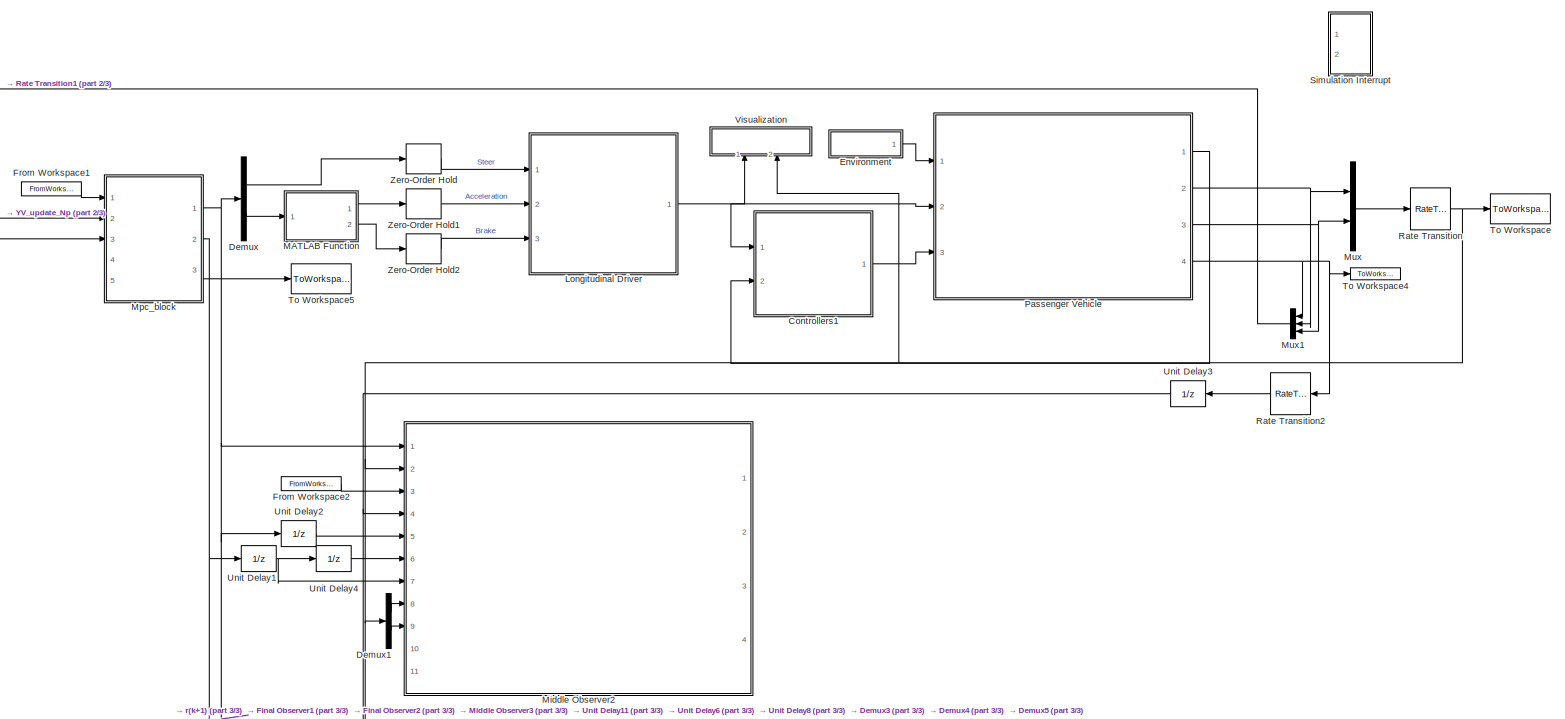
[diagram: root canvas - part 1/3, full width, top band]
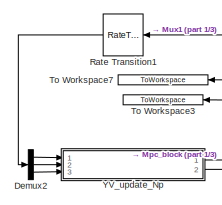
[diagram: root canvas - part 2/3, top left region]
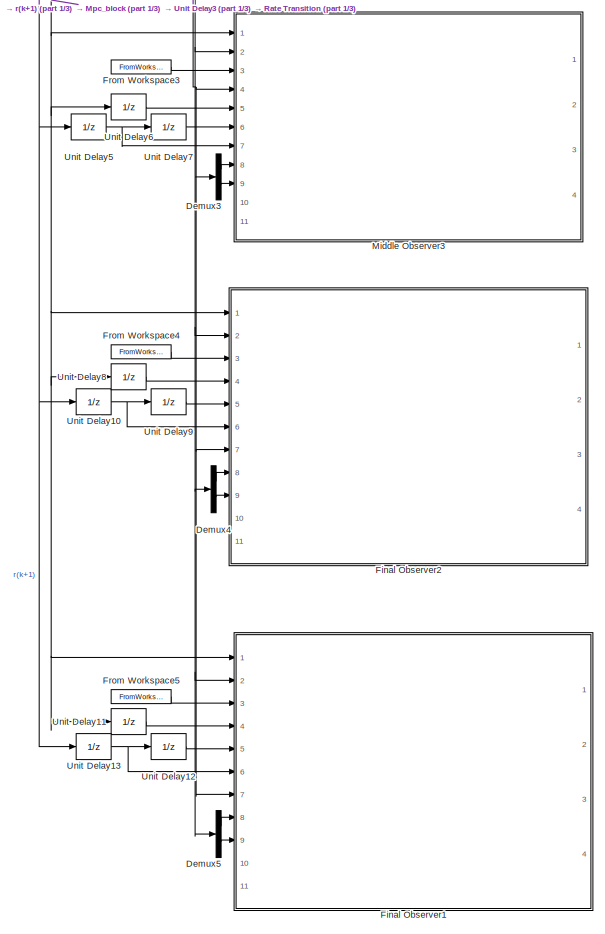
[diagram: root canvas - part 3/3, bottom center region]
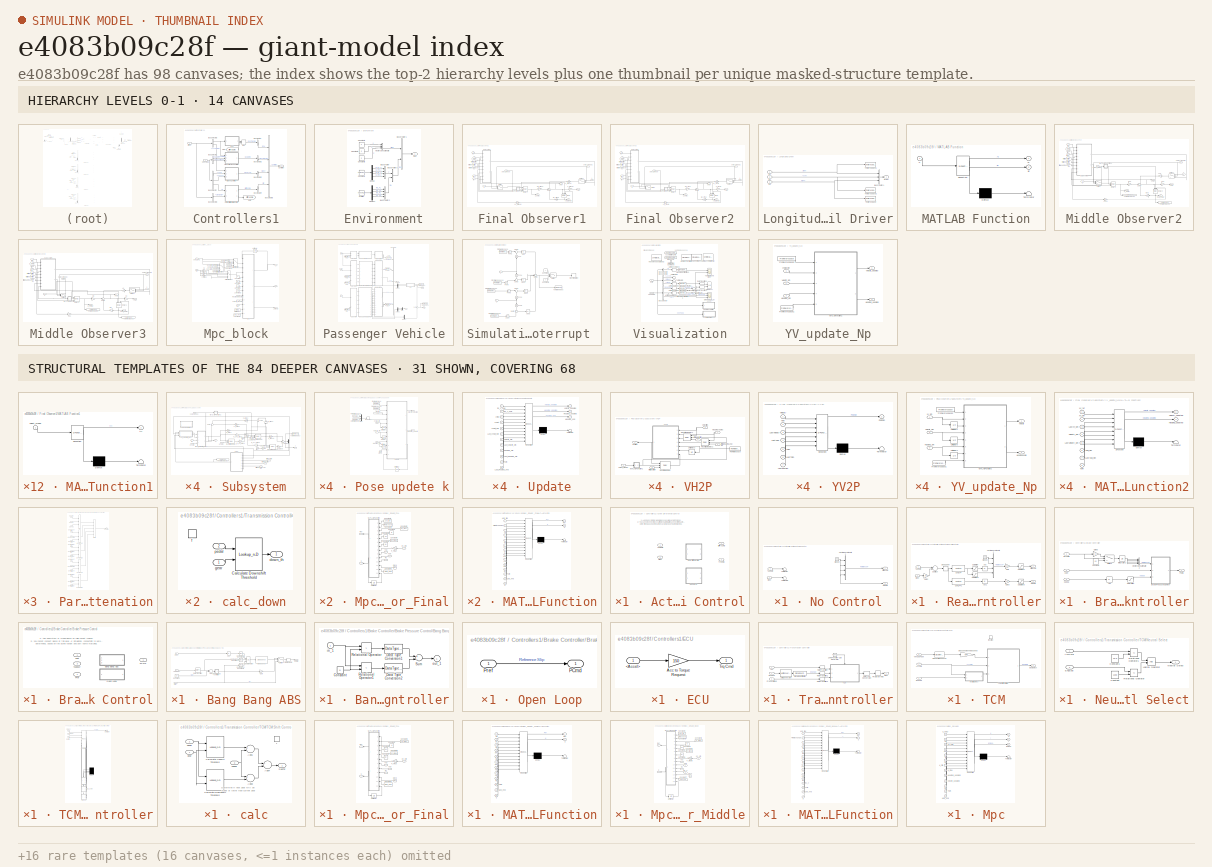
[diagram: thumbnail index - top-2 hierarchy levels (14 canvases) + 31 structural-template representatives of the remaining 84 canvases]
MODEL slx_e4083b09c28f
KIND model
CONFIG AbsTol = auto
CONFIG EnableMultiTasking = off
CONFIG FixedStep = auto
CONFIG MaxStep = auto
CONFIG MinStep = auto
CONFIG RelTol = 1e-3
CONFIG SampleTimeConstraint = Unconstrained
CONFIG Solver = VariableStepAuto
CONFIG SolverName = VariableStepAuto
CONFIG StartTime = 0.0
CONFIG StopTime = 10.0
BLOCK [SubSystem] Controllers1
  Ports = [2, 1]
  RequestExecContextInheritance = off
BLOCK [SubSystem] Controllers1/Active Differential Control
  LabelModeActiveChoice = 0
  Ports = [2, 2]
  RequestExecContextInheritance = off
  Variant = on
  VariantControlMode = Label
BLOCK [Outport] Controllers1/Active Differential Control/DiffPrsCmd
  IconDisplay = Port number
  VectorParamsAs1DForOutWhenUnconnected = off
BLOCK [SubSystem] Controllers1/Active Differential Control/No Control
  Ports = [2, 2]
  RequestExecContextInheritance = off
  VariantControl = 0
BLOCK [Outport] Controllers1/Active Differential Control/No Control/DiffPrsCmd
  IconDisplay = Port number
  VectorParamsAs1DForOutWhenUnconnected = off
BLOCK [Ground] Controllers1/Active Differential Control/No Control/Ground
BLOCK [Inport] Controllers1/Active Differential Control/No Control/Steer
  IconDisplay = Port number
  Port = 2
BLOCK [Terminator] Controllers1/Active Differential Control/No Control/Terminator
BLOCK [Terminator] Controllers1/Active Differential Control/No Control/Terminator1
BLOCK [Outport] Controllers1/Active Differential Control/No Control/TrqCmd
  IconDisplay = Port number
  Port = 2
  VectorParamsAs1DForOutWhenUnconnected = off
BLOCK [Concatenate] Controllers1/Active Differential Control/No Control/Vector Concatenate2
  NumInputs = 4
  Ports = [4, 1]
BLOCK [Inport] Controllers1/Active Differential Control/No Control/YawRate
  IconDisplay = Port number
BLOCK [SubSystem] Controllers1/Active Differential Control/Rear Diff Controller
  Ports = [2, 2]
  RequestExecContextInheritance = off
  VariantControl = 1
BLOCK [Abs] Controllers1/Active Differential Control/Rear Diff Controller/Abs
  SaturateOnIntegerOverflow = off
  ZeroCross = off
BLOCK [Abs] Controllers1/Active Differential Control/Rear Diff Controller/Abs1
  SaturateOnIntegerOverflow = off
  ZeroCross = off
BLOCK [Reference] Controllers1/Active Differential Control/Rear Diff Controller/Cont LPF  REF=autolibutils/Cont LPF
  Ports = [1, 1]
  SourceBlock = autolibutils/Cont LPF
  SourceProductBaseCode = PW
  SourceProductName = Powertrain Blockset
BLOCK [Reference] Controllers1/Active Differential Control/Rear Diff Controller/Cont LPF1  REF=autolibutils/Cont LPF
  Ports = [1, 1]
  SourceBlock = autolibutils/Cont LPF
  SourceProductBaseCode = PW
  SourceProductName = Powertrain Blockset
BLOCK [DeadZone] Controllers1/Active Differential Control/Rear Diff Controller/Dead Zone
  LowerValue = -.01
  UpperValue = .01
  ZeroCross = off
BLOCK [Outport] Controllers1/Active Differential Control/Rear Diff Controller/DiffPrsCmd
  IconDisplay = Port number
  VectorParamsAs1DForOutWhenUnconnected = off
BLOCK [Gain] Controllers1/Active Differential Control/Rear Diff Controller/Gain
  Gain = 1e6
  OutDataTypeStr = Inherit: Inherit via internal rule
  ParamDataTypeStr = Inherit: Inherit via internal rule
  SaturateOnIntegerOverflow = off
BLOCK [Gain] Controllers1/Active Differential Control/Rear Diff Controller/Gain2
  Gain = 1/4
  OutDataTypeStr = Inherit: Inherit via internal rule
  ParamDataTypeStr = Inherit: Inherit via internal rule
  SaturateOnIntegerOverflow = off
BLOCK [Gain] Controllers1/Active Differential Control/Rear Diff Controller/Gain3
  Gain = 2e3
  OutDataTypeStr = Inherit: Inherit via internal rule
  ParamDataTypeStr = Inherit: Inherit via internal rule
  SaturateOnIntegerOverflow = off
BLOCK [Ground] Controllers1/Active Differential Control/Rear Diff Controller/Ground
BLOCK [Saturate] Controllers1/Active Differential Control/Rear Diff Controller/Saturation
  InputPortMap = u0
  LowerLimit = -inf
  Ports = [1, 1]
  UpperLimit = 0
  ZeroCross = off
BLOCK [Saturate] Controllers1/Active Differential Control/Rear Diff Controller/Saturation1
  InputPortMap = u0
  LowerLimit = 0
  Ports = [1, 1]
  UpperLimit = inf
  ZeroCross = off
BLOCK [Saturate] Controllers1/Active Differential Control/Rear Diff Controller/Saturation2
  InputPortMap = u0
  LowerLimit = 0
  Ports = [1, 1]
  UpperLimit = 1e7
  ZeroCross = off
BLOCK [Saturate] Controllers1/Active Differential Control/Rear Diff Controller/Saturation3
  InputPortMap = u0
  LowerLimit = 0
  Ports = [1, 1]
  UpperLimit = 200
  ZeroCross = off
BLOCK [Inport] Controllers1/Active Differential Control/Rear Diff Controller/Steer
  IconDisplay = Port number
  Port = 2
BLOCK [Sum] Controllers1/Active Differential Control/Rear Diff Controller/Subtract
  InputSameDT = off
  Inputs = +-
  OutDataTypeStr = Inherit: Inherit via internal rule
  Ports = [2, 1]
  SaturateOnIntegerOverflow = off
BLOCK [Outport] Controllers1/Active Differential Control/Rear Diff Controller/TrqCmd
  IconDisplay = Port number
  Port = 2
  VectorParamsAs1DForOutWhenUnconnected = off
BLOCK [Concatenate] Controllers1/Active Differential Control/Rear Diff Controller/Vector Concatenate2
  NumInputs = 4
  Ports = [4, 1]
BLOCK [Inport] Controllers1/Active Differential Control/Rear Diff Controller/YawRate
  IconDisplay = Port number
BLOCK [Inport] Controllers1/Active Differential Control/Steer
  IconDisplay = Port number
  Port = 2
BLOCK [Outport] Controllers1/Active Differential Control/TrqCmd
  IconDisplay = Port number
  Port = 2
  VectorParamsAs1DForOutWhenUnconnected = off
BLOCK [Inport] Controllers1/Active Differential Control/YawRate
  IconDisplay = Port number
BLOCK [SubSystem] Controllers1/Brake Controller
  Ports = [3, 1]
  RequestExecContextInheritance = off
BLOCK [Abs] Controllers1/Brake Controller/Abs
  SaturateOnIntegerOverflow = off
  ZeroCross = off
BLOCK [SubSystem] Controllers1/Brake Controller/Brake Pressure Control
  LabelModeActiveChoice = 0
  Ports = [3, 1]
  RequestExecContextInheritance = off
  Variant = on
  VariantControlMode = Label
BLOCK [Inport] Controllers1/Brake Controller/Brake Pressure Control/<Kappa>
  IconDisplay = Port number
  Port = 3
BLOCK [SubSystem] Controllers1/Brake Controller/Brake Pressure Control/Bang Bang ABS
  Ports = [3, 1]
  RequestExecContextInheritance = off
  VariantControl = 1
BLOCK [Inport] Controllers1/Brake Controller/Brake Pressure Control/Bang Bang ABS/<Kappa>
  IconDisplay = Port number
  Port = 3
BLOCK [Abs] Controllers1/Brake Controller/Brake Pressure Control/Bang Bang ABS/Abs
  SaturateOnIntegerOverflow = off
BLOCK [Sum] Controllers1/Brake Controller/Brake Pressure Control/Bang Bang ABS/Add
  InputSameDT = off
  Inputs = -+
  OutDataTypeStr = Inherit: Inherit via internal rule
  Ports = [2, 1]
  SaturateOnIntegerOverflow = off
BLOCK [SubSystem] Controllers1/Brake Controller/Brake Pressure Control/Bang Bang ABS/Bang-bang controller
  Ports = [1, 1]
  RequestExecContextInheritance = off
  ShowPortLabels = none
BLOCK [Constant] Controllers1/Brake Controller/Brake Pressure Control/Bang Bang ABS/Bang-bang controller/Constant
  Value = 0
BLOCK [DataTypeConversion] Controllers1/Brake Controller/Brake Pressure Control/Bang Bang ABS/Bang-bang controller/Data Type Conversion1
  OutDataTypeStr = double
BLOCK [DataTypeConversion] Controllers1/Brake Controller/Brake Pressure Control/Bang Bang ABS/Bang-bang controller/Data Type Conversion2
  OutDataTypeStr = double
BLOCK [RelationalOperator] Controllers1/Brake Controller/Brake Pressure Control/Bang Bang ABS/Bang-bang controller/Relational Operator
  Operator = >
  OutDataTypeStr = boolean
  Ports = [2, 1]
BLOCK [RelationalOperator] Controllers1/Brake Controller/Brake Pressure Control/Bang Bang ABS/Bang-bang controller/Relational Operator1
  Operator = <
  OutDataTypeStr = boolean
  Ports = [2, 1]
BLOCK [Sum] Controllers1/Brake Controller/Brake Pressure Control/Bang Bang ABS/Bang-bang controller/Sum
  Inputs = +-
  Ports = [2, 1]
BLOCK [Inport] Controllers1/Brake Controller/Brake Pressure Control/Bang Bang ABS/Bang-bang controller/in_1
  IconDisplay = Port number
BLOCK [Outport] Controllers1/Brake Controller/Brake Pressure Control/Bang Bang ABS/Bang-bang controller/out_1
  IconDisplay = Port number
  InitialOutput = 0
  VectorParamsAs1DForOutWhenUnconnected = off
BLOCK [Reference] Controllers1/Brake Controller/Brake Pressure Control/Bang Bang ABS/Compare To Constant  REF=simulink/Logic and Bit
Operations/Compare
To Constant
  Ports = [1, 1]
  SourceBlock = simulink/Logic and Bit\nOperations/Compare\nTo Constant
  SourceProductBaseCode = SL
  SourceProductName = Simulink
  SourceType = Compare To Constant
BLOCK [Reference] Controllers1/Brake Controller/Brake Pressure Control/Bang Bang ABS/Compare To Constant1  REF=simulink/Logic and Bit
Operations/Compare
To Constant
  Ports = [1, 1]
  SourceBlock = simulink/Logic and Bit\nOperations/Compare\nTo Constant
  SourceProductBaseCode = SL
  SourceProductName = Simulink
  SourceType = Compare To Constant
BLOCK [Reference] Controllers1/Brake Controller/Brake Pressure Control/Bang Bang ABS/Compare To Constant2  REF=simulink/Logic and Bit
Operations/Compare
To Constant
  Ports = [1, 1]
  SourceBlock = simulink/Logic and Bit\nOperations/Compare\nTo Constant
  SourceProductBaseCode = SL
  SourceProductName = Simulink
  SourceType = Compare To Constant
BLOCK [Constant] Controllers1/Brake Controller/Brake Pressure Control/Bang Bang ABS/Constant
  Value = .25
BLOCK [Reference] Controllers1/Brake Controller/Brake Pressure Control/Bang Bang ABS/Debounce  REF=autolibutils/Debounce
  Ports = [1, 1]
  SourceBlock = autolibutils/Debounce
  SourceProductBaseCode = PW
  SourceProductName = Powertrain Blockset
BLOCK [FirstOrderHold] Controllers1/Brake Controller/Brake Pressure Control/Bang Bang ABS/First Order Hold
  ErrorTolerance = 1
BLOCK [Gain] Controllers1/Brake Controller/Brake Pressure Control/Bang Bang ABS/Gain
  Gain = 200
  OutDataTypeStr = Inherit: Inherit via internal rule
  ParamDataTypeStr = Inherit: Inherit via internal rule
  SaturateOnIntegerOverflow = off
BLOCK [Logic] Controllers1/Brake Controller/Brake Pressure Control/Bang Bang ABS/Logical Operator
  AllPortsSameDT = off
  Inputs = 3
  OutDataTypeStr = boolean
  Ports = [3, 1]
BLOCK [Outport] Controllers1/Brake Controller/Brake Pressure Control/Bang Bang ABS/PCmd
  IconDisplay = Port number
  VectorParamsAs1DForOutWhenUnconnected = off
BLOCK [Inport] Controllers1/Brake Controller/Brake Pressure Control/Bang Bang ABS/Pref
  IconDisplay = Port number
BLOCK [RateTransition] Controllers1/Brake Controller/Brake Pressure Control/Bang Bang ABS/Rate Transition
  Deterministic = off
  OutPortSampleTime = .001
BLOCK [Switch] Controllers1/Brake Controller/Brake Pressure Control/Bang Bang ABS/Switch
  Criteria = u2 > Threshold
  InputSameDT = off
  SaturateOnIntegerOverflow = off
  ZeroCross = off
BLOCK [Inport] Controllers1/Brake Controller/Brake Pressure Control/Bang Bang ABS/xdot
  IconDisplay = Port number
  Port = 2
BLOCK [SubSystem] Controllers1/Brake Controller/Brake Pressure Control/Open Loop
  Ports = [1, 1]
  RequestExecContextInheritance = off
  VariantControl = 0
BLOCK [Outport] Controllers1/Brake Controller/Brake Pressure Control/Open Loop/PCmd
  IconDisplay = Port number
  VectorParamsAs1DForOutWhenUnconnected = off
BLOCK [Inport] Controllers1/Brake Controller/Brake Pressure Control/Open Loop/Pref
  IconDisplay = Port number
BLOCK [Outport] Controllers1/Brake Controller/Brake Pressure Control/PCmd
  IconDisplay = Port number
  VectorParamsAs1DForOutWhenUnconnected = off
BLOCK [Inport] Controllers1/Brake Controller/Brake Pressure Control/Pref
  IconDisplay = Port number
BLOCK [Inport] Controllers1/Brake Controller/Brake Pressure Control/xdot
  IconDisplay = Port number
  Port = 2
BLOCK [Inport] Controllers1/Brake Controller/BrkCmd
  IconDisplay = Port number
BLOCK [Constant] Controllers1/Brake Controller/Constant1
  Value = -20
BLOCK [Gain] Controllers1/Brake Controller/Gain3
  OutDataTypeStr = Inherit: Inherit via internal rule
  ParamDataTypeStr = Inherit: Inherit via internal rule
  SaturateOnIntegerOverflow = off
BLOCK [Integrator] Controllers1/Brake Controller/Integrator2
  LimitOutput = on
  LowerSaturationLimit = 0
  Ports = [1, 1]
  UpperSaturationLimit = 1
BLOCK [Outport] Controllers1/Brake Controller/PCmd
  IconDisplay = Port number
  VectorParamsAs1DForOutWhenUnconnected = off
BLOCK [Saturate] Controllers1/Brake Controller/Saturation
  InputPortMap = u0
  LowerLimit = 0
  Ports = [1, 1]
  UpperLimit = 1
  ZeroCross = off
BLOCK [Switch] Controllers1/Brake Controller/Switch1
  Criteria = u2 > Threshold
  InputSameDT = off
  SaturateOnIntegerOverflow = off
  Threshold = .1
BLOCK [Concatenate] Controllers1/Brake Controller/Vector Concatenate2
  NumInputs = 4
  Ports = [4, 1]
BLOCK [Inport] Controllers1/Brake Controller/kappa
  IconDisplay = Port number
  Port = 3
BLOCK [Inport] Controllers1/Brake Controller/xdot
  IconDisplay = Port number
  Port = 2
BLOCK [BusCreator] Controllers1/Bus Creator
  DisplayOption = bar
  InheritFromInputs = on
  Inputs = 1
  Ports = [1, 1]
BLOCK [BusCreator] Controllers1/Bus Creator1
  DisplayOption = bar
  InheritFromInputs = on
  Inputs = 1
  Ports = [1, 1]
BLOCK [BusCreator] Controllers1/Bus Creator2
  DisplayOption = bar
  InheritFromInputs = on
  Inputs = 1
  Ports = [1, 1]
BLOCK [BusCreator] Controllers1/Bus Creator3
  DisplayOption = bar
  InheritFromInputs = on
  Inputs = 4
  Ports = [4, 1]
BLOCK [BusCreator] Controllers1/Bus Creator4
  DisplayOption = bar
  InheritFromInputs = on
  Inputs = 1
  Ports = [1, 1]
BLOCK [BusSelector] Controllers1/Bus Selector
  OutputAsBus = off
  OutputSignals = Body.xdot,Wheels.Kappa,Body.r
  Ports = [1, 3]
BLOCK [BusSelector] Controllers1/Bus Selector1
  OutputAsBus = off
  OutputSignals = Driveline.EngSpd,Driveline.PropShftSpd
  Ports = [1, 2]
BLOCK [BusSelector] Controllers1/Bus Selector2
  OutputAsBus = off
  OutputSignals = AccelCmd,DecelCmd
  Ports = [1, 2]
BLOCK [BusSelector] Controllers1/Bus Selector3
  OutputAsBus = off
  OutputSignals = SteerCmd
  Ports = [1, 1]
BLOCK [Outport] Controllers1/Controller
  IconDisplay = Port number
  VectorParamsAs1DForOutWhenUnconnected = off
BLOCK [Inport] Controllers1/Driver
  IconDisplay = Port number
BLOCK [SubSystem] Controllers1/ECU
  Ports = [1, 1]
  RequestExecContextInheritance = off
BLOCK [Inport] Controllers1/ECU/<Accel>
  IconDisplay = Port number
BLOCK [Gain] Controllers1/ECU/Acc to Torque Request
  Gain = 150
  OutDataTypeStr = Inherit: Inherit via internal rule
  ParamDataTypeStr = Inherit: Inherit via internal rule
  SaturateOnIntegerOverflow = off
BLOCK [Outport] Controllers1/ECU/Trq Cmd
  IconDisplay = Port number
  VectorParamsAs1DForOutWhenUnconnected = off
BLOCK [From] Controllers1/From
  GotoTag = DiffTrqCmd
BLOCK [Goto] Controllers1/Goto
  GotoTag = DiffTrqCmd
BLOCK [MinMax] Controllers1/Max
  Function = max
  InputSameDT = off
  Inputs = 2
  Ports = [2, 1]
  SaturateOnIntegerOverflow = off
BLOCK [SubSystem] Controllers1/Transmission Controller
  Ports = [3, 1]
  RequestExecContextInheritance = off
BLOCK [Reference] Controllers1/Transmission Controller/10ms Function-Call Generator  REF=simulink/Ports &
Subsystems/Function-Call
Generator
  Ports = [0, 1]
  SourceBlock = simulink/Ports &\nSubsystems/Function-Call\nGenerator
  SourceProductBaseCode = SL
  SourceProductName = Simulink
  SourceType = Function-Call Generator
BLOCK [Inport] Controllers1/Transmission Controller/Acc
  IconDisplay = Port number
BLOCK [DataTypeConversion] Controllers1/Transmission Controller/Data Type Conversion
  RndMeth = Floor
  SaturateOnIntegerOverflow = off
BLOCK [Inport] Controllers1/Transmission Controller/EngSpd
  IconDisplay = Port number
  Port = 2
  Unit = rad/s
BLOCK [FirstOrderHold] Controllers1/Transmission Controller/First Order Hold
  ErrorTolerance = .1
BLOCK [Outport] Controllers1/Transmission Controller/Gear
  IconDisplay = Port number
  VectorParamsAs1DForOutWhenUnconnected = off
BLOCK [Inport] Controllers1/Transmission Controller/PropShaftSpd
  IconDisplay = Port number
  Port = 3
BLOCK [RateTransition] Controllers1/Transmission Controller/Rate Transition
  Deterministic = off
BLOCK [RateTransition] Controllers1/Transmission Controller/Rate Transition1
  Deterministic = off
BLOCK [RateTransition] Controllers1/Transmission Controller/Rate Transition2
  Deterministic = off
BLOCK [SignalSpecification] Controllers1/Transmission Controller/Signal Specification
  Unit = rpm
BLOCK [SubSystem] Controllers1/Transmission Controller/TCM
  Ports = [3, 1, 0, 1]
  RequestExecContextInheritance = off
BLOCK [Inport] Controllers1/Transmission Controller/TCM/AccCmd
  IconDisplay = Port number
BLOCK [Inport] Controllers1/Transmission Controller/TCM/EngSpd
  IconDisplay = Port number
  Port = 2
BLOCK [Outport] Controllers1/Transmission Controller/TCM/Gear Select
  IconDisplay = Port number
  VectorParamsAs1DForOutWhenUnconnected = off
BLOCK [SubSystem] Controllers1/Transmission Controller/TCM/Neutral Select
  Ports = [2, 1]
  RequestExecContextInheritance = off
BLOCK [Inport] Controllers1/Transmission Controller/TCM/Neutral Select/AccCmd
  IconDisplay = Port number
BLOCK [Constant] Controllers1/Transmission Controller/TCM/Neutral Select/Constant
  Value = 1200
BLOCK [Constant] Controllers1/Transmission Controller/TCM/Neutral Select/Constant1
  Value = 1e-6
BLOCK [Inport] Controllers1/Transmission Controller/TCM/Neutral Select/EngSpd
  IconDisplay = Port number
  Port = 2
BLOCK [Logic] Controllers1/Transmission Controller/TCM/Neutral Select/Logical Operator
  AllPortsSameDT = off
  OutDataTypeStr = boolean
  Ports = [2, 1]
BLOCK [Outport] Controllers1/Transmission Controller/TCM/Neutral Select/Neutral Select
  IconDisplay = Port number
  VectorParamsAs1DForOutWhenUnconnected = off
BLOCK [RelationalOperator] Controllers1/Transmission Controller/TCM/Neutral Select/Relational Operator
  InputSameDT = off
  Operator = <=
  OutDataTypeStr = boolean
  Ports = [2, 1]
  RndMeth = Simplest
BLOCK [RelationalOperator] Controllers1/Transmission Controller/TCM/Neutral Select/Relational Operator1
  InputSameDT = off
  Operator = <=
  OutDataTypeStr = boolean
  Ports = [2, 1]
  RndMeth = Simplest
BLOCK [DiscreteTransferFcn] Controllers1/Transmission Controller/TCM/Prop Shaft Speed LPF
  Denominator = [1.000000000000000 -0.990049833749168 ]
  InputPortMap = u0
  Numerator = [0.000000000000000 0.009950166250832 ]
  Ports = [1, 1]
BLOCK [SubSystem] Controllers1/Transmission Controller/TCM/TCM Shift Controller
  ErrorFcn = Stateflow.Translate.translate
  PermitHierarchicalResolution = ExplicitOnly
  Ports = [3, 1]
  RequestExecContextInheritance = off
  SFBlockType = Chart
  TreatAsAtomicUnit = on
BLOCK [Demux] Controllers1/Transmission Controller/TCM/TCM Shift Controller/ Demux 
  Outputs = 3
  Ports = [1, 3]
BLOCK [S-Function] Controllers1/Transmission Controller/TCM/TCM Shift Controller/ SFunction 
  EnableBusSupport = off
  FunctionName = sf_sfun
  PortCounts = [6 9]
  Ports = [6, 9]
  SFcnIsStateOwnerBlock = off
  SFunctionDeploymentMode = off
  Tag = Stateflow S-Function 2
BLOCK [Outport] Controllers1/Transmission Controller/TCM/TCM Shift Controller/GearState
  IconDisplay = Port number
  VectorParamsAs1DForOutWhenUnconnected = off
BLOCK [Inport] Controllers1/Transmission Controller/TCM/TCM Shift Controller/Neutral
  IconDisplay = Port number
  Port = 3
BLOCK [SubSystem] Controllers1/Transmission Controller/TCM/TCM Shift Controller/calc
  Ports = [3, 1, 0, 1]
  PreDeleteFcn = Stateflow.SLINSF.SimulinkMan.removePreDeleteFcn
  RequestExecContextInheritance = off
  UndoDeleteFcn = Stateflow.SLINSF.SimulinkMan.restorePreDeleteFcn
BLOCK [Sum] Controllers1/Transmission Controller/TCM/TCM Shift Controller/calc/Add1
  InputSameDT = off
  Inputs = +-
  OutDataTypeStr = Inherit: Inherit via internal rule
  Ports = [2, 1]
  SaturateOnIntegerOverflow = off
BLOCK [Sum] Controllers1/Transmission Controller/TCM/TCM Shift Controller/calc/Add3
  InputSameDT = off
  Inputs = +-
  OutDataTypeStr = Inherit: Inherit via internal rule
  Ports = [2, 1]
  SaturateOnIntegerOverflow = off
BLOCK [Sum] Controllers1/Transmission Controller/TCM/TCM Shift Controller/calc/Add4
  InputSameDT = off
  Inputs = +-
  OutDataTypeStr = Inherit: Inherit via internal rule
  Ports = [2, 1]
  SaturateOnIntegerOverflow = off
BLOCK [Lookup_n-D] Controllers1/Transmission Controller/TCM/TCM Shift Controller/calc/Calculate Downshift Threshold
  BreakpointsForDimension1 = Pedal_Positions
  BreakpointsForDimension2 = 2:8
  ExtrapMethod = Clip
  InternalRulePriority = Speed
  Ports = [2, 1]
  RndMeth = Simplest
  Table = Downshift_Speeds
  UseLastTableValue = on
BLOCK [Lookup_n-D] Controllers1/Transmission Controller/TCM/TCM Shift Controller/calc/Calculate Upshift Threshold
  BreakpointsForDimension1 = Pedal_Positions
  BreakpointsForDimension2 = 1:7
  ExtrapMethod = Clip
  InternalRulePriority = Speed
  Ports = [2, 1]
  RndMeth = Simplest
  Table = Upshift_Speeds
  UseLastTableValue = on
BLOCK [Outport] Controllers1/Transmission Controller/TCM/TCM Shift Controller/calc/SpdThr
  IconDisplay = Port number
  VectorParamsAs1DForOutWhenUnconnected = off
BLOCK [TriggerPort] Controllers1/Transmission Controller/TCM/TCM Shift Controller/calc/f
  CopyFcn = Stateflow.SLINSF.SimulinkMan.removeBlockPreDeleteFcn
  Ports = []
  PreDeleteFcn = Stateflow.SLINSF.SimulinkMan.unsafePredeleteFcn
  StatesWhenEnabling = reset
  TriggerType = function-call
  VariantControl = Variant
BLOCK [Inport] Controllers1/Transmission Controller/TCM/TCM Shift Controller/calc/gear
  IconDisplay = Port number
BLOCK [Inport] Controllers1/Transmission Controller/TCM/TCM Shift Controller/calc/pedal
  IconDisplay = Port number
  Port = 2
BLOCK [Inport] Controllers1/Transmission Controller/TCM/TCM Shift Controller/calc/speed
  IconDisplay = Port number
  Port = 3
BLOCK [SubSystem] Controllers1/Transmission Controller/TCM/TCM Shift Controller/calc_down
  Ports = [2, 1, 0, 1]
  PreDeleteFcn = Stateflow.SLINSF.SimulinkMan.removePreDeleteFcn
  RequestExecContextInheritance = off
  UndoDeleteFcn = Stateflow.SLINSF.SimulinkMan.restorePreDeleteFcn
BLOCK [Lookup_n-D] Controllers1/Transmission Controller/TCM/TCM Shift Controller/calc_down/Calculate Downshift Threshold
  BreakpointsForDimension1 = Pedal_Positions
  BreakpointsForDimension2 = 2:8
  ExtrapMethod = Clip
  InternalRulePriority = Speed
  Ports = [2, 1]
  RndMeth = Simplest
  Table = Downshift_Speeds
  UseLastTableValue = on
BLOCK [Outport] Controllers1/Transmission Controller/TCM/TCM Shift Controller/calc_down/down_th
  IconDisplay = Port number
  VectorParamsAs1DForOutWhenUnconnected = off
BLOCK [TriggerPort] Controllers1/Transmission Controller/TCM/TCM Shift Controller/calc_down/f
  CopyFcn = Stateflow.SLINSF.SimulinkMan.removeBlockPreDeleteFcn
  Ports = []
  PreDeleteFcn = Stateflow.SLINSF.SimulinkMan.unsafePredeleteFcn
  StatesWhenEnabling = reset
  TriggerType = function-call
  VariantControl = Variant
BLOCK [Inport] Controllers1/Transmission Controller/TCM/TCM Shift Controller/calc_down/gear
  IconDisplay = Port number
BLOCK [Inport] Controllers1/Transmission Controller/TCM/TCM Shift Controller/calc_down/pedal
  IconDisplay = Port number
  Port = 2
BLOCK [SubSystem] Controllers1/Transmission Controller/TCM/TCM Shift Controller/calc_up
  Ports = [2, 1, 0, 1]
  PreDeleteFcn = Stateflow.SLINSF.SimulinkMan.removePreDeleteFcn
  RequestExecContextInheritance = off
  UndoDeleteFcn = Stateflow.SLINSF.SimulinkMan.restorePreDeleteFcn
BLOCK [Lookup_n-D] Controllers1/Transmission Controller/TCM/TCM Shift Controller/calc_up/Calculate Upshift Threshold
  BreakpointsForDimension1 = Pedal_Positions
  BreakpointsForDimension2 = 1:7
  ExtrapMethod = Clip
  InternalRulePriority = Speed
  Ports = [2, 1]
  RndMeth = Simplest
  Table = Upshift_Speeds
  UseLastTableValue = on
BLOCK [TriggerPort] Controllers1/Transmission Controller/TCM/TCM Shift Controller/calc_up/f
  CopyFcn = Stateflow.SLINSF.SimulinkMan.removeBlockPreDeleteFcn
  Ports = []
  PreDeleteFcn = Stateflow.SLINSF.SimulinkMan.unsafePredeleteFcn
  StatesWhenEnabling = reset
  TriggerType = function-call
  VariantControl = Variant
BLOCK [Inport] Controllers1/Transmission Controller/TCM/TCM Shift Controller/calc_up/gear
  IconDisplay = Port number
BLOCK [Inport] Controllers1/Transmission Controller/TCM/TCM Shift Controller/calc_up/pedal
  IconDisplay = Port number
  Port = 2
BLOCK [Outport] Controllers1/Transmission Controller/TCM/TCM Shift Controller/calc_up/up_th
  IconDisplay = Port number
  VectorParamsAs1DForOutWhenUnconnected = off
BLOCK [Inport] Controllers1/Transmission Controller/TCM/TCM Shift Controller/pedal
  IconDisplay = Port number
  Port = 2
BLOCK [Inport] Controllers1/Transmission Controller/TCM/TCM Shift Controller/speed
  IconDisplay = Port number
BLOCK [Inport] Controllers1/Transmission Controller/TCM/VehSpdFdbk
  IconDisplay = Port number
  Port = 3
BLOCK [TriggerPort] Controllers1/Transmission Controller/TCM/function
  Ports = []
  StatesWhenEnabling = held
  TriggerType = function-call
  VariantControl = Variant
BLOCK [Gain] Controllers1/Transmission Controller/TCM/prop speed to vehicle speed
  Gain = 0.45
  OutDataTypeStr = Inherit: Inherit via internal rule
  ParamDataTypeStr = Inherit: Inherit via internal rule
  SaturateOnIntegerOverflow = off
BLOCK [UnitConversion] Controllers1/Transmission Controller/Unit Conversion
BLOCK [Inport] Controllers1/VehFdbk
  IconDisplay = Port number
  Port = 2
BLOCK [Demux] Demux
  DisplayOption = bar
  Outputs = 2
  Ports = [1, 2]
BLOCK [Demux] Demux1
  DisplayOption = bar
  Outputs = 2
  Ports = [1, 2]
BLOCK [Demux] Demux2
  DisplayOption = bar
  Outputs = 3
  Ports = [1, 3]
BLOCK [Demux] Demux3
  DisplayOption = bar
  Outputs = 2
  Ports = [1, 2]
BLOCK [Demux] Demux4
  DisplayOption = bar
  Outputs = 2
  Ports = [1, 2]
BLOCK [Demux] Demux5
  DisplayOption = bar
  Outputs = 2
  Ports = [1, 2]
BLOCK [SubSystem] Environment
  Ports = [0, 1]
  RequestExecContextInheritance = off
  TreatAsAtomicUnit = on
BLOCK [BusCreator] Environment/Bus Creator
  DisplayOption = bar
  InheritFromInputs = on
  Inputs = 4
  Ports = [4, 1]
BLOCK [BusCreator] Environment/Bus Creator1
  DisplayOption = bar
  InheritFromInputs = on
  Inputs = 2
  Ports = [2, 1]
BLOCK [BusCreator] Environment/Bus Creator2
  DisplayOption = bar
  InheritFromInputs = on
  Inputs = 4
  Ports = [4, 1]
BLOCK [BusCreator] Environment/Bus Creator3
  DisplayOption = bar
  InheritFromInputs = on
  Inputs = 2
  Ports = [2, 1]
BLOCK [Constant] Environment/Constant1
  Value = zeros(4,1)
BLOCK [Constant] Environment/Constant3
  Value = 0
BLOCK [Constant] Environment/Constant4
  Value = 0
BLOCK [Constant] Environment/Constant5
  Value = 0
BLOCK [Demux] Environment/Demux
  DisplayOption = bar
  Ports = [1, 4]
BLOCK [Demux] Environment/Demux1
  DisplayOption = bar
  Ports = [1, 4]
BLOCK [Outport] Environment/Env
  IconDisplay = Port number
  VectorParamsAs1DForOutWhenUnconnected = off
BLOCK [Constant] Environment/Friction
  Value = ones(4,1).*1
BLOCK [Concatenate] Environment/Vector Concatenate
  NumInputs = 3
  Ports = [3, 1]
BLOCK [SubSystem] Final Observer1
  Ports = [11, 4]
  RequestExecContextInheritance = off
BLOCK [Gain] Final Observer1/C_Brake2
  Gain = C_Brake
  Multiplication = Matrix(K*u) (u vector)
  OutDataTypeStr = Inherit: Inherit via internal rule
  ParamDataTypeStr = Inherit: Inherit via internal rule
  SaturateOnIntegerOverflow = off
BLOCK [Delay] Final Observer1/Delay
  DelayLength = 1
  ExternalReset = Rising
  InitialCondition = 0
  InitialConditionSource = Input port
  InputPortMap = u0,r5,p4
  Ports = [3, 1]
  SampleTime = Ts
BLOCK [Delay] Final Observer1/Delay1
  DelayLength = 1
  ExternalReset = Rising
  InitialCondition = 0
  InitialConditionSource = Input port
  InputPortMap = u0,r5,p4
  Ports = [3, 1]
  SampleTime = Ts
BLOCK [Gain] Final Observer1/Gd_Brake
  Gain = Gd_Brake
  Multiplication = Matrix(K*u) (u vector)
  OutDataTypeStr = Inherit: Inherit via internal rule
  ParamDataTypeStr = Inherit: Inherit via internal rule
  SaturateOnIntegerOverflow = off
BLOCK [Gain] Final Observer1/Hd_Brake
  Gain = Hd_Brake
  Multiplication = Matrix(K*u) (u vector)
  OutDataTypeStr = Inherit: Inherit via internal rule
  ParamDataTypeStr = Inherit: Inherit via internal rule
  SaturateOnIntegerOverflow = off
BLOCK [Inport] Final Observer1/Initial HeadingAngles
  IconDisplay = Port number
  Port = 9
BLOCK [Inport] Final Observer1/Initial Velocities
  IconDisplay = Port number
  Port = 8
BLOCK [Inport] Final Observer1/Initial position
  IconDisplay = Port number
  Port = 7
BLOCK [Gain] Final Observer1/Ld_Brake1
  Gain = Ld_Brake
  Multiplication = Matrix(K*u) (u vector)
  OutDataTypeStr = Inherit: Inherit via internal rule
  ParamDataTypeStr = Inherit: Inherit via internal rule
  SaturateOnIntegerOverflow = off
BLOCK [Gain] Final Observer1/Ld_Brake2
  Gain = Ld_Brake
  Multiplication = Matrix(K*u) (u vector)
  OutDataTypeStr = Inherit: Inherit via internal rule
  ParamDataTypeStr = Inherit: Inherit via internal rule
  SaturateOnIntegerOverflow = off
BLOCK [SubSystem] Final Observer1/MATLAB Function1
  ErrorFcn = Stateflow.Translate.translate
  PermitHierarchicalResolution = ExplicitOnly
  Ports = [1, 1]
  RequestExecContextInheritance = off
  SFBlockType = MATLAB Function
  TreatAsAtomicUnit = on
BLOCK [Demux] Final Observer1/MATLAB Function1/ Demux 
  Outputs = 1
  Ports = [1, 1]
BLOCK [S-Function] Final Observer1/MATLAB Function1/ SFunction 
  EnableBusSupport = off
  FunctionName = sf_sfun
  PortCounts = [1 2]
  Ports = [1, 2]
  SFcnIsStateOwnerBlock = off
  SFunctionDeploymentMode = off
  Tag = Stateflow S-Function 51
BLOCK [Terminator] Final Observer1/MATLAB Function1/ Terminator 
BLOCK [Inport] Final Observer1/MATLAB Function1/select_model
  IconDisplay = Port number
BLOCK [Outport] Final Observer1/MATLAB Function1/tri
  IconDisplay = Port number
  VectorParamsAs1DForOutWhenUnconnected = off
BLOCK [Inport] Final Observer1/Rs
  IconDisplay = Port number
  Port = 3
BLOCK [SubSystem] Final Observer1/Subsystem
  Ports = [9, 2]
  RequestExecContextInheritance = off
BLOCK [Gain] Final Observer1/Subsystem/C_Brake
  Gain = C_Brake
  Multiplication = Matrix(K*u) (u vector)
  OutDataTypeStr = Inherit: Inherit via internal rule
  ParamDataTypeStr = Inherit: Inherit via internal rule
  SaturateOnIntegerOverflow = off
BLOCK [Gain] Final Observer1/Subsystem/C_Brake1
  Gain = C_Brake
  Multiplication = Matrix(K*u) (u vector)
  OutDataTypeStr = Inherit: Inherit via internal rule
  ParamDataTypeStr = Inherit: Inherit via internal rule
  SaturateOnIntegerOverflow = off
BLOCK [Gain] Final Observer1/Subsystem/C_out_Brake
  Gain = C_out_Brake
  Multiplication = Matrix(K*u) (u vector)
  OutDataTypeStr = Inherit: Inherit via internal rule
  ParamDataTypeStr = Inherit: Inherit via internal rule
  SaturateOnIntegerOverflow = off
BLOCK [Gain] Final Observer1/Subsystem/D_out_Brake
  Gain = D_out_Brake
  Multiplication = Matrix(K*u) (u vector)
  OutDataTypeStr = Inherit: Inherit via internal rule
  ParamDataTypeStr = Inherit: Inherit via internal rule
  SaturateOnIntegerOverflow = off
BLOCK [Demux] Final Observer1/Subsystem/Demux
  DisplayOption = bar
  Outputs = 2
  Ports = [1, 2]
BLOCK [Gain] Final Observer1/Subsystem/G_Brake
  Gain = G_Brake
  Multiplication = Matrix(K*u) (u vector)
  OutDataTypeStr = Inherit: Inherit via internal rule
  ParamDataTypeStr = Inherit: Inherit via internal rule
  SaturateOnIntegerOverflow = off
BLOCK [Gain] Final Observer1/Subsystem/G_sys_Brake
  Gain = G_sys_Brake
  Multiplication = Matrix(K*u) (u vector)
  OutDataTypeStr = Inherit: Inherit via internal rule
  ParamDataTypeStr = Inherit: Inherit via internal rule
  SaturateOnIntegerOverflow = off
BLOCK [Gain] Final Observer1/Subsystem/H_Brake
  Gain = H_Brake
  Multiplication = Matrix(K*u) (u vector)
  OutDataTypeStr = Inherit: Inherit via internal rule
  ParamDataTypeStr = Inherit: Inherit via internal rule
  SaturateOnIntegerOverflow = off
BLOCK [Gain] Final Observer1/Subsystem/H_sys_Brake
  Gain = H_sys_Brake
  Multiplication = Matrix(K*u) (u vector)
  OutDataTypeStr = Inherit: Inherit via internal rule
  ParamDataTypeStr = Inherit: Inherit via internal rule
  SaturateOnIntegerOverflow = off
BLOCK [Inport] Final Observer1/Subsystem/Initial HeadingAngles
  IconDisplay = Port number
  Port = 5
BLOCK [Inport] Final Observer1/Subsystem/Initial Velocities
  IconDisplay = Port number
  Port = 4
BLOCK [Inport] Final Observer1/Subsystem/Initial position
  IconDisplay = Port number
  Port = 3
BLOCK [Gain] Final Observer1/Subsystem/Ld_Brake
  Gain = Ld_Brake
  Multiplication = Matrix(K*u) (u vector)
  OutDataTypeStr = Inherit: Inherit via internal rule
  ParamDataTypeStr = Inherit: Inherit via internal rule
  SaturateOnIntegerOverflow = off
BLOCK [Gain] Final Observer1/Subsystem/Ld_Brake1
  Gain = Ld_Brake
  Multiplication = Matrix(K*u) (u vector)
  OutDataTypeStr = Inherit: Inherit via internal rule
  ParamDataTypeStr = Inherit: Inherit via internal rule
  SaturateOnIntegerOverflow = off
BLOCK [Gain] Final Observer1/Subsystem/Ld_Brake1 
  Gain = Ld_Brake
  Multiplication = Matrix(K*u) (u vector)
  OutDataTypeStr = Inherit: Inherit via internal rule
  ParamDataTypeStr = Inherit: Inherit via internal rule
  SaturateOnIntegerOverflow = off
BLOCK [SubSystem] Final Observer1/Subsystem/MATLAB Function1
  ErrorFcn = Stateflow.Translate.translate
  PermitHierarchicalResolution = ExplicitOnly
  Ports = [1, 1]
  RequestExecContextInheritance = off
  SFBlockType = MATLAB Function
  TreatAsAtomicUnit = on
BLOCK [Demux] Final Observer1/Subsystem/MATLAB Function1/ Demux 
  Outputs = 1
  Ports = [1, 1]
BLOCK [S-Function] Final Observer1/Subsystem/MATLAB Function1/ SFunction 
  EnableBusSupport = off
  FunctionName = sf_sfun
  PortCounts = [1 2]
  Ports = [1, 2]
  SFcnIsStateOwnerBlock = off
  SFunctionDeploymentMode = off
  Tag = Stateflow S-Function 52
BLOCK [Terminator] Final Observer1/Subsystem/MATLAB Function1/ Terminator 
BLOCK [Inport] Final Observer1/Subsystem/MATLAB Function1/select_model
  IconDisplay = Port number
BLOCK [Outport] Final Observer1/Subsystem/MATLAB Function1/tri
  IconDisplay = Port number
  VectorParamsAs1DForOutWhenUnconnected = off
BLOCK [SubSystem] Final Observer1/Subsystem/Mpc_Simulator_Final
  Ports = [4, 2]
  RequestExecContextInheritance = off
BLOCK [Clock] Final Observer1/Subsystem/Mpc_Simulator_Final/Clock
  Decimation = 1
BLOCK [Constant] Final Observer1/Subsystem/Mpc_Simulator_Final/Constant1
  SampleTime = -1
  Value = M
  VectorParams1D = off
BLOCK [Constant] Final Observer1/Subsystem/Mpc_Simulator_Final/Constant2
  SampleTime = -1
  Value = Np
BLOCK [Constant] Final Observer1/Subsystem/Mpc_Simulator_Final/Constant4
  SampleTime = -1
  Value = Qc
  VectorParams1D = off
BLOCK [Constant] Final Observer1/Subsystem/Mpc_Simulator_Final/Constant5
  SampleTime = -1
  Value = phi_Brake
  VectorParams1D = off
BLOCK [Constant] Final Observer1/Subsystem/Mpc_Simulator_Final/Constant6
  SampleTime = -1
  Value = JE_Brake
  VectorParams1D = off
BLOCK [Constant] Final Observer1/Subsystem/Mpc_Simulator_Final/Constant7
  SampleTime = -1
  Value = Upd_end
  VectorParams1D = off
BLOCK [Gain] Final Observer1/Subsystem/Mpc_Simulator_Final/F_Final
  Gain = F_Brake
  Multiplication = Matrix(K*u) (u vector)
  OutDataTypeStr = Inherit: Inherit via internal rule
  ParamDataTypeStr = Inherit: Inherit via internal rule
  SaturateOnIntegerOverflow = off
BLOCK [SubSystem] Final Observer1/Subsystem/Mpc_Simulator_Final/MATLAB Function
  ErrorFcn = Stateflow.Translate.translate
  PermitHierarchicalResolution = ExplicitOnly
  Ports = [12, 2]
  RequestExecContextInheritance = off
  SFBlockType = MATLAB Function
  SystemSampleTime = Ts
  TreatAsAtomicUnit = on
BLOCK [Demux] Final Observer1/Subsystem/Mpc_Simulator_Final/MATLAB Function/ Demux 
  Outputs = 1
  Ports = [1, 1]
BLOCK [S-Function] Final Observer1/Subsystem/Mpc_Simulator_Final/MATLAB Function/ SFunction 
  EnableBusSupport = off
  FunctionName = sf_sfun
  PortCounts = [12 3]
  Ports = [12, 3]
  SFcnIsStateOwnerBlock = off
  SFunctionDeploymentMode = off
  Tag = Stateflow S-Function 53
BLOCK [Terminator] Final Observer1/Subsystem/Mpc_Simulator_Final/MATLAB Function/ Terminator 
BLOCK [Inport] Final Observer1/Subsystem/Mpc_Simulator_Final/MATLAB Function/Fxh
  IconDisplay = Port number
  Port = 6
BLOCK [Inport] Final Observer1/Subsystem/Mpc_Simulator_Final/MATLAB Function/JE
  IconDisplay = Port number
BLOCK [Inport] Final Observer1/Subsystem/Mpc_Simulator_Final/MATLAB Function/M
  IconDisplay = Port number
  Port = 2
BLOCK [Inport] Final Observer1/Subsystem/Mpc_Simulator_Final/MATLAB Function/Np
  IconDisplay = Port number
  Port = 3
BLOCK [Inport] Final Observer1/Subsystem/Mpc_Simulator_Final/MATLAB Function/Qc
  IconDisplay = Port number
  Port = 5
BLOCK [Outport] Final Observer1/Subsystem/Mpc_Simulator_Final/MATLAB Function/Ref
  IconDisplay = Port number
  VectorParamsAs1DForOutWhenUnconnected = off
BLOCK [Inport] Final Observer1/Subsystem/Mpc_Simulator_Final/MATLAB Function/Rs
  IconDisplay = Port number
  Port = 9
BLOCK [Inport] Final Observer1/Subsystem/Mpc_Simulator_Final/MATLAB Function/Tsim
  IconDisplay = Port number
  Port = 10
BLOCK [Outport] Final Observer1/Subsystem/Mpc_Simulator_Final/MATLAB Function/U
  IconDisplay = Port number
  Port = 2
  VectorParamsAs1DForOutWhenUnconnected = off
BLOCK [Inport] Final Observer1/Subsystem/Mpc_Simulator_Final/MATLAB Function/Upd_end
  IconDisplay = Port number
  Port = 11
BLOCK [Inport] Final Observer1/Subsystem/Mpc_Simulator_Final/MATLAB Function/Vup
  IconDisplay = Port number
  Port = 8
BLOCK [Inport] Final Observer1/Subsystem/Mpc_Simulator_Final/MATLAB Function/Yup
  IconDisplay = Port number
  Port = 7
BLOCK [Inport] Final Observer1/Subsystem/Mpc_Simulator_Final/MATLAB Function/phi
  IconDisplay = Port number
  Port = 4
BLOCK [Inport] Final Observer1/Subsystem/Mpc_Simulator_Final/MATLAB Function/u
  IconDisplay = Port number
  Port = 12
BLOCK [Outport] Final Observer1/Subsystem/Mpc_Simulator_Final/Ref
  IconDisplay = Port number
  Port = 2
  VectorParamsAs1DForOutWhenUnconnected = off
BLOCK [Inport] Final Observer1/Subsystem/Mpc_Simulator_Final/Rs
  IconDisplay = Port number
  LockScale = on
  Port = 3
  SampleTime = Ts
  VarSizeSig = No
BLOCK [Outport] Final Observer1/Subsystem/Mpc_Simulator_Final/U
  IconDisplay = Port number
  VectorParamsAs1DForOutWhenUnconnected = off
BLOCK [UnitDelay] Final Observer1/Subsystem/Mpc_Simulator_Final/Unit Delay
  HasFrameUpgradeWarning = on
  InitialCondition = [0;0]
  SampleTime = Ts
BLOCK [Inport] Final Observer1/Subsystem/Mpc_Simulator_Final/Vup
  IconDisplay = Port number
  LockScale = on
  SampleTime = Ts
  VarSizeSig = No
BLOCK [Inport] Final Observer1/Subsystem/Mpc_Simulator_Final/Xh_sim
  IconDisplay = Port number
  Port = 4
BLOCK [Inport] Final Observer1/Subsystem/Mpc_Simulator_Final/Yup
  IconDisplay = Port number
  LockScale = on
  Port = 2
  SampleTime = Ts
  VarSizeSig = No
BLOCK [SubSystem] Final Observer1/Subsystem/Pose updete k
  Commented = on
  Ports = [3, 2]
  RequestExecContextInheritance = off
BLOCK [Clock] Final Observer1/Subsystem/Pose updete k/Clock
BLOCK [FromWorkspace] Final Observer1/Subsystem/Pose updete k/From Workspace
  SampleTime = Ts
  VariableName = Rs_V_now
  ZeroCross = on
BLOCK [FromWorkspace] Final Observer1/Subsystem/Pose updete k/From Workspace1
  SampleTime = Ts
  VariableName = Rs_Y_now
  ZeroCross = on
BLOCK [FromWorkspace] Final Observer1/Subsystem/Pose updete k/From Workspace2
  SampleTime = Ts
  VariableName = XYplot_X
  ZeroCross = on
BLOCK [FromWorkspace] Final Observer1/Subsystem/Pose updete k/From Workspace3
  SampleTime = Ts
  VariableName = XYplot_Y
  ZeroCross = on
BLOCK [Inport] Final Observer1/Subsystem/Pose updete k/Heading_sim
  IconDisplay = Port number
  Port = 3
BLOCK [Outport] Final Observer1/Subsystem/Pose updete k/Heading_updated
  IconDisplay = Port number
  Port = 2
  VectorParamsAs1DForOutWhenUnconnected = off
BLOCK [Mux] Final Observer1/Subsystem/Pose updete k/Mux
  DisplayOption = bar
  Inputs = 2
  Ports = [2, 1]
BLOCK [Reshape] Final Observer1/Subsystem/Pose updete k/Reshape
  OutputDimensionality = Customize
  OutputDimensions = [pick_num,2]
  Ports = [1, 1]
BLOCK [Constant] Final Observer1/Subsystem/Pose updete k/Trajectroy
  SampleTime = -1
  Value = XYplot
  VectorParams1D = off
BLOCK [UnitDelay] Final Observer1/Subsystem/Pose updete k/Unit Delay
  HasFrameUpgradeWarning = on
  SampleTime = Ts
BLOCK [UnitDelay] Final Observer1/Subsystem/Pose updete k/Unit Delay1
  HasFrameUpgradeWarning = on
  SampleTime = Ts
BLOCK [UnitDelay] Final Observer1/Subsystem/Pose updete k/Unit Delay2
  HasFrameUpgradeWarning = on
  SampleTime = Ts
BLOCK [UnitDelay] Final Observer1/Subsystem/Pose updete k/Unit Delay3
  HasFrameUpgradeWarning = on
  SampleTime = Ts
BLOCK [SubSystem] Final Observer1/Subsystem/Pose updete k/Update
  ErrorFcn = Stateflow.Translate.translate
  PermitHierarchicalResolution = ExplicitOnly
  Ports = [12, 3]
  RTWFcnNameOpts = Use subsystem name
  RequestExecContextInheritance = off
  SFBlockType = MATLAB Function
  SystemSampleTime = Ts
  TreatAsAtomicUnit = on
BLOCK [Demux] Final Observer1/Subsystem/Pose updete k/Update/ Demux 
  Outputs = 1
  Ports = [1, 1]
BLOCK [S-Function] Final Observer1/Subsystem/Pose updete k/Update/ SFunction 
  EnableBusSupport = off
  FunctionName = sf_sfun
  PortCounts = [12 4]
  Ports = [12, 4]
  SFcnIsStateOwnerBlock = off
  SFunctionDeploymentMode = off
  Tag = Stateflow S-Function 54
BLOCK [Terminator] Final Observer1/Subsystem/Pose updete k/Update/ Terminator 
BLOCK [Outport] Final Observer1/Subsystem/Pose updete k/Update/Heading_end
  IconDisplay = Port number
  Port = 3
  VectorParamsAs1DForOutWhenUnconnected = off
BLOCK [Inport] Final Observer1/Subsystem/Pose updete k/Update/Heading_sim
  IconDisplay = Port number
  Port = 9
BLOCK [Outport] Final Observer1/Subsystem/Pose updete k/Update/Heading_updated
  IconDisplay = Port number
  Port = 2
  VectorParamsAs1DForOutWhenUnconnected = off
BLOCK [Inport] Final Observer1/Subsystem/Pose updete k/Update/Last_Heading_end
  IconDisplay = Port number
  Port = 12
BLOCK [Inport] Final Observer1/Subsystem/Pose updete k/Update/Last_Heading_sim
  IconDisplay = Port number
  Port = 10
BLOCK [Inport] Final Observer1/Subsystem/Pose updete k/Update/Last_Velocity_sim
  IconDisplay = Port number
  Port = 8
BLOCK [Inport] Final Observer1/Subsystem/Pose updete k/Update/Last_XYplot_sim
  IconDisplay = Port number
  Port = 6
BLOCK [Inport] Final Observer1/Subsystem/Pose updete k/Update/Rs_V_now
  IconDisplay = Port number
BLOCK [Inport] Final Observer1/Subsystem/Pose updete k/Update/Rs_Y_now
  IconDisplay = Port number
  Port = 2
BLOCK [Inport] Final Observer1/Subsystem/Pose updete k/Update/Tsim
  IconDisplay = Port number
  Port = 11
BLOCK [Inport] Final Observer1/Subsystem/Pose updete k/Update/Velocity_sim
  IconDisplay = Port number
  Port = 7
BLOCK [Outport] Final Observer1/Subsystem/Pose updete k/Update/Velocity_updated
  IconDisplay = Port number
  VectorParamsAs1DForOutWhenUnconnected = off
BLOCK [Inport] Final Observer1/Subsystem/Pose updete k/Update/XYline
  IconDisplay = Port number
  Port = 3
BLOCK [Inport] Final Observer1/Subsystem/Pose updete k/Update/XYplot
  IconDisplay = Port number
  Port = 4
BLOCK [Inport] Final Observer1/Subsystem/Pose updete k/Update/XYplot_sim
  IconDisplay = Port number
  Port = 5
BLOCK [Inport] Final Observer1/Subsystem/Pose updete k/Velocity_sim
  IconDisplay = Port number
  Port = 2
BLOCK [Outport] Final Observer1/Subsystem/Pose updete k/Velocity_updated
  IconDisplay = Port number
  VectorParamsAs1DForOutWhenUnconnected = off
BLOCK [Inport] Final Observer1/Subsystem/Pose updete k/XYplot_sim
  IconDisplay = Port number
BLOCK [Delay] Final Observer1/Subsystem/Resettable Delay
  DelayLength = 1
  ExternalReset = Rising
  InitialConditionSource = Input port
  InputPortMap = u0,r5,p4
  Ports = [3, 1]
  SampleTime = Ts
BLOCK [Delay] Final Observer1/Subsystem/Resettable Delay1
  DelayLength = 1
  ExternalReset = Rising
  InitialConditionSource = Input port
  InputPortMap = u0,r5,p4
  Ports = [3, 1]
  SampleTime = Ts
BLOCK [Delay] Final Observer1/Subsystem/Resettable Delay2
  DelayLength = 1
  ExternalReset = Rising
  InitialConditionSource = Input port
  InputPortMap = u0,r5,p4
  Ports = [3, 1]
  SampleTime = Ts
BLOCK [Inport] Final Observer1/Subsystem/Rs
  IconDisplay = Port number
BLOCK [Sum] Final Observer1/Subsystem/Sum1
  IconShape = round
  InputSameDT = off
  Inputs = +++
  OutDataTypeStr = Inherit: Inherit via internal rule
  Ports = [3, 1]
  SaturateOnIntegerOverflow = off
BLOCK [Sum] Final Observer1/Subsystem/Sum2
  IconShape = round
  InputSameDT = off
  Inputs = +++
  OutDataTypeStr = Inherit: Inherit via internal rule
  Ports = [3, 1]
  SaturateOnIntegerOverflow = off
BLOCK [Sum] Final Observer1/Subsystem/Sum6
  IconShape = round
  InputSameDT = off
  OutDataTypeStr = Inherit: Inherit via internal rule
  Ports = [2, 1]
  SaturateOnIntegerOverflow = off
BLOCK [Sum] Final Observer1/Subsystem/Sum7
  IconShape = round
  InputSameDT = off
  Inputs = -+
  OutDataTypeStr = Inherit: Inherit via internal rule
  Ports = [2, 1]
  SaturateOnIntegerOverflow = off
BLOCK [ToWorkspace] Final Observer1/Subsystem/To Workspace1
  FixptAsFi = on
  MaxDataPoints = inf
  Ports = [1]
  SampleTime = Ts
  VariableName = observer_simulator_p_b
BLOCK [ToWorkspace] Final Observer1/Subsystem/To Workspace3
  FixptAsFi = on
  MaxDataPoints = inf
  Ports = [1]
  SampleTime = Ts
  VariableName = LOOK2
BLOCK [Outport] Final Observer1/Subsystem/U
  IconDisplay = Port number
  Port = 2
  VectorParamsAs1DForOutWhenUnconnected = off
BLOCK [Inport] Final Observer1/Subsystem/U_delay
  IconDisplay = Port number
  Port = 2
BLOCK [SubSystem] Final Observer1/Subsystem/VH2P
  Ports = [6, 1]
  RequestExecContextInheritance = off
BLOCK [FromWorkspace] Final Observer1/Subsystem/VH2P/From Workspace
  SampleTime = Ts
  VariableName = T_sim
  ZeroCross = on
BLOCK [Inport] Final Observer1/Subsystem/VH2P/HeadingAngles
  IconDisplay = Port number
  Port = 2
BLOCK [Inport] Final Observer1/Subsystem/VH2P/Iintial HeadingAngles
  IconDisplay = Port number
  Port = 5
BLOCK [Inport] Final Observer1/Subsystem/VH2P/Iintial Velocities
  IconDisplay = Port number
  Port = 4
BLOCK [Inport] Final Observer1/Subsystem/VH2P/Initial position
  IconDisplay = Port number
  Port = 3
BLOCK [SubSystem] Final Observer1/Subsystem/VH2P/MATLAB Function1
  ErrorFcn = Stateflow.Translate.translate
  PermitHierarchicalResolution = ExplicitOnly
  Ports = [1, 1]
  RequestExecContextInheritance = off
  SFBlockType = MATLAB Function
  TreatAsAtomicUnit = on
BLOCK [Demux] Final Observer1/Subsystem/VH2P/MATLAB Function1/ Demux 
  Outputs = 1
  Ports = [1, 1]
BLOCK [S-Function] Final Observer1/Subsystem/VH2P/MATLAB Function1/ SFunction 
  EnableBusSupport = off
  FunctionName = sf_sfun
  PortCounts = [1 2]
  Ports = [1, 2]
  SFcnIsStateOwnerBlock = off
  SFunctionDeploymentMode = off
  Tag = Stateflow S-Function 55
BLOCK [Terminator] Final Observer1/Subsystem/VH2P/MATLAB Function1/ Terminator 
BLOCK [Inport] Final Observer1/Subsystem/VH2P/MATLAB Function1/select_model
  IconDisplay = Port number
BLOCK [Outport] Final Observer1/Subsystem/VH2P/MATLAB Function1/tri
  IconDisplay = Port number
  VectorParamsAs1DForOutWhenUnconnected = off
BLOCK [Outport] Final Observer1/Subsystem/VH2P/Position
  IconDisplay = Port number
  VectorParamsAs1DForOutWhenUnconnected = off
BLOCK [Delay] Final Observer1/Subsystem/VH2P/Resettable Delay
  DelayLength = 1
  ExternalReset = Rising
  InitialConditionSource = Input port
  InputPortMap = u0,r5,p4
  Ports = [3, 1]
  SampleTime = Ts
BLOCK [Delay] Final Observer1/Subsystem/VH2P/Resettable Delay1
  DelayLength = 1
  ExternalReset = Rising
  InitialConditionSource = Input port
  InputPortMap = u0,r5,p4
  Ports = [3, 1]
  SampleTime = Ts
BLOCK [Delay] Final Observer1/Subsystem/VH2P/Resettable Delay2
  DelayLength = 1
  ExternalReset = Rising
  InitialConditionSource = Input port
  InputPortMap = u0,r5,p4
  Ports = [3, 1]
  SampleTime = Ts
BLOCK [UnitDelay] Final Observer1/Subsystem/VH2P/Unit Delay3
  HasFrameUpgradeWarning = on
  SampleTime = Ts
BLOCK [Inport] Final Observer1/Subsystem/VH2P/Velocities
  IconDisplay = Port number
BLOCK [SubSystem] Final Observer1/Subsystem/VH2P/YV2P
  ErrorFcn = Stateflow.Translate.translate
  PermitHierarchicalResolution = ExplicitOnly
  Ports = [7, 1]
  RequestExecContextInheritance = off
  SFBlockType = MATLAB Function
  SystemSampleTime = Ts
  TreatAsAtomicUnit = on
BLOCK [Demux] Final Observer1/Subsystem/VH2P/YV2P/ Demux 
  Outputs = 1
  Ports = [1, 1]
BLOCK [S-Function] Final Observer1/Subsystem/VH2P/YV2P/ SFunction 
  EnableBusSupport = off
  FunctionName = sf_sfun
  PortCounts = [7 2]
  Ports = [7, 2]
  SFcnIsStateOwnerBlock = off
  SFunctionDeploymentMode = off
  Tag = Stateflow S-Function 56
BLOCK [Terminator] Final Observer1/Subsystem/VH2P/YV2P/ Terminator 
BLOCK [Inport] Final Observer1/Subsystem/VH2P/YV2P/LastTsim
  IconDisplay = Port number
  Port = 6
BLOCK [Inport] Final Observer1/Subsystem/VH2P/YV2P/LastVelocity
  IconDisplay = Port number
  Port = 3
BLOCK [Inport] Final Observer1/Subsystem/VH2P/YV2P/LastYaw
  IconDisplay = Port number
  Port = 4
BLOCK [Inport] Final Observer1/Subsystem/VH2P/YV2P/Lastpostion
  IconDisplay = Port number
  Port = 7
BLOCK [Outport] Final Observer1/Subsystem/VH2P/YV2P/Position
  IconDisplay = Port number
  VectorParamsAs1DForOutWhenUnconnected = off
BLOCK [Inport] Final Observer1/Subsystem/VH2P/YV2P/Tsim
  IconDisplay = Port number
  Port = 5
BLOCK [Inport] Final Observer1/Subsystem/VH2P/YV2P/Velocity
  IconDisplay = Port number
BLOCK [Inport] Final Observer1/Subsystem/VH2P/YV2P/Yaw
  IconDisplay = Port number
  Port = 2
BLOCK [Inport] Final Observer1/Subsystem/VH2P/select_model
  IconDisplay = Port number
  Port = 6
BLOCK [Inport] Final Observer1/Subsystem/Xh_sim
  IconDisplay = Port number
  Port = 8
BLOCK [Outport] Final Observer1/Subsystem/Y
  IconDisplay = Port number
  VectorParamsAs1DForOutWhenUnconnected = off
BLOCK [SubSystem] Final Observer1/Subsystem/YV_update_Np
  Ports = [3, 2]
  RequestExecContextInheritance = off
  TreatAsAtomicUnit = on
BLOCK [FromWorkspace] Final Observer1/Subsystem/YV_update_Np/From Workspace1
  SampleTime = Ts
  VariableName = T_sim
  ZeroCross = on
BLOCK [FromWorkspace] Final Observer1/Subsystem/YV_update_Np/From Workspace3
  SampleTime = Ts
  VariableName = XY_Ref_Upd
  ZeroCross = on
BLOCK [Outport] Final Observer1/Subsystem/YV_update_Np/Heading angle
  IconDisplay = Port number
  Port = 2
  VectorParamsAs1DForOutWhenUnconnected = off
BLOCK [Inport] Final Observer1/Subsystem/YV_update_Np/Heading_sim
  IconDisplay = Port number
  Port = 3
BLOCK [SubSystem] Final Observer1/Subsystem/YV_update_Np/MATLAB Function2
  ErrorFcn = Stateflow.Translate.translate
  PermitHierarchicalResolution = ExplicitOnly
  Ports = [8, 2]
  RequestExecContextInheritance = off
  SFBlockType = MATLAB Function
  SystemSampleTime = Ts
  TreatAsAtomicUnit = on
BLOCK [Demux] Final Observer1/Subsystem/YV_update_Np/MATLAB Function2/ Demux 
  Outputs = 1
  Ports = [1, 1]
BLOCK [S-Function] Final Observer1/Subsystem/YV_update_Np/MATLAB Function2/ SFunction 
  EnableBusSupport = off
  FunctionName = sf_sfun
  PortCounts = [8 3]
  Ports = [8, 3]
  SFcnIsStateOwnerBlock = off
  SFunctionDeploymentMode = off
  Tag = Stateflow S-Function 57
BLOCK [Terminator] Final Observer1/Subsystem/YV_update_Np/MATLAB Function2/ Terminator 
BLOCK [Outport] Final Observer1/Subsystem/YV_update_Np/MATLAB Function2/Heading_updated
  IconDisplay = Port number
  Port = 2
  VectorParamsAs1DForOutWhenUnconnected = off
BLOCK [Inport] Final Observer1/Subsystem/YV_update_Np/MATLAB Function2/LastVelocity_sim
  IconDisplay = Port number
  Port = 5
BLOCK [Inport] Final Observer1/Subsystem/YV_update_Np/MATLAB Function2/LastXY_sim
  IconDisplay = Port number
  Port = 3
BLOCK [Inport] Final Observer1/Subsystem/YV_update_Np/MATLAB Function2/LastYaw_sim
  IconDisplay = Port number
  Port = 7
BLOCK [Inport] Final Observer1/Subsystem/YV_update_Np/MATLAB Function2/Tsim
  IconDisplay = Port number
  Port = 8
BLOCK [Inport] Final Observer1/Subsystem/YV_update_Np/MATLAB Function2/Velocity_sim
  IconDisplay = Port number
  Port = 4
BLOCK [Outport] Final Observer1/Subsystem/YV_update_Np/MATLAB Function2/Velocity_updated
  IconDisplay = Port number
  VectorParamsAs1DForOutWhenUnconnected = off
BLOCK [Inport] Final Observer1/Subsystem/YV_update_Np/MATLAB Function2/XY_ref
  IconDisplay = Port number
BLOCK [Inport] Final Observer1/Subsystem/YV_update_Np/MATLAB Function2/XY_sim
  IconDisplay = Port number
  Port = 2
BLOCK [Inport] Final Observer1/Subsystem/YV_update_Np/MATLAB Function2/Yaw_sim
  IconDisplay = Port number
  Port = 6
BLOCK [UnitDelay] Final Observer1/Subsystem/YV_update_Np/Unit Delay1
  HasFrameUpgradeWarning = on
  SampleTime = Ts
BLOCK [UnitDelay] Final Observer1/Subsystem/YV_update_Np/Unit Delay4
  HasFrameUpgradeWarning = on
  SampleTime = Ts
BLOCK [UnitDelay] Final Observer1/Subsystem/YV_update_Np/Unit Delay5
  HasFrameUpgradeWarning = on
  SampleTime = Ts
BLOCK [Outport] Final Observer1/Subsystem/YV_update_Np/Velocity
  IconDisplay = Port number
  VectorParamsAs1DForOutWhenUnconnected = off
BLOCK [Inport] Final Observer1/Subsystem/YV_update_Np/Velocity_sim
  IconDisplay = Port number
  Port = 2
BLOCK [Inport] Final Observer1/Subsystem/YV_update_Np/XY_sim
  IconDisplay = Port number
BLOCK [Inport] Final Observer1/Subsystem/r(k)
  IconDisplay = Port number
  Port = 7
BLOCK [Inport] Final Observer1/Subsystem/r(k-1)
  IconDisplay = Port number
  Port = 6
BLOCK [Inport] Final Observer1/Subsystem/select_model
  IconDisplay = Port number
  Port = 9
BLOCK [Sum] Final Observer1/Sum4
  IconShape = round
  InputSameDT = off
  Inputs = +++
  OutDataTypeStr = Inherit: Inherit via internal rule
  Ports = [3, 1]
  SaturateOnIntegerOverflow = off
BLOCK [Switch] Final Observer1/Switch
  InputSameDT = off
  SaturateOnIntegerOverflow = off
  Threshold = 4
BLOCK [Switch] Final Observer1/Switch1
  InputSameDT = off
  SaturateOnIntegerOverflow = off
  Threshold = 4
BLOCK [Inport] Final Observer1/U
  IconDisplay = Port number
BLOCK [Inport] Final Observer1/U_delay
  IconDisplay = Port number
  Port = 4
BLOCK [Inport] Final Observer1/Y
  IconDisplay = Port number
  Port = 2
BLOCK [Inport] Final Observer1/r(k)
  IconDisplay = Port number
  Port = 6
BLOCK [Inport] Final Observer1/r(k-1)
  IconDisplay = Port number
  Port = 5
BLOCK [Inport] Final Observer1/select_model
  IconDisplay = Port number
  Port = 10
BLOCK [Inport] Final Observer1/select_model1
  IconDisplay = Port number
  Port = 11
BLOCK [Outport] Final Observer1/u_delay
  IconDisplay = Port number
  Port = 3
  VectorParamsAs1DForOutWhenUnconnected = off
BLOCK [Outport] Final Observer1/xhat
  IconDisplay = Port number
  Port = 4
  VectorParamsAs1DForOutWhenUnconnected = off
BLOCK [Outport] Final Observer1/xhat_delay
  IconDisplay = Port number
  Port = 2
  VectorParamsAs1DForOutWhenUnconnected = off
BLOCK [Outport] Final Observer1/yhat
  IconDisplay = Port number
  VectorParamsAs1DForOutWhenUnconnected = off
BLOCK [SubSystem] Final Observer2
  Ports = [11, 4]
  RequestExecContextInheritance = off
BLOCK [Gain] Final Observer2/C_Final2
  Gain = C_Final
  Multiplication = Matrix(K*u) (u vector)
  OutDataTypeStr = Inherit: Inherit via internal rule
  ParamDataTypeStr = Inherit: Inherit via internal rule
  SaturateOnIntegerOverflow = off
BLOCK [Delay] Final Observer2/Delay
  DelayLength = 1
  ExternalReset = Rising
  InitialCondition = 0
  InitialConditionSource = Input port
  InputPortMap = u0,r5,p4
  Ports = [3, 1]
  SampleTime = Ts
BLOCK [Delay] Final Observer2/Delay1
  DelayLength = 1
  ExternalReset = Rising
  InitialCondition = 0
  InitialConditionSource = Input port
  InputPortMap = u0,r5,p4
  Ports = [3, 1]
  SampleTime = Ts
BLOCK [Gain] Final Observer2/Gd_Final
  Gain = Gd_Final
  Multiplication = Matrix(K*u) (u vector)
  OutDataTypeStr = Inherit: Inherit via internal rule
  ParamDataTypeStr = Inherit: Inherit via internal rule
  SaturateOnIntegerOverflow = off
BLOCK [Gain] Final Observer2/Hd_Final
  Gain = Hd_Final
  Multiplication = Matrix(K*u) (u vector)
  OutDataTypeStr = Inherit: Inherit via internal rule
  ParamDataTypeStr = Inherit: Inherit via internal rule
  SaturateOnIntegerOverflow = off
BLOCK [Inport] Final Observer2/Initial HeadingAngles
  IconDisplay = Port number
  Port = 9
BLOCK [Inport] Final Observer2/Initial Velocities
  IconDisplay = Port number
  Port = 8
BLOCK [Inport] Final Observer2/Initial position
  IconDisplay = Port number
  Port = 7
BLOCK [Gain] Final Observer2/Ld_Final1
  Gain = Ld_Final
  Multiplication = Matrix(K*u) (u vector)
  OutDataTypeStr = Inherit: Inherit via internal rule
  ParamDataTypeStr = Inherit: Inherit via internal rule
  SaturateOnIntegerOverflow = off
BLOCK [Gain] Final Observer2/Ld_Final2
  Gain = Ld_Final
  Multiplication = Matrix(K*u) (u vector)
  OutDataTypeStr = Inherit: Inherit via internal rule
  ParamDataTypeStr = Inherit: Inherit via internal rule
  SaturateOnIntegerOverflow = off
BLOCK [SubSystem] Final Observer2/MATLAB Function1
  ErrorFcn = Stateflow.Translate.translate
  PermitHierarchicalResolution = ExplicitOnly
  Ports = [1, 1]
  RequestExecContextInheritance = off
  SFBlockType = MATLAB Function
  TreatAsAtomicUnit = on
BLOCK [Demux] Final Observer2/MATLAB Function1/ Demux 
  Outputs = 1
  Ports = [1, 1]
BLOCK [S-Function] Final Observer2/MATLAB Function1/ SFunction 
  EnableBusSupport = off
  FunctionName = sf_sfun
  PortCounts = [1 2]
  Ports = [1, 2]
  SFcnIsStateOwnerBlock = off
  SFunctionDeploymentMode = off
  Tag = Stateflow S-Function 24
BLOCK [Terminator] Final Observer2/MATLAB Function1/ Terminator 
BLOCK [Inport] Final Observer2/MATLAB Function1/select_model
  IconDisplay = Port number
BLOCK [Outport] Final Observer2/MATLAB Function1/tri
  IconDisplay = Port number
  VectorParamsAs1DForOutWhenUnconnected = off
BLOCK [Inport] Final Observer2/Rs
  IconDisplay = Port number
  Port = 3
BLOCK [SubSystem] Final Observer2/Subsystem
  Ports = [9, 2]
  RequestExecContextInheritance = off
BLOCK [Gain] Final Observer2/Subsystem/C_Final
  Gain = C_Final
  Multiplication = Matrix(K*u) (u vector)
  OutDataTypeStr = Inherit: Inherit via internal rule
  ParamDataTypeStr = Inherit: Inherit via internal rule
  SaturateOnIntegerOverflow = off
BLOCK [Gain] Final Observer2/Subsystem/C_Final1
  Gain = C_Final
  Multiplication = Matrix(K*u) (u vector)
  OutDataTypeStr = Inherit: Inherit via internal rule
  ParamDataTypeStr = Inherit: Inherit via internal rule
  SaturateOnIntegerOverflow = off
BLOCK [Gain] Final Observer2/Subsystem/C_out_Final
  Gain = C_out_Final
  Multiplication = Matrix(K*u) (u vector)
  OutDataTypeStr = Inherit: Inherit via internal rule
  ParamDataTypeStr = Inherit: Inherit via internal rule
  SaturateOnIntegerOverflow = off
BLOCK [Gain] Final Observer2/Subsystem/D_out_Final
  Gain = D_out_Final
  Multiplication = Matrix(K*u) (u vector)
  OutDataTypeStr = Inherit: Inherit via internal rule
  ParamDataTypeStr = Inherit: Inherit via internal rule
  SaturateOnIntegerOverflow = off
BLOCK [Demux] Final Observer2/Subsystem/Demux
  DisplayOption = bar
  Outputs = 2
  Ports = [1, 2]
BLOCK [Gain] Final Observer2/Subsystem/G_Final
  Gain = G_Final
  Multiplication = Matrix(K*u) (u vector)
  OutDataTypeStr = Inherit: Inherit via internal rule
  ParamDataTypeStr = Inherit: Inherit via internal rule
  SaturateOnIntegerOverflow = off
BLOCK [Gain] Final Observer2/Subsystem/G_sys_Final
  Gain = G_sys_Final
  Multiplication = Matrix(K*u) (u vector)
  OutDataTypeStr = Inherit: Inherit via internal rule
  ParamDataTypeStr = Inherit: Inherit via internal rule
  SaturateOnIntegerOverflow = off
BLOCK [Gain] Final Observer2/Subsystem/H_Final
  Gain = H_Final
  Multiplication = Matrix(K*u) (u vector)
  OutDataTypeStr = Inherit: Inherit via internal rule
  ParamDataTypeStr = Inherit: Inherit via internal rule
  SaturateOnIntegerOverflow = off
BLOCK [Gain] Final Observer2/Subsystem/H_sys_Final
  Gain = H_sys_Final
  Multiplication = Matrix(K*u) (u vector)
  OutDataTypeStr = Inherit: Inherit via internal rule
  ParamDataTypeStr = Inherit: Inherit via internal rule
  SaturateOnIntegerOverflow = off
BLOCK [Inport] Final Observer2/Subsystem/Initial HeadingAngles
  IconDisplay = Port number
  Port = 5
BLOCK [Inport] Final Observer2/Subsystem/Initial Velocities
  IconDisplay = Port number
  Port = 4
BLOCK [Inport] Final Observer2/Subsystem/Initial position
  IconDisplay = Port number
  Port = 3
BLOCK [Gain] Final Observer2/Subsystem/Ld_Final
  Gain = Ld_Final
  Multiplication = Matrix(K*u) (u vector)
  OutDataTypeStr = Inherit: Inherit via internal rule
  ParamDataTypeStr = Inherit: Inherit via internal rule
  SaturateOnIntegerOverflow = off
BLOCK [Gain] Final Observer2/Subsystem/Ld_Final1
  Gain = Ld_Final
  Multiplication = Matrix(K*u) (u vector)
  OutDataTypeStr = Inherit: Inherit via internal rule
  ParamDataTypeStr = Inherit: Inherit via internal rule
  SaturateOnIntegerOverflow = off
BLOCK [Gain] Final Observer2/Subsystem/Ld_Final1 
  Gain = Ld_Final
  Multiplication = Matrix(K*u) (u vector)
  OutDataTypeStr = Inherit: Inherit via internal rule
  ParamDataTypeStr = Inherit: Inherit via internal rule
  SaturateOnIntegerOverflow = off
BLOCK [SubSystem] Final Observer2/Subsystem/MATLAB Function1
  ErrorFcn = Stateflow.Translate.translate
  PermitHierarchicalResolution = ExplicitOnly
  Ports = [1, 1]
  RequestExecContextInheritance = off
  SFBlockType = MATLAB Function
  TreatAsAtomicUnit = on
BLOCK [Demux] Final Observer2/Subsystem/MATLAB Function1/ Demux 
  Outputs = 1
  Ports = [1, 1]
BLOCK [S-Function] Final Observer2/Subsystem/MATLAB Function1/ SFunction 
  EnableBusSupport = off
  FunctionName = sf_sfun
  PortCounts = [1 2]
  Ports = [1, 2]
  SFcnIsStateOwnerBlock = off
  SFunctionDeploymentMode = off
  Tag = Stateflow S-Function 36
BLOCK [Terminator] Final Observer2/Subsystem/MATLAB Function1/ Terminator 
BLOCK [Inport] Final Observer2/Subsystem/MATLAB Function1/select_model
  IconDisplay = Port number
BLOCK [Outport] Final Observer2/Subsystem/MATLAB Function1/tri
  IconDisplay = Port number
  VectorParamsAs1DForOutWhenUnconnected = off
BLOCK [SubSystem] Final Observer2/Subsystem/Mpc_Simulator_Final
  Ports = [4, 2]
  RequestExecContextInheritance = off
BLOCK [Clock] Final Observer2/Subsystem/Mpc_Simulator_Final/Clock
  Decimation = 1
BLOCK [Constant] Final Observer2/Subsystem/Mpc_Simulator_Final/Constant1
  SampleTime = -1
  Value = M
  VectorParams1D = off
BLOCK [Constant] Final Observer2/Subsystem/Mpc_Simulator_Final/Constant2
  SampleTime = -1
  Value = Np
BLOCK [Constant] Final Observer2/Subsystem/Mpc_Simulator_Final/Constant3
  SampleTime = -1
  Value = Upd_flag
  VectorParams1D = off
BLOCK [Constant] Final Observer2/Subsystem/Mpc_Simulator_Final/Constant4
  SampleTime = -1
  Value = Qc
  VectorParams1D = off
BLOCK [Constant] Final Observer2/Subsystem/Mpc_Simulator_Final/Constant5
  SampleTime = -1
  Value = phi_Final
  VectorParams1D = off
BLOCK [Constant] Final Observer2/Subsystem/Mpc_Simulator_Final/Constant6
  SampleTime = -1
  Value = JE_Final
  VectorParams1D = off
BLOCK [Constant] Final Observer2/Subsystem/Mpc_Simulator_Final/Constant7
  SampleTime = -1
  Value = Upd_end
  VectorParams1D = off
BLOCK [Constant] Final Observer2/Subsystem/Mpc_Simulator_Final/Constant8
  SampleTime = -1
  Value = Timetochange
  VectorParams1D = off
BLOCK [Gain] Final Observer2/Subsystem/Mpc_Simulator_Final/F_Final
  Gain = F_Final
  Multiplication = Matrix(K*u) (u vector)
  OutDataTypeStr = Inherit: Inherit via internal rule
  ParamDataTypeStr = Inherit: Inherit via internal rule
  SaturateOnIntegerOverflow = off
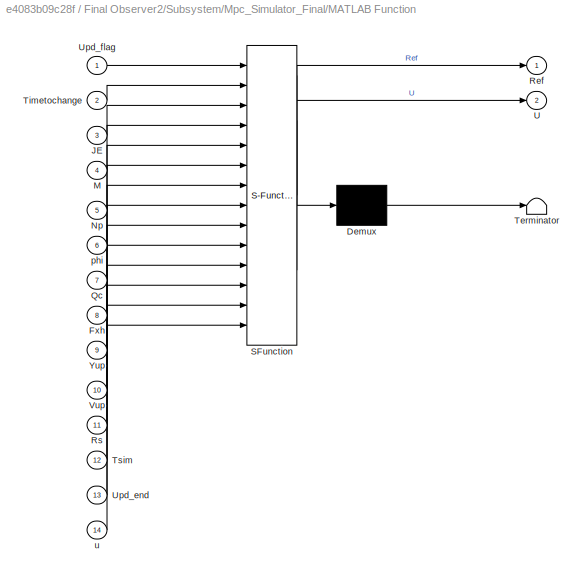
BLOCK [SubSystem] Final Observer2/Subsystem/Mpc_Simulator_Final/MATLAB Function
  ErrorFcn = Stateflow.Translate.translate
  PermitHierarchicalResolution = ExplicitOnly
  Ports = [14, 2]
  RequestExecContextInheritance = off
  SFBlockType = MATLAB Function
  SystemSampleTime = Ts
  TreatAsAtomicUnit = on
BLOCK [Demux] Final Observer2/Subsystem/Mpc_Simulator_Final/MATLAB Function/ Demux 
  Outputs = 1
  Ports = [1, 1]
BLOCK [S-Function] Final Observer2/Subsystem/Mpc_Simulator_Final/MATLAB Function/ SFunction 
  EnableBusSupport = off
  FunctionName = sf_sfun
  PortCounts = [14 3]
  Ports = [14, 3]
  SFcnIsStateOwnerBlock = off
  SFunctionDeploymentMode = off
  Tag = Stateflow S-Function 38
BLOCK [Terminator] Final Observer2/Subsystem/Mpc_Simulator_Final/MATLAB Function/ Terminator 
BLOCK [Inport] Final Observer2/Subsystem/Mpc_Simulator_Final/MATLAB Function/Fxh
  IconDisplay = Port number
  Port = 8
BLOCK [Inport] Final Observer2/Subsystem/Mpc_Simulator_Final/MATLAB Function/JE
  IconDisplay = Port number
  Port = 3
BLOCK [Inport] Final Observer2/Subsystem/Mpc_Simulator_Final/MATLAB Function/M
  IconDisplay = Port number
  Port = 4
BLOCK [Inport] Final Observer2/Subsystem/Mpc_Simulator_Final/MATLAB Function/Np
  IconDisplay = Port number
  Port = 5
BLOCK [Inport] Final Observer2/Subsystem/Mpc_Simulator_Final/MATLAB Function/Qc
  IconDisplay = Port number
  Port = 7
BLOCK [Outport] Final Observer2/Subsystem/Mpc_Simulator_Final/MATLAB Function/Ref
  IconDisplay = Port number
  VectorParamsAs1DForOutWhenUnconnected = off
BLOCK [Inport] Final Observer2/Subsystem/Mpc_Simulator_Final/MATLAB Function/Rs
  IconDisplay = Port number
  Port = 11
BLOCK [Inport] Final Observer2/Subsystem/Mpc_Simulator_Final/MATLAB Function/Timetochange
  IconDisplay = Port number
  Port = 2
BLOCK [Inport] Final Observer2/Subsystem/Mpc_Simulator_Final/MATLAB Function/Tsim
  IconDisplay = Port number
  Port = 12
BLOCK [Outport] Final Observer2/Subsystem/Mpc_Simulator_Final/MATLAB Function/U
  IconDisplay = Port number
  Port = 2
  VectorParamsAs1DForOutWhenUnconnected = off
BLOCK [Inport] Final Observer2/Subsystem/Mpc_Simulator_Final/MATLAB Function/Upd_end
  IconDisplay = Port number
  Port = 13
BLOCK [Inport] Final Observer2/Subsystem/Mpc_Simulator_Final/MATLAB Function/Upd_flag
  IconDisplay = Port number
BLOCK [Inport] Final Observer2/Subsystem/Mpc_Simulator_Final/MATLAB Function/Vup
  IconDisplay = Port number
  Port = 10
BLOCK [Inport] Final Observer2/Subsystem/Mpc_Simulator_Final/MATLAB Function/Yup
  IconDisplay = Port number
  Port = 9
BLOCK [Inport] Final Observer2/Subsystem/Mpc_Simulator_Final/MATLAB Function/phi
  IconDisplay = Port number
  Port = 6
BLOCK [Inport] Final Observer2/Subsystem/Mpc_Simulator_Final/MATLAB Function/u
  IconDisplay = Port number
  Port = 14
BLOCK [Outport] Final Observer2/Subsystem/Mpc_Simulator_Final/Ref
  IconDisplay = Port number
  Port = 2
  VectorParamsAs1DForOutWhenUnconnected = off
BLOCK [Inport] Final Observer2/Subsystem/Mpc_Simulator_Final/Rs
  IconDisplay = Port number
  LockScale = on
  Port = 3
  SampleTime = Ts
  VarSizeSig = No
BLOCK [Outport] Final Observer2/Subsystem/Mpc_Simulator_Final/U
  IconDisplay = Port number
  VectorParamsAs1DForOutWhenUnconnected = off
BLOCK [UnitDelay] Final Observer2/Subsystem/Mpc_Simulator_Final/Unit Delay
  HasFrameUpgradeWarning = on
  InitialCondition = [0;0]
  SampleTime = Ts
BLOCK [Inport] Final Observer2/Subsystem/Mpc_Simulator_Final/Vup
  IconDisplay = Port number
  LockScale = on
  SampleTime = Ts
  VarSizeSig = No
BLOCK [Inport] Final Observer2/Subsystem/Mpc_Simulator_Final/Xh_sim
  IconDisplay = Port number
  Port = 4
BLOCK [Inport] Final Observer2/Subsystem/Mpc_Simulator_Final/Yup
  IconDisplay = Port number
  LockScale = on
  Port = 2
  SampleTime = Ts
  VarSizeSig = No
BLOCK [SubSystem] Final Observer2/Subsystem/Pose updete k
  Commented = on
  Ports = [3, 2]
  RequestExecContextInheritance = off
BLOCK [Clock] Final Observer2/Subsystem/Pose updete k/Clock
BLOCK [FromWorkspace] Final Observer2/Subsystem/Pose updete k/From Workspace
  SampleTime = Ts
  VariableName = Rs_V_now
  ZeroCross = on
BLOCK [FromWorkspace] Final Observer2/Subsystem/Pose updete k/From Workspace1
  SampleTime = Ts
  VariableName = Rs_Y_now
  ZeroCross = on
BLOCK [FromWorkspace] Final Observer2/Subsystem/Pose updete k/From Workspace2
  SampleTime = Ts
  VariableName = XYplot_X
  ZeroCross = on
BLOCK [FromWorkspace] Final Observer2/Subsystem/Pose updete k/From Workspace3
  SampleTime = Ts
  VariableName = XYplot_Y
  ZeroCross = on
BLOCK [Inport] Final Observer2/Subsystem/Pose updete k/Heading_sim
  IconDisplay = Port number
  Port = 3
BLOCK [Outport] Final Observer2/Subsystem/Pose updete k/Heading_updated
  IconDisplay = Port number
  Port = 2
  VectorParamsAs1DForOutWhenUnconnected = off
BLOCK [Mux] Final Observer2/Subsystem/Pose updete k/Mux
  DisplayOption = bar
  Inputs = 2
  Ports = [2, 1]
BLOCK [Reshape] Final Observer2/Subsystem/Pose updete k/Reshape
  OutputDimensionality = Customize
  OutputDimensions = [pick_num,2]
  Ports = [1, 1]
BLOCK [Constant] Final Observer2/Subsystem/Pose updete k/Trajectroy
  SampleTime = -1
  Value = XYplot
  VectorParams1D = off
BLOCK [UnitDelay] Final Observer2/Subsystem/Pose updete k/Unit Delay
  HasFrameUpgradeWarning = on
  SampleTime = Ts
BLOCK [UnitDelay] Final Observer2/Subsystem/Pose updete k/Unit Delay1
  HasFrameUpgradeWarning = on
  SampleTime = Ts
BLOCK [UnitDelay] Final Observer2/Subsystem/Pose updete k/Unit Delay2
  HasFrameUpgradeWarning = on
  SampleTime = Ts
BLOCK [UnitDelay] Final Observer2/Subsystem/Pose updete k/Unit Delay3
  HasFrameUpgradeWarning = on
  SampleTime = Ts
BLOCK [SubSystem] Final Observer2/Subsystem/Pose updete k/Update
  ErrorFcn = Stateflow.Translate.translate
  PermitHierarchicalResolution = ExplicitOnly
  Ports = [12, 3]
  RTWFcnNameOpts = Use subsystem name
  RequestExecContextInheritance = off
  SFBlockType = MATLAB Function
  SystemSampleTime = Ts
  TreatAsAtomicUnit = on
BLOCK [Demux] Final Observer2/Subsystem/Pose updete k/Update/ Demux 
  Outputs = 1
  Ports = [1, 1]
BLOCK [S-Function] Final Observer2/Subsystem/Pose updete k/Update/ SFunction 
  EnableBusSupport = off
  FunctionName = sf_sfun
  PortCounts = [12 4]
  Ports = [12, 4]
  SFcnIsStateOwnerBlock = off
  SFunctionDeploymentMode = off
  Tag = Stateflow S-Function 42
BLOCK [Terminator] Final Observer2/Subsystem/Pose updete k/Update/ Terminator 
BLOCK [Outport] Final Observer2/Subsystem/Pose updete k/Update/Heading_end
  IconDisplay = Port number
  Port = 3
  VectorParamsAs1DForOutWhenUnconnected = off
BLOCK [Inport] Final Observer2/Subsystem/Pose updete k/Update/Heading_sim
  IconDisplay = Port number
  Port = 9
BLOCK [Outport] Final Observer2/Subsystem/Pose updete k/Update/Heading_updated
  IconDisplay = Port number
  Port = 2
  VectorParamsAs1DForOutWhenUnconnected = off
BLOCK [Inport] Final Observer2/Subsystem/Pose updete k/Update/Last_Heading_end
  IconDisplay = Port number
  Port = 12
BLOCK [Inport] Final Observer2/Subsystem/Pose updete k/Update/Last_Heading_sim
  IconDisplay = Port number
  Port = 10
BLOCK [Inport] Final Observer2/Subsystem/Pose updete k/Update/Last_Velocity_sim
  IconDisplay = Port number
  Port = 8
BLOCK [Inport] Final Observer2/Subsystem/Pose updete k/Update/Last_XYplot_sim
  IconDisplay = Port number
  Port = 6
BLOCK [Inport] Final Observer2/Subsystem/Pose updete k/Update/Rs_V_now
  IconDisplay = Port number
BLOCK [Inport] Final Observer2/Subsystem/Pose updete k/Update/Rs_Y_now
  IconDisplay = Port number
  Port = 2
BLOCK [Inport] Final Observer2/Subsystem/Pose updete k/Update/Tsim
  IconDisplay = Port number
  Port = 11
BLOCK [Inport] Final Observer2/Subsystem/Pose updete k/Update/Velocity_sim
  IconDisplay = Port number
  Port = 7
BLOCK [Outport] Final Observer2/Subsystem/Pose updete k/Update/Velocity_updated
  IconDisplay = Port number
  VectorParamsAs1DForOutWhenUnconnected = off
BLOCK [Inport] Final Observer2/Subsystem/Pose updete k/Update/XYline
  IconDisplay = Port number
  Port = 3
BLOCK [Inport] Final Observer2/Subsystem/Pose updete k/Update/XYplot
  IconDisplay = Port number
  Port = 4
BLOCK [Inport] Final Observer2/Subsystem/Pose updete k/Update/XYplot_sim
  IconDisplay = Port number
  Port = 5
BLOCK [Inport] Final Observer2/Subsystem/Pose updete k/Velocity_sim
  IconDisplay = Port number
  Port = 2
BLOCK [Outport] Final Observer2/Subsystem/Pose updete k/Velocity_updated
  IconDisplay = Port number
  VectorParamsAs1DForOutWhenUnconnected = off
BLOCK [Inport] Final Observer2/Subsystem/Pose updete k/XYplot_sim
  IconDisplay = Port number
BLOCK [Delay] Final Observer2/Subsystem/Resettable Delay
  DelayLength = 1
  ExternalReset = Rising
  InitialConditionSource = Input port
  InputPortMap = u0,r5,p4
  Ports = [3, 1]
  SampleTime = Ts
BLOCK [Delay] Final Observer2/Subsystem/Resettable Delay1
  DelayLength = 1
  ExternalReset = Rising
  InitialConditionSource = Input port
  InputPortMap = u0,r5,p4
  Ports = [3, 1]
  SampleTime = Ts
BLOCK [Delay] Final Observer2/Subsystem/Resettable Delay2
  DelayLength = 1
  ExternalReset = Rising
  InitialConditionSource = Input port
  InputPortMap = u0,r5,p4
  Ports = [3, 1]
  SampleTime = Ts
BLOCK [Inport] Final Observer2/Subsystem/Rs
  IconDisplay = Port number
BLOCK [Sum] Final Observer2/Subsystem/Sum1
  IconShape = round
  InputSameDT = off
  Inputs = +++
  OutDataTypeStr = Inherit: Inherit via internal rule
  Ports = [3, 1]
  SaturateOnIntegerOverflow = off
BLOCK [Sum] Final Observer2/Subsystem/Sum2
  IconShape = round
  InputSameDT = off
  Inputs = +++
  OutDataTypeStr = Inherit: Inherit via internal rule
  Ports = [3, 1]
  SaturateOnIntegerOverflow = off
BLOCK [Sum] Final Observer2/Subsystem/Sum6
  IconShape = round
  InputSameDT = off
  OutDataTypeStr = Inherit: Inherit via internal rule
  Ports = [2, 1]
  SaturateOnIntegerOverflow = off
BLOCK [Sum] Final Observer2/Subsystem/Sum7
  IconShape = round
  InputSameDT = off
  Inputs = -+
  OutDataTypeStr = Inherit: Inherit via internal rule
  Ports = [2, 1]
  SaturateOnIntegerOverflow = off
BLOCK [ToWorkspace] Final Observer2/Subsystem/To Workspace1
  FixptAsFi = on
  MaxDataPoints = inf
  Ports = [1]
  SampleTime = Ts
  VariableName = observer_simulator_p_f
BLOCK [ToWorkspace] Final Observer2/Subsystem/To Workspace3
  FixptAsFi = on
  MaxDataPoints = inf
  Ports = [1]
  SampleTime = Ts
  VariableName = LOOK1
BLOCK [Outport] Final Observer2/Subsystem/U
  IconDisplay = Port number
  Port = 2
  VectorParamsAs1DForOutWhenUnconnected = off
BLOCK [Inport] Final Observer2/Subsystem/U_delay
  IconDisplay = Port number
  Port = 2
BLOCK [SubSystem] Final Observer2/Subsystem/VH2P
  Ports = [6, 1]
  RequestExecContextInheritance = off
BLOCK [FromWorkspace] Final Observer2/Subsystem/VH2P/From Workspace
  SampleTime = Ts
  VariableName = T_sim
  ZeroCross = on
BLOCK [Inport] Final Observer2/Subsystem/VH2P/HeadingAngles
  IconDisplay = Port number
  Port = 2
BLOCK [Inport] Final Observer2/Subsystem/VH2P/Iintial HeadingAngles
  IconDisplay = Port number
  Port = 5
BLOCK [Inport] Final Observer2/Subsystem/VH2P/Iintial Velocities
  IconDisplay = Port number
  Port = 4
BLOCK [Inport] Final Observer2/Subsystem/VH2P/Initial position
  IconDisplay = Port number
  Port = 3
BLOCK [SubSystem] Final Observer2/Subsystem/VH2P/MATLAB Function1
  ErrorFcn = Stateflow.Translate.translate
  PermitHierarchicalResolution = ExplicitOnly
  Ports = [1, 1]
  RequestExecContextInheritance = off
  SFBlockType = MATLAB Function
  TreatAsAtomicUnit = on
BLOCK [Demux] Final Observer2/Subsystem/VH2P/MATLAB Function1/ Demux 
  Outputs = 1
  Ports = [1, 1]
BLOCK [S-Function] Final Observer2/Subsystem/VH2P/MATLAB Function1/ SFunction 
  EnableBusSupport = off
  FunctionName = sf_sfun
  PortCounts = [1 2]
  Ports = [1, 2]
  SFcnIsStateOwnerBlock = off
  SFunctionDeploymentMode = off
  Tag = Stateflow S-Function 45
BLOCK [Terminator] Final Observer2/Subsystem/VH2P/MATLAB Function1/ Terminator 
BLOCK [Inport] Final Observer2/Subsystem/VH2P/MATLAB Function1/select_model
  IconDisplay = Port number
BLOCK [Outport] Final Observer2/Subsystem/VH2P/MATLAB Function1/tri
  IconDisplay = Port number
  VectorParamsAs1DForOutWhenUnconnected = off
BLOCK [Outport] Final Observer2/Subsystem/VH2P/Position
  IconDisplay = Port number
  VectorParamsAs1DForOutWhenUnconnected = off
BLOCK [Delay] Final Observer2/Subsystem/VH2P/Resettable Delay
  DelayLength = 1
  ExternalReset = Rising
  InitialConditionSource = Input port
  InputPortMap = u0,r5,p4
  Ports = [3, 1]
  SampleTime = Ts
BLOCK [Delay] Final Observer2/Subsystem/VH2P/Resettable Delay1
  DelayLength = 1
  ExternalReset = Rising
  InitialConditionSource = Input port
  InputPortMap = u0,r5,p4
  Ports = [3, 1]
  SampleTime = Ts
BLOCK [Delay] Final Observer2/Subsystem/VH2P/Resettable Delay2
  DelayLength = 1
  ExternalReset = Rising
  InitialConditionSource = Input port
  InputPortMap = u0,r5,p4
  Ports = [3, 1]
  SampleTime = Ts
BLOCK [UnitDelay] Final Observer2/Subsystem/VH2P/Unit Delay3
  HasFrameUpgradeWarning = on
  SampleTime = Ts
BLOCK [Inport] Final Observer2/Subsystem/VH2P/Velocities
  IconDisplay = Port number
BLOCK [SubSystem] Final Observer2/Subsystem/VH2P/YV2P
  ErrorFcn = Stateflow.Translate.translate
  PermitHierarchicalResolution = ExplicitOnly
  Ports = [7, 1]
  RequestExecContextInheritance = off
  SFBlockType = MATLAB Function
  SystemSampleTime = Ts
  TreatAsAtomicUnit = on
BLOCK [Demux] Final Observer2/Subsystem/VH2P/YV2P/ Demux 
  Outputs = 1
  Ports = [1, 1]
BLOCK [S-Function] Final Observer2/Subsystem/VH2P/YV2P/ SFunction 
  EnableBusSupport = off
  FunctionName = sf_sfun
  PortCounts = [7 2]
  Ports = [7, 2]
  SFcnIsStateOwnerBlock = off
  SFunctionDeploymentMode = off
  Tag = Stateflow S-Function 43
BLOCK [Terminator] Final Observer2/Subsystem/VH2P/YV2P/ Terminator 
BLOCK [Inport] Final Observer2/Subsystem/VH2P/YV2P/LastTsim
  IconDisplay = Port number
  Port = 6
BLOCK [Inport] Final Observer2/Subsystem/VH2P/YV2P/LastVelocity
  IconDisplay = Port number
  Port = 3
BLOCK [Inport] Final Observer2/Subsystem/VH2P/YV2P/LastYaw
  IconDisplay = Port number
  Port = 4
BLOCK [Inport] Final Observer2/Subsystem/VH2P/YV2P/Lastpostion
  IconDisplay = Port number
  Port = 7
BLOCK [Outport] Final Observer2/Subsystem/VH2P/YV2P/Position
  IconDisplay = Port number
  VectorParamsAs1DForOutWhenUnconnected = off
BLOCK [Inport] Final Observer2/Subsystem/VH2P/YV2P/Tsim
  IconDisplay = Port number
  Port = 5
BLOCK [Inport] Final Observer2/Subsystem/VH2P/YV2P/Velocity
  IconDisplay = Port number
BLOCK [Inport] Final Observer2/Subsystem/VH2P/YV2P/Yaw
  IconDisplay = Port number
  Port = 2
BLOCK [Inport] Final Observer2/Subsystem/VH2P/select_model
  IconDisplay = Port number
  Port = 6
BLOCK [Inport] Final Observer2/Subsystem/Xh_sim
  IconDisplay = Port number
  Port = 8
BLOCK [Outport] Final Observer2/Subsystem/Y
  IconDisplay = Port number
  VectorParamsAs1DForOutWhenUnconnected = off
BLOCK [SubSystem] Final Observer2/Subsystem/YV_update_Np
  Ports = [3, 2]
  RequestExecContextInheritance = off
  TreatAsAtomicUnit = on
BLOCK [FromWorkspace] Final Observer2/Subsystem/YV_update_Np/From Workspace1
  SampleTime = Ts
  VariableName = T_sim
  ZeroCross = on
BLOCK [FromWorkspace] Final Observer2/Subsystem/YV_update_Np/From Workspace3
  SampleTime = Ts
  VariableName = XY_Ref_Upd
  ZeroCross = on
BLOCK [Outport] Final Observer2/Subsystem/YV_update_Np/Heading angle
  IconDisplay = Port number
  Port = 2
  VectorParamsAs1DForOutWhenUnconnected = off
BLOCK [Inport] Final Observer2/Subsystem/YV_update_Np/Heading_sim
  IconDisplay = Port number
  Port = 3
BLOCK [SubSystem] Final Observer2/Subsystem/YV_update_Np/MATLAB Function2
  ErrorFcn = Stateflow.Translate.translate
  PermitHierarchicalResolution = ExplicitOnly
  Ports = [8, 2]
  RequestExecContextInheritance = off
  SFBlockType = MATLAB Function
  SystemSampleTime = Ts
  TreatAsAtomicUnit = on
BLOCK [Demux] Final Observer2/Subsystem/YV_update_Np/MATLAB Function2/ Demux 
  Outputs = 1
  Ports = [1, 1]
BLOCK [S-Function] Final Observer2/Subsystem/YV_update_Np/MATLAB Function2/ SFunction 
  EnableBusSupport = off
  FunctionName = sf_sfun
  PortCounts = [8 3]
  Ports = [8, 3]
  SFcnIsStateOwnerBlock = off
  SFunctionDeploymentMode = off
  Tag = Stateflow S-Function 44
BLOCK [Terminator] Final Observer2/Subsystem/YV_update_Np/MATLAB Function2/ Terminator 
BLOCK [Outport] Final Observer2/Subsystem/YV_update_Np/MATLAB Function2/Heading_updated
  IconDisplay = Port number
  Port = 2
  VectorParamsAs1DForOutWhenUnconnected = off
BLOCK [Inport] Final Observer2/Subsystem/YV_update_Np/MATLAB Function2/LastVelocity_sim
  IconDisplay = Port number
  Port = 5
BLOCK [Inport] Final Observer2/Subsystem/YV_update_Np/MATLAB Function2/LastXY_sim
  IconDisplay = Port number
  Port = 3
BLOCK [Inport] Final Observer2/Subsystem/YV_update_Np/MATLAB Function2/LastYaw_sim
  IconDisplay = Port number
  Port = 7
BLOCK [Inport] Final Observer2/Subsystem/YV_update_Np/MATLAB Function2/Tsim
  IconDisplay = Port number
  Port = 8
BLOCK [Inport] Final Observer2/Subsystem/YV_update_Np/MATLAB Function2/Velocity_sim
  IconDisplay = Port number
  Port = 4
BLOCK [Outport] Final Observer2/Subsystem/YV_update_Np/MATLAB Function2/Velocity_updated
  IconDisplay = Port number
  VectorParamsAs1DForOutWhenUnconnected = off
BLOCK [Inport] Final Observer2/Subsystem/YV_update_Np/MATLAB Function2/XY_ref
  IconDisplay = Port number
BLOCK [Inport] Final Observer2/Subsystem/YV_update_Np/MATLAB Function2/XY_sim
  IconDisplay = Port number
  Port = 2
BLOCK [Inport] Final Observer2/Subsystem/YV_update_Np/MATLAB Function2/Yaw_sim
  IconDisplay = Port number
  Port = 6
BLOCK [UnitDelay] Final Observer2/Subsystem/YV_update_Np/Unit Delay1
  HasFrameUpgradeWarning = on
  SampleTime = Ts
BLOCK [UnitDelay] Final Observer2/Subsystem/YV_update_Np/Unit Delay4
  HasFrameUpgradeWarning = on
  SampleTime = Ts
BLOCK [UnitDelay] Final Observer2/Subsystem/YV_update_Np/Unit Delay5
  HasFrameUpgradeWarning = on
  SampleTime = Ts
BLOCK [Outport] Final Observer2/Subsystem/YV_update_Np/Velocity
  IconDisplay = Port number
  VectorParamsAs1DForOutWhenUnconnected = off
BLOCK [Inport] Final Observer2/Subsystem/YV_update_Np/Velocity_sim
  IconDisplay = Port number
  Port = 2
BLOCK [Inport] Final Observer2/Subsystem/YV_update_Np/XY_sim
  IconDisplay = Port number
BLOCK [Inport] Final Observer2/Subsystem/r(k)
  IconDisplay = Port number
  Port = 7
BLOCK [Inport] Final Observer2/Subsystem/r(k-1)
  IconDisplay = Port number
  Port = 6
BLOCK [Inport] Final Observer2/Subsystem/select_model
  IconDisplay = Port number
  Port = 9
BLOCK [Sum] Final Observer2/Sum4
  IconShape = round
  InputSameDT = off
  Inputs = +++
  OutDataTypeStr = Inherit: Inherit via internal rule
  Ports = [3, 1]
  SaturateOnIntegerOverflow = off
BLOCK [Switch] Final Observer2/Switch
  InputSameDT = off
  SaturateOnIntegerOverflow = off
  Threshold = 3
BLOCK [Switch] Final Observer2/Switch1
  InputSameDT = off
  SaturateOnIntegerOverflow = off
  Threshold = 3
BLOCK [Inport] Final Observer2/U
  IconDisplay = Port number
BLOCK [Inport] Final Observer2/U_delay
  IconDisplay = Port number
  Port = 4
BLOCK [Inport] Final Observer2/Y
  IconDisplay = Port number
  Port = 2
BLOCK [Inport] Final Observer2/r(k)
  IconDisplay = Port number
  Port = 6
BLOCK [Inport] Final Observer2/r(k-1)
  IconDisplay = Port number
  Port = 5
BLOCK [Inport] Final Observer2/select_model
  IconDisplay = Port number
  Port = 10
BLOCK [Inport] Final Observer2/select_model1
  IconDisplay = Port number
  Port = 11
BLOCK [Outport] Final Observer2/u_delay
  IconDisplay = Port number
  Port = 3
  VectorParamsAs1DForOutWhenUnconnected = off
BLOCK [Outport] Final Observer2/xhat
  IconDisplay = Port number
  Port = 4
  VectorParamsAs1DForOutWhenUnconnected = off
BLOCK [Outport] Final Observer2/xhat_delay
  IconDisplay = Port number
  Port = 2
  VectorParamsAs1DForOutWhenUnconnected = off
BLOCK [Outport] Final Observer2/yhat
  IconDisplay = Port number
  VectorParamsAs1DForOutWhenUnconnected = off
BLOCK [FromWorkspace] From Workspace1
  SampleTime = Ts
  VariableName = Rs
  ZeroCross = on
BLOCK [FromWorkspace] From Workspace2
  SampleTime = Ts
  VariableName = Rs
  ZeroCross = on
BLOCK [FromWorkspace] From Workspace3
  SampleTime = Ts
  VariableName = Rs
  ZeroCross = on
BLOCK [FromWorkspace] From Workspace4
  SampleTime = Ts
  VariableName = Rs
  ZeroCross = on
BLOCK [FromWorkspace] From Workspace5
  SampleTime = Ts
  VariableName = Rs
  ZeroCross = on
BLOCK [SubSystem] Longitudinal Driver
  Ports = [3, 1]
  RequestExecContextInheritance = off
  SystemSampleTime = Tf
  VariantControl = 0
BLOCK [BusCreator] Longitudinal Driver/Bus Creator1
  DisplayOption = bar
  InheritFromInputs = on
  Inputs = 3
  Ports = [3, 1]
BLOCK [Outport] Longitudinal Driver/Driver
  IconDisplay = Port number
  VectorParamsAs1DForOutWhenUnconnected = off
BLOCK [Inport] Longitudinal Driver/In1
  IconDisplay = Port number
  SampleTime = Tf
BLOCK [Inport] Longitudinal Driver/In2
  IconDisplay = Port number
  Port = 2
  SampleTime = Tf
BLOCK [Inport] Longitudinal Driver/In3
  IconDisplay = Port number
  Port = 3
  SampleTime = Tf
BLOCK [ToWorkspace] Longitudinal Driver/To Workspace
  FixptAsFi = on
  MaxDataPoints = inf
  Ports = [1]
  SampleTime = Tf
  VariableName = Brake
BLOCK [ToWorkspace] Longitudinal Driver/To Workspace1
  FixptAsFi = on
  MaxDataPoints = inf
  Ports = [1]
  SampleTime = -1
  VariableName = Steer
BLOCK [ToWorkspace] Longitudinal Driver/To Workspace2
  FixptAsFi = on
  MaxDataPoints = inf
  Ports = [1]
  SampleTime = Tf
  VariableName = Acceleration
BLOCK [SubSystem] MATLAB Function
  ErrorFcn = Stateflow.Translate.translate
  PermitHierarchicalResolution = ExplicitOnly
  Ports = [1, 2]
  RequestExecContextInheritance = off
  SFBlockType = MATLAB Function
  SystemSampleTime = Ts
  TreatAsAtomicUnit = on
BLOCK [Demux] MATLAB Function/ Demux 
  Outputs = 1
  Ports = [1, 1]
BLOCK [S-Function] MATLAB Function/ SFunction 
  EnableBusSupport = off
  FunctionName = sf_sfun
  PortCounts = [1 3]
  Ports = [1, 3]
  SFcnIsStateOwnerBlock = off
  SFunctionDeploymentMode = off
  Tag = Stateflow S-Function 3
BLOCK [Terminator] MATLAB Function/ Terminator 
BLOCK [Outport] MATLAB Function/Ac
  IconDisplay = Port number
  VectorParamsAs1DForOutWhenUnconnected = off
BLOCK [Outport] MATLAB Function/Br
  IconDisplay = Port number
  Port = 2
  VectorParamsAs1DForOutWhenUnconnected = off
BLOCK [Inport] MATLAB Function/u
  IconDisplay = Port number
BLOCK [SubSystem] Middle Observer2
  Ports = [11, 4]
  RequestExecContextInheritance = off
BLOCK [Gain] Middle Observer2/Cso
  Gain = Cso
  Multiplication = Matrix(K*u) (u vector)
  OutDataTypeStr = Inherit: Inherit via internal rule
  ParamDataTypeStr = Inherit: Inherit via internal rule
  SaturateOnIntegerOverflow = off
BLOCK [Delay] Middle Observer2/Delay1
  DelayLength = 1
  ExternalReset = Rising
  InitialCondition = 0
  InitialConditionSource = Input port
  InputPortMap = u0,r5,p4
  Ports = [3, 1]
  SampleTime = Ts
BLOCK [Delay] Middle Observer2/Delay2
  DelayLength = 1
  ExternalReset = Rising
  InitialCondition = 0
  InitialConditionSource = Input port
  InputPortMap = u0,r5,p4
  Ports = [3, 1]
  SampleTime = Ts
BLOCK [Gain] Middle Observer2/Gsd
  Gain = Gsd
  Multiplication = Matrix(K*u) (u vector)
  OutDataTypeStr = Inherit: Inherit via internal rule
  ParamDataTypeStr = Inherit: Inherit via internal rule
  SaturateOnIntegerOverflow = off
BLOCK [Gain] Middle Observer2/Hsd
  Gain = Hsd
  Multiplication = Matrix(K*u) (u vector)
  OutDataTypeStr = Inherit: Inherit via internal rule
  ParamDataTypeStr = Inherit: Inherit via internal rule
  SaturateOnIntegerOverflow = off
BLOCK [Inport] Middle Observer2/Initial HeadingAngles
  IconDisplay = Port number
  Port = 9
BLOCK [Inport] Middle Observer2/Initial Velocities
  IconDisplay = Port number
  Port = 8
BLOCK [Inport] Middle Observer2/Initial position
  IconDisplay = Port number
  Port = 4
BLOCK [Gain] Middle Observer2/Lsd
  Gain = Lsd
  Multiplication = Matrix(K*u) (u vector)
  OutDataTypeStr = Inherit: Inherit via internal rule
  ParamDataTypeStr = Inherit: Inherit via internal rule
  SaturateOnIntegerOverflow = off
BLOCK [Gain] Middle Observer2/Lsd1
  Gain = Lsd
  Multiplication = Matrix(K*u) (u vector)
  OutDataTypeStr = Inherit: Inherit via internal rule
  ParamDataTypeStr = Inherit: Inherit via internal rule
  SaturateOnIntegerOverflow = off
BLOCK [SubSystem] Middle Observer2/MATLAB Function1
  ErrorFcn = Stateflow.Translate.translate
  PermitHierarchicalResolution = ExplicitOnly
  Ports = [1, 1]
  RequestExecContextInheritance = off
  SFBlockType = MATLAB Function
  TreatAsAtomicUnit = on
BLOCK [Demux] Middle Observer2/MATLAB Function1/ Demux 
  Outputs = 1
  Ports = [1, 1]
BLOCK [S-Function] Middle Observer2/MATLAB Function1/ SFunction 
  EnableBusSupport = off
  FunctionName = sf_sfun
  PortCounts = [1 2]
  Ports = [1, 2]
  SFcnIsStateOwnerBlock = off
  SFunctionDeploymentMode = off
  Tag = Stateflow S-Function 30
BLOCK [Terminator] Middle Observer2/MATLAB Function1/ Terminator 
BLOCK [Inport] Middle Observer2/MATLAB Function1/select_model
  IconDisplay = Port number
BLOCK [Outport] Middle Observer2/MATLAB Function1/tri
  IconDisplay = Port number
  VectorParamsAs1DForOutWhenUnconnected = off
BLOCK [Inport] Middle Observer2/Rs
  IconDisplay = Port number
  Port = 3
BLOCK [SubSystem] Middle Observer2/Subsystem
  Ports = [9, 2]
  RequestExecContextInheritance = off
BLOCK [Gain] Middle Observer2/Subsystem/C_Front1
  Gain = C_Front
  Multiplication = Matrix(K*u) (u vector)
  OutDataTypeStr = Inherit: Inherit via internal rule
  ParamDataTypeStr = Inherit: Inherit via internal rule
  SaturateOnIntegerOverflow = off
BLOCK [Gain] Middle Observer2/Subsystem/C_Middle
  Gain = Cso
  Multiplication = Matrix(K*u) (u vector)
  OutDataTypeStr = Inherit: Inherit via internal rule
  ParamDataTypeStr = Inherit: Inherit via internal rule
  SaturateOnIntegerOverflow = off
BLOCK [Gain] Middle Observer2/Subsystem/C_out_Front
  Gain = C_out_Front
  Multiplication = Matrix(K*u) (u vector)
  OutDataTypeStr = Inherit: Inherit via internal rule
  ParamDataTypeStr = Inherit: Inherit via internal rule
  SaturateOnIntegerOverflow = off
BLOCK [Gain] Middle Observer2/Subsystem/D_out_Front
  Gain = D_out_Front
  Multiplication = Matrix(K*u) (u vector)
  OutDataTypeStr = Inherit: Inherit via internal rule
  ParamDataTypeStr = Inherit: Inherit via internal rule
  SaturateOnIntegerOverflow = off
BLOCK [Delay] Middle Observer2/Subsystem/Delay1
  DelayLength = 1
  ExternalReset = Rising
  InitialCondition = 0
  InitialConditionSource = Input port
  InputPortMap = u0,r5,p4
  Ports = [3, 1]
  SampleTime = Ts
BLOCK [Delay] Middle Observer2/Subsystem/Delay2
  DelayLength = 1
  ExternalReset = Rising
  InitialCondition = 0
  InitialConditionSource = Input port
  InputPortMap = u0,r5,p4
  Ports = [3, 1]
  SampleTime = Ts
BLOCK [Delay] Middle Observer2/Subsystem/Delay3
  DelayLength = 1
  ExternalReset = Rising
  InitialCondition = 0
  InitialConditionSource = Input port
  InputPortMap = u0,r5,p4
  Ports = [3, 1]
  SampleTime = Ts
BLOCK [Demux] Middle Observer2/Subsystem/Demux
  DisplayOption = bar
  Outputs = 2
  Ports = [1, 2]
BLOCK [Gain] Middle Observer2/Subsystem/G_Front
  Gain = G_Front
  Multiplication = Matrix(K*u) (u vector)
  OutDataTypeStr = Inherit: Inherit via internal rule
  ParamDataTypeStr = Inherit: Inherit via internal rule
  SaturateOnIntegerOverflow = off
BLOCK [Gain] Middle Observer2/Subsystem/G_sys_Front
  Gain = G_sys_Front
  Multiplication = Matrix(K*u) (u vector)
  OutDataTypeStr = Inherit: Inherit via internal rule
  ParamDataTypeStr = Inherit: Inherit via internal rule
  SaturateOnIntegerOverflow = off
BLOCK [Gain] Middle Observer2/Subsystem/H_Front
  Gain = H_Front
  Multiplication = Matrix(K*u) (u vector)
  OutDataTypeStr = Inherit: Inherit via internal rule
  ParamDataTypeStr = Inherit: Inherit via internal rule
  SaturateOnIntegerOverflow = off
BLOCK [Gain] Middle Observer2/Subsystem/H_sys_Front
  Gain = H_sys_Front
  Multiplication = Matrix(K*u) (u vector)
  OutDataTypeStr = Inherit: Inherit via internal rule
  ParamDataTypeStr = Inherit: Inherit via internal rule
  SaturateOnIntegerOverflow = off
BLOCK [Inport] Middle Observer2/Subsystem/Initial HeadingAngles
  IconDisplay = Port number
  Port = 7
BLOCK [Inport] Middle Observer2/Subsystem/Initial Velocities
  IconDisplay = Port number
  Port = 6
BLOCK [Inport] Middle Observer2/Subsystem/Initial position
  IconDisplay = Port number
  Port = 5
BLOCK [Gain] Middle Observer2/Subsystem/Ld_Front
  Gain = Ld_Front
  Multiplication = Matrix(K*u) (u vector)
  OutDataTypeStr = Inherit: Inherit via internal rule
  ParamDataTypeStr = Inherit: Inherit via internal rule
  SaturateOnIntegerOverflow = off
BLOCK [Gain] Middle Observer2/Subsystem/Ld_Front1
  Gain = Ld_Front
  Multiplication = Matrix(K*u) (u vector)
  OutDataTypeStr = Inherit: Inherit via internal rule
  ParamDataTypeStr = Inherit: Inherit via internal rule
  SaturateOnIntegerOverflow = off
BLOCK [Gain] Middle Observer2/Subsystem/Ld_Front2
  Gain = Ld_Front
  Multiplication = Matrix(K*u) (u vector)
  OutDataTypeStr = Inherit: Inherit via internal rule
  ParamDataTypeStr = Inherit: Inherit via internal rule
  SaturateOnIntegerOverflow = off
BLOCK [SubSystem] Middle Observer2/Subsystem/MATLAB Function1
  ErrorFcn = Stateflow.Translate.translate
  PermitHierarchicalResolution = ExplicitOnly
  Ports = [1, 1]
  RequestExecContextInheritance = off
  SFBlockType = MATLAB Function
  TreatAsAtomicUnit = on
BLOCK [Demux] Middle Observer2/Subsystem/MATLAB Function1/ Demux 
  Outputs = 1
  Ports = [1, 1]
BLOCK [S-Function] Middle Observer2/Subsystem/MATLAB Function1/ SFunction 
  EnableBusSupport = off
  FunctionName = sf_sfun
  PortCounts = [1 2]
  Ports = [1, 2]
  SFcnIsStateOwnerBlock = off
  SFunctionDeploymentMode = off
  Tag = Stateflow S-Function 49
BLOCK [Terminator] Middle Observer2/Subsystem/MATLAB Function1/ Terminator 
BLOCK [Inport] Middle Observer2/Subsystem/MATLAB Function1/select_model
  IconDisplay = Port number
BLOCK [Outport] Middle Observer2/Subsystem/MATLAB Function1/tri
  IconDisplay = Port number
  VectorParamsAs1DForOutWhenUnconnected = off
BLOCK [SubSystem] Middle Observer2/Subsystem/Mpc_Simulator_Middle
  Ports = [4, 2]
  RequestExecContextInheritance = off
BLOCK [Clock] Middle Observer2/Subsystem/Mpc_Simulator_Middle/Clock
  Decimation = 1
BLOCK [Constant] Middle Observer2/Subsystem/Mpc_Simulator_Middle/Constant1
  SampleTime = -1
  Value = M
  VectorParams1D = off
BLOCK [Constant] Middle Observer2/Subsystem/Mpc_Simulator_Middle/Constant2
  SampleTime = -1
  Value = Np
BLOCK [Constant] Middle Observer2/Subsystem/Mpc_Simulator_Middle/Constant3
  SampleTime = -1
  Value = Upd_flag
  VectorParams1D = off
BLOCK [Constant] Middle Observer2/Subsystem/Mpc_Simulator_Middle/Constant4
  SampleTime = -1
  Value = Qc
  VectorParams1D = off
BLOCK [Constant] Middle Observer2/Subsystem/Mpc_Simulator_Middle/Constant5
  SampleTime = -1
  Value = phi_Front
  VectorParams1D = off
BLOCK [Constant] Middle Observer2/Subsystem/Mpc_Simulator_Middle/Constant6
  SampleTime = -1
  Value = JE_Front
  VectorParams1D = off
BLOCK [Constant] Middle Observer2/Subsystem/Mpc_Simulator_Middle/Constant7
  SampleTime = -1
  Value = Upd_end
  VectorParams1D = off
BLOCK [Constant] Middle Observer2/Subsystem/Mpc_Simulator_Middle/Constant8
  SampleTime = -1
  Value = Timetochange
  VectorParams1D = off
BLOCK [Gain] Middle Observer2/Subsystem/Mpc_Simulator_Middle/F_Middle
  Gain = F_Front
  Multiplication = Matrix(K*u) (u vector)
  OutDataTypeStr = Inherit: Inherit via internal rule
  ParamDataTypeStr = Inherit: Inherit via internal rule
  SaturateOnIntegerOverflow = off
BLOCK [SubSystem] Middle Observer2/Subsystem/Mpc_Simulator_Middle/MATLAB Function
  ErrorFcn = Stateflow.Translate.translate
  PermitHierarchicalResolution = ExplicitOnly
  Ports = [14, 2]
  RequestExecContextInheritance = off
  SFBlockType = MATLAB Function
  SystemSampleTime = Ts
  TreatAsAtomicUnit = on
BLOCK [Demux] Middle Observer2/Subsystem/Mpc_Simulator_Middle/MATLAB Function/ Demux 
  Outputs = 1
  Ports = [1, 1]
BLOCK [S-Function] Middle Observer2/Subsystem/Mpc_Simulator_Middle/MATLAB Function/ SFunction 
  EnableBusSupport = off
  FunctionName = sf_sfun
  PortCounts = [14 3]
  Ports = [14, 3]
  SFcnIsStateOwnerBlock = off
  SFunctionDeploymentMode = off
  Tag = Stateflow S-Function 4
BLOCK [Terminator] Middle Observer2/Subsystem/Mpc_Simulator_Middle/MATLAB Function/ Terminator 
BLOCK [Inport] Middle Observer2/Subsystem/Mpc_Simulator_Middle/MATLAB Function/Fxh
  IconDisplay = Port number
  Port = 8
BLOCK [Inport] Middle Observer2/Subsystem/Mpc_Simulator_Middle/MATLAB Function/JE
  IconDisplay = Port number
  Port = 3
BLOCK [Inport] Middle Observer2/Subsystem/Mpc_Simulator_Middle/MATLAB Function/M
  IconDisplay = Port number
  Port = 4
BLOCK [Inport] Middle Observer2/Subsystem/Mpc_Simulator_Middle/MATLAB Function/Np
  IconDisplay = Port number
  Port = 5
BLOCK [Inport] Middle Observer2/Subsystem/Mpc_Simulator_Middle/MATLAB Function/Qc
  IconDisplay = Port number
  Port = 7
BLOCK [Outport] Middle Observer2/Subsystem/Mpc_Simulator_Middle/MATLAB Function/Ref
  IconDisplay = Port number
  VectorParamsAs1DForOutWhenUnconnected = off
BLOCK [Inport] Middle Observer2/Subsystem/Mpc_Simulator_Middle/MATLAB Function/Rs
  IconDisplay = Port number
  Port = 11
BLOCK [Inport] Middle Observer2/Subsystem/Mpc_Simulator_Middle/MATLAB Function/Timetochange
  IconDisplay = Port number
  Port = 2
BLOCK [Inport] Middle Observer2/Subsystem/Mpc_Simulator_Middle/MATLAB Function/Tsim
  IconDisplay = Port number
  Port = 12
BLOCK [Outport] Middle Observer2/Subsystem/Mpc_Simulator_Middle/MATLAB Function/U
  IconDisplay = Port number
  Port = 2
  VectorParamsAs1DForOutWhenUnconnected = off
BLOCK [Inport] Middle Observer2/Subsystem/Mpc_Simulator_Middle/MATLAB Function/Upd_end
  IconDisplay = Port number
  Port = 13
BLOCK [Inport] Middle Observer2/Subsystem/Mpc_Simulator_Middle/MATLAB Function/Upd_flag
  IconDisplay = Port number
BLOCK [Inport] Middle Observer2/Subsystem/Mpc_Simulator_Middle/MATLAB Function/Vup
  IconDisplay = Port number
  Port = 10
BLOCK [Inport] Middle Observer2/Subsystem/Mpc_Simulator_Middle/MATLAB Function/Yup
  IconDisplay = Port number
  Port = 9
BLOCK [Inport] Middle Observer2/Subsystem/Mpc_Simulator_Middle/MATLAB Function/phi
  IconDisplay = Port number
  Port = 6
BLOCK [Inport] Middle Observer2/Subsystem/Mpc_Simulator_Middle/MATLAB Function/u
  IconDisplay = Port number
  Port = 14
BLOCK [Outport] Middle Observer2/Subsystem/Mpc_Simulator_Middle/Ref
  IconDisplay = Port number
  Port = 2
  VectorParamsAs1DForOutWhenUnconnected = off
BLOCK [Inport] Middle Observer2/Subsystem/Mpc_Simulator_Middle/Rs
  IconDisplay = Port number
  LockScale = on
  Port = 3
  SampleTime = Ts
  VarSizeSig = No
BLOCK [Outport] Middle Observer2/Subsystem/Mpc_Simulator_Middle/U
  IconDisplay = Port number
  VectorParamsAs1DForOutWhenUnconnected = off
BLOCK [UnitDelay] Middle Observer2/Subsystem/Mpc_Simulator_Middle/Unit Delay
  HasFrameUpgradeWarning = on
  InitialCondition = [0;0]
  SampleTime = Ts
BLOCK [Inport] Middle Observer2/Subsystem/Mpc_Simulator_Middle/Vup
  IconDisplay = Port number
  LockScale = on
  SampleTime = Ts
  VarSizeSig = No
BLOCK [Inport] Middle Observer2/Subsystem/Mpc_Simulator_Middle/Xh_sim
  IconDisplay = Port number
  Port = 4
BLOCK [Inport] Middle Observer2/Subsystem/Mpc_Simulator_Middle/Yup
  IconDisplay = Port number
  LockScale = on
  Port = 2
  SampleTime = Ts
  VarSizeSig = No
BLOCK [SubSystem] Middle Observer2/Subsystem/Pose updete k
  Commented = on
  Ports = [3, 2]
  RequestExecContextInheritance = off
BLOCK [Clock] Middle Observer2/Subsystem/Pose updete k/Clock
BLOCK [FromWorkspace] Middle Observer2/Subsystem/Pose updete k/From Workspace
  SampleTime = Ts
  VariableName = Rs_V_now
  ZeroCross = on
BLOCK [FromWorkspace] Middle Observer2/Subsystem/Pose updete k/From Workspace1
  SampleTime = Ts
  VariableName = Rs_Y_now
  ZeroCross = on
BLOCK [FromWorkspace] Middle Observer2/Subsystem/Pose updete k/From Workspace2
  SampleTime = Ts
  VariableName = XYplot_X
  ZeroCross = on
BLOCK [FromWorkspace] Middle Observer2/Subsystem/Pose updete k/From Workspace3
  SampleTime = Ts
  VariableName = XYplot_Y
  ZeroCross = on
BLOCK [Inport] Middle Observer2/Subsystem/Pose updete k/Heading_sim
  IconDisplay = Port number
  Port = 3
BLOCK [Outport] Middle Observer2/Subsystem/Pose updete k/Heading_updated
  IconDisplay = Port number
  Port = 2
  VectorParamsAs1DForOutWhenUnconnected = off
BLOCK [Mux] Middle Observer2/Subsystem/Pose updete k/Mux
  DisplayOption = bar
  Inputs = 2
  Ports = [2, 1]
BLOCK [Reshape] Middle Observer2/Subsystem/Pose updete k/Reshape
  OutputDimensionality = Customize
  OutputDimensions = [pick_num,2]
  Ports = [1, 1]
BLOCK [Constant] Middle Observer2/Subsystem/Pose updete k/Trajectroy
  SampleTime = -1
  Value = XYplot
  VectorParams1D = off
BLOCK [UnitDelay] Middle Observer2/Subsystem/Pose updete k/Unit Delay
  HasFrameUpgradeWarning = on
  SampleTime = Ts
BLOCK [UnitDelay] Middle Observer2/Subsystem/Pose updete k/Unit Delay1
  HasFrameUpgradeWarning = on
  SampleTime = Ts
BLOCK [UnitDelay] Middle Observer2/Subsystem/Pose updete k/Unit Delay2
  HasFrameUpgradeWarning = on
  SampleTime = Ts
BLOCK [UnitDelay] Middle Observer2/Subsystem/Pose updete k/Unit Delay3
  HasFrameUpgradeWarning = on
  SampleTime = Ts
BLOCK [SubSystem] Middle Observer2/Subsystem/Pose updete k/Update
  ErrorFcn = Stateflow.Translate.translate
  PermitHierarchicalResolution = ExplicitOnly
  Ports = [12, 3]
  RTWFcnNameOpts = Use subsystem name
  RequestExecContextInheritance = off
  SFBlockType = MATLAB Function
  SystemSampleTime = Ts
  TreatAsAtomicUnit = on
BLOCK [Demux] Middle Observer2/Subsystem/Pose updete k/Update/ Demux 
  Outputs = 1
  Ports = [1, 1]
BLOCK [S-Function] Middle Observer2/Subsystem/Pose updete k/Update/ SFunction 
  EnableBusSupport = off
  FunctionName = sf_sfun
  PortCounts = [12 4]
  Ports = [12, 4]
  SFcnIsStateOwnerBlock = off
  SFunctionDeploymentMode = off
  Tag = Stateflow S-Function 11
BLOCK [Terminator] Middle Observer2/Subsystem/Pose updete k/Update/ Terminator 
BLOCK [Outport] Middle Observer2/Subsystem/Pose updete k/Update/Heading_end
  IconDisplay = Port number
  Port = 3
  VectorParamsAs1DForOutWhenUnconnected = off
BLOCK [Inport] Middle Observer2/Subsystem/Pose updete k/Update/Heading_sim
  IconDisplay = Port number
  Port = 9
BLOCK [Outport] Middle Observer2/Subsystem/Pose updete k/Update/Heading_updated
  IconDisplay = Port number
  Port = 2
  VectorParamsAs1DForOutWhenUnconnected = off
BLOCK [Inport] Middle Observer2/Subsystem/Pose updete k/Update/Last_Heading_end
  IconDisplay = Port number
  Port = 12
BLOCK [Inport] Middle Observer2/Subsystem/Pose updete k/Update/Last_Heading_sim
  IconDisplay = Port number
  Port = 10
BLOCK [Inport] Middle Observer2/Subsystem/Pose updete k/Update/Last_Velocity_sim
  IconDisplay = Port number
  Port = 8
BLOCK [Inport] Middle Observer2/Subsystem/Pose updete k/Update/Last_XYplot_sim
  IconDisplay = Port number
  Port = 6
BLOCK [Inport] Middle Observer2/Subsystem/Pose updete k/Update/Rs_V_now
  IconDisplay = Port number
BLOCK [Inport] Middle Observer2/Subsystem/Pose updete k/Update/Rs_Y_now
  IconDisplay = Port number
  Port = 2
BLOCK [Inport] Middle Observer2/Subsystem/Pose updete k/Update/Tsim
  IconDisplay = Port number
  Port = 11
BLOCK [Inport] Middle Observer2/Subsystem/Pose updete k/Update/Velocity_sim
  IconDisplay = Port number
  Port = 7
BLOCK [Outport] Middle Observer2/Subsystem/Pose updete k/Update/Velocity_updated
  IconDisplay = Port number
  VectorParamsAs1DForOutWhenUnconnected = off
BLOCK [Inport] Middle Observer2/Subsystem/Pose updete k/Update/XYline
  IconDisplay = Port number
  Port = 3
BLOCK [Inport] Middle Observer2/Subsystem/Pose updete k/Update/XYplot
  IconDisplay = Port number
  Port = 4
BLOCK [Inport] Middle Observer2/Subsystem/Pose updete k/Update/XYplot_sim
  IconDisplay = Port number
  Port = 5
BLOCK [Inport] Middle Observer2/Subsystem/Pose updete k/Velocity_sim
  IconDisplay = Port number
  Port = 2
BLOCK [Outport] Middle Observer2/Subsystem/Pose updete k/Velocity_updated
  IconDisplay = Port number
  VectorParamsAs1DForOutWhenUnconnected = off
BLOCK [Inport] Middle Observer2/Subsystem/Pose updete k/XYplot_sim
  IconDisplay = Port number
BLOCK [Inport] Middle Observer2/Subsystem/Rs
  IconDisplay = Port number
BLOCK [Sum] Middle Observer2/Subsystem/Sum1
  IconShape = round
  InputSameDT = off
  Inputs = +++
  OutDataTypeStr = Inherit: Inherit via internal rule
  Ports = [3, 1]
  SaturateOnIntegerOverflow = off
BLOCK [Sum] Middle Observer2/Subsystem/Sum2
  IconShape = round
  InputSameDT = off
  Inputs = +++
  OutDataTypeStr = Inherit: Inherit via internal rule
  Ports = [3, 1]
  SaturateOnIntegerOverflow = off
BLOCK [Sum] Middle Observer2/Subsystem/Sum6
  IconShape = round
  InputSameDT = off
  OutDataTypeStr = Inherit: Inherit via internal rule
  Ports = [2, 1]
  SaturateOnIntegerOverflow = off
BLOCK [Sum] Middle Observer2/Subsystem/Sum7
  IconShape = round
  InputSameDT = off
  Inputs = -+
  OutDataTypeStr = Inherit: Inherit via internal rule
  Ports = [2, 1]
  SaturateOnIntegerOverflow = off
BLOCK [ToWorkspace] Middle Observer2/Subsystem/To Workspace1
  FixptAsFi = on
  MaxDataPoints = inf
  Ports = [1]
  SampleTime = Ts
  VariableName = observer_simulator_p_m2
BLOCK [ToWorkspace] Middle Observer2/Subsystem/To Workspace2
  FixptAsFi = on
  MaxDataPoints = inf
  Ports = [1]
  SampleTime = Ts
  VariableName = observer_simulator_xstate2
BLOCK [Outport] Middle Observer2/Subsystem/U
  IconDisplay = Port number
  Port = 2
  VectorParamsAs1DForOutWhenUnconnected = off
BLOCK [Inport] Middle Observer2/Subsystem/U_delay
  IconDisplay = Port number
  Port = 2
BLOCK [SubSystem] Middle Observer2/Subsystem/VH2P
  Ports = [6, 1]
  RequestExecContextInheritance = off
BLOCK [Delay] Middle Observer2/Subsystem/VH2P/Delay1
  DelayLength = 1
  ExternalReset = Rising
  InitialCondition = 0
  InitialConditionSource = Input port
  InputPortMap = u0,r5,p4
  Ports = [3, 1]
  SampleTime = Ts
BLOCK [Delay] Middle Observer2/Subsystem/VH2P/Delay2
  DelayLength = 1
  ExternalReset = Rising
  InitialCondition = 0
  InitialConditionSource = Input port
  InputPortMap = u0,r5,p4
  Ports = [3, 1]
  SampleTime = Ts
BLOCK [Delay] Middle Observer2/Subsystem/VH2P/Delay3
  DelayLength = 1
  ExternalReset = Rising
  InitialCondition = 0
  InitialConditionSource = Input port
  InputPortMap = u0,r5,p4
  Ports = [3, 1]
  SampleTime = Ts
BLOCK [FromWorkspace] Middle Observer2/Subsystem/VH2P/From Workspace
  SampleTime = Ts
  VariableName = T_sim
  ZeroCross = on
BLOCK [Inport] Middle Observer2/Subsystem/VH2P/HeadingAngles
  IconDisplay = Port number
  Port = 2
BLOCK [Inport] Middle Observer2/Subsystem/VH2P/Iintial HeadingAngles
  IconDisplay = Port number
  Port = 5
BLOCK [Inport] Middle Observer2/Subsystem/VH2P/Iintial Velocities
  IconDisplay = Port number
  Port = 4
BLOCK [Inport] Middle Observer2/Subsystem/VH2P/Initial position
  IconDisplay = Port number
  Port = 3
BLOCK [SubSystem] Middle Observer2/Subsystem/VH2P/MATLAB Function1
  ErrorFcn = Stateflow.Translate.translate
  PermitHierarchicalResolution = ExplicitOnly
  Ports = [1, 1]
  RequestExecContextInheritance = off
  SFBlockType = MATLAB Function
  TreatAsAtomicUnit = on
BLOCK [Demux] Middle Observer2/Subsystem/VH2P/MATLAB Function1/ Demux 
  Outputs = 1
  Ports = [1, 1]
BLOCK [S-Function] Middle Observer2/Subsystem/VH2P/MATLAB Function1/ SFunction 
  EnableBusSupport = off
  FunctionName = sf_sfun
  PortCounts = [1 2]
  Ports = [1, 2]
  SFcnIsStateOwnerBlock = off
  SFunctionDeploymentMode = off
  Tag = Stateflow S-Function 50
BLOCK [Terminator] Middle Observer2/Subsystem/VH2P/MATLAB Function1/ Terminator 
BLOCK [Inport] Middle Observer2/Subsystem/VH2P/MATLAB Function1/select_model
  IconDisplay = Port number
BLOCK [Outport] Middle Observer2/Subsystem/VH2P/MATLAB Function1/tri
  IconDisplay = Port number
  VectorParamsAs1DForOutWhenUnconnected = off
BLOCK [Outport] Middle Observer2/Subsystem/VH2P/Position
  IconDisplay = Port number
  VectorParamsAs1DForOutWhenUnconnected = off
BLOCK [UnitDelay] Middle Observer2/Subsystem/VH2P/Unit Delay3
  HasFrameUpgradeWarning = on
  SampleTime = Ts
BLOCK [Inport] Middle Observer2/Subsystem/VH2P/Velocities
  IconDisplay = Port number
BLOCK [SubSystem] Middle Observer2/Subsystem/VH2P/YV2P
  ErrorFcn = Stateflow.Translate.translate
  PermitHierarchicalResolution = ExplicitOnly
  Ports = [7, 1]
  RequestExecContextInheritance = off
  SFBlockType = MATLAB Function
  SystemSampleTime = Ts
  TreatAsAtomicUnit = on
BLOCK [Demux] Middle Observer2/Subsystem/VH2P/YV2P/ Demux 
  Outputs = 1
  Ports = [1, 1]
BLOCK [S-Function] Middle Observer2/Subsystem/VH2P/YV2P/ SFunction 
  EnableBusSupport = off
  FunctionName = sf_sfun
  PortCounts = [7 2]
  Ports = [7, 2]
  SFcnIsStateOwnerBlock = off
  SFunctionDeploymentMode = off
  Tag = Stateflow S-Function 13
BLOCK [Terminator] Middle Observer2/Subsystem/VH2P/YV2P/ Terminator 
BLOCK [Inport] Middle Observer2/Subsystem/VH2P/YV2P/LastTsim
  IconDisplay = Port number
  Port = 6
BLOCK [Inport] Middle Observer2/Subsystem/VH2P/YV2P/LastVelocity
  IconDisplay = Port number
  Port = 3
BLOCK [Inport] Middle Observer2/Subsystem/VH2P/YV2P/LastYaw
  IconDisplay = Port number
  Port = 4
BLOCK [Inport] Middle Observer2/Subsystem/VH2P/YV2P/Lastpostion
  IconDisplay = Port number
  Port = 7
BLOCK [Outport] Middle Observer2/Subsystem/VH2P/YV2P/Position
  IconDisplay = Port number
  VectorParamsAs1DForOutWhenUnconnected = off
BLOCK [Inport] Middle Observer2/Subsystem/VH2P/YV2P/Tsim
  IconDisplay = Port number
  Port = 5
BLOCK [Inport] Middle Observer2/Subsystem/VH2P/YV2P/Velocity
  IconDisplay = Port number
BLOCK [Inport] Middle Observer2/Subsystem/VH2P/YV2P/Yaw
  IconDisplay = Port number
  Port = 2
BLOCK [Inport] Middle Observer2/Subsystem/VH2P/select_model
  IconDisplay = Port number
  Port = 6
BLOCK [Outport] Middle Observer2/Subsystem/Y
  IconDisplay = Port number
  VectorParamsAs1DForOutWhenUnconnected = off
BLOCK [SubSystem] Middle Observer2/Subsystem/YV_update_Np
  Ports = [3, 2]
  RequestExecContextInheritance = off
  TreatAsAtomicUnit = on
BLOCK [FromWorkspace] Middle Observer2/Subsystem/YV_update_Np/From Workspace1
  SampleTime = Ts
  VariableName = T_sim
  ZeroCross = on
BLOCK [FromWorkspace] Middle Observer2/Subsystem/YV_update_Np/From Workspace3
  SampleTime = Ts
  VariableName = XY_Ref_Upd
  ZeroCross = on
BLOCK [Outport] Middle Observer2/Subsystem/YV_update_Np/Heading angle
  IconDisplay = Port number
  Port = 2
  VectorParamsAs1DForOutWhenUnconnected = off
BLOCK [Inport] Middle Observer2/Subsystem/YV_update_Np/Heading_sim
  IconDisplay = Port number
  Port = 3
BLOCK [SubSystem] Middle Observer2/Subsystem/YV_update_Np/MATLAB Function2
  ErrorFcn = Stateflow.Translate.translate
  PermitHierarchicalResolution = ExplicitOnly
  Ports = [8, 2]
  RequestExecContextInheritance = off
  SFBlockType = MATLAB Function
  SystemSampleTime = Ts
  TreatAsAtomicUnit = on
BLOCK [Demux] Middle Observer2/Subsystem/YV_update_Np/MATLAB Function2/ Demux 
  Outputs = 1
  Ports = [1, 1]
BLOCK [S-Function] Middle Observer2/Subsystem/YV_update_Np/MATLAB Function2/ SFunction 
  EnableBusSupport = off
  FunctionName = sf_sfun
  PortCounts = [8 3]
  Ports = [8, 3]
  SFcnIsStateOwnerBlock = off
  SFunctionDeploymentMode = off
  Tag = Stateflow S-Function 16
BLOCK [Terminator] Middle Observer2/Subsystem/YV_update_Np/MATLAB Function2/ Terminator 
BLOCK [Outport] Middle Observer2/Subsystem/YV_update_Np/MATLAB Function2/Heading_updated
  IconDisplay = Port number
  Port = 2
  VectorParamsAs1DForOutWhenUnconnected = off
BLOCK [Inport] Middle Observer2/Subsystem/YV_update_Np/MATLAB Function2/LastVelocity_sim
  IconDisplay = Port number
  Port = 5
BLOCK [Inport] Middle Observer2/Subsystem/YV_update_Np/MATLAB Function2/LastXY_sim
  IconDisplay = Port number
  Port = 3
BLOCK [Inport] Middle Observer2/Subsystem/YV_update_Np/MATLAB Function2/LastYaw_sim
  IconDisplay = Port number
  Port = 7
BLOCK [Inport] Middle Observer2/Subsystem/YV_update_Np/MATLAB Function2/Tsim
  IconDisplay = Port number
  Port = 8
BLOCK [Inport] Middle Observer2/Subsystem/YV_update_Np/MATLAB Function2/Velocity_sim
  IconDisplay = Port number
  Port = 4
BLOCK [Outport] Middle Observer2/Subsystem/YV_update_Np/MATLAB Function2/Velocity_updated
  IconDisplay = Port number
  VectorParamsAs1DForOutWhenUnconnected = off
BLOCK [Inport] Middle Observer2/Subsystem/YV_update_Np/MATLAB Function2/XY_ref
  IconDisplay = Port number
BLOCK [Inport] Middle Observer2/Subsystem/YV_update_Np/MATLAB Function2/XY_sim
  IconDisplay = Port number
  Port = 2
BLOCK [Inport] Middle Observer2/Subsystem/YV_update_Np/MATLAB Function2/Yaw_sim
  IconDisplay = Port number
  Port = 6
BLOCK [UnitDelay] Middle Observer2/Subsystem/YV_update_Np/Unit Delay1
  HasFrameUpgradeWarning = on
  SampleTime = Ts
BLOCK [UnitDelay] Middle Observer2/Subsystem/YV_update_Np/Unit Delay4
  HasFrameUpgradeWarning = on
  SampleTime = Ts
BLOCK [UnitDelay] Middle Observer2/Subsystem/YV_update_Np/Unit Delay5
  HasFrameUpgradeWarning = on
  SampleTime = Ts
BLOCK [Outport] Middle Observer2/Subsystem/YV_update_Np/Velocity
  IconDisplay = Port number
  VectorParamsAs1DForOutWhenUnconnected = off
BLOCK [Inport] Middle Observer2/Subsystem/YV_update_Np/Velocity_sim
  IconDisplay = Port number
  Port = 2
BLOCK [Inport] Middle Observer2/Subsystem/YV_update_Np/XY_sim
  IconDisplay = Port number
BLOCK [Inport] Middle Observer2/Subsystem/r(k)
  IconDisplay = Port number
  Port = 3
BLOCK [Inport] Middle Observer2/Subsystem/r(k-1)
  IconDisplay = Port number
  Port = 4
BLOCK [Inport] Middle Observer2/Subsystem/select_model
  IconDisplay = Port number
  Port = 9
BLOCK [Inport] Middle Observer2/Subsystem/xhat
  IconDisplay = Port number
  Port = 8
BLOCK [Sum] Middle Observer2/Sum4
  IconShape = round
  InputSameDT = off
  Inputs = +++
  OutDataTypeStr = Inherit: Inherit via internal rule
  Ports = [3, 1]
  SaturateOnIntegerOverflow = off
BLOCK [Switch] Middle Observer2/Switch
  InputSameDT = off
  SaturateOnIntegerOverflow = off
  Threshold = 1
BLOCK [Switch] Middle Observer2/Switch1
  InputSameDT = off
  SaturateOnIntegerOverflow = off
  Threshold = 1
BLOCK [ToWorkspace] Middle Observer2/To Workspace1
  FixptAsFi = on
  MaxDataPoints = inf
  Ports = [1]
  SampleTime = Ts
  VariableName = observer_simulator_xhstate1
BLOCK [ToWorkspace] Middle Observer2/To Workspace2
  FixptAsFi = on
  MaxDataPoints = inf
  Ports = [1]
  SampleTime = Ts
  VariableName = observer_simulator_u1
BLOCK [Inport] Middle Observer2/U
  IconDisplay = Port number
BLOCK [Inport] Middle Observer2/U_delay
  IconDisplay = Port number
  Port = 5
BLOCK [Inport] Middle Observer2/Y
  IconDisplay = Port number
  Port = 2
BLOCK [Inport] Middle Observer2/r(k)
  IconDisplay = Port number
  Port = 7
BLOCK [Inport] Middle Observer2/r(k-1)
  IconDisplay = Port number
  Port = 6
BLOCK [Inport] Middle Observer2/select_model
  IconDisplay = Port number
  Port = 10
BLOCK [Inport] Middle Observer2/select_model1
  IconDisplay = Port number
  Port = 11
BLOCK [Outport] Middle Observer2/u_delay
  IconDisplay = Port number
  Port = 3
  VectorParamsAs1DForOutWhenUnconnected = off
BLOCK [Outport] Middle Observer2/xhat
  IconDisplay = Port number
  Port = 4
  VectorParamsAs1DForOutWhenUnconnected = off
BLOCK [Outport] Middle Observer2/xhat_delay
  IconDisplay = Port number
  Port = 2
  VectorParamsAs1DForOutWhenUnconnected = off
BLOCK [Outport] Middle Observer2/yhat
  IconDisplay = Port number
  VectorParamsAs1DForOutWhenUnconnected = off
BLOCK [SubSystem] Middle Observer3
  Ports = [11, 4]
  RequestExecContextInheritance = off
BLOCK [Gain] Middle Observer3/Co
  Gain = Co
  Multiplication = Matrix(K*u) (u vector)
  OutDataTypeStr = Inherit: Inherit via internal rule
  ParamDataTypeStr = Inherit: Inherit via internal rule
  SaturateOnIntegerOverflow = off
BLOCK [Delay] Middle Observer3/Delay1
  DelayLength = 1
  ExternalReset = Rising
  InitialCondition = 0
  InitialConditionSource = Input port
  InputPortMap = u0,r5,p4
  Ports = [3, 1]
  SampleTime = Ts
BLOCK [Delay] Middle Observer3/Delay2
  DelayLength = 1
  ExternalReset = Rising
  InitialCondition = 0
  InitialConditionSource = Input port
  InputPortMap = u0,r5,p4
  Ports = [3, 1]
  SampleTime = Ts
BLOCK [Gain] Middle Observer3/Gd
  Gain = Gd
  Multiplication = Matrix(K*u) (u vector)
  OutDataTypeStr = Inherit: Inherit via internal rule
  ParamDataTypeStr = Inherit: Inherit via internal rule
  SaturateOnIntegerOverflow = off
BLOCK [Gain] Middle Observer3/Hd
  Gain = Hd
  Multiplication = Matrix(K*u) (u vector)
  OutDataTypeStr = Inherit: Inherit via internal rule
  ParamDataTypeStr = Inherit: Inherit via internal rule
  SaturateOnIntegerOverflow = off
BLOCK [Inport] Middle Observer3/Initial HeadingAngles
  IconDisplay = Port number
  Port = 9
BLOCK [Inport] Middle Observer3/Initial Velocities
  IconDisplay = Port number
  Port = 8
BLOCK [Inport] Middle Observer3/Initial position
  IconDisplay = Port number
  Port = 4
BLOCK [Gain] Middle Observer3/Ld
  Gain = Ld
  Multiplication = Matrix(K*u) (u vector)
  OutDataTypeStr = Inherit: Inherit via internal rule
  ParamDataTypeStr = Inherit: Inherit via internal rule
  SaturateOnIntegerOverflow = off
BLOCK [Gain] Middle Observer3/Ld1
  Gain = Ld
  Multiplication = Matrix(K*u) (u vector)
  OutDataTypeStr = Inherit: Inherit via internal rule
  ParamDataTypeStr = Inherit: Inherit via internal rule
  SaturateOnIntegerOverflow = off
BLOCK [SubSystem] Middle Observer3/MATLAB Function
  ErrorFcn = Stateflow.Translate.translate
  PermitHierarchicalResolution = ExplicitOnly
  Ports = [1, 1]
  RequestExecContextInheritance = off
  SFBlockType = MATLAB Function
  TreatAsAtomicUnit = on
BLOCK [Demux] Middle Observer3/MATLAB Function/ Demux 
  Outputs = 1
  Ports = [1, 1]
BLOCK [S-Function] Middle Observer3/MATLAB Function/ SFunction 
  EnableBusSupport = off
  FunctionName = sf_sfun
  PortCounts = [1 2]
  Ports = [1, 2]
  SFcnIsStateOwnerBlock = off
  SFunctionDeploymentMode = off
  Tag = Stateflow S-Function 46
BLOCK [Terminator] Middle Observer3/MATLAB Function/ Terminator 
BLOCK [Inport] Middle Observer3/MATLAB Function/select_model
  IconDisplay = Port number
BLOCK [Outport] Middle Observer3/MATLAB Function/tri
  IconDisplay = Port number
  VectorParamsAs1DForOutWhenUnconnected = off
BLOCK [Inport] Middle Observer3/Rs
  IconDisplay = Port number
  Port = 3
BLOCK [SubSystem] Middle Observer3/Subsystem
  Ports = [9, 2]
  RequestExecContextInheritance = off
BLOCK [Gain] Middle Observer3/Subsystem/C_Middle
  Gain = C_Middle
  Multiplication = Matrix(K*u) (u vector)
  OutDataTypeStr = Inherit: Inherit via internal rule
  ParamDataTypeStr = Inherit: Inherit via internal rule
  SaturateOnIntegerOverflow = off
BLOCK [Gain] Middle Observer3/Subsystem/C_Middle1
  Gain = C_Middle
  Multiplication = Matrix(K*u) (u vector)
  OutDataTypeStr = Inherit: Inherit via internal rule
  ParamDataTypeStr = Inherit: Inherit via internal rule
  SaturateOnIntegerOverflow = off
BLOCK [Gain] Middle Observer3/Subsystem/C_out_Middle
  Gain = C_out_Middle
  Multiplication = Matrix(K*u) (u vector)
  OutDataTypeStr = Inherit: Inherit via internal rule
  ParamDataTypeStr = Inherit: Inherit via internal rule
  SaturateOnIntegerOverflow = off
BLOCK [Gain] Middle Observer3/Subsystem/D_out_Middle
  Gain = D_out_Middle
  Multiplication = Matrix(K*u) (u vector)
  OutDataTypeStr = Inherit: Inherit via internal rule
  ParamDataTypeStr = Inherit: Inherit via internal rule
  SaturateOnIntegerOverflow = off
BLOCK [Delay] Middle Observer3/Subsystem/Delay1
  DelayLength = 1
  ExternalReset = Rising
  InitialCondition = 0
  InitialConditionSource = Input port
  InputPortMap = u0,r5,p4
  Ports = [3, 1]
  SampleTime = Ts
BLOCK [Delay] Middle Observer3/Subsystem/Delay2
  DelayLength = 1
  ExternalReset = Rising
  InitialCondition = 0
  InitialConditionSource = Input port
  InputPortMap = u0,r5,p4
  Ports = [3, 1]
  SampleTime = Ts
BLOCK [Delay] Middle Observer3/Subsystem/Delay3
  DelayLength = 1
  ExternalReset = Rising
  InitialCondition = 0
  InitialConditionSource = Input port
  InputPortMap = u0,r5,p4
  Ports = [3, 1]
  SampleTime = Ts
BLOCK [Demux] Middle Observer3/Subsystem/Demux
  DisplayOption = bar
  Outputs = 2
  Ports = [1, 2]
BLOCK [Gain] Middle Observer3/Subsystem/G_Middle
  Gain = G_Middle
  Multiplication = Matrix(K*u) (u vector)
  OutDataTypeStr = Inherit: Inherit via internal rule
  ParamDataTypeStr = Inherit: Inherit via internal rule
  SaturateOnIntegerOverflow = off
BLOCK [Gain] Middle Observer3/Subsystem/G_sys_Middle
  Gain = G_sys_Middle
  Multiplication = Matrix(K*u) (u vector)
  OutDataTypeStr = Inherit: Inherit via internal rule
  ParamDataTypeStr = Inherit: Inherit via internal rule
  SaturateOnIntegerOverflow = off
BLOCK [Gain] Middle Observer3/Subsystem/H_Middle
  Gain = H_Middle
  Multiplication = Matrix(K*u) (u vector)
  OutDataTypeStr = Inherit: Inherit via internal rule
  ParamDataTypeStr = Inherit: Inherit via internal rule
  SaturateOnIntegerOverflow = off
BLOCK [Gain] Middle Observer3/Subsystem/H_sys_Middle
  Gain = H_sys_Middle
  Multiplication = Matrix(K*u) (u vector)
  OutDataTypeStr = Inherit: Inherit via internal rule
  ParamDataTypeStr = Inherit: Inherit via internal rule
  SaturateOnIntegerOverflow = off
BLOCK [Inport] Middle Observer3/Subsystem/Initial HeadingAngles
  IconDisplay = Port number
  Port = 7
BLOCK [Inport] Middle Observer3/Subsystem/Initial Velocities
  IconDisplay = Port number
  Port = 6
BLOCK [Inport] Middle Observer3/Subsystem/Initial position
  IconDisplay = Port number
  Port = 5
BLOCK [Gain] Middle Observer3/Subsystem/Ld_Middle
  Gain = Ld_Middle
  Multiplication = Matrix(K*u) (u vector)
  OutDataTypeStr = Inherit: Inherit via internal rule
  ParamDataTypeStr = Inherit: Inherit via internal rule
  SaturateOnIntegerOverflow = off
BLOCK [Gain] Middle Observer3/Subsystem/Ld_Middle1
  Gain = Ld_Middle
  Multiplication = Matrix(K*u) (u vector)
  OutDataTypeStr = Inherit: Inherit via internal rule
  ParamDataTypeStr = Inherit: Inherit via internal rule
  SaturateOnIntegerOverflow = off
BLOCK [Gain] Middle Observer3/Subsystem/Ld_Middle2
  Gain = Ld_Middle
  Multiplication = Matrix(K*u) (u vector)
  OutDataTypeStr = Inherit: Inherit via internal rule
  ParamDataTypeStr = Inherit: Inherit via internal rule
  SaturateOnIntegerOverflow = off
BLOCK [SubSystem] Middle Observer3/Subsystem/MATLAB Function
  ErrorFcn = Stateflow.Translate.translate
  PermitHierarchicalResolution = ExplicitOnly
  Ports = [1, 1]
  RequestExecContextInheritance = off
  SFBlockType = MATLAB Function
  TreatAsAtomicUnit = on
BLOCK [Demux] Middle Observer3/Subsystem/MATLAB Function/ Demux 
  Outputs = 1
  Ports = [1, 1]
BLOCK [S-Function] Middle Observer3/Subsystem/MATLAB Function/ SFunction 
  EnableBusSupport = off
  FunctionName = sf_sfun
  PortCounts = [1 2]
  Ports = [1, 2]
  SFcnIsStateOwnerBlock = off
  SFunctionDeploymentMode = off
  Tag = Stateflow S-Function 47
BLOCK [Terminator] Middle Observer3/Subsystem/MATLAB Function/ Terminator 
BLOCK [Inport] Middle Observer3/Subsystem/MATLAB Function/select_model
  IconDisplay = Port number
BLOCK [Outport] Middle Observer3/Subsystem/MATLAB Function/tri
  IconDisplay = Port number
  VectorParamsAs1DForOutWhenUnconnected = off
BLOCK [SubSystem] Middle Observer3/Subsystem/Mpc_Simulator_Middle
  Ports = [5, 2]
  RequestExecContextInheritance = off
BLOCK [Clock] Middle Observer3/Subsystem/Mpc_Simulator_Middle/Clock
  Decimation = 1
BLOCK [Constant] Middle Observer3/Subsystem/Mpc_Simulator_Middle/Constant1
  SampleTime = -1
  Value = M
  VectorParams1D = off
BLOCK [Constant] Middle Observer3/Subsystem/Mpc_Simulator_Middle/Constant2
  SampleTime = -1
  Value = Np
BLOCK [Constant] Middle Observer3/Subsystem/Mpc_Simulator_Middle/Constant3
  SampleTime = -1
  Value = Upd_flag
  VectorParams1D = off
BLOCK [Constant] Middle Observer3/Subsystem/Mpc_Simulator_Middle/Constant4
  SampleTime = -1
  Value = Qc
  VectorParams1D = off
BLOCK [Constant] Middle Observer3/Subsystem/Mpc_Simulator_Middle/Constant5
  SampleTime = -1
  Value = phi_Middle
  VectorParams1D = off
BLOCK [Constant] Middle Observer3/Subsystem/Mpc_Simulator_Middle/Constant6
  SampleTime = -1
  Value = JE_Middle
  VectorParams1D = off
BLOCK [Constant] Middle Observer3/Subsystem/Mpc_Simulator_Middle/Constant7
  SampleTime = -1
  Value = Upd_end
  VectorParams1D = off
BLOCK [Constant] Middle Observer3/Subsystem/Mpc_Simulator_Middle/Constant8
  SampleTime = -1
  Value = Timetochange
  VectorParams1D = off
BLOCK [Gain] Middle Observer3/Subsystem/Mpc_Simulator_Middle/F_Middle
  Gain = F_Middle
  Multiplication = Matrix(K*u) (u vector)
  OutDataTypeStr = Inherit: Inherit via internal rule
  ParamDataTypeStr = Inherit: Inherit via internal rule
  SaturateOnIntegerOverflow = off
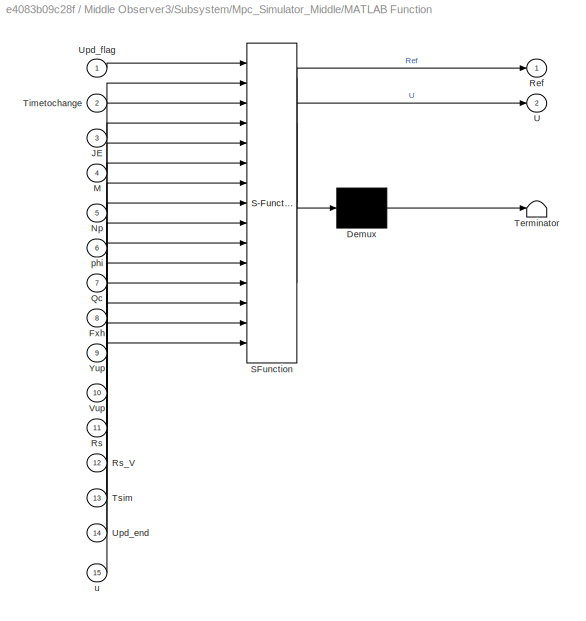
BLOCK [SubSystem] Middle Observer3/Subsystem/Mpc_Simulator_Middle/MATLAB Function
  ErrorFcn = Stateflow.Translate.translate
  PermitHierarchicalResolution = ExplicitOnly
  Ports = [15, 2]
  RequestExecContextInheritance = off
  SFBlockType = MATLAB Function
  SystemSampleTime = Ts
  TreatAsAtomicUnit = on
BLOCK [Demux] Middle Observer3/Subsystem/Mpc_Simulator_Middle/MATLAB Function/ Demux 
  Outputs = 1
  Ports = [1, 1]
BLOCK [S-Function] Middle Observer3/Subsystem/Mpc_Simulator_Middle/MATLAB Function/ SFunction 
  EnableBusSupport = off
  FunctionName = sf_sfun
  PortCounts = [15 3]
  Ports = [15, 3]
  SFcnIsStateOwnerBlock = off
  SFunctionDeploymentMode = off
  Tag = Stateflow S-Function 31
BLOCK [Terminator] Middle Observer3/Subsystem/Mpc_Simulator_Middle/MATLAB Function/ Terminator 
BLOCK [Inport] Middle Observer3/Subsystem/Mpc_Simulator_Middle/MATLAB Function/Fxh
  IconDisplay = Port number
  Port = 8
BLOCK [Inport] Middle Observer3/Subsystem/Mpc_Simulator_Middle/MATLAB Function/JE
  IconDisplay = Port number
  Port = 3
BLOCK [Inport] Middle Observer3/Subsystem/Mpc_Simulator_Middle/MATLAB Function/M
  IconDisplay = Port number
  Port = 4
BLOCK [Inport] Middle Observer3/Subsystem/Mpc_Simulator_Middle/MATLAB Function/Np
  IconDisplay = Port number
  Port = 5
BLOCK [Inport] Middle Observer3/Subsystem/Mpc_Simulator_Middle/MATLAB Function/Qc
  IconDisplay = Port number
  Port = 7
BLOCK [Outport] Middle Observer3/Subsystem/Mpc_Simulator_Middle/MATLAB Function/Ref
  IconDisplay = Port number
  VectorParamsAs1DForOutWhenUnconnected = off
BLOCK [Inport] Middle Observer3/Subsystem/Mpc_Simulator_Middle/MATLAB Function/Rs
  IconDisplay = Port number
  Port = 11
BLOCK [Inport] Middle Observer3/Subsystem/Mpc_Simulator_Middle/MATLAB Function/Rs_V
  IconDisplay = Port number
  Port = 12
BLOCK [Inport] Middle Observer3/Subsystem/Mpc_Simulator_Middle/MATLAB Function/Timetochange
  IconDisplay = Port number
  Port = 2
BLOCK [Inport] Middle Observer3/Subsystem/Mpc_Simulator_Middle/MATLAB Function/Tsim
  IconDisplay = Port number
  Port = 13
BLOCK [Outport] Middle Observer3/Subsystem/Mpc_Simulator_Middle/MATLAB Function/U
  IconDisplay = Port number
  Port = 2
  VectorParamsAs1DForOutWhenUnconnected = off
BLOCK [Inport] Middle Observer3/Subsystem/Mpc_Simulator_Middle/MATLAB Function/Upd_end
  IconDisplay = Port number
  Port = 14
BLOCK [Inport] Middle Observer3/Subsystem/Mpc_Simulator_Middle/MATLAB Function/Upd_flag
  IconDisplay = Port number
BLOCK [Inport] Middle Observer3/Subsystem/Mpc_Simulator_Middle/MATLAB Function/Vup
  IconDisplay = Port number
  Port = 10
BLOCK [Inport] Middle Observer3/Subsystem/Mpc_Simulator_Middle/MATLAB Function/Yup
  IconDisplay = Port number
  Port = 9
BLOCK [Inport] Middle Observer3/Subsystem/Mpc_Simulator_Middle/MATLAB Function/phi
  IconDisplay = Port number
  Port = 6
BLOCK [Inport] Middle Observer3/Subsystem/Mpc_Simulator_Middle/MATLAB Function/u
  IconDisplay = Port number
  Port = 15
BLOCK [Outport] Middle Observer3/Subsystem/Mpc_Simulator_Middle/Ref
  IconDisplay = Port number
  Port = 2
  VectorParamsAs1DForOutWhenUnconnected = off
BLOCK [Inport] Middle Observer3/Subsystem/Mpc_Simulator_Middle/Rs
  IconDisplay = Port number
  LockScale = on
  Port = 4
  SampleTime = Ts
  VarSizeSig = No
BLOCK [Inport] Middle Observer3/Subsystem/Mpc_Simulator_Middle/Rs_V
  IconDisplay = Port number
  LockScale = on
  Port = 3
  SampleTime = Ts
  VarSizeSig = No
BLOCK [Outport] Middle Observer3/Subsystem/Mpc_Simulator_Middle/U
  IconDisplay = Port number
  VectorParamsAs1DForOutWhenUnconnected = off
BLOCK [UnitDelay] Middle Observer3/Subsystem/Mpc_Simulator_Middle/Unit Delay
  HasFrameUpgradeWarning = on
  InitialCondition = [0;0]
  SampleTime = Ts
BLOCK [Inport] Middle Observer3/Subsystem/Mpc_Simulator_Middle/Vup
  IconDisplay = Port number
  LockScale = on
  SampleTime = Ts
  VarSizeSig = No
BLOCK [Inport] Middle Observer3/Subsystem/Mpc_Simulator_Middle/Xh_sim
  IconDisplay = Port number
  Port = 5
BLOCK [Inport] Middle Observer3/Subsystem/Mpc_Simulator_Middle/Yup
  IconDisplay = Port number
  LockScale = on
  Port = 2
  SampleTime = Ts
  VarSizeSig = No
BLOCK [SubSystem] Middle Observer3/Subsystem/Pose updete k
  Commented = on
  Ports = [3, 2]
  RequestExecContextInheritance = off
BLOCK [Clock] Middle Observer3/Subsystem/Pose updete k/Clock
BLOCK [FromWorkspace] Middle Observer3/Subsystem/Pose updete k/From Workspace
  SampleTime = Ts
  VariableName = Rs_V_now
  ZeroCross = on
BLOCK [FromWorkspace] Middle Observer3/Subsystem/Pose updete k/From Workspace1
  SampleTime = Ts
  VariableName = Rs_Y_now
  ZeroCross = on
BLOCK [FromWorkspace] Middle Observer3/Subsystem/Pose updete k/From Workspace2
  SampleTime = Ts
  VariableName = XYplot_X
  ZeroCross = on
BLOCK [FromWorkspace] Middle Observer3/Subsystem/Pose updete k/From Workspace3
  SampleTime = Ts
  VariableName = XYplot_Y
  ZeroCross = on
BLOCK [Inport] Middle Observer3/Subsystem/Pose updete k/Heading_sim
  IconDisplay = Port number
  Port = 3
BLOCK [Outport] Middle Observer3/Subsystem/Pose updete k/Heading_updated
  IconDisplay = Port number
  Port = 2
  VectorParamsAs1DForOutWhenUnconnected = off
BLOCK [Mux] Middle Observer3/Subsystem/Pose updete k/Mux
  DisplayOption = bar
  Inputs = 2
  Ports = [2, 1]
BLOCK [Reshape] Middle Observer3/Subsystem/Pose updete k/Reshape
  OutputDimensionality = Customize
  OutputDimensions = [pick_num,2]
  Ports = [1, 1]
BLOCK [Constant] Middle Observer3/Subsystem/Pose updete k/Trajectroy
  SampleTime = -1
  Value = XYplot
  VectorParams1D = off
BLOCK [UnitDelay] Middle Observer3/Subsystem/Pose updete k/Unit Delay
  HasFrameUpgradeWarning = on
  SampleTime = Ts
BLOCK [UnitDelay] Middle Observer3/Subsystem/Pose updete k/Unit Delay1
  HasFrameUpgradeWarning = on
  SampleTime = Ts
BLOCK [UnitDelay] Middle Observer3/Subsystem/Pose updete k/Unit Delay2
  HasFrameUpgradeWarning = on
  SampleTime = Ts
BLOCK [UnitDelay] Middle Observer3/Subsystem/Pose updete k/Unit Delay3
  HasFrameUpgradeWarning = on
  SampleTime = Ts
BLOCK [SubSystem] Middle Observer3/Subsystem/Pose updete k/Update
  ErrorFcn = Stateflow.Translate.translate
  PermitHierarchicalResolution = ExplicitOnly
  Ports = [12, 3]
  RTWFcnNameOpts = Use subsystem name
  RequestExecContextInheritance = off
  SFBlockType = MATLAB Function
  SystemSampleTime = Ts
  TreatAsAtomicUnit = on
BLOCK [Demux] Middle Observer3/Subsystem/Pose updete k/Update/ Demux 
  Outputs = 1
  Ports = [1, 1]
BLOCK [S-Function] Middle Observer3/Subsystem/Pose updete k/Update/ SFunction 
  EnableBusSupport = off
  FunctionName = sf_sfun
  PortCounts = [12 4]
  Ports = [12, 4]
  SFcnIsStateOwnerBlock = off
  SFunctionDeploymentMode = off
  Tag = Stateflow S-Function 32
BLOCK [Terminator] Middle Observer3/Subsystem/Pose updete k/Update/ Terminator 
BLOCK [Outport] Middle Observer3/Subsystem/Pose updete k/Update/Heading_end
  IconDisplay = Port number
  Port = 3
  VectorParamsAs1DForOutWhenUnconnected = off
BLOCK [Inport] Middle Observer3/Subsystem/Pose updete k/Update/Heading_sim
  IconDisplay = Port number
  Port = 9
BLOCK [Outport] Middle Observer3/Subsystem/Pose updete k/Update/Heading_updated
  IconDisplay = Port number
  Port = 2
  VectorParamsAs1DForOutWhenUnconnected = off
BLOCK [Inport] Middle Observer3/Subsystem/Pose updete k/Update/Last_Heading_end
  IconDisplay = Port number
  Port = 12
BLOCK [Inport] Middle Observer3/Subsystem/Pose updete k/Update/Last_Heading_sim
  IconDisplay = Port number
  Port = 10
BLOCK [Inport] Middle Observer3/Subsystem/Pose updete k/Update/Last_Velocity_sim
  IconDisplay = Port number
  Port = 8
BLOCK [Inport] Middle Observer3/Subsystem/Pose updete k/Update/Last_XYplot_sim
  IconDisplay = Port number
  Port = 6
BLOCK [Inport] Middle Observer3/Subsystem/Pose updete k/Update/Rs_V_now
  IconDisplay = Port number
BLOCK [Inport] Middle Observer3/Subsystem/Pose updete k/Update/Rs_Y_now
  IconDisplay = Port number
  Port = 2
BLOCK [Inport] Middle Observer3/Subsystem/Pose updete k/Update/Tsim
  IconDisplay = Port number
  Port = 11
BLOCK [Inport] Middle Observer3/Subsystem/Pose updete k/Update/Velocity_sim
  IconDisplay = Port number
  Port = 7
BLOCK [Outport] Middle Observer3/Subsystem/Pose updete k/Update/Velocity_updated
  IconDisplay = Port number
  VectorParamsAs1DForOutWhenUnconnected = off
BLOCK [Inport] Middle Observer3/Subsystem/Pose updete k/Update/XYline
  IconDisplay = Port number
  Port = 3
BLOCK [Inport] Middle Observer3/Subsystem/Pose updete k/Update/XYplot
  IconDisplay = Port number
  Port = 4
BLOCK [Inport] Middle Observer3/Subsystem/Pose updete k/Update/XYplot_sim
  IconDisplay = Port number
  Port = 5
BLOCK [Inport] Middle Observer3/Subsystem/Pose updete k/Velocity_sim
  IconDisplay = Port number
  Port = 2
BLOCK [Outport] Middle Observer3/Subsystem/Pose updete k/Velocity_updated
  IconDisplay = Port number
  VectorParamsAs1DForOutWhenUnconnected = off
BLOCK [Inport] Middle Observer3/Subsystem/Pose updete k/XYplot_sim
  IconDisplay = Port number
BLOCK [Inport] Middle Observer3/Subsystem/Rs
  IconDisplay = Port number
BLOCK [Sum] Middle Observer3/Subsystem/Sum1
  IconShape = round
  InputSameDT = off
  Inputs = +++
  OutDataTypeStr = Inherit: Inherit via internal rule
  Ports = [3, 1]
  SaturateOnIntegerOverflow = off
BLOCK [Sum] Middle Observer3/Subsystem/Sum2
  IconShape = round
  InputSameDT = off
  Inputs = +++
  OutDataTypeStr = Inherit: Inherit via internal rule
  Ports = [3, 1]
  SaturateOnIntegerOverflow = off
BLOCK [Sum] Middle Observer3/Subsystem/Sum6
  IconShape = round
  InputSameDT = off
  OutDataTypeStr = Inherit: Inherit via internal rule
  Ports = [2, 1]
  SaturateOnIntegerOverflow = off
BLOCK [Sum] Middle Observer3/Subsystem/Sum7
  IconShape = round
  InputSameDT = off
  Inputs = -+
  OutDataTypeStr = Inherit: Inherit via internal rule
  Ports = [2, 1]
  SaturateOnIntegerOverflow = off
BLOCK [ToWorkspace] Middle Observer3/Subsystem/To Workspace1
  FixptAsFi = on
  MaxDataPoints = inf
  Ports = [1]
  SampleTime = Ts
  VariableName = observer_simulator_p_m
BLOCK [ToWorkspace] Middle Observer3/Subsystem/To Workspace2
  FixptAsFi = on
  MaxDataPoints = inf
  Ports = [1]
  SampleTime = Ts
  VariableName = observer_simulator_xstate
BLOCK [Outport] Middle Observer3/Subsystem/U
  IconDisplay = Port number
  Port = 2
  VectorParamsAs1DForOutWhenUnconnected = off
BLOCK [Inport] Middle Observer3/Subsystem/U_delay
  IconDisplay = Port number
  Port = 2
BLOCK [SubSystem] Middle Observer3/Subsystem/VH2P
  Ports = [6, 1]
  RequestExecContextInheritance = off
BLOCK [Delay] Middle Observer3/Subsystem/VH2P/Delay1
  DelayLength = 1
  ExternalReset = Rising
  InitialCondition = 0
  InitialConditionSource = Input port
  InputPortMap = u0,r5,p4
  Ports = [3, 1]
  SampleTime = Ts
BLOCK [Delay] Middle Observer3/Subsystem/VH2P/Delay2
  DelayLength = 1
  ExternalReset = Rising
  InitialCondition = 0
  InitialConditionSource = Input port
  InputPortMap = u0,r5,p4
  Ports = [3, 1]
  SampleTime = Ts
BLOCK [Delay] Middle Observer3/Subsystem/VH2P/Delay3
  DelayLength = 1
  ExternalReset = Rising
  InitialCondition = 0
  InitialConditionSource = Input port
  InputPortMap = u0,r5,p4
  Ports = [3, 1]
  SampleTime = Ts
BLOCK [FromWorkspace] Middle Observer3/Subsystem/VH2P/From Workspace
  SampleTime = Ts
  VariableName = T_sim
  ZeroCross = on
BLOCK [Inport] Middle Observer3/Subsystem/VH2P/HeadingAngles
  IconDisplay = Port number
  Port = 2
BLOCK [Inport] Middle Observer3/Subsystem/VH2P/Iintial HeadingAngles
  IconDisplay = Port number
  Port = 5
BLOCK [Inport] Middle Observer3/Subsystem/VH2P/Iintial Velocities
  IconDisplay = Port number
  Port = 4
BLOCK [Inport] Middle Observer3/Subsystem/VH2P/Initial position
  IconDisplay = Port number
  Port = 3
BLOCK [Inport] Middle Observer3/Subsystem/VH2P/Initial position1
  IconDisplay = Port number
  Port = 6
BLOCK [SubSystem] Middle Observer3/Subsystem/VH2P/MATLAB Function
  ErrorFcn = Stateflow.Translate.translate
  PermitHierarchicalResolution = ExplicitOnly
  Ports = [1, 1]
  RequestExecContextInheritance = off
  SFBlockType = MATLAB Function
  TreatAsAtomicUnit = on
BLOCK [Demux] Middle Observer3/Subsystem/VH2P/MATLAB Function/ Demux 
  Outputs = 1
  Ports = [1, 1]
BLOCK [S-Function] Middle Observer3/Subsystem/VH2P/MATLAB Function/ SFunction 
  EnableBusSupport = off
  FunctionName = sf_sfun
  PortCounts = [1 2]
  Ports = [1, 2]
  SFcnIsStateOwnerBlock = off
  SFunctionDeploymentMode = off
  Tag = Stateflow S-Function 48
BLOCK [Terminator] Middle Observer3/Subsystem/VH2P/MATLAB Function/ Terminator 
BLOCK [Inport] Middle Observer3/Subsystem/VH2P/MATLAB Function/select_model
  IconDisplay = Port number
BLOCK [Outport] Middle Observer3/Subsystem/VH2P/MATLAB Function/tri
  IconDisplay = Port number
  VectorParamsAs1DForOutWhenUnconnected = off
BLOCK [Outport] Middle Observer3/Subsystem/VH2P/Position
  IconDisplay = Port number
  VectorParamsAs1DForOutWhenUnconnected = off
BLOCK [UnitDelay] Middle Observer3/Subsystem/VH2P/Unit Delay3
  HasFrameUpgradeWarning = on
  SampleTime = Ts
BLOCK [Inport] Middle Observer3/Subsystem/VH2P/Velocities
  IconDisplay = Port number
BLOCK [SubSystem] Middle Observer3/Subsystem/VH2P/YV2P
  ErrorFcn = Stateflow.Translate.translate
  PermitHierarchicalResolution = ExplicitOnly
  Ports = [7, 1]
  RequestExecContextInheritance = off
  SFBlockType = MATLAB Function
  SystemSampleTime = Ts
  TreatAsAtomicUnit = on
BLOCK [Demux] Middle Observer3/Subsystem/VH2P/YV2P/ Demux 
  Outputs = 1
  Ports = [1, 1]
BLOCK [S-Function] Middle Observer3/Subsystem/VH2P/YV2P/ SFunction 
  EnableBusSupport = off
  FunctionName = sf_sfun
  PortCounts = [7 2]
  Ports = [7, 2]
  SFcnIsStateOwnerBlock = off
  SFunctionDeploymentMode = off
  Tag = Stateflow S-Function 34
BLOCK [Terminator] Middle Observer3/Subsystem/VH2P/YV2P/ Terminator 
BLOCK [Inport] Middle Observer3/Subsystem/VH2P/YV2P/LastTsim
  IconDisplay = Port number
  Port = 6
BLOCK [Inport] Middle Observer3/Subsystem/VH2P/YV2P/LastVelocity
  IconDisplay = Port number
  Port = 3
BLOCK [Inport] Middle Observer3/Subsystem/VH2P/YV2P/LastYaw
  IconDisplay = Port number
  Port = 4
BLOCK [Inport] Middle Observer3/Subsystem/VH2P/YV2P/Lastpostion
  IconDisplay = Port number
  Port = 7
BLOCK [Outport] Middle Observer3/Subsystem/VH2P/YV2P/Position
  IconDisplay = Port number
  VectorParamsAs1DForOutWhenUnconnected = off
BLOCK [Inport] Middle Observer3/Subsystem/VH2P/YV2P/Tsim
  IconDisplay = Port number
  Port = 5
BLOCK [Inport] Middle Observer3/Subsystem/VH2P/YV2P/Velocity
  IconDisplay = Port number
BLOCK [Inport] Middle Observer3/Subsystem/VH2P/YV2P/Yaw
  IconDisplay = Port number
  Port = 2
BLOCK [Outport] Middle Observer3/Subsystem/Y
  IconDisplay = Port number
  VectorParamsAs1DForOutWhenUnconnected = off
BLOCK [SubSystem] Middle Observer3/Subsystem/YV_update_Np
  Ports = [3, 2]
  RequestExecContextInheritance = off
  TreatAsAtomicUnit = on
BLOCK [FromWorkspace] Middle Observer3/Subsystem/YV_update_Np/From Workspace1
  SampleTime = Ts
  VariableName = T_sim
  ZeroCross = on
BLOCK [FromWorkspace] Middle Observer3/Subsystem/YV_update_Np/From Workspace3
  SampleTime = Ts
  VariableName = XY_Ref_Upd
  ZeroCross = on
BLOCK [Outport] Middle Observer3/Subsystem/YV_update_Np/Heading angle
  IconDisplay = Port number
  Port = 2
  VectorParamsAs1DForOutWhenUnconnected = off
BLOCK [Inport] Middle Observer3/Subsystem/YV_update_Np/Heading_sim
  IconDisplay = Port number
  Port = 3
BLOCK [SubSystem] Middle Observer3/Subsystem/YV_update_Np/MATLAB Function2
  ErrorFcn = Stateflow.Translate.translate
  PermitHierarchicalResolution = ExplicitOnly
  Ports = [8, 2]
  RequestExecContextInheritance = off
  SFBlockType = MATLAB Function
  SystemSampleTime = Ts
  TreatAsAtomicUnit = on
BLOCK [Demux] Middle Observer3/Subsystem/YV_update_Np/MATLAB Function2/ Demux 
  Outputs = 1
  Ports = [1, 1]
BLOCK [S-Function] Middle Observer3/Subsystem/YV_update_Np/MATLAB Function2/ SFunction 
  EnableBusSupport = off
  FunctionName = sf_sfun
  PortCounts = [8 3]
  Ports = [8, 3]
  SFcnIsStateOwnerBlock = off
  SFunctionDeploymentMode = off
  Tag = Stateflow S-Function 35
BLOCK [Terminator] Middle Observer3/Subsystem/YV_update_Np/MATLAB Function2/ Terminator 
BLOCK [Outport] Middle Observer3/Subsystem/YV_update_Np/MATLAB Function2/Heading_updated
  IconDisplay = Port number
  Port = 2
  VectorParamsAs1DForOutWhenUnconnected = off
BLOCK [Inport] Middle Observer3/Subsystem/YV_update_Np/MATLAB Function2/LastVelocity_sim
  IconDisplay = Port number
  Port = 5
BLOCK [Inport] Middle Observer3/Subsystem/YV_update_Np/MATLAB Function2/LastXY_sim
  IconDisplay = Port number
  Port = 3
BLOCK [Inport] Middle Observer3/Subsystem/YV_update_Np/MATLAB Function2/LastYaw_sim
  IconDisplay = Port number
  Port = 7
BLOCK [Inport] Middle Observer3/Subsystem/YV_update_Np/MATLAB Function2/Tsim
  IconDisplay = Port number
  Port = 8
BLOCK [Inport] Middle Observer3/Subsystem/YV_update_Np/MATLAB Function2/Velocity_sim
  IconDisplay = Port number
  Port = 4
BLOCK [Outport] Middle Observer3/Subsystem/YV_update_Np/MATLAB Function2/Velocity_updated
  IconDisplay = Port number
  VectorParamsAs1DForOutWhenUnconnected = off
BLOCK [Inport] Middle Observer3/Subsystem/YV_update_Np/MATLAB Function2/XY_ref
  IconDisplay = Port number
BLOCK [Inport] Middle Observer3/Subsystem/YV_update_Np/MATLAB Function2/XY_sim
  IconDisplay = Port number
  Port = 2
BLOCK [Inport] Middle Observer3/Subsystem/YV_update_Np/MATLAB Function2/Yaw_sim
  IconDisplay = Port number
  Port = 6
BLOCK [UnitDelay] Middle Observer3/Subsystem/YV_update_Np/Unit Delay1
  HasFrameUpgradeWarning = on
  SampleTime = Ts
BLOCK [UnitDelay] Middle Observer3/Subsystem/YV_update_Np/Unit Delay4
  HasFrameUpgradeWarning = on
  SampleTime = Ts
BLOCK [UnitDelay] Middle Observer3/Subsystem/YV_update_Np/Unit Delay5
  HasFrameUpgradeWarning = on
  SampleTime = Ts
BLOCK [Outport] Middle Observer3/Subsystem/YV_update_Np/Velocity
  IconDisplay = Port number
  VectorParamsAs1DForOutWhenUnconnected = off
BLOCK [Inport] Middle Observer3/Subsystem/YV_update_Np/Velocity_sim
  IconDisplay = Port number
  Port = 2
BLOCK [Inport] Middle Observer3/Subsystem/YV_update_Np/XY_sim
  IconDisplay = Port number
BLOCK [Inport] Middle Observer3/Subsystem/r(k)
  IconDisplay = Port number
  Port = 3
BLOCK [Inport] Middle Observer3/Subsystem/r(k-1)
  IconDisplay = Port number
  Port = 4
BLOCK [Inport] Middle Observer3/Subsystem/select_model
  IconDisplay = Port number
  Port = 9
BLOCK [Inport] Middle Observer3/Subsystem/xhat
  IconDisplay = Port number
  Port = 8
BLOCK [Sum] Middle Observer3/Sum4
  IconShape = round
  InputSameDT = off
  Inputs = +++
  OutDataTypeStr = Inherit: Inherit via internal rule
  Ports = [3, 1]
  SaturateOnIntegerOverflow = off
BLOCK [Switch] Middle Observer3/Switch
  InputSameDT = off
  SaturateOnIntegerOverflow = off
  Threshold = 2
BLOCK [Switch] Middle Observer3/Switch1
  InputSameDT = off
  SaturateOnIntegerOverflow = off
  Threshold = 2
BLOCK [ToWorkspace] Middle Observer3/To Workspace1
  FixptAsFi = on
  MaxDataPoints = inf
  Ports = [1]
  SampleTime = Ts
  VariableName = observer_simulator_xhstate2
BLOCK [ToWorkspace] Middle Observer3/To Workspace2
  FixptAsFi = on
  MaxDataPoints = inf
  Ports = [1]
  SampleTime = Ts
  VariableName = observer_simulator_u2
BLOCK [Inport] Middle Observer3/U
  IconDisplay = Port number
BLOCK [Inport] Middle Observer3/U_delay
  IconDisplay = Port number
  Port = 5
BLOCK [Inport] Middle Observer3/Y
  IconDisplay = Port number
  Port = 2
BLOCK [Inport] Middle Observer3/r(k)
  IconDisplay = Port number
  Port = 7
BLOCK [Inport] Middle Observer3/r(k-1)
  IconDisplay = Port number
  Port = 6
BLOCK [Inport] Middle Observer3/select_model
  IconDisplay = Port number
  Port = 10
BLOCK [Inport] Middle Observer3/select_model1
  IconDisplay = Port number
  Port = 11
BLOCK [Outport] Middle Observer3/u_delay
  IconDisplay = Port number
  Port = 3
  VectorParamsAs1DForOutWhenUnconnected = off
BLOCK [Outport] Middle Observer3/xhat
  IconDisplay = Port number
  Port = 4
  VectorParamsAs1DForOutWhenUnconnected = off
BLOCK [Outport] Middle Observer3/xhat_delay
  IconDisplay = Port number
  Port = 2
  VectorParamsAs1DForOutWhenUnconnected = off
BLOCK [Outport] Middle Observer3/yhat
  IconDisplay = Port number
  VectorParamsAs1DForOutWhenUnconnected = off
BLOCK [SubSystem] Mpc_block
  Ports = [5, 3]
  RequestExecContextInheritance = off
  SystemSampleTime = Ts
  TreatAsAtomicUnit = on
BLOCK [Constant] Mpc_block/Constant
  SampleTime = -1
  Value = JE
  VectorParams1D = off
BLOCK [Constant] Mpc_block/Constant1
  SampleTime = -1
  Value = M
  VectorParams1D = off
BLOCK [Constant] Mpc_block/Constant12
  SampleTime = -1
  Value = JE_Brake
  VectorParams1D = off
BLOCK [Constant] Mpc_block/Constant13
  SampleTime = -1
  Value = JF_part_Brake
  VectorParams1D = off
BLOCK [Constant] Mpc_block/Constant15
  SampleTime = -1
  Value = Upd_end
  VectorParams1D = off
BLOCK [Constant] Mpc_block/Constant16
  SampleTime = -1
  Value = U_max
  VectorParams1D = off
BLOCK [Constant] Mpc_block/Constant2
  SampleTime = -1
  Value = Np
BLOCK [Constant] Mpc_block/Constant3
  SampleTime = -1
  Value = JF_part
  VectorParams1D = off
BLOCK [Constant] Mpc_block/Constant4
  SampleTime = -1
  Value = U_min
  VectorParams1D = off
BLOCK [Constant] Mpc_block/Constant5
  SampleTime = -1
  Value = JF_parts
  VectorParams1D = off
BLOCK [Constant] Mpc_block/Constant6
  SampleTime = -1
  Value = JEs
  VectorParams1D = off
BLOCK [Constant] Mpc_block/Constant7
  SampleTime = -1
  Value = JE_Final
  VectorParams1D = off
BLOCK [Constant] Mpc_block/Constant8
  SampleTime = -1
  Value = JF_part_Final
  VectorParams1D = off
BLOCK [DigitalClock] Mpc_block/Digital Clock
  SampleTime = Ts
BLOCK [Gain] Mpc_block/F
  Gain = F
  Multiplication = Matrix(K*u) (u vector)
  OutDataTypeStr = Inherit: Inherit via internal rule
  ParamDataTypeStr = Inherit: Inherit via internal rule
  SaturateOnIntegerOverflow = off
BLOCK [Gain] Mpc_block/F1
  Gain = F_Final
  Multiplication = Matrix(K*u) (u vector)
  OutDataTypeStr = Inherit: Inherit via internal rule
  ParamDataTypeStr = Inherit: Inherit via internal rule
  SaturateOnIntegerOverflow = off
BLOCK [Gain] Mpc_block/F_Brake
  Gain = F_Brake
  Multiplication = Matrix(K*u) (u vector)
  OutDataTypeStr = Inherit: Inherit via internal rule
  ParamDataTypeStr = Inherit: Inherit via internal rule
  SaturateOnIntegerOverflow = off
BLOCK [Gain] Mpc_block/Fs
  Gain = Fs
  Multiplication = Matrix(K*u) (u vector)
  OutDataTypeStr = Inherit: Inherit via internal rule
  ParamDataTypeStr = Inherit: Inherit via internal rule
  SaturateOnIntegerOverflow = off
BLOCK [Inport] Mpc_block/Heading_updated
  IconDisplay = Port number
  LockScale = on
  Port = 3
  SampleTime = Ts
BLOCK [Outport] Mpc_block/Lambda
  IconDisplay = Port number
  Port = 3
  VectorParamsAs1DForOutWhenUnconnected = off
BLOCK [SubSystem] Mpc_block/Mpc
  ErrorFcn = Stateflow.Translate.translate
  PermitHierarchicalResolution = ExplicitOnly
  Ports = [13, 3]
  RequestExecContextInheritance = off
  SFBlockType = MATLAB Function
  SystemSampleTime = Ts
  TreatAsAtomicUnit = on
BLOCK [Demux] Mpc_block/Mpc/ Demux 
  Outputs = 1
  Ports = [1, 1]
BLOCK [S-Function] Mpc_block/Mpc/ SFunction 
  EnableBusSupport = off
  FunctionName = sf_sfun
  PortCounts = [13 4]
  Ports = [13, 4]
  SFcnIsStateOwnerBlock = off
  SFunctionDeploymentMode = off
  Tag = Stateflow S-Function 1
BLOCK [Terminator] Mpc_block/Mpc/ Terminator 
BLOCK [Inport] Mpc_block/Mpc/Fxh
  IconDisplay = Port number
  Port = 4
BLOCK [Inport] Mpc_block/Mpc/Heading_updated
  IconDisplay = Port number
  Port = 9
BLOCK [Inport] Mpc_block/Mpc/JE
  IconDisplay = Port number
  Port = 2
BLOCK [Inport] Mpc_block/Mpc/JF_part
  IconDisplay = Port number
  Port = 3
BLOCK [Inport] Mpc_block/Mpc/M
  IconDisplay = Port number
  Port = 5
BLOCK [Inport] Mpc_block/Mpc/Np
  IconDisplay = Port number
  Port = 6
BLOCK [Inport] Mpc_block/Mpc/Rs
  IconDisplay = Port number
  Port = 11
BLOCK [Inport] Mpc_block/Mpc/Tsim
  IconDisplay = Port number
  Port = 12
BLOCK [Outport] Mpc_block/Mpc/U
  IconDisplay = Port number
  VectorParamsAs1DForOutWhenUnconnected = off
BLOCK [Inport] Mpc_block/Mpc/U_delay
  IconDisplay = Port number
BLOCK [Inport] Mpc_block/Mpc/U_max
  IconDisplay = Port number
  Port = 8
BLOCK [Inport] Mpc_block/Mpc/U_min
  IconDisplay = Port number
  Port = 7
BLOCK [Inport] Mpc_block/Mpc/Upd_end
  IconDisplay = Port number
  Port = 13
BLOCK [Inport] Mpc_block/Mpc/Velocity_updated
  IconDisplay = Port number
  Port = 10
BLOCK [Outport] Mpc_block/Mpc/lambda
  IconDisplay = Port number
  Port = 3
  VectorParamsAs1DForOutWhenUnconnected = off
BLOCK [Outport] Mpc_block/Mpc/r
  IconDisplay = Port number
  Port = 2
  VectorParamsAs1DForOutWhenUnconnected = off
BLOCK [MultiPortSwitch] Mpc_block/Multiport Switch
  InputSameDT = off
  Inputs = 4
  Ports = [5, 1]
  SaturateOnIntegerOverflow = off
BLOCK [MultiPortSwitch] Mpc_block/Multiport Switch1
  InputSameDT = off
  Inputs = 4
  Ports = [5, 1]
  SaturateOnIntegerOverflow = off
BLOCK [MultiPortSwitch] Mpc_block/Multiport Switch2
  InputSameDT = off
  Inputs = 4
  Ports = [5, 1]
  SaturateOnIntegerOverflow = off
BLOCK [Inport] Mpc_block/Rs
  IconDisplay = Port number
  LockScale = on
  SampleTime = Ts
  VarSizeSig = No
BLOCK [Outport] Mpc_block/U
  IconDisplay = Port number
  VectorParamsAs1DForOutWhenUnconnected = off
BLOCK [UnitDelay] Mpc_block/Unit Delay
  HasFrameUpgradeWarning = on
  InitialCondition = [0;0]
  SampleTime = Ts
BLOCK [Inport] Mpc_block/Velocity_updated
  IconDisplay = Port number
  Port = 2
  SampleTime = Ts
BLOCK [Inport] Mpc_block/Xh
  IconDisplay = Port number
  Port = 4
BLOCK [Outport] Mpc_block/r
  IconDisplay = Port number
  Port = 2
  VectorParamsAs1DForOutWhenUnconnected = off
BLOCK [Inport] Mpc_block/select_MPC
  IconDisplay = Port number
  Port = 5
BLOCK [Mux] Mux
  DisplayOption = bar
  Inputs = 2
  Ports = [2, 1]
BLOCK [Mux] Mux1
  DisplayOption = bar
  Inputs = 3
  Ports = [3, 1]
BLOCK [SubSystem] Passenger Vehicle
  Ports = [3, 4]
  RequestExecContextInheritance = off
BLOCK [SubSystem] Passenger Vehicle/Body, Suspension, Wheels
  LabelModeActiveChoice = 3
  Ports = [6, 15]
  RequestExecContextInheritance = off
  Variant = on
  VariantControlMode = Label
BLOCK [Outport] Passenger Vehicle/Body, Suspension, Wheels/Alpha
  IconDisplay = Port number
  Port = 12
  PortDimensions = 4
  VectorParamsAs1DForOutWhenUnconnected = off
BLOCK [Inport] Passenger Vehicle/Body, Suspension, Wheels/AxlTrq
  IconDisplay = Port number
  Port = 5
BLOCK [Outport] Passenger Vehicle/Body, Suspension, Wheels/Beta
  IconDisplay = Port number
  Port = 7
  VectorParamsAs1DForOutWhenUnconnected = off
BLOCK [Inport] Passenger Vehicle/Body, Suspension, Wheels/BrkPrs
  IconDisplay = Port number
  Port = 6
BLOCK [Outport] Passenger Vehicle/Body, Suspension, Wheels/CgXYZ
  IconDisplay = Port number
  Port = 2
  VectorParamsAs1DForOutWhenUnconnected = off
BLOCK [Outport] Passenger Vehicle/Body, Suspension, Wheels/CgXYZdot
  IconDisplay = Port number
  Port = 3
  VectorParamsAs1DForOutWhenUnconnected = off
BLOCK [Outport] Passenger Vehicle/Body, Suspension, Wheels/Cgaxyz
  IconDisplay = Port number
  Port = 6
  VectorParamsAs1DForOutWhenUnconnected = off
BLOCK [Outport] Passenger Vehicle/Body, Suspension, Wheels/Cgxyzdot
  IconDisplay = Port number
  VectorParamsAs1DForOutWhenUnconnected = off
BLOCK [Inport] Passenger Vehicle/Body, Suspension, Wheels/Friction
  IconDisplay = Port number
  Port = 3
  PortDimensions = 4
BLOCK [Outport] Passenger Vehicle/Body, Suspension, Wheels/GeomXYZ
  IconDisplay = Port number
  Port = 8
  VectorParamsAs1DForOutWhenUnconnected = off
BLOCK [Outport] Passenger Vehicle/Body, Suspension, Wheels/GeomXYZdot
  IconDisplay = Port number
  Port = 9
  VectorParamsAs1DForOutWhenUnconnected = off
BLOCK [Inport] Passenger Vehicle/Body, Suspension, Wheels/Ground
  IconDisplay = Port number
  Port = 2
  PortDimensions = 4
BLOCK [Outport] Passenger Vehicle/Body, Suspension, Wheels/Kappa
  IconDisplay = Port number
  Port = 11
  PortDimensions = 4
  VectorParamsAs1DForOutWhenUnconnected = off
BLOCK [Outport] Passenger Vehicle/Body, Suspension, Wheels/Omega
  IconDisplay = Port number
  Port = 10
  PortDimensions = 4
  VectorParamsAs1DForOutWhenUnconnected = off
BLOCK [ModelReference] Passenger Vehicle/Body, Suspension, Wheels/PassVeh14DOF
  DisableCoverage = on
  ModelNameDialog = PassVeh14DOF
  ModelReferenceVersion = 1.296
  Ports = [6, 15]
  VariantControl = 3
BLOCK [ModelReference] Passenger Vehicle/Body, Suspension, Wheels/PassVeh7DOF
  DisableCoverage = on
  ModelNameDialog = PassVeh7DOF
  ModelReferenceVersion = 1.144
  Ports = [6, 15]
  VariantControl = 1
BLOCK [Inport] Passenger Vehicle/Body, Suspension, Wheels/WhlAng
  IconDisplay = Port number
  Port = 4
BLOCK [Inport] Passenger Vehicle/Body, Suspension, Wheels/WindXYZ
  IconDisplay = Port number
BLOCK [Outport] Passenger Vehicle/Body, Suspension, Wheels/XWheel
  IconDisplay = Port number
  Port = 13
  VectorParamsAs1DForOutWhenUnconnected = off
BLOCK [Outport] Passenger Vehicle/Body, Suspension, Wheels/YWheel
  IconDisplay = Port number
  Port = 14
  VectorParamsAs1DForOutWhenUnconnected = off
BLOCK [Outport] Passenger Vehicle/Body, Suspension, Wheels/angles
  IconDisplay = Port number
  Port = 4
  VectorParamsAs1DForOutWhenUnconnected = off
BLOCK [Outport] Passenger Vehicle/Body, Suspension, Wheels/dzWheel
  IconDisplay = Port number
  Port = 15
  VectorParamsAs1DForOutWhenUnconnected = off
BLOCK [Outport] Passenger Vehicle/Body, Suspension, Wheels/pqr
  IconDisplay = Port number
  Port = 5
  VectorParamsAs1DForOutWhenUnconnected = off
BLOCK [BusCreator] Passenger Vehicle/Bus Creator2
  DisplayOption = bar
  InheritFromInputs = on
  Inputs = 5
  Ports = [5, 1]
BLOCK [Inport] Passenger Vehicle/Cntrl
  IconDisplay = Port number
  Port = 3
BLOCK [Demux] Passenger Vehicle/Demux1
  DisplayOption = bar
  Outputs = 3
  Ports = [1, 3]
BLOCK [Demux] Passenger Vehicle/Demux2
  DisplayOption = bar
  Outputs = 3
  Ports = [1, 3]
BLOCK [Demux] Passenger Vehicle/Demux3
  DisplayOption = bar
  Outputs = 3
  Ports = [1, 3]
BLOCK [SubSystem] Passenger Vehicle/Engine
  LabelModeActiveChoice = 0
  Ports = [2, 1]
  RequestExecContextInheritance = off
  Variant = on
  VariantControlMode = Label
BLOCK [Inport] Passenger Vehicle/Engine/EngSpd
  IconDisplay = Port number
  Port = 2
  Unit = rad/s
BLOCK [Outport] Passenger Vehicle/Engine/EngTrq
  IconDisplay = Port number
  VectorParamsAs1DForOutWhenUnconnected = off
BLOCK [ModelReference] Passenger Vehicle/Engine/Ideal Mapped Engine
  DisableCoverage = on
  ModelNameDialog = SiMappedEngineV
  ModelReferenceVersion = 1.324
  Ports = [2, 1]
  VariantControl = 0
BLOCK [Inport] Passenger Vehicle/Engine/TrqCmd
  IconDisplay = Port number
BLOCK [Inport] Passenger Vehicle/Env
  IconDisplay = Port number
BLOCK [From] Passenger Vehicle/From
  GotoTag = Driveline
BLOCK [From] Passenger Vehicle/From1
  GotoTag = Wheels
BLOCK [From] Passenger Vehicle/From2
  GotoTag = EngTrq
BLOCK [From] Passenger Vehicle/From3
  GotoTag = Driveline
BLOCK [Goto] Passenger Vehicle/Goto
  GotoTag = Driveline
BLOCK [Goto] Passenger Vehicle/Goto1
  GotoTag = Wheels
BLOCK [Goto] Passenger Vehicle/Goto2
  GotoTag = EngTrq
BLOCK [Mux] Passenger Vehicle/Mux
  DisplayOption = bar
  Inputs = 2
  Ports = [2, 1]
BLOCK [Inport] Passenger Vehicle/Operator
  IconDisplay = Port number
  Port = 2
BLOCK [SubSystem] Passenger Vehicle/Steering, Transmission, Driveline and Brakes
  LabelModeActiveChoice = 0
  Ports = [6, 6]
  RequestExecContextInheritance = off
  Variant = on
  VariantControlMode = Label
BLOCK [Outport] Passenger Vehicle/Steering, Transmission, Driveline and Brakes/AxlTrq
  IconDisplay = Port number
  Port = 2
  VectorParamsAs1DForOutWhenUnconnected = off
BLOCK [Outport] Passenger Vehicle/Steering, Transmission, Driveline and Brakes/BrkPrs
  IconDisplay = Port number
  Port = 3
  PortDimensions = 4
  VectorParamsAs1DForOutWhenUnconnected = off
BLOCK [Inport] Passenger Vehicle/Steering, Transmission, Driveline and Brakes/BrkPrsCmd
  IconDisplay = Port number
  Port = 4
  PortDimensions = 4
BLOCK [Inport] Passenger Vehicle/Steering, Transmission, Driveline and Brakes/DiffPrsCmd
  IconDisplay = Port number
  Port = 6
BLOCK [ModelReference] Passenger Vehicle/Steering, Transmission, Driveline and Brakes/Driveline Ideal Fixed Gear
  DisableCoverage = on
  ModelNameDialog = Driveline
  ModelReferenceVersion = 1.216
  Ports = [6, 6]
  VariantControl = 0
BLOCK [Outport] Passenger Vehicle/Steering, Transmission, Driveline and Brakes/EngSpd
  IconDisplay = Port number
  Port = 4
  Unit = rad/s
  VectorParamsAs1DForOutWhenUnconnected = off
BLOCK [Inport] Passenger Vehicle/Steering, Transmission, Driveline and Brakes/EngTrq
  IconDisplay = Port number
  Port = 2
BLOCK [Inport] Passenger Vehicle/Steering, Transmission, Driveline and Brakes/GearCmd
  IconDisplay = Port number
  OutDataTypeStr = int8
  Port = 3
BLOCK [Inport] Passenger Vehicle/Steering, Transmission, Driveline and Brakes/Omega
  IconDisplay = Port number
  Port = 5
BLOCK [Outport] Passenger Vehicle/Steering, Transmission, Driveline and Brakes/PropShftSpd
  IconDisplay = Port number
  Port = 5
  VectorParamsAs1DForOutWhenUnconnected = off
BLOCK [Inport] Passenger Vehicle/Steering, Transmission, Driveline and Brakes/SteerHWCmd
  IconDisplay = Port number
BLOCK [Outport] Passenger Vehicle/Steering, Transmission, Driveline and Brakes/StrWhlTrq
  IconDisplay = Port number
  Port = 6
  VectorParamsAs1DForOutWhenUnconnected = off
BLOCK [Outport] Passenger Vehicle/Steering, Transmission, Driveline and Brakes/WhlAng
  IconDisplay = Port number
  VectorParamsAs1DForOutWhenUnconnected = off
BLOCK [SubSystem] Passenger Vehicle/Subsystem
  Ports = [2, 6]
  RequestExecContextInheritance = off
BLOCK [Outport] Passenger Vehicle/Subsystem/AxlTrq
  IconDisplay = Port number
  Port = 5
  VectorParamsAs1DForOutWhenUnconnected = off
BLOCK [Outport] Passenger Vehicle/Subsystem/BrkPrs
  IconDisplay = Port number
  Port = 6
  VectorParamsAs1DForOutWhenUnconnected = off
BLOCK [BusSelector] Passenger Vehicle/Subsystem/Bus Selector1
  OutputAsBus = off
  OutputSignals = Gnd.z.G_FL_z,Gnd.z.G_FR_z,Gnd.z.G_RL_z,Gnd.z.G_RR_z
  Ports = [1, 4]
BLOCK [BusSelector] Passenger Vehicle/Subsystem/Bus Selector2
  OutputAsBus = off
  OutputSignals = Wind
  Ports = [1, 1]
BLOCK [BusSelector] Passenger Vehicle/Subsystem/Bus Selector3
  OutputAsBus = off
  OutputSignals = Gnd.mu.mu_FL,Gnd.mu.mu_FR,Gnd.mu.mu_RL,Gnd.mu.mu_RR
  Ports = [1, 4]
BLOCK [BusSelector] Passenger Vehicle/Subsystem/Bus Selector4
  OutputAsBus = off
  OutputSignals = WhlAng,AxlTrq,BrkPrs
  Ports = [1, 3]
BLOCK [Inport] Passenger Vehicle/Subsystem/Driveline
  IconDisplay = Port number
  Port = 2
BLOCK [Inport] Passenger Vehicle/Subsystem/Env
  IconDisplay = Port number
BLOCK [Outport] Passenger Vehicle/Subsystem/Gnd
  IconDisplay = Port number
  Port = 2
  VectorParamsAs1DForOutWhenUnconnected = off
BLOCK [Concatenate] Passenger Vehicle/Subsystem/Vector Concatenate
  NumInputs = 4
  Ports = [4, 1]
BLOCK [Concatenate] Passenger Vehicle/Subsystem/Vector Concatenate1
  NumInputs = 4
  Ports = [4, 1]
BLOCK [Outport] Passenger Vehicle/Subsystem/WhlAng
  IconDisplay = Port number
  Port = 4
  VectorParamsAs1DForOutWhenUnconnected = off
BLOCK [Outport] Passenger Vehicle/Subsystem/Wind
  IconDisplay = Port number
  VectorParamsAs1DForOutWhenUnconnected = off
BLOCK [Outport] Passenger Vehicle/Subsystem/mu
  IconDisplay = Port number
  Port = 3
  VectorParamsAs1DForOutWhenUnconnected = off
BLOCK [SubSystem] Passenger Vehicle/Subsystem1
  Ports = [6, 2]
  RequestExecContextInheritance = off
BLOCK [Inport] Passenger Vehicle/Subsystem1/AxlTrq
  IconDisplay = Port number
  Port = 2
BLOCK [Inport] Passenger Vehicle/Subsystem1/BrkPrs
  IconDisplay = Port number
  Port = 3
BLOCK [BusCreator] Passenger Vehicle/Subsystem1/Bus Creator1
  DisplayOption = bar
  InheritFromInputs = on
  Inputs = 5
  Ports = [5, 1]
BLOCK [BusCreator] Passenger Vehicle/Subsystem1/Bus Creator2
  DisplayOption = bar
  InheritFromInputs = on
  Inputs = 1
  Ports = [1, 1]
BLOCK [Outport] Passenger Vehicle/Subsystem1/Driveline
  IconDisplay = Port number
  VectorParamsAs1DForOutWhenUnconnected = off
BLOCK [Inport] Passenger Vehicle/Subsystem1/EngSpd
  IconDisplay = Port number
  Port = 4
BLOCK [Inport] Passenger Vehicle/Subsystem1/PropShftSpd
  IconDisplay = Port number
  Port = 5
BLOCK [Outport] Passenger Vehicle/Subsystem1/Steering
  IconDisplay = Port number
  Port = 2
  VectorParamsAs1DForOutWhenUnconnected = off
BLOCK [Inport] Passenger Vehicle/Subsystem1/StrWhlTrq
  IconDisplay = Port number
  Port = 6
BLOCK [Inport] Passenger Vehicle/Subsystem1/WhlAng
  IconDisplay = Port number
BLOCK [SubSystem] Passenger Vehicle/Subsystem2
  Ports = [4, 6]
  RequestExecContextInheritance = off
BLOCK [Outport] Passenger Vehicle/Subsystem2/BrkPrsCmd
  IconDisplay = Port number
  Port = 4
  VectorParamsAs1DForOutWhenUnconnected = off
BLOCK [BusSelector] Passenger Vehicle/Subsystem2/Bus Selector1
  OutputAsBus = off
  OutputSignals = SteerCmd
  Ports = [1, 1]
BLOCK [BusSelector] Passenger Vehicle/Subsystem2/Bus Selector2
  OutputAsBus = off
  OutputSignals = Omega
  Ports = [1, 1]
BLOCK [BusSelector] Passenger Vehicle/Subsystem2/Bus Selector3
  OutputAsBus = off
  OutputSignals = Transmission.GearCmd,Brake.BrkPrsCmd,Diff.DiffPrsCmd
  Ports = [1, 3]
BLOCK [BusSelector] Passenger Vehicle/Subsystem2/Bus Selector4
  OutputAsBus = off
  OutputSignals = EngTrq
  Ports = [1, 1]
BLOCK [Inport] Passenger Vehicle/Subsystem2/Cntrl
  IconDisplay = Port number
BLOCK [DataTypeConversion] Passenger Vehicle/Subsystem2/Data Type Conversion
  RndMeth = Floor
  SaturateOnIntegerOverflow = off
BLOCK [Outport] Passenger Vehicle/Subsystem2/DiffPrsCmd
  IconDisplay = Port number
  Port = 6
  VectorParamsAs1DForOutWhenUnconnected = off
BLOCK [Outport] Passenger Vehicle/Subsystem2/EngTrq
  IconDisplay = Port number
  Port = 2
  VectorParamsAs1DForOutWhenUnconnected = off
BLOCK [Inport] Passenger Vehicle/Subsystem2/EngTrqCmd
  IconDisplay = Port number
  Port = 3
BLOCK [Outport] Passenger Vehicle/Subsystem2/GearCmd
  IconDisplay = Port number
  Port = 3
  VectorParamsAs1DForOutWhenUnconnected = off
BLOCK [Outport] Passenger Vehicle/Subsystem2/Omega
  IconDisplay = Port number
  Port = 5
  VectorParamsAs1DForOutWhenUnconnected = off
BLOCK [Outport] Passenger Vehicle/Subsystem2/Steer
  IconDisplay = Port number
  VectorParamsAs1DForOutWhenUnconnected = off
BLOCK [Inport] Passenger Vehicle/Subsystem2/SteerCmd
  IconDisplay = Port number
  Port = 2
BLOCK [Inport] Passenger Vehicle/Subsystem2/Wheels
  IconDisplay = Port number
  Port = 4
BLOCK [SubSystem] Passenger Vehicle/Subsystem3
  Ports = [2, 2]
  RequestExecContextInheritance = off
BLOCK [BusSelector] Passenger Vehicle/Subsystem3/Bus Selector
  OutputAsBus = off
  OutputSignals = ECU.EngTrqCmd
  Ports = [1, 1]
BLOCK [BusSelector] Passenger Vehicle/Subsystem3/Bus Selector1
  OutputAsBus = off
  OutputSignals = EngSpd
  Ports = [1, 1]
BLOCK [Inport] Passenger Vehicle/Subsystem3/Cntrl
  IconDisplay = Port number
BLOCK [Inport] Passenger Vehicle/Subsystem3/Driveline
  IconDisplay = Port number
  Port = 2
BLOCK [Outport] Passenger Vehicle/Subsystem3/EngSpd
  IconDisplay = Port number
  Port = 2
  VectorParamsAs1DForOutWhenUnconnected = off
BLOCK [Outport] Passenger Vehicle/Subsystem3/EngTrqCmd
  IconDisplay = Port number
  VectorParamsAs1DForOutWhenUnconnected = off
BLOCK [SubSystem] Passenger Vehicle/Subsystem4
  Ports = [15, 2]
  RequestExecContextInheritance = off
BLOCK [Inport] Passenger Vehicle/Subsystem4/Alpha
  IconDisplay = Port number
  Port = 12
BLOCK [Inport] Passenger Vehicle/Subsystem4/Beta
  IconDisplay = Port number
  Port = 7
BLOCK [BusCreator] Passenger Vehicle/Subsystem4/Bus Creator
  DisplayOption = bar
  InheritFromInputs = on
  Inputs = 25
  Ports = [25, 1]
BLOCK [BusCreator] Passenger Vehicle/Subsystem4/Bus Creator3
  DisplayOption = bar
  InheritFromInputs = on
  Inputs = 6
  Ports = [6, 1]
BLOCK [Inport] Passenger Vehicle/Subsystem4/CgXYZ
  IconDisplay = Port number
  Port = 2
BLOCK [Inport] Passenger Vehicle/Subsystem4/CgXYZdot
  IconDisplay = Port number
  Port = 3
BLOCK [Inport] Passenger Vehicle/Subsystem4/Cgaxyz
  IconDisplay = Port number
  Port = 6
BLOCK [Inport] Passenger Vehicle/Subsystem4/Cgxyzdot
  IconDisplay = Port number
BLOCK [Outport] Passenger Vehicle/Subsystem4/Chassis
  IconDisplay = Port number
  VectorParamsAs1DForOutWhenUnconnected = off
BLOCK [Demux] Passenger Vehicle/Subsystem4/Demux
  DisplayOption = bar
  Outputs = 3
  Ports = [1, 3]
BLOCK [Demux] Passenger Vehicle/Subsystem4/Demux1
  DisplayOption = bar
  Outputs = 3
  Ports = [1, 3]
BLOCK [Demux] Passenger Vehicle/Subsystem4/Demux2
  DisplayOption = bar
  Outputs = 3
  Ports = [1, 3]
BLOCK [Demux] Passenger Vehicle/Subsystem4/Demux3
  DisplayOption = bar
  Outputs = 3
  Ports = [1, 3]
BLOCK [Demux] Passenger Vehicle/Subsystem4/Demux4
  DisplayOption = bar
  Outputs = 3
  Ports = [1, 3]
BLOCK [Demux] Passenger Vehicle/Subsystem4/Demux5
  DisplayOption = bar
  Outputs = 3
  Ports = [1, 3]
BLOCK [Demux] Passenger Vehicle/Subsystem4/Demux6
  DisplayOption = bar
  Outputs = 3
  Ports = [1, 3]
BLOCK [Demux] Passenger Vehicle/Subsystem4/Demux7
  DisplayOption = bar
  Outputs = 3
  Ports = [1, 3]
BLOCK [Inport] Passenger Vehicle/Subsystem4/GeomXYZ
  IconDisplay = Port number
  Port = 8
BLOCK [Inport] Passenger Vehicle/Subsystem4/GeomXYZdot
  IconDisplay = Port number
  Port = 9
BLOCK [Inport] Passenger Vehicle/Subsystem4/Kappa
  IconDisplay = Port number
  Port = 11
BLOCK [Inport] Passenger Vehicle/Subsystem4/Omega
  IconDisplay = Port number
  Port = 10
BLOCK [Outport] Passenger Vehicle/Subsystem4/Wheels
  IconDisplay = Port number
  Port = 2
  VectorParamsAs1DForOutWhenUnconnected = off
BLOCK [Inport] Passenger Vehicle/Subsystem4/XWheel
  IconDisplay = Port number
  Port = 13
BLOCK [Inport] Passenger Vehicle/Subsystem4/YWheel
  IconDisplay = Port number
  Port = 14
BLOCK [Inport] Passenger Vehicle/Subsystem4/angles
  IconDisplay = Port number
  Port = 4
BLOCK [Inport] Passenger Vehicle/Subsystem4/dzWheel
  IconDisplay = Port number
  Port = 15
BLOCK [Inport] Passenger Vehicle/Subsystem4/pqr
  IconDisplay = Port number
  Port = 5
BLOCK [SubSystem] Passenger Vehicle/Subsystem5
  Ports = [1, 1]
  RequestExecContextInheritance = off
BLOCK [BusCreator] Passenger Vehicle/Subsystem5/Bus Creator
  DisplayOption = bar
  InheritFromInputs = on
  Inputs = 1
  Ports = [1, 1]
BLOCK [Outport] Passenger Vehicle/Subsystem5/Eng
  IconDisplay = Port number
  VectorParamsAs1DForOutWhenUnconnected = off
BLOCK [Inport] Passenger Vehicle/Subsystem5/EngTrq 
  IconDisplay = Port number
BLOCK [Sum] Passenger Vehicle/Sum1
  IconShape = round
  InputSameDT = off
  OutDataTypeStr = Inherit: Inherit via internal rule
  Ports = [2, 1]
  SaturateOnIntegerOverflow = off
BLOCK [ToWorkspace] Passenger Vehicle/To Workspace1
  FixptAsFi = on
  MaxDataPoints = inf
  Ports = [1]
  SampleTime = Ts
  VariableName = yaw_sim
BLOCK [ToWorkspace] Passenger Vehicle/To Workspace3
  FixptAsFi = on
  MaxDataPoints = inf
  Ports = [1]
  SampleTime = Ts
  VariableName = Beta
BLOCK [Outport] Passenger Vehicle/VehFdbk
  IconDisplay = Port number
  VectorParamsAs1DForOutWhenUnconnected = off
BLOCK [Outport] Passenger Vehicle/Velocity
  IconDisplay = Port number
  Port = 2
  VectorParamsAs1DForOutWhenUnconnected = off
BLOCK [Outport] Passenger Vehicle/XY
  IconDisplay = Port number
  Port = 4
  VectorParamsAs1DForOutWhenUnconnected = off
BLOCK [SubSystem] Passenger Vehicle/beta
  ErrorFcn = Stateflow.Translate.translate
  MinAlgLoopOccurrences = on
  PermitHierarchicalResolution = ExplicitOnly
  Ports = [2, 2]
  RTWSystemCode = Reusable function
  RequestExecContextInheritance = off
  SFBlockType = MATLAB Function
  SystemSampleTime = Tf
  TreatAsAtomicUnit = on
BLOCK [Demux] Passenger Vehicle/beta/ Demux 
  Outputs = 1
  Ports = [1, 1]
BLOCK [S-Function] Passenger Vehicle/beta/ SFunction 
  EnableBusSupport = off
  FunctionName = sf_sfun
  PortCounts = [2 3]
  Ports = [2, 3]
  SFcnIsStateOwnerBlock = off
  SFunctionDeploymentMode = off
  Tag = Stateflow S-Function 7
BLOCK [Terminator] Passenger Vehicle/beta/ Terminator 
BLOCK [Outport] Passenger Vehicle/beta/Velocity
  IconDisplay = Port number
  Port = 2
  VectorParamsAs1DForOutWhenUnconnected = off
BLOCK [Outport] Passenger Vehicle/beta/beta
  IconDisplay = Port number
  VectorParamsAs1DForOutWhenUnconnected = off
BLOCK [Inport] Passenger Vehicle/beta/xdot
  IconDisplay = Port number
BLOCK [Inport] Passenger Vehicle/beta/ydot
  IconDisplay = Port number
  Port = 2
BLOCK [Outport] Passenger Vehicle/yaw
  IconDisplay = Port number
  Port = 3
  VectorParamsAs1DForOutWhenUnconnected = off
BLOCK [RateTransition] Rate Transition
  OutPortSampleTime = Ts
BLOCK [RateTransition] Rate Transition1
  OutPortSampleTime = Ts
BLOCK [RateTransition] Rate Transition2
  OutPortSampleTime = Ts
BLOCK [SubSystem] Simulation Interrupt 
  Ports = [2]
  RequestExecContextInheritance = off
BLOCK [Abs] Simulation Interrupt /Abs
  SaturateOnIntegerOverflow = off
BLOCK [Abs] Simulation Interrupt /Abs1
  SaturateOnIntegerOverflow = off
BLOCK [Abs] Simulation Interrupt /Abs2
  SaturateOnIntegerOverflow = off
BLOCK [Abs] Simulation Interrupt /Abs3
  SaturateOnIntegerOverflow = off
BLOCK [Constant] Simulation Interrupt /Constant
BLOCK [Constant] Simulation Interrupt /Constant1
  Value = 0
BLOCK [Fcn] Simulation Interrupt /Fcn
  Expr = u(1)
BLOCK [Fcn] Simulation Interrupt /Fcn1
  Expr = u(1)
BLOCK [Fcn] Simulation Interrupt /Fcn2
  Expr = u(1)
BLOCK [Fcn] Simulation Interrupt /Fcn3
  Expr = u(1)
BLOCK [Fcn] Simulation Interrupt /Fcn4
  Expr = u(2)
BLOCK [Fcn] Simulation Interrupt /Fcn5
  Expr = u(1)
BLOCK [Fcn] Simulation Interrupt /Fcn6
  Expr = u(2)
BLOCK [Fcn] Simulation Interrupt /Fcn7
  Expr = u(1)
BLOCK [FromWorkspace] Simulation Interrupt /From Workspace
  SampleTime = Ts
  VariableName = Rs_V_now
  ZeroCross = on
BLOCK [FromWorkspace] Simulation Interrupt /From Workspace1
  SampleTime = Ts
  VariableName = Rs_Y_now
  ZeroCross = on
BLOCK [FromWorkspace] Simulation Interrupt /From Workspace2
  SampleTime = Ts
  VariableName = Steer_ref
  ZeroCross = on
BLOCK [FromWorkspace] Simulation Interrupt /From Workspace3
  SampleTime = Ts
  VariableName = Accelcmd_ref
  ZeroCross = on
BLOCK [Stop] Simulation Interrupt /Stop Simulation
BLOCK [Sum] Simulation Interrupt /Sum1
  IconShape = round
  InputSameDT = off
  Inputs = |+-
  OutDataTypeStr = Inherit: Inherit via internal rule
  Ports = [2, 1]
  SaturateOnIntegerOverflow = off
BLOCK [Sum] Simulation Interrupt /Sum2
  IconShape = round
  InputSameDT = off
  Inputs = ++++
  OutDataTypeStr = Inherit: Inherit via internal rule
  Ports = [4, 1]
  SaturateOnIntegerOverflow = off
BLOCK [Sum] Simulation Interrupt /Sum3
  IconShape = round
  InputSameDT = off
  Inputs = -+
  OutDataTypeStr = Inherit: Inherit via internal rule
  Ports = [2, 1]
  SaturateOnIntegerOverflow = off
BLOCK [Sum] Simulation Interrupt /Sum4
  IconShape = round
  InputSameDT = off
  Inputs = |+-
  OutDataTypeStr = Inherit: Inherit via internal rule
  Ports = [2, 1]
  SaturateOnIntegerOverflow = off
BLOCK [Sum] Simulation Interrupt /Sum5
  IconShape = round
  InputSameDT = off
  Inputs = -+
  OutDataTypeStr = Inherit: Inherit via internal rule
  Ports = [2, 1]
  SaturateOnIntegerOverflow = off
BLOCK [Switch] Simulation Interrupt /Switch
  InputSameDT = off
  SaturateOnIntegerOverflow = off
  Threshold = 10
BLOCK [ToWorkspace] Simulation Interrupt /To Workspace
  FixptAsFi = on
  MaxDataPoints = inf
  Ports = [1]
  SampleTime = Ts
  SaveFormat = Timeseries
  VariableName = error
BLOCK [Inport] Simulation Interrupt /U
  IconDisplay = Port number
  Port = 2
BLOCK [Inport] Simulation Interrupt /Y
  IconDisplay = Port number
BLOCK [ToWorkspace] To Workspace
  FixptAsFi = on
  MaxDataPoints = inf
  Ports = [1]
  SampleTime = Ts
  VariableName = Y
BLOCK [ToWorkspace] To Workspace3
  MaxDataPoints = inf
  Ports = [1]
  SampleTime = Ts
  Save2DSignal = 2-D array (concatenate along first dimension)
  VariableName = Velocity_updated
BLOCK [ToWorkspace] To Workspace4
  FixptAsFi = on
  MaxDataPoints = inf
  Ports = [1]
  SampleTime = Ts
  VariableName = XYplot_sim
BLOCK [ToWorkspace] To Workspace5
  FixptAsFi = on
  MaxDataPoints = inf
  Ports = [1]
  SampleTime = Ts
  VariableName = Lambda
BLOCK [ToWorkspace] To Workspace7
  FixptAsFi = on
  MaxDataPoints = inf
  Ports = [1]
  SampleTime = Ts
  Save2DSignal = 2-D array (concatenate along first dimension)
  VariableName = Heading_angle_updated
BLOCK [UnitDelay] Unit Delay1
  HasFrameUpgradeWarning = on
  SampleTime = Ts
BLOCK [UnitDelay] Unit Delay10
  HasFrameUpgradeWarning = on
  SampleTime = Ts
BLOCK [UnitDelay] Unit Delay11
  HasFrameUpgradeWarning = on
  SampleTime = Ts
BLOCK [UnitDelay] Unit Delay12
  HasFrameUpgradeWarning = on
  SampleTime = Ts
BLOCK [UnitDelay] Unit Delay13
  HasFrameUpgradeWarning = on
  SampleTime = Ts
BLOCK [UnitDelay] Unit Delay2
  HasFrameUpgradeWarning = on
  SampleTime = Ts
BLOCK [UnitDelay] Unit Delay3
  HasFrameUpgradeWarning = on
  SampleTime = Ts
BLOCK [UnitDelay] Unit Delay4
  HasFrameUpgradeWarning = on
  SampleTime = Ts
BLOCK [UnitDelay] Unit Delay5
  HasFrameUpgradeWarning = on
  SampleTime = Ts
BLOCK [UnitDelay] Unit Delay6
  HasFrameUpgradeWarning = on
  SampleTime = Ts
BLOCK [UnitDelay] Unit Delay7
  HasFrameUpgradeWarning = on
  SampleTime = Ts
BLOCK [UnitDelay] Unit Delay8
  HasFrameUpgradeWarning = on
  SampleTime = Ts
BLOCK [UnitDelay] Unit Delay9
  HasFrameUpgradeWarning = on
  SampleTime = Ts
BLOCK [SubSystem] Visualization
  Ports = [2]
  RequestExecContextInheritance = off
  TreatAsAtomicUnit = on
BLOCK [SubSystem] Visualization/3D Engine
  AttributesFormatString = %<engine3D>
  LabelModeActiveChoice = 0
  Ports = [1]
  RequestExecContextInheritance = off
  Variant = on
  VariantControlMode = Label
BLOCK [SubSystem] Visualization/3D Engine/3D Engine
  Ports = [1]
  RequestExecContextInheritance = off
  VariantControl = 1
BLOCK [SubSystem] Visualization/3D Engine/3D Engine Disabled
  Ports = [1]
  RequestExecContextInheritance = off
  VariantControl = 0
BLOCK [Terminator] Visualization/3D Engine/3D Engine Disabled/Terminator
BLOCK [Inport] Visualization/3D Engine/3D Engine Disabled/VehFdbk
  IconDisplay = Port number
BLOCK [Constant] Visualization/3D Engine/3D Engine/3D Body Offset
  OutDataTypeStr = single
  Value = single(0.0112)
BLOCK [Sum] Visualization/3D Engine/3D Engine/Add1
  InputSameDT = off
  Inputs = -+
  OutDataTypeStr = Inherit: Inherit via internal rule
  Ports = [2, 1]
  SaturateOnIntegerOverflow = off
BLOCK [Sum] Visualization/3D Engine/3D Engine/Add3
  InputSameDT = off
  Inputs = -+-
  OutDataTypeStr = Inherit: Inherit via internal rule
  Ports = [3, 1]
  SaturateOnIntegerOverflow = off
BLOCK [BusSelector] Visualization/3D Engine/3D Engine/Bus Selector
  OutputAsBus = off
  OutputSignals = Body.X,Body.Y,Body.Z,Body.phi,Body.theta,Body.psi
  Ports = [1, 6]
BLOCK [BusSelector] Visualization/3D Engine/3D Engine/Bus Selector2
  OutputAsBus = off
  OutputSignals = Wheels.zAxle,Wheels.omega,Driveline.WhlAng
  Ports = [1, 3]
BLOCK [BusSelector] Visualization/3D Engine/3D Engine/Bus Selector3
  OutputAsBus = off
  OutputSignals = Body.ZHP
  Ports = [1, 1]
BLOCK [Constant] Visualization/3D Engine/3D Engine/Constant1
  OutDataTypeStr = single
  Value = zeros(4,1)
BLOCK [Constant] Visualization/3D Engine/3D Engine/Constant2
  OutDataTypeStr = single
  Value = 0
BLOCK [Constant] Visualization/3D Engine/3D Engine/Constant8
  Value = h
BLOCK [DataTypeConversion] Visualization/3D Engine/3D Engine/Data Type Conversion1
  OutDataTypeStr = single
  RndMeth = Floor
  SaturateOnIntegerOverflow = off
BLOCK [DataTypeConversion] Visualization/3D Engine/3D Engine/Data Type Conversion10
  OutDataTypeStr = single
  RndMeth = Floor
  SaturateOnIntegerOverflow = off
BLOCK [DataTypeConversion] Visualization/3D Engine/3D Engine/Data Type Conversion12
  OutDataTypeStr = single
  RndMeth = Floor
  SaturateOnIntegerOverflow = off
BLOCK [DataTypeConversion] Visualization/3D Engine/3D Engine/Data Type Conversion4
  OutDataTypeStr = single
  RndMeth = Floor
  SaturateOnIntegerOverflow = off
BLOCK [DataTypeConversion] Visualization/3D Engine/3D Engine/Data Type Conversion5
  OutDataTypeStr = single
  RndMeth = Floor
  SaturateOnIntegerOverflow = off
BLOCK [DataTypeConversion] Visualization/3D Engine/3D Engine/Data Type Conversion6
  OutDataTypeStr = single
  RndMeth = Floor
  SaturateOnIntegerOverflow = off
BLOCK [DataTypeConversion] Visualization/3D Engine/3D Engine/Data Type Conversion7
  OutDataTypeStr = single
  RndMeth = Floor
  SaturateOnIntegerOverflow = off
BLOCK [DataTypeConversion] Visualization/3D Engine/3D Engine/Data Type Conversion8
  OutDataTypeStr = single
  RndMeth = Floor
  SaturateOnIntegerOverflow = off
BLOCK [DataTypeConversion] Visualization/3D Engine/3D Engine/Data Type Conversion9
  OutDataTypeStr = single
  RndMeth = Floor
  SaturateOnIntegerOverflow = off
BLOCK [Demux] Visualization/3D Engine/3D Engine/Demux
  DisplayOption = bar
  Ports = [1, 4]
BLOCK [Demux] Visualization/3D Engine/3D Engine/Demux1
  DisplayOption = bar
  Ports = [1, 4]
BLOCK [Demux] Visualization/3D Engine/3D Engine/Demux2
  DisplayOption = bar
  Ports = [1, 4]
BLOCK [Demux] Visualization/3D Engine/3D Engine/Demux3
  DisplayOption = bar
  Ports = [1, 4]
BLOCK [Integrator] Visualization/3D Engine/3D Engine/Integrator
  Ports = [1, 1]
  WrapState = on
  WrappedStateLowerValue = 0
  WrappedStateUpperValue = 2*pi
  ZeroCross = off
BLOCK [SubSystem] Visualization/3D Engine/3D Engine/Part Rotation Concatenation
  Ports = [15, 1]
  RequestExecContextInheritance = off
BLOCK [Concatenate] Visualization/3D Engine/3D Engine/Part Rotation Concatenation/AllParts
  Mode = Multidimensional array
  NumInputs = 5
  Ports = [5, 1]
BLOCK [Concatenate] Visualization/3D Engine/3D Engine/Part Rotation Concatenation/Body
  ConcatenateDimension = 2
  Mode = Multidimensional array
  NumInputs = 3
  Ports = [3, 1]
BLOCK [Inport] Visualization/3D Engine/3D Engine/Part Rotation Concatenation/Body Ptich
  IconDisplay = Port number
  Port = 2
BLOCK [Inport] Visualization/3D Engine/3D Engine/Part Rotation Concatenation/Body Roll
  IconDisplay = Port number
BLOCK [Inport] Visualization/3D Engine/3D Engine/Part Rotation Concatenation/Body Yaw
  IconDisplay = Port number
  Port = 3
BLOCK [Outport] Visualization/3D Engine/3D Engine/Part Rotation Concatenation/ConcatOut
  IconDisplay = Port number
  VectorParamsAs1DForOutWhenUnconnected = off
BLOCK [Concatenate] Visualization/3D Engine/3D Engine/Part Rotation Concatenation/WheelFrontLeft
  ConcatenateDimension = 2
  Mode = Multidimensional array
  NumInputs = 3
  Ports = [3, 1]
BLOCK [Inport] Visualization/3D Engine/3D Engine/Part Rotation Concatenation/WheelFrontLeft Pitch
  IconDisplay = Port number
  Port = 4
BLOCK [Inport] Visualization/3D Engine/3D Engine/Part Rotation Concatenation/WheelFrontLeft Roll
  IconDisplay = Port number
  Port = 8
BLOCK [Inport] Visualization/3D Engine/3D Engine/Part Rotation Concatenation/WheelFrontLeft Yaw
  IconDisplay = Port number
  Port = 12
BLOCK [Concatenate] Visualization/3D Engine/3D Engine/Part Rotation Concatenation/WheelFrontRight
  ConcatenateDimension = 2
  Mode = Multidimensional array
  NumInputs = 3
  Ports = [3, 1]
BLOCK [Inport] Visualization/3D Engine/3D Engine/Part Rotation Concatenation/WheelFrontRight Pitch
  IconDisplay = Port number
  Port = 5
BLOCK [Inport] Visualization/3D Engine/3D Engine/Part Rotation Concatenation/WheelFrontRight Roll
  IconDisplay = Port number
  Port = 9
BLOCK [Inport] Visualization/3D Engine/3D Engine/Part Rotation Concatenation/WheelFrontRight Yaw
  IconDisplay = Port number
  Port = 13
BLOCK [Concatenate] Visualization/3D Engine/3D Engine/Part Rotation Concatenation/WheelRearLeft
  ConcatenateDimension = 2
  Mode = Multidimensional array
  NumInputs = 3
  Ports = [3, 1]
BLOCK [Inport] Visualization/3D Engine/3D Engine/Part Rotation Concatenation/WheelRearLeft Pitch
  IconDisplay = Port number
  Port = 6
BLOCK [Inport] Visualization/3D Engine/3D Engine/Part Rotation Concatenation/WheelRearLeft Roll
  IconDisplay = Port number
  Port = 10
BLOCK [Inport] Visualization/3D Engine/3D Engine/Part Rotation Concatenation/WheelRearLeft Yaw
  IconDisplay = Port number
  Port = 14
BLOCK [Concatenate] Visualization/3D Engine/3D Engine/Part Rotation Concatenation/WheelRearRight
  ConcatenateDimension = 2
  Mode = Multidimensional array
  NumInputs = 3
  Ports = [3, 1]
BLOCK [Inport] Visualization/3D Engine/3D Engine/Part Rotation Concatenation/WheelRearRight Ptich
  IconDisplay = Port number
  Port = 7
BLOCK [Inport] Visualization/3D Engine/3D Engine/Part Rotation Concatenation/WheelRearRight Roll
  IconDisplay = Port number
  Port = 11
BLOCK [Inport] Visualization/3D Engine/3D Engine/Part Rotation Concatenation/WheelRearRight Yaw
  IconDisplay = Port number
  Port = 15
BLOCK [SubSystem] Visualization/3D Engine/3D Engine/Part Translation Concatenation
  Ports = [15, 1]
  RequestExecContextInheritance = off
BLOCK [Concatenate] Visualization/3D Engine/3D Engine/Part Translation Concatenation/AllParts
  Mode = Multidimensional array
  NumInputs = 5
  Ports = [5, 1]
BLOCK [Concatenate] Visualization/3D Engine/3D Engine/Part Translation Concatenation/Body
  ConcatenateDimension = 2
  Mode = Multidimensional array
  NumInputs = 3
  Ports = [3, 1]
BLOCK [Inport] Visualization/3D Engine/3D Engine/Part Translation Concatenation/BodyX
  IconDisplay = Port number
BLOCK [Inport] Visualization/3D Engine/3D Engine/Part Translation Concatenation/BodyY
  IconDisplay = Port number
  Port = 2
BLOCK [Inport] Visualization/3D Engine/3D Engine/Part Translation Concatenation/BodyZ
  IconDisplay = Port number
  Port = 3
BLOCK [Outport] Visualization/3D Engine/3D Engine/Part Translation Concatenation/ConcatOut
  IconDisplay = Port number
  VectorParamsAs1DForOutWhenUnconnected = off
BLOCK [Concatenate] Visualization/3D Engine/3D Engine/Part Translation Concatenation/WheelFrontLeft
  ConcatenateDimension = 2
  Mode = Multidimensional array
  NumInputs = 3
  Ports = [3, 1]
BLOCK [Inport] Visualization/3D Engine/3D Engine/Part Translation Concatenation/WheelFrontLeftX
  IconDisplay = Port number
  Port = 4
BLOCK [Inport] Visualization/3D Engine/3D Engine/Part Translation Concatenation/WheelFrontLeftY
  IconDisplay = Port number
  Port = 8
BLOCK [Inport] Visualization/3D Engine/3D Engine/Part Translation Concatenation/WheelFrontLeftZ
  IconDisplay = Port number
  Port = 12
BLOCK [Concatenate] Visualization/3D Engine/3D Engine/Part Translation Concatenation/WheelFrontRight
  ConcatenateDimension = 2
  Mode = Multidimensional array
  NumInputs = 3
  Ports = [3, 1]
BLOCK [Inport] Visualization/3D Engine/3D Engine/Part Translation Concatenation/WheelFrontRightX
  IconDisplay = Port number
  Port = 5
BLOCK [Inport] Visualization/3D Engine/3D Engine/Part Translation Concatenation/WheelFrontRightY
  IconDisplay = Port number
  Port = 9
BLOCK [Inport] Visualization/3D Engine/3D Engine/Part Translation Concatenation/WheelFrontRightZ
  IconDisplay = Port number
  Port = 13
BLOCK [Concatenate] Visualization/3D Engine/3D Engine/Part Translation Concatenation/WheelRearLeft
  ConcatenateDimension = 2
  Mode = Multidimensional array
  NumInputs = 3
  Ports = [3, 1]
BLOCK [Inport] Visualization/3D Engine/3D Engine/Part Translation Concatenation/WheelRearLeftX
  IconDisplay = Port number
  Port = 6
BLOCK [Inport] Visualization/3D Engine/3D Engine/Part Translation Concatenation/WheelRearLeftY
  IconDisplay = Port number
  Port = 10
BLOCK [Inport] Visualization/3D Engine/3D Engine/Part Translation Concatenation/WheelRearLeftZ
  IconDisplay = Port number
  Port = 14
BLOCK [Concatenate] Visualization/3D Engine/3D Engine/Part Translation Concatenation/WheelRearRight
  ConcatenateDimension = 2
  Mode = Multidimensional array
  NumInputs = 3
  Ports = [3, 1]
BLOCK [Inport] Visualization/3D Engine/3D Engine/Part Translation Concatenation/WheelRearRightX
  IconDisplay = Port number
  Port = 7
BLOCK [Inport] Visualization/3D Engine/3D Engine/Part Translation Concatenation/WheelRearRightY
  IconDisplay = Port number
  Port = 11
BLOCK [Inport] Visualization/3D Engine/3D Engine/Part Translation Concatenation/WheelRearRightZ
  IconDisplay = Port number
  Port = 15
BLOCK [RateTransition] Visualization/3D Engine/3D Engine/Rate Transition
  OutPortSampleTime = dt3D
BLOCK [SubSystem] Visualization/3D Engine/3D Engine/Scale
  Ports = [0, 1]
  RequestExecContextInheritance = off
BLOCK [Constant] Visualization/3D Engine/3D Engine/Scale/Constant1
  OutDataTypeStr = single
BLOCK [Constant] Visualization/3D Engine/3D Engine/Scale/Constant10
  OutDataTypeStr = single
BLOCK [Constant] Visualization/3D Engine/3D Engine/Scale/Constant11
  OutDataTypeStr = single
BLOCK [Constant] Visualization/3D Engine/3D Engine/Scale/Constant12
  OutDataTypeStr = single
BLOCK [Constant] Visualization/3D Engine/3D Engine/Scale/Constant17
  OutDataTypeStr = single
BLOCK [Constant] Visualization/3D Engine/3D Engine/Scale/Constant2
  OutDataTypeStr = single
BLOCK [Constant] Visualization/3D Engine/3D Engine/Scale/Constant3
  OutDataTypeStr = single
BLOCK [Constant] Visualization/3D Engine/3D Engine/Scale/Constant32
  OutDataTypeStr = single
BLOCK [Constant] Visualization/3D Engine/3D Engine/Scale/Constant33
  OutDataTypeStr = single
BLOCK [Constant] Visualization/3D Engine/3D Engine/Scale/Constant4
  OutDataTypeStr = single
BLOCK [Constant] Visualization/3D Engine/3D Engine/Scale/Constant5
  OutDataTypeStr = single
BLOCK [Constant] Visualization/3D Engine/3D Engine/Scale/Constant6
  OutDataTypeStr = single
BLOCK [Constant] Visualization/3D Engine/3D Engine/Scale/Constant7
  OutDataTypeStr = single
BLOCK [Constant] Visualization/3D Engine/3D Engine/Scale/Constant8
  OutDataTypeStr = single
BLOCK [Constant] Visualization/3D Engine/3D Engine/Scale/Constant9
  OutDataTypeStr = single
BLOCK [SubSystem] Visualization/3D Engine/3D Engine/Scale/PartConcatenation
  Ports = [15, 1]
  RequestExecContextInheritance = off
BLOCK [Concatenate] Visualization/3D Engine/3D Engine/Scale/PartConcatenation/AllParts
  Mode = Multidimensional array
  NumInputs = 5
  Ports = [5, 1]
BLOCK [Concatenate] Visualization/3D Engine/3D Engine/Scale/PartConcatenation/Body
  ConcatenateDimension = 2
  Mode = Multidimensional array
  NumInputs = 3
  Ports = [3, 1]
BLOCK [Inport] Visualization/3D Engine/3D Engine/Scale/PartConcatenation/BodyX
  IconDisplay = Port number
BLOCK [Inport] Visualization/3D Engine/3D Engine/Scale/PartConcatenation/BodyY
  IconDisplay = Port number
  Port = 2
BLOCK [Inport] Visualization/3D Engine/3D Engine/Scale/PartConcatenation/BodyZ
  IconDisplay = Port number
  Port = 3
BLOCK [Outport] Visualization/3D Engine/3D Engine/Scale/PartConcatenation/ConcatOut
  IconDisplay = Port number
  VectorParamsAs1DForOutWhenUnconnected = off
BLOCK [Concatenate] Visualization/3D Engine/3D Engine/Scale/PartConcatenation/WheelFrontLeft
  ConcatenateDimension = 2
  Mode = Multidimensional array
  NumInputs = 3
  Ports = [3, 1]
BLOCK [Inport] Visualization/3D Engine/3D Engine/Scale/PartConcatenation/WheelFrontLeftX
  IconDisplay = Port number
  Port = 4
BLOCK [Inport] Visualization/3D Engine/3D Engine/Scale/PartConcatenation/WheelFrontLeftY
  IconDisplay = Port number
  Port = 5
BLOCK [Inport] Visualization/3D Engine/3D Engine/Scale/PartConcatenation/WheelFrontLeftZ
  IconDisplay = Port number
  Port = 6
BLOCK [Concatenate] Visualization/3D Engine/3D Engine/Scale/PartConcatenation/WheelFrontRight
  ConcatenateDimension = 2
  Mode = Multidimensional array
  NumInputs = 3
  Ports = [3, 1]
BLOCK [Inport] Visualization/3D Engine/3D Engine/Scale/PartConcatenation/WheelFrontRightX
  IconDisplay = Port number
  Port = 7
BLOCK [Inport] Visualization/3D Engine/3D Engine/Scale/PartConcatenation/WheelFrontRightY
  IconDisplay = Port number
  Port = 8
BLOCK [Inport] Visualization/3D Engine/3D Engine/Scale/PartConcatenation/WheelFrontRightZ
  IconDisplay = Port number
  Port = 9
BLOCK [Concatenate] Visualization/3D Engine/3D Engine/Scale/PartConcatenation/WheelRearLeft
  ConcatenateDimension = 2
  Mode = Multidimensional array
  NumInputs = 3
  Ports = [3, 1]
BLOCK [Inport] Visualization/3D Engine/3D Engine/Scale/PartConcatenation/WheelRearLeftX
  IconDisplay = Port number
  Port = 10
BLOCK [Inport] Visualization/3D Engine/3D Engine/Scale/PartConcatenation/WheelRearLeftY
  IconDisplay = Port number
  Port = 11
BLOCK [Inport] Visualization/3D Engine/3D Engine/Scale/PartConcatenation/WheelRearLeftZ
  IconDisplay = Port number
  Port = 12
BLOCK [Concatenate] Visualization/3D Engine/3D Engine/Scale/PartConcatenation/WheelRearRight
  ConcatenateDimension = 2
  Mode = Multidimensional array
  NumInputs = 3
  Ports = [3, 1]
BLOCK [Inport] Visualization/3D Engine/3D Engine/Scale/PartConcatenation/WheelRearRightX
  IconDisplay = Port number
  Port = 13
BLOCK [Inport] Visualization/3D Engine/3D Engine/Scale/PartConcatenation/WheelRearRightY
  IconDisplay = Port number
  Port = 14
BLOCK [Inport] Visualization/3D Engine/3D Engine/Scale/PartConcatenation/WheelRearRightZ
  IconDisplay = Port number
  Port = 15
BLOCK [Outport] Visualization/3D Engine/3D Engine/Scale/ScaleOut
  IconDisplay = Port number
  VectorParamsAs1DForOutWhenUnconnected = off
BLOCK [Reference] Visualization/3D Engine/3D Engine/Simulation 3D Engine 1  REF=sim3dlib/Simulation 3D Scene Configuration
  AttributesFormatString = Priority: %<Priority>
  Ports = []
  Priority = 1
  SourceBlock = sim3dlib/Simulation 3D Scene Configuration
  SourceProductBaseCode = DR
  SourceProductName = Automated Driving Toolbox
  SourceType = Simulation 3D Scene Configuration
BLOCK [UnaryMinus] Visualization/3D Engine/3D Engine/Unary Minus
BLOCK [Inport] Visualization/3D Engine/3D Engine/VehFdbk
  IconDisplay = Port number
BLOCK [Reference] Visualization/3D Engine/3D Engine/Vehicle Actor Transform Set  REF=sim3dlib/Simulation 3D Actor Transform Set
  Ports = [3]
  SourceBlock = sim3dlib/Simulation 3D Actor Transform Set
  SourceProductBaseCode = DR
  SourceProductName = Automated Driving Toolbox
  SourceType = Transform Set
BLOCK [Inport] Visualization/3D Engine/VehFdbk
  IconDisplay = Port number
BLOCK [LinearGaugeBlock] Visualization/Acceleration Cmd
  ScaleMax = 1
BLOCK [LinearGaugeBlock] Visualization/Brake Cmd
  ScaleMax = 1
BLOCK [BusSelector] Visualization/Bus Selector
  OutputAsBus = off
  OutputSignals = Driveline.EngSpd,Body.xdot,Body.ay
  Ports = [1, 3]
BLOCK [BusSelector] Visualization/Bus Selector2
  OutputAsBus = off
  OutputSignals = Accel,Brake,Steer
  Ports = [1, 3]
BLOCK [BusSelector] Visualization/Bus Selector3
  OutputAsBus = off
  OutputSignals = Body.r
  Ports = [1, 1]
BLOCK [Inport] Visualization/Cntrl
  IconDisplay = Port number
BLOCK [CircularGaugeBlock] Visualization/Engine Tach [rpm]
  ScaleMax = 8000
  TickInterval = 1000
BLOCK [SemiCircularGaugeBlock] Visualization/Handwheel Angle [deg]
  ScaleMax = 300
  ScaleMin = -300
  TickInterval = 60
BLOCK [SemiCircularGaugeBlock] Visualization/Lateral Acceleration [g]
  ScaleMax = 1
  ScaleMin = -1
  TickInterval = 0.5
BLOCK [RateTransition] Visualization/Rate Transition1
BLOCK [RateTransition] Visualization/Rate Transition2
BLOCK [SignalSpecification] Visualization/Signal Specification
  Unit = deg
BLOCK [SignalSpecification] Visualization/Signal Specification1
  Unit = mph
BLOCK [SignalSpecification] Visualization/Signal Specification2
  Unit = deg/s
BLOCK [SignalSpecification] Visualization/Signal Specification3
  Unit = rpm
BLOCK [CircularGaugeBlock] Visualization/Speed [mph]
BLOCK [LampBlock] Visualization/Start Steering Command
  LabelPosition = Hide
BLOCK [Reference] Visualization/Steer vs Ay  REF=simulink/Sinks/XY Graph
  Commented = on
  Ports = [2]
  SourceBlock = simulink/Sinks/XY Graph
  SourceProductBaseCode = SL
  SourceProductName = Simulink
  SourceType = XY scope.
BLOCK [Scope] Visualization/Steer, Velocity, Lat Accel
  Floating = off
  NumInputPorts = 3
  Ports = [3]
  ScopeSpecificationString = Simulink.scopes.TimeScopeBlockCfg('CurrentConfiguration', extmgr.ConfigurationSet(extmgr.Configuration('Core','General UI',true),extmgr.Configuration('Core','Source UI',true),extmgr.Configuration('Sources','WiredSimulink',true,'DataLoggingVariableName','ScopeData1'),extmgr.Configuration('Visuals','Time Domain',true,'SerializedDisplays',{struct('MinYLimReal','-33.75','MaxYLimReal','303.75','YLabelR...<+2750ch>
BLOCK [Terminator] Visualization/Terminator
BLOCK [Terminator] Visualization/Terminator1
BLOCK [Terminator] Visualization/Terminator2
BLOCK [Terminator] Visualization/Terminator3
BLOCK [UnitConversion] Visualization/Unit Conversion1
BLOCK [UnitConversion] Visualization/Unit Conversion2
BLOCK [UnitConversion] Visualization/Unit Conversion3
BLOCK [UnitConversion] Visualization/Unit Conversion4
BLOCK [Inport] Visualization/VehFdbk
  IconDisplay = Port number
  Port = 2
BLOCK [SubSystem] Visualization/Vehicle XY Plotter
  Ports = [1]
  RequestExecContextInheritance = off
BLOCK [BusSelector] Visualization/Vehicle XY Plotter/Bus Selector1
  OutputAsBus = on
  OutputSignals = Body.phi,Body.theta,Body.psi
  Ports = [1, 1]
BLOCK [BusSelector] Visualization/Vehicle XY Plotter/Bus Selector2
  OutputAsBus = on
  OutputSignals = Driveline.WhlAng
  Ports = [1, 1]
BLOCK [BusSelector] Visualization/Vehicle XY Plotter/Bus Selector3
  OutputAsBus = on
  OutputSignals = Body.X,Body.Y,Body.Z
  Ports = [1, 1]
BLOCK [BusSelector] Visualization/Vehicle XY Plotter/Bus Selector4
  OutputAsBus = on
  OutputSignals = Body.Xdot,Body.Ydot
  Ports = [1, 1]
BLOCK [BusToVector] Visualization/Vehicle XY Plotter/Bus to Vector
BLOCK [BusToVector] Visualization/Vehicle XY Plotter/Bus to Vector1
BLOCK [BusToVector] Visualization/Vehicle XY Plotter/Bus to Vector2
BLOCK [BusToVector] Visualization/Vehicle XY Plotter/Bus to Vector3
BLOCK [Ground] Visualization/Vehicle XY Plotter/Ground
BLOCK [RateTransition] Visualization/Vehicle XY Plotter/Rate Transition1
  OutPortSampleTime = pltDT
BLOCK [RateTransition] Visualization/Vehicle XY Plotter/Rate Transition2
  OutPortSampleTime = pltDT
BLOCK [RateTransition] Visualization/Vehicle XY Plotter/Rate Transition5
  OutPortSampleTime = pltDT
BLOCK [RateTransition] Visualization/Vehicle XY Plotter/Rate Transition6
  OutPortSampleTime = pltDT
BLOCK [Concatenate] Visualization/Vehicle XY Plotter/Vector Concatenate
  Ports = [2, 1]
BLOCK [Inport] Visualization/Vehicle XY Plotter/VehFdbk
  IconDisplay = Port number
BLOCK [Reference] Visualization/Vehicle XY Plotter/Vehicle XY Plotter  REF=vehdynlibviscommon/Vehicle XY Plotter
  Ports = [5]
  SourceBlock = vehdynlibviscommon/Vehicle XY Plotter
  SourceProductBaseCode = VE
  SourceProductName = Vehicle Dynamics Blockset
  SourceType = Vehicle XY Plotter
BLOCK [Scope] Visualization/Yaw Rate and Steer
  Floating = off
  NumInputPorts = 2
  Ports = [2]
  ScopeSpecificationString = Simulink.scopes.TimeScopeBlockCfg('CurrentConfiguration', extmgr.ConfigurationSet(extmgr.Configuration('Core','General UI',true),extmgr.Configuration('Core','Source UI',true),extmgr.Configuration('Sources','WiredSimulink',true,'DataLoggingVariableName','ScopeData1'),extmgr.Configuration('Visuals','Time Domain',true,'SerializedDisplays',{struct('MinYLimReal','-112.49987','MaxYLimReal','112.49996','...<+1461ch>
BLOCK [SubSystem] YV_update_Np
  Ports = [3, 2]
  RequestExecContextInheritance = off
  TreatAsAtomicUnit = on
BLOCK [FromWorkspace] YV_update_Np/From Workspace1
  SampleTime = Ts
  VariableName = T_sim
  ZeroCross = on
BLOCK [FromWorkspace] YV_update_Np/From Workspace3
  SampleTime = Ts
  VariableName = XY_Ref_Upd
  ZeroCross = on
BLOCK [Inport] YV_update_Np/Heading_sim
  IconDisplay = Port number
  Port = 3
BLOCK [Outport] YV_update_Np/Heading_updated
  IconDisplay = Port number
  Port = 2
  VectorParamsAs1DForOutWhenUnconnected = off
BLOCK [SubSystem] YV_update_Np/MATLAB Function2
  ErrorFcn = Stateflow.Translate.translate
  PermitHierarchicalResolution = ExplicitOnly
  Ports = [5, 2]
  RequestExecContextInheritance = off
  SFBlockType = MATLAB Function
  SystemSampleTime = Ts
  TreatAsAtomicUnit = on
BLOCK [Demux] YV_update_Np/MATLAB Function2/ Demux 
  Outputs = 1
  Ports = [1, 1]
BLOCK [S-Function] YV_update_Np/MATLAB Function2/ SFunction 
  EnableBusSupport = off
  FunctionName = sf_sfun
  PortCounts = [5 3]
  Ports = [5, 3]
  SFcnIsStateOwnerBlock = off
  SFunctionDeploymentMode = off
  Tag = Stateflow S-Function 12
BLOCK [Terminator] YV_update_Np/MATLAB Function2/ Terminator 
BLOCK [Outport] YV_update_Np/MATLAB Function2/Heading_updated
  IconDisplay = Port number
  Port = 2
  VectorParamsAs1DForOutWhenUnconnected = off
BLOCK [Inport] YV_update_Np/MATLAB Function2/Tsim
  IconDisplay = Port number
  Port = 5
BLOCK [Inport] YV_update_Np/MATLAB Function2/Velocity_sim
  IconDisplay = Port number
  Port = 3
BLOCK [Outport] YV_update_Np/MATLAB Function2/Velocity_updated
  IconDisplay = Port number
  VectorParamsAs1DForOutWhenUnconnected = off
BLOCK [Inport] YV_update_Np/MATLAB Function2/XY_ref
  IconDisplay = Port number
BLOCK [Inport] YV_update_Np/MATLAB Function2/XYplot_sim
  IconDisplay = Port number
  Port = 2
BLOCK [Inport] YV_update_Np/MATLAB Function2/Yaw_sim
  IconDisplay = Port number
  Port = 4
BLOCK [Inport] YV_update_Np/Velocity_sim
  IconDisplay = Port number
  Port = 2
BLOCK [Outport] YV_update_Np/Velocity_updated
  IconDisplay = Port number
  VectorParamsAs1DForOutWhenUnconnected = off
BLOCK [Inport] YV_update_Np/XYplot_sim
  IconDisplay = Port number
BLOCK [ZeroOrderHold] Zero-Order Hold
  SampleTime = Tf
BLOCK [ZeroOrderHold] Zero-Order Hold1
  SampleTime = Tf
BLOCK [ZeroOrderHold] Zero-Order Hold2
  SampleTime = Tf
ANNOTATION Controllers1/Active Differential Control: 1) Add Subsystem or Model blocks as valid variant choices. 2) You cannot connect blocks at this level. At simulation, connectivity is automatically determined, based on the active variant and port name matching.
ANNOTATION Controllers1/Brake Controller/Brake Pressure Control: 1) Add Subsystem or Model blocks as valid variant choices. 2) You cannot connect blocks at this level. At simulation, connectivity is automatically determined, based on the active variant and port name matching.
ANNOTATION Controllers1/Transmission Controller/TCM/TCM Shift Controller/calc: Determine if next gear will be higher or lower than current gear
ANNOTATION Passenger Vehicle/Body, Suspension, Wheels: 1) Add Subsystem or Model blocks as valid variant choices. 2) You cannot connect blocks at this level. At simulation, connectivity is automatically determined, based on the active variant and port name matching.
ANNOTATION Passenger Vehicle/Engine: 1) Add Subsystem or Model blocks as valid variant choices. 2) You cannot connect blocks at this level. At simulation, connectivity is automatically determined, based on the active variant and port name matching.
ANNOTATION Passenger Vehicle/Steering, Transmission, Driveline and Brakes: 1) Add Subsystem or Model blocks as valid variant choices. 2) You cannot connect blocks at this level. At simulation, connectivity is automatically determined, based on the active variant and port name matching.
ANNOTATION Visualization: Driver Commands
ANNOTATION Visualization: Vehicle Response
ANNOTATION Visualization/3D Engine: 1) Add Subsystem or Model blocks as valid variant choices. 2) You cannot connect blocks at this level. At simulation, connectivity is automatically determined, based on the active variant and port name matching.
NET Controllers1/Active Differential Control/No Control/Ground:1 -> Controllers1/Active Differential Control/No Control/TrqCmd:1, Controllers1/Active Differential Control/No Control/Vector Concatenate2:1, Controllers1/Active Differential Control/No Control/Vector Concatenate2:2, Controllers1/Active Differential Control/No Control/Vector Concatenate2:3, Controllers1/Active Differential Control/No Control/Vector Concatenate2:4
LINE Controllers1/Active Differential Control/No Control/Steer:1 -> Controllers1/Active Differential Control/No Control/Terminator1:1
LINE Controllers1/Active Differential Control/No Control/Vector Concatenate2:1 -> Controllers1/Active Differential Control/No Control/DiffPrsCmd:1
LINE Controllers1/Active Differential Control/No Control/YawRate:1 -> Controllers1/Active Differential Control/No Control/Terminator:1
LINE Controllers1/Active Differential Control/Rear Diff Controller/Abs1:1 -> Controllers1/Active Differential Control/Rear Diff Controller/Gain3:1
LINE Controllers1/Active Differential Control/Rear Diff Controller/Abs:1 -> Controllers1/Active Differential Control/Rear Diff Controller/Vector Concatenate2:3
LINE Controllers1/Active Differential Control/Rear Diff Controller/Cont LPF1:1 -> Controllers1/Active Differential Control/Rear Diff Controller/Abs1:1
NET Controllers1/Active Differential Control/Rear Diff Controller/Cont LPF:1 -> Controllers1/Active Differential Control/Rear Diff Controller/Saturation1:1, Controllers1/Active Differential Control/Rear Diff Controller/Saturation:1
NET Controllers1/Active Differential Control/Rear Diff Controller/Dead Zone:1 -> Controllers1/Active Differential Control/Rear Diff Controller/Cont LPF1:1, Controllers1/Active Differential Control/Rear Diff Controller/Cont LPF:1
LINE Controllers1/Active Differential Control/Rear Diff Controller/Gain2:1 -> Controllers1/Active Differential Control/Rear Diff Controller/Subtract:2
LINE Controllers1/Active Differential Control/Rear Diff Controller/Gain3:1 -> Controllers1/Active Differential Control/Rear Diff Controller/Saturation3:1
LINE Controllers1/Active Differential Control/Rear Diff Controller/Gain:1 -> Controllers1/Active Differential Control/Rear Diff Controller/Saturation2:1
NET Controllers1/Active Differential Control/Rear Diff Controller/Ground:1 -> Controllers1/Active Differential Control/Rear Diff Controller/Vector Concatenate2:1, Controllers1/Active Differential Control/Rear Diff Controller/Vector Concatenate2:2
LINE Controllers1/Active Differential Control/Rear Diff Controller/Saturation1:1 -> Controllers1/Active Differential Control/Rear Diff Controller/Vector Concatenate2:4
LINE Controllers1/Active Differential Control/Rear Diff Controller/Saturation2:1 -> Controllers1/Active Differential Control/Rear Diff Controller/DiffPrsCmd:1
LINE Controllers1/Active Differential Control/Rear Diff Controller/Saturation3:1 -> Controllers1/Active Differential Control/Rear Diff Controller/TrqCmd:1
LINE Controllers1/Active Differential Control/Rear Diff Controller/Saturation:1 -> Controllers1/Active Differential Control/Rear Diff Controller/Abs:1
LINE Controllers1/Active Differential Control/Rear Diff Controller/Steer:1 -> Controllers1/Active Differential Control/Rear Diff Controller/Gain2:1
LINE Controllers1/Active Differential Control/Rear Diff Controller/Subtract:1 -> Controllers1/Active Differential Control/Rear Diff Controller/Dead Zone:1
LINE Controllers1/Active Differential Control/Rear Diff Controller/Vector Concatenate2:1 -> Controllers1/Active Differential Control/Rear Diff Controller/Gain:1
LINE Controllers1/Active Differential Control/Rear Diff Controller/YawRate:1 -> Controllers1/Active Differential Control/Rear Diff Controller/Subtract:1
LINE Controllers1/Active Differential Control:1 -> Controllers1/Bus Creator4:1
LINE Controllers1/Active Differential Control:2 -> Controllers1/Goto:1
LINE Controllers1/Brake Controller/Abs:1 -> Controllers1/Brake Controller/Saturation:1
LINE Controllers1/Brake Controller/Brake Pressure Control/Bang Bang ABS/<Kappa>:1 -> Controllers1/Brake Controller/Brake Pressure Control/Bang Bang ABS/Rate Transition:1
LINE Controllers1/Brake Controller/Brake Pressure Control/Bang Bang ABS/Abs:1 -> Controllers1/Brake Controller/Brake Pressure Control/Bang Bang ABS/Compare To Constant2:1
LINE Controllers1/Brake Controller/Brake Pressure Control/Bang Bang ABS/Add:1 -> Controllers1/Brake Controller/Brake Pressure Control/Bang Bang ABS/Bang-bang controller:1
NET Controllers1/Brake Controller/Brake Pressure Control/Bang Bang ABS/Bang-bang controller/Constant:1 -> Controllers1/Brake Controller/Brake Pressure Control/Bang Bang ABS/Bang-bang controller/Relational Operator1:2, Controllers1/Brake Controller/Brake Pressure Control/Bang Bang ABS/Bang-bang controller/Relational Operator:2
LINE Controllers1/Brake Controller/Brake Pressure Control/Bang Bang ABS/Bang-bang controller/Data Type Conversion1:1 -> Controllers1/Brake Controller/Brake Pressure Control/Bang Bang ABS/Bang-bang controller/Sum:1
LINE Controllers1/Brake Controller/Brake Pressure Control/Bang Bang ABS/Bang-bang controller/Data Type Conversion2:1 -> Controllers1/Brake Controller/Brake Pressure Control/Bang Bang ABS/Bang-bang controller/Sum:2
LINE Controllers1/Brake Controller/Brake Pressure Control/Bang Bang ABS/Bang-bang controller/Relational Operator1:1 -> Controllers1/Brake Controller/Brake Pressure Control/Bang Bang ABS/Bang-bang controller/Data Type Conversion2:1
LINE Controllers1/Brake Controller/Brake Pressure Control/Bang Bang ABS/Bang-bang controller/Relational Operator:1 -> Controllers1/Brake Controller/Brake Pressure Control/Bang Bang ABS/Bang-bang controller/Data Type Conversion1:1
LINE Controllers1/Brake Controller/Brake Pressure Control/Bang Bang ABS/Bang-bang controller/Sum:1 -> Controllers1/Brake Controller/Brake Pressure Control/Bang Bang ABS/Bang-bang controller/out_1:1
NET Controllers1/Brake Controller/Brake Pressure Control/Bang Bang ABS/Bang-bang controller/in_1:1 -> Controllers1/Brake Controller/Brake Pressure Control/Bang Bang ABS/Bang-bang controller/Relational Operator1:1, Controllers1/Brake Controller/Brake Pressure Control/Bang Bang ABS/Bang-bang controller/Relational Operator:1
LINE Controllers1/Brake Controller/Brake Pressure Control/Bang Bang ABS/Bang-bang controller:1 -> Controllers1/Brake Controller/Brake Pressure Control/Bang Bang ABS/Gain:1
LINE Controllers1/Brake Controller/Brake Pressure Control/Bang Bang ABS/Compare To Constant1:1 -> Controllers1/Brake Controller/Brake Pressure Control/Bang Bang ABS/Logical Operator:3
LINE Controllers1/Brake Controller/Brake Pressure Control/Bang Bang ABS/Compare To Constant2:1 -> Controllers1/Brake Controller/Brake Pressure Control/Bang Bang ABS/Logical Operator:1
LINE Controllers1/Brake Controller/Brake Pressure Control/Bang Bang ABS/Compare To Constant:1 -> Controllers1/Brake Controller/Brake Pressure Control/Bang Bang ABS/Logical Operator:2
LINE Controllers1/Brake Controller/Brake Pressure Control/Bang Bang ABS/Constant:1 -> Controllers1/Brake Controller/Brake Pressure Control/Bang Bang ABS/Add:2
LINE Controllers1/Brake Controller/Brake Pressure Control/Bang Bang ABS/Debounce:1 -> Controllers1/Brake Controller/Brake Pressure Control/Bang Bang ABS/Switch:2
LINE Controllers1/Brake Controller/Brake Pressure Control/Bang Bang ABS/First Order Hold:1 -> Controllers1/Brake Controller/Brake Pressure Control/Bang Bang ABS/PCmd:1
LINE Controllers1/Brake Controller/Brake Pressure Control/Bang Bang ABS/Gain:1 -> Controllers1/Brake Controller/Brake Pressure Control/Bang Bang ABS/Switch:1
LINE Controllers1/Brake Controller/Brake Pressure Control/Bang Bang ABS/Logical Operator:1 -> Controllers1/Brake Controller/Brake Pressure Control/Bang Bang ABS/Debounce:1
NET Controllers1/Brake Controller/Brake Pressure Control/Bang Bang ABS/Pref:1 -> Controllers1/Brake Controller/Brake Pressure Control/Bang Bang ABS/Compare To Constant1:1, Controllers1/Brake Controller/Brake Pressure Control/Bang Bang ABS/Switch:3
NET Controllers1/Brake Controller/Brake Pressure Control/Bang Bang ABS/Rate Transition:1 -> Controllers1/Brake Controller/Brake Pressure Control/Bang Bang ABS/Add:1, Controllers1/Brake Controller/Brake Pressure Control/Bang Bang ABS/Compare To Constant:1
LINE Controllers1/Brake Controller/Brake Pressure Control/Bang Bang ABS/Switch:1 -> Controllers1/Brake Controller/Brake Pressure Control/Bang Bang ABS/First Order Hold:1
LINE Controllers1/Brake Controller/Brake Pressure Control/Bang Bang ABS/xdot:1 -> Controllers1/Brake Controller/Brake Pressure Control/Bang Bang ABS/Abs:1
LINE Controllers1/Brake Controller/Brake Pressure Control/Open Loop/Pref:1 -> Controllers1/Brake Controller/Brake Pressure Control/Open Loop/PCmd:1
LINE Controllers1/Brake Controller/Brake Pressure Control:1 -> Controllers1/Brake Controller/PCmd:1
NET Controllers1/Brake Controller/BrkCmd:1 -> Controllers1/Brake Controller/Gain3:1, Controllers1/Brake Controller/Switch1:2
LINE Controllers1/Brake Controller/Constant1:1 -> Controllers1/Brake Controller/Switch1:3
LINE Controllers1/Brake Controller/Gain3:1 -> Controllers1/Brake Controller/Switch1:1
NET Controllers1/Brake Controller/Integrator2:1 -> Controllers1/Brake Controller/Vector Concatenate2:1, Controllers1/Brake Controller/Vector Concatenate2:2, Controllers1/Brake Controller/Vector Concatenate2:3, Controllers1/Brake Controller/Vector Concatenate2:4
LINE Controllers1/Brake Controller/Saturation:1 -> Controllers1/Brake Controller/Brake Pressure Control:3
LINE Controllers1/Brake Controller/Switch1:1 -> Controllers1/Brake Controller/Integrator2:1
LINE Controllers1/Brake Controller/Vector Concatenate2:1 -> Controllers1/Brake Controller/Brake Pressure Control:1
LINE Controllers1/Brake Controller/kappa:1 -> Controllers1/Brake Controller/Abs:1
LINE Controllers1/Brake Controller/xdot:1 -> Controllers1/Brake Controller/Brake Pressure Control:2
LINE Controllers1/Brake Controller:1 -> Controllers1/Bus Creator2:1
LINE Controllers1/Bus Creator1:1 -> Controllers1/Bus Creator3:2
LINE Controllers1/Bus Creator2:1 -> Controllers1/Bus Creator3:3
LINE Controllers1/Bus Creator3:1 -> Controllers1/Controller:1
LINE Controllers1/Bus Creator4:1 -> Controllers1/Bus Creator3:4
LINE Controllers1/Bus Creator:1 -> Controllers1/Bus Creator3:1
LINE Controllers1/Bus Selector1:1 -> Controllers1/Transmission Controller:2
LINE Controllers1/Bus Selector1:2 -> Controllers1/Transmission Controller:3
NET Controllers1/Bus Selector2:1 -> Controllers1/ECU:1, Controllers1/Transmission Controller:1
LINE Controllers1/Bus Selector2:2 -> Controllers1/Brake Controller:1
LINE Controllers1/Bus Selector3:1 -> Controllers1/Active Differential Control:2
LINE Controllers1/Bus Selector:1 -> Controllers1/Brake Controller:2
LINE Controllers1/Bus Selector:2 -> Controllers1/Brake Controller:3
LINE Controllers1/Bus Selector:3 -> Controllers1/Active Differential Control:1
NET Controllers1/Driver:1 -> Controllers1/Bus Selector2:1, Controllers1/Bus Selector3:1
LINE Controllers1/ECU/<Accel>:1 -> Controllers1/ECU/Acc to Torque Request:1
LINE Controllers1/ECU/Acc to Torque Request:1 -> Controllers1/ECU/Trq Cmd:1
LINE Controllers1/ECU:1 -> Controllers1/Max:1
LINE Controllers1/From:1 -> Controllers1/Max:2
LINE Controllers1/Max:1 -> Controllers1/Bus Creator:1
LINE Controllers1/Transmission Controller/10ms Function-Call Generator:1 -> Controllers1/Transmission Controller/TCM:trigger
LINE Controllers1/Transmission Controller/Acc:1 -> Controllers1/Transmission Controller/Rate Transition:1
LINE Controllers1/Transmission Controller/Data Type Conversion:1 -> Controllers1/Transmission Controller/First Order Hold:1
LINE Controllers1/Transmission Controller/EngSpd:1 -> Controllers1/Transmission Controller/Unit Conversion:1
LINE Controllers1/Transmission Controller/First Order Hold:1 -> Controllers1/Transmission Controller/Gear:1
LINE Controllers1/Transmission Controller/PropShaftSpd:1 -> Controllers1/Transmission Controller/Rate Transition2:1
LINE Controllers1/Transmission Controller/Rate Transition1:1 -> Controllers1/Transmission Controller/TCM:2
LINE Controllers1/Transmission Controller/Rate Transition2:1 -> Controllers1/Transmission Controller/TCM:3
LINE Controllers1/Transmission Controller/Rate Transition:1 -> Controllers1/Transmission Controller/TCM:1
LINE Controllers1/Transmission Controller/Signal Specification:1 -> Controllers1/Transmission Controller/Rate Transition1:1
NET Controllers1/Transmission Controller/TCM/AccCmd:1 -> Controllers1/Transmission Controller/TCM/Neutral Select:1, Controllers1/Transmission Controller/TCM/TCM Shift Controller:2
LINE Controllers1/Transmission Controller/TCM/EngSpd:1 -> Controllers1/Transmission Controller/TCM/Neutral Select:2
LINE Controllers1/Transmission Controller/TCM/Neutral Select/AccCmd:1 -> Controllers1/Transmission Controller/TCM/Neutral Select/Relational Operator1:1
LINE Controllers1/Transmission Controller/TCM/Neutral Select/Constant1:1 -> Controllers1/Transmission Controller/TCM/Neutral Select/Relational Operator1:2
LINE Controllers1/Transmission Controller/TCM/Neutral Select/Constant:1 -> Controllers1/Transmission Controller/TCM/Neutral Select/Relational Operator:2
LINE Controllers1/Transmission Controller/TCM/Neutral Select/EngSpd:1 -> Controllers1/Transmission Controller/TCM/Neutral Select/Relational Operator:1
LINE Controllers1/Transmission Controller/TCM/Neutral Select/Logical Operator:1 -> Controllers1/Transmission Controller/TCM/Neutral Select/Neutral Select:1
LINE Controllers1/Transmission Controller/TCM/Neutral Select/Relational Operator1:1 -> Controllers1/Transmission Controller/TCM/Neutral Select/Logical Operator:1
LINE Controllers1/Transmission Controller/TCM/Neutral Select/Relational Operator:1 -> Controllers1/Transmission Controller/TCM/Neutral Select/Logical Operator:2
LINE Controllers1/Transmission Controller/TCM/Neutral Select:1 -> Controllers1/Transmission Controller/TCM/TCM Shift Controller:3
LINE Controllers1/Transmission Controller/TCM/Prop Shaft Speed LPF:1 -> Controllers1/Transmission Controller/TCM/prop speed to vehicle speed:1
LINE Controllers1/Transmission Controller/TCM/TCM Shift Controller:1 -> Controllers1/Transmission Controller/TCM/Gear Select:1
LINE Controllers1/Transmission Controller/TCM/VehSpdFdbk:1 -> Controllers1/Transmission Controller/TCM/Prop Shaft Speed LPF:1
LINE Controllers1/Transmission Controller/TCM/prop speed to vehicle speed:1 -> Controllers1/Transmission Controller/TCM/TCM Shift Controller:1
LINE Controllers1/Transmission Controller/TCM:1 -> Controllers1/Transmission Controller/Data Type Conversion:1
LINE Controllers1/Transmission Controller/Unit Conversion:1 -> Controllers1/Transmission Controller/Signal Specification:1
LINE Controllers1/Transmission Controller:1 -> Controllers1/Bus Creator1:1
NET Controllers1/VehFdbk:1 -> Controllers1/Bus Selector1:1, Controllers1/Bus Selector:1
LINE Controllers1:1 -> Passenger Vehicle:3
LINE Demux1:1 -> Middle Observer2:8
LINE Demux1:2 -> Middle Observer2:9
LINE Demux2:1 -> YV_update_Np:1
LINE Demux2:2 -> YV_update_Np:2
LINE Demux2:3 -> YV_update_Np:3
LINE Demux3:1 -> Middle Observer3:8
LINE Demux3:2 -> Middle Observer3:9
LINE Demux4:1 -> Final Observer2:8
LINE Demux4:2 -> Final Observer2:9
LINE Demux5:1 -> Final Observer1:8
LINE Demux5:2 -> Final Observer1:9
LINE Demux:1 -> Zero-Order Hold:1
LINE Demux:2 -> MATLAB Function:1
LINE Environment/Bus Creator1:1 -> Environment/Env:1
LINE Environment/Bus Creator2:1 -> Environment/Bus Creator3:2
LINE Environment/Bus Creator3:1 -> Environment/Bus Creator1:2
LINE Environment/Bus Creator:1 -> Environment/Bus Creator3:1
LINE Environment/Constant1:1 -> Environment/Demux:1
LINE Environment/Constant3:1 -> Environment/Vector Concatenate:1
LINE Environment/Constant4:1 -> Environment/Vector Concatenate:2
LINE Environment/Constant5:1 -> Environment/Vector Concatenate:3
LINE Environment/Demux1:1 -> Environment/Bus Creator2:1
LINE Environment/Demux1:2 -> Environment/Bus Creator2:2
LINE Environment/Demux1:3 -> Environment/Bus Creator2:3
LINE Environment/Demux1:4 -> Environment/Bus Creator2:4
LINE Environment/Demux:1 -> Environment/Bus Creator:1
LINE Environment/Demux:2 -> Environment/Bus Creator:2
LINE Environment/Demux:3 -> Environment/Bus Creator:3
LINE Environment/Demux:4 -> Environment/Bus Creator:4
LINE Environment/Friction:1 -> Environment/Demux1:1
LINE Environment/Vector Concatenate:1 -> Environment/Bus Creator1:1
LINE Environment:1 -> Passenger Vehicle:1
LINE Final Observer1/C_Brake2:1 -> Final Observer1/yhat:1
NET Final Observer1/Delay1:1 -> Final Observer1/Hd_Brake:1, Final Observer1/u_delay:1
NET Final Observer1/Delay:1 -> Final Observer1/Gd_Brake:1, Final Observer1/xhat_delay:1
LINE Final Observer1/Gd_Brake:1 -> Final Observer1/Sum4:3
LINE Final Observer1/Hd_Brake:1 -> Final Observer1/Sum4:2
LINE Final Observer1/Initial HeadingAngles:1 -> Final Observer1/Subsystem:5
LINE Final Observer1/Initial Velocities:1 -> Final Observer1/Subsystem:4
LINE Final Observer1/Initial position:1 -> Final Observer1/Subsystem:3
LINE Final Observer1/Ld_Brake1:1 -> Final Observer1/Sum4:1
LINE Final Observer1/Ld_Brake2:1 -> Final Observer1/Delay:3
NET Final Observer1/MATLAB Function1:1 -> Final Observer1/Delay1:2, Final Observer1/Delay:2
LINE Final Observer1/Rs:1 -> Final Observer1/Subsystem:1
LINE Final Observer1/Subsystem/C_Brake1:1 -> Final Observer1/Subsystem/Sum1:1
LINE Final Observer1/Subsystem/C_Brake:1 -> Final Observer1/Subsystem/Sum7:1
LINE Final Observer1/Subsystem/C_out_Brake:1 -> Final Observer1/Subsystem/Sum1:3
LINE Final Observer1/Subsystem/D_out_Brake:1 -> Final Observer1/Subsystem/Sum1:2
NET Final Observer1/Subsystem/Demux:1 -> Final Observer1/Subsystem/VH2P:1, Final Observer1/Subsystem/YV_update_Np:2
NET Final Observer1/Subsystem/Demux:2 -> Final Observer1/Subsystem/VH2P:2, Final Observer1/Subsystem/YV_update_Np:3
LINE Final Observer1/Subsystem/G_Brake:1 -> Final Observer1/Subsystem/Sum6:1
LINE Final Observer1/Subsystem/G_sys_Brake:1 -> Final Observer1/Subsystem/Sum2:3
LINE Final Observer1/Subsystem/H_Brake:1 -> Final Observer1/Subsystem/Sum6:2
LINE Final Observer1/Subsystem/H_sys_Brake:1 -> Final Observer1/Subsystem/Sum2:2
LINE Final Observer1/Subsystem/Initial HeadingAngles:1 -> Final Observer1/Subsystem/VH2P:5
LINE Final Observer1/Subsystem/Initial Velocities:1 -> Final Observer1/Subsystem/VH2P:4
LINE Final Observer1/Subsystem/Initial position:1 -> Final Observer1/Subsystem/VH2P:3
LINE Final Observer1/Subsystem/Ld_Brake1 :1 -> Final Observer1/Subsystem/Resettable Delay:3
LINE Final Observer1/Subsystem/Ld_Brake1:1 -> Final Observer1/Subsystem/Resettable Delay2:3
LINE Final Observer1/Subsystem/Ld_Brake:1 -> Final Observer1/Subsystem/Sum2:1
NET Final Observer1/Subsystem/MATLAB Function1:1 -> Final Observer1/Subsystem/Resettable Delay1:2, Final Observer1/Subsystem/Resettable Delay2:2, Final Observer1/Subsystem/Resettable Delay:2
LINE Final Observer1/Subsystem/Mpc_Simulator_Final/Clock:1 -> Final Observer1/Subsystem/Mpc_Simulator_Final/MATLAB Function:10
LINE Final Observer1/Subsystem/Mpc_Simulator_Final/Constant1:1 -> Final Observer1/Subsystem/Mpc_Simulator_Final/MATLAB Function:2
LINE Final Observer1/Subsystem/Mpc_Simulator_Final/Constant2:1 -> Final Observer1/Subsystem/Mpc_Simulator_Final/MATLAB Function:3
LINE Final Observer1/Subsystem/Mpc_Simulator_Final/Constant4:1 -> Final Observer1/Subsystem/Mpc_Simulator_Final/MATLAB Function:5
LINE Final Observer1/Subsystem/Mpc_Simulator_Final/Constant5:1 -> Final Observer1/Subsystem/Mpc_Simulator_Final/MATLAB Function:4
LINE Final Observer1/Subsystem/Mpc_Simulator_Final/Constant6:1 -> Final Observer1/Subsystem/Mpc_Simulator_Final/MATLAB Function:1
LINE Final Observer1/Subsystem/Mpc_Simulator_Final/Constant7:1 -> Final Observer1/Subsystem/Mpc_Simulator_Final/MATLAB Function:11
LINE Final Observer1/Subsystem/Mpc_Simulator_Final/F_Final:1 -> Final Observer1/Subsystem/Mpc_Simulator_Final/MATLAB Function:6
LINE Final Observer1/Subsystem/Mpc_Simulator_Final/MATLAB Function:1 -> Final Observer1/Subsystem/Mpc_Simulator_Final/Ref:1
NET Final Observer1/Subsystem/Mpc_Simulator_Final/MATLAB Function:2 -> Final Observer1/Subsystem/Mpc_Simulator_Final/U:1, Final Observer1/Subsystem/Mpc_Simulator_Final/Unit Delay:1
LINE Final Observer1/Subsystem/Mpc_Simulator_Final/Rs:1 -> Final Observer1/Subsystem/Mpc_Simulator_Final/MATLAB Function:9
LINE Final Observer1/Subsystem/Mpc_Simulator_Final/Unit Delay:1 -> Final Observer1/Subsystem/Mpc_Simulator_Final/MATLAB Function:12
LINE Final Observer1/Subsystem/Mpc_Simulator_Final/Vup:1 -> Final Observer1/Subsystem/Mpc_Simulator_Final/MATLAB Function:8
LINE Final Observer1/Subsystem/Mpc_Simulator_Final/Xh_sim:1 -> Final Observer1/Subsystem/Mpc_Simulator_Final/F_Final:1
LINE Final Observer1/Subsystem/Mpc_Simulator_Final/Yup:1 -> Final Observer1/Subsystem/Mpc_Simulator_Final/MATLAB Function:7
NET Final Observer1/Subsystem/Mpc_Simulator_Final:1 -> Final Observer1/Subsystem/H_Brake:1, Final Observer1/Subsystem/H_sys_Brake:1, Final Observer1/Subsystem/Resettable Delay1:1, Final Observer1/Subsystem/U:1
LINE Final Observer1/Subsystem/Mpc_Simulator_Final:2 -> Final Observer1/Subsystem/Sum7:2
LINE Final Observer1/Subsystem/Pose updete k/Clock:1 -> Final Observer1/Subsystem/Pose updete k/Update:11
LINE Final Observer1/Subsystem/Pose updete k/From Workspace1:1 -> Final Observer1/Subsystem/Pose updete k/Update:2
LINE Final Observer1/Subsystem/Pose updete k/From Workspace2:1 -> Final Observer1/Subsystem/Pose updete k/Mux:1
LINE Final Observer1/Subsystem/Pose updete k/From Workspace3:1 -> Final Observer1/Subsystem/Pose updete k/Mux:2
LINE Final Observer1/Subsystem/Pose updete k/From Workspace:1 -> Final Observer1/Subsystem/Pose updete k/Update:1
NET Final Observer1/Subsystem/Pose updete k/Heading_sim:1 -> Final Observer1/Subsystem/Pose updete k/Unit Delay2:1, Final Observer1/Subsystem/Pose updete k/Update:9
LINE Final Observer1/Subsystem/Pose updete k/Mux:1 -> Final Observer1/Subsystem/Pose updete k/Reshape:1
LINE Final Observer1/Subsystem/Pose updete k/Reshape:1 -> Final Observer1/Subsystem/Pose updete k/Update:4
LINE Final Observer1/Subsystem/Pose updete k/Trajectroy:1 -> Final Observer1/Subsystem/Pose updete k/Update:3
LINE Final Observer1/Subsystem/Pose updete k/Unit Delay1:1 -> Final Observer1/Subsystem/Pose updete k/Update:8
LINE Final Observer1/Subsystem/Pose updete k/Unit Delay2:1 -> Final Observer1/Subsystem/Pose updete k/Update:10
LINE Final Observer1/Subsystem/Pose updete k/Unit Delay3:1 -> Final Observer1/Subsystem/Pose updete k/Update:6
LINE Final Observer1/Subsystem/Pose updete k/Unit Delay:1 -> Final Observer1/Subsystem/Pose updete k/Update:12
LINE Final Observer1/Subsystem/Pose updete k/Update:1 -> Final Observer1/Subsystem/Pose updete k/Velocity_updated:1
LINE Final Observer1/Subsystem/Pose updete k/Update:2 -> Final Observer1/Subsystem/Pose updete k/Heading_updated:1
LINE Final Observer1/Subsystem/Pose updete k/Update:3 -> Final Observer1/Subsystem/Pose updete k/Unit Delay:1
NET Final Observer1/Subsystem/Pose updete k/Velocity_sim:1 -> Final Observer1/Subsystem/Pose updete k/Unit Delay1:1, Final Observer1/Subsystem/Pose updete k/Update:7
NET Final Observer1/Subsystem/Pose updete k/XYplot_sim:1 -> Final Observer1/Subsystem/Pose updete k/Unit Delay3:1, Final Observer1/Subsystem/Pose updete k/Update:5
LINE Final Observer1/Subsystem/Resettable Delay1:1 -> Final Observer1/Subsystem/D_out_Brake:1
LINE Final Observer1/Subsystem/Resettable Delay2:1 -> Final Observer1/Subsystem/C_out_Brake:1
NET Final Observer1/Subsystem/Resettable Delay:1 -> Final Observer1/Subsystem/C_Brake1:1, Final Observer1/Subsystem/G_Brake:1, Final Observer1/Subsystem/G_sys_Brake:1, Final Observer1/Subsystem/Resettable Delay2:1
LINE Final Observer1/Subsystem/Rs:1 -> Final Observer1/Subsystem/Mpc_Simulator_Final:3
NET Final Observer1/Subsystem/Sum1:1 -> Final Observer1/Subsystem/Demux:1, Final Observer1/Subsystem/To Workspace3:1, Final Observer1/Subsystem/Y:1
LINE Final Observer1/Subsystem/Sum2:1 -> Final Observer1/Subsystem/Resettable Delay:1
LINE Final Observer1/Subsystem/Sum6:1 -> Final Observer1/Subsystem/C_Brake:1
LINE Final Observer1/Subsystem/Sum7:1 -> Final Observer1/Subsystem/Ld_Brake:1
LINE Final Observer1/Subsystem/U_delay:1 -> Final Observer1/Subsystem/Resettable Delay1:3
NET Final Observer1/Subsystem/VH2P/From Workspace:1 -> Final Observer1/Subsystem/VH2P/Unit Delay3:1, Final Observer1/Subsystem/VH2P/YV2P:5
NET Final Observer1/Subsystem/VH2P/HeadingAngles:1 -> Final Observer1/Subsystem/VH2P/Resettable Delay2:1, Final Observer1/Subsystem/VH2P/YV2P:2
LINE Final Observer1/Subsystem/VH2P/Iintial HeadingAngles:1 -> Final Observer1/Subsystem/VH2P/Resettable Delay2:3
LINE Final Observer1/Subsystem/VH2P/Iintial Velocities:1 -> Final Observer1/Subsystem/VH2P/Resettable Delay1:3
LINE Final Observer1/Subsystem/VH2P/Initial position:1 -> Final Observer1/Subsystem/VH2P/Resettable Delay:3
NET Final Observer1/Subsystem/VH2P/MATLAB Function1:1 -> Final Observer1/Subsystem/VH2P/Resettable Delay1:2, Final Observer1/Subsystem/VH2P/Resettable Delay2:2, Final Observer1/Subsystem/VH2P/Resettable Delay:2
LINE Final Observer1/Subsystem/VH2P/Resettable Delay1:1 -> Final Observer1/Subsystem/VH2P/YV2P:3
LINE Final Observer1/Subsystem/VH2P/Resettable Delay2:1 -> Final Observer1/Subsystem/VH2P/YV2P:4
LINE Final Observer1/Subsystem/VH2P/Resettable Delay:1 -> Final Observer1/Subsystem/VH2P/YV2P:7
LINE Final Observer1/Subsystem/VH2P/Unit Delay3:1 -> Final Observer1/Subsystem/VH2P/YV2P:6
NET Final Observer1/Subsystem/VH2P/Velocities:1 -> Final Observer1/Subsystem/VH2P/Resettable Delay1:1, Final Observer1/Subsystem/VH2P/YV2P:1
NET Final Observer1/Subsystem/VH2P/YV2P:1 -> Final Observer1/Subsystem/VH2P/Position:1, Final Observer1/Subsystem/VH2P/Resettable Delay:1
LINE Final Observer1/Subsystem/VH2P/select_model:1 -> Final Observer1/Subsystem/VH2P/MATLAB Function1:1
NET Final Observer1/Subsystem/VH2P:1 -> Final Observer1/Subsystem/To Workspace1:1, Final Observer1/Subsystem/YV_update_Np:1
LINE Final Observer1/Subsystem/Xh_sim:1 -> Final Observer1/Subsystem/Mpc_Simulator_Final:4
LINE Final Observer1/Subsystem/YV_update_Np/From Workspace1:1 -> Final Observer1/Subsystem/YV_update_Np/MATLAB Function2:8
LINE Final Observer1/Subsystem/YV_update_Np/From Workspace3:1 -> Final Observer1/Subsystem/YV_update_Np/MATLAB Function2:1
NET Final Observer1/Subsystem/YV_update_Np/Heading_sim:1 -> Final Observer1/Subsystem/YV_update_Np/MATLAB Function2:6, Final Observer1/Subsystem/YV_update_Np/Unit Delay4:1
LINE Final Observer1/Subsystem/YV_update_Np/MATLAB Function2:1 -> Final Observer1/Subsystem/YV_update_Np/Velocity:1
LINE Final Observer1/Subsystem/YV_update_Np/MATLAB Function2:2 -> Final Observer1/Subsystem/YV_update_Np/Heading angle:1
LINE Final Observer1/Subsystem/YV_update_Np/Unit Delay1:1 -> Final Observer1/Subsystem/YV_update_Np/MATLAB Function2:3
LINE Final Observer1/Subsystem/YV_update_Np/Unit Delay4:1 -> Final Observer1/Subsystem/YV_update_Np/MATLAB Function2:7
LINE Final Observer1/Subsystem/YV_update_Np/Unit Delay5:1 -> Final Observer1/Subsystem/YV_update_Np/MATLAB Function2:5
NET Final Observer1/Subsystem/YV_update_Np/Velocity_sim:1 -> Final Observer1/Subsystem/YV_update_Np/MATLAB Function2:4, Final Observer1/Subsystem/YV_update_Np/Unit Delay5:1
NET Final Observer1/Subsystem/YV_update_Np/XY_sim:1 -> Final Observer1/Subsystem/YV_update_Np/MATLAB Function2:2, Final Observer1/Subsystem/YV_update_Np/Unit Delay1:1
LINE Final Observer1/Subsystem/YV_update_Np:1 -> Final Observer1/Subsystem/Mpc_Simulator_Final:1
LINE Final Observer1/Subsystem/YV_update_Np:2 -> Final Observer1/Subsystem/Mpc_Simulator_Final:2
LINE Final Observer1/Subsystem/r(k):1 -> Final Observer1/Subsystem/Ld_Brake1 :1
LINE Final Observer1/Subsystem/r(k-1):1 -> Final Observer1/Subsystem/Ld_Brake1:1
NET Final Observer1/Subsystem/select_model:1 -> Final Observer1/Subsystem/MATLAB Function1:1, Final Observer1/Subsystem/VH2P:6
LINE Final Observer1/Subsystem:1 -> Final Observer1/Switch1:3
LINE Final Observer1/Subsystem:2 -> Final Observer1/Switch:3
NET Final Observer1/Sum4:1 -> Final Observer1/C_Brake2:1, Final Observer1/Delay:1, Final Observer1/Subsystem:8, Final Observer1/xhat:1
LINE Final Observer1/Switch1:1 -> Final Observer1/Ld_Brake1:1
LINE Final Observer1/Switch:1 -> Final Observer1/Delay1:1
LINE Final Observer1/U:1 -> Final Observer1/Switch:1
NET Final Observer1/U_delay:1 -> Final Observer1/Delay1:3, Final Observer1/Subsystem:2
LINE Final Observer1/Y:1 -> Final Observer1/Switch1:1
LINE Final Observer1/r(k):1 -> Final Observer1/Subsystem:7
NET Final Observer1/r(k-1):1 -> Final Observer1/Ld_Brake2:1, Final Observer1/Subsystem:6
NET Final Observer1/select_model1:1 -> Final Observer1/Switch1:2, Final Observer1/Switch:2
NET Final Observer1/select_model:1 -> Final Observer1/MATLAB Function1:1, Final Observer1/Subsystem:9
LINE Final Observer2/C_Final2:1 -> Final Observer2/yhat:1
NET Final Observer2/Delay1:1 -> Final Observer2/Hd_Final:1, Final Observer2/u_delay:1
NET Final Observer2/Delay:1 -> Final Observer2/Gd_Final:1, Final Observer2/xhat_delay:1
LINE Final Observer2/Gd_Final:1 -> Final Observer2/Sum4:3
LINE Final Observer2/Hd_Final:1 -> Final Observer2/Sum4:2
LINE Final Observer2/Initial HeadingAngles:1 -> Final Observer2/Subsystem:5
LINE Final Observer2/Initial Velocities:1 -> Final Observer2/Subsystem:4
LINE Final Observer2/Initial position:1 -> Final Observer2/Subsystem:3
LINE Final Observer2/Ld_Final1:1 -> Final Observer2/Sum4:1
LINE Final Observer2/Ld_Final2:1 -> Final Observer2/Delay:3
NET Final Observer2/MATLAB Function1:1 -> Final Observer2/Delay1:2, Final Observer2/Delay:2
LINE Final Observer2/Rs:1 -> Final Observer2/Subsystem:1
LINE Final Observer2/Subsystem/C_Final1:1 -> Final Observer2/Subsystem/Sum1:1
LINE Final Observer2/Subsystem/C_Final:1 -> Final Observer2/Subsystem/Sum7:1
LINE Final Observer2/Subsystem/C_out_Final:1 -> Final Observer2/Subsystem/Sum1:3
LINE Final Observer2/Subsystem/D_out_Final:1 -> Final Observer2/Subsystem/Sum1:2
NET Final Observer2/Subsystem/Demux:1 -> Final Observer2/Subsystem/VH2P:1, Final Observer2/Subsystem/YV_update_Np:2
NET Final Observer2/Subsystem/Demux:2 -> Final Observer2/Subsystem/VH2P:2, Final Observer2/Subsystem/YV_update_Np:3
LINE Final Observer2/Subsystem/G_Final:1 -> Final Observer2/Subsystem/Sum6:1
LINE Final Observer2/Subsystem/G_sys_Final:1 -> Final Observer2/Subsystem/Sum2:3
LINE Final Observer2/Subsystem/H_Final:1 -> Final Observer2/Subsystem/Sum6:2
LINE Final Observer2/Subsystem/H_sys_Final:1 -> Final Observer2/Subsystem/Sum2:2
LINE Final Observer2/Subsystem/Initial HeadingAngles:1 -> Final Observer2/Subsystem/VH2P:5
LINE Final Observer2/Subsystem/Initial Velocities:1 -> Final Observer2/Subsystem/VH2P:4
LINE Final Observer2/Subsystem/Initial position:1 -> Final Observer2/Subsystem/VH2P:3
LINE Final Observer2/Subsystem/Ld_Final1 :1 -> Final Observer2/Subsystem/Resettable Delay:3
LINE Final Observer2/Subsystem/Ld_Final1:1 -> Final Observer2/Subsystem/Resettable Delay2:3
LINE Final Observer2/Subsystem/Ld_Final:1 -> Final Observer2/Subsystem/Sum2:1
NET Final Observer2/Subsystem/MATLAB Function1:1 -> Final Observer2/Subsystem/Resettable Delay1:2, Final Observer2/Subsystem/Resettable Delay2:2, Final Observer2/Subsystem/Resettable Delay:2
LINE Final Observer2/Subsystem/Mpc_Simulator_Final/Clock:1 -> Final Observer2/Subsystem/Mpc_Simulator_Final/MATLAB Function:12
LINE Final Observer2/Subsystem/Mpc_Simulator_Final/Constant1:1 -> Final Observer2/Subsystem/Mpc_Simulator_Final/MATLAB Function:4
LINE Final Observer2/Subsystem/Mpc_Simulator_Final/Constant2:1 -> Final Observer2/Subsystem/Mpc_Simulator_Final/MATLAB Function:5
LINE Final Observer2/Subsystem/Mpc_Simulator_Final/Constant3:1 -> Final Observer2/Subsystem/Mpc_Simulator_Final/MATLAB Function:1
LINE Final Observer2/Subsystem/Mpc_Simulator_Final/Constant4:1 -> Final Observer2/Subsystem/Mpc_Simulator_Final/MATLAB Function:7
LINE Final Observer2/Subsystem/Mpc_Simulator_Final/Constant5:1 -> Final Observer2/Subsystem/Mpc_Simulator_Final/MATLAB Function:6
LINE Final Observer2/Subsystem/Mpc_Simulator_Final/Constant6:1 -> Final Observer2/Subsystem/Mpc_Simulator_Final/MATLAB Function:3
LINE Final Observer2/Subsystem/Mpc_Simulator_Final/Constant7:1 -> Final Observer2/Subsystem/Mpc_Simulator_Final/MATLAB Function:13
LINE Final Observer2/Subsystem/Mpc_Simulator_Final/Constant8:1 -> Final Observer2/Subsystem/Mpc_Simulator_Final/MATLAB Function:2
LINE Final Observer2/Subsystem/Mpc_Simulator_Final/F_Final:1 -> Final Observer2/Subsystem/Mpc_Simulator_Final/MATLAB Function:8
LINE Final Observer2/Subsystem/Mpc_Simulator_Final/MATLAB Function:1 -> Final Observer2/Subsystem/Mpc_Simulator_Final/Ref:1
NET Final Observer2/Subsystem/Mpc_Simulator_Final/MATLAB Function:2 -> Final Observer2/Subsystem/Mpc_Simulator_Final/U:1, Final Observer2/Subsystem/Mpc_Simulator_Final/Unit Delay:1
LINE Final Observer2/Subsystem/Mpc_Simulator_Final/Rs:1 -> Final Observer2/Subsystem/Mpc_Simulator_Final/MATLAB Function:11
LINE Final Observer2/Subsystem/Mpc_Simulator_Final/Unit Delay:1 -> Final Observer2/Subsystem/Mpc_Simulator_Final/MATLAB Function:14
LINE Final Observer2/Subsystem/Mpc_Simulator_Final/Vup:1 -> Final Observer2/Subsystem/Mpc_Simulator_Final/MATLAB Function:10
LINE Final Observer2/Subsystem/Mpc_Simulator_Final/Xh_sim:1 -> Final Observer2/Subsystem/Mpc_Simulator_Final/F_Final:1
LINE Final Observer2/Subsystem/Mpc_Simulator_Final/Yup:1 -> Final Observer2/Subsystem/Mpc_Simulator_Final/MATLAB Function:9
NET Final Observer2/Subsystem/Mpc_Simulator_Final:1 -> Final Observer2/Subsystem/H_Final:1, Final Observer2/Subsystem/H_sys_Final:1, Final Observer2/Subsystem/Resettable Delay1:1, Final Observer2/Subsystem/U:1
LINE Final Observer2/Subsystem/Mpc_Simulator_Final:2 -> Final Observer2/Subsystem/Sum7:2
LINE Final Observer2/Subsystem/Pose updete k/Clock:1 -> Final Observer2/Subsystem/Pose updete k/Update:11
LINE Final Observer2/Subsystem/Pose updete k/From Workspace1:1 -> Final Observer2/Subsystem/Pose updete k/Update:2
LINE Final Observer2/Subsystem/Pose updete k/From Workspace2:1 -> Final Observer2/Subsystem/Pose updete k/Mux:1
LINE Final Observer2/Subsystem/Pose updete k/From Workspace3:1 -> Final Observer2/Subsystem/Pose updete k/Mux:2
LINE Final Observer2/Subsystem/Pose updete k/From Workspace:1 -> Final Observer2/Subsystem/Pose updete k/Update:1
NET Final Observer2/Subsystem/Pose updete k/Heading_sim:1 -> Final Observer2/Subsystem/Pose updete k/Unit Delay2:1, Final Observer2/Subsystem/Pose updete k/Update:9
LINE Final Observer2/Subsystem/Pose updete k/Mux:1 -> Final Observer2/Subsystem/Pose updete k/Reshape:1
LINE Final Observer2/Subsystem/Pose updete k/Reshape:1 -> Final Observer2/Subsystem/Pose updete k/Update:4
LINE Final Observer2/Subsystem/Pose updete k/Trajectroy:1 -> Final Observer2/Subsystem/Pose updete k/Update:3
LINE Final Observer2/Subsystem/Pose updete k/Unit Delay1:1 -> Final Observer2/Subsystem/Pose updete k/Update:8
LINE Final Observer2/Subsystem/Pose updete k/Unit Delay2:1 -> Final Observer2/Subsystem/Pose updete k/Update:10
LINE Final Observer2/Subsystem/Pose updete k/Unit Delay3:1 -> Final Observer2/Subsystem/Pose updete k/Update:6
LINE Final Observer2/Subsystem/Pose updete k/Unit Delay:1 -> Final Observer2/Subsystem/Pose updete k/Update:12
LINE Final Observer2/Subsystem/Pose updete k/Update:1 -> Final Observer2/Subsystem/Pose updete k/Velocity_updated:1
LINE Final Observer2/Subsystem/Pose updete k/Update:2 -> Final Observer2/Subsystem/Pose updete k/Heading_updated:1
LINE Final Observer2/Subsystem/Pose updete k/Update:3 -> Final Observer2/Subsystem/Pose updete k/Unit Delay:1
NET Final Observer2/Subsystem/Pose updete k/Velocity_sim:1 -> Final Observer2/Subsystem/Pose updete k/Unit Delay1:1, Final Observer2/Subsystem/Pose updete k/Update:7
NET Final Observer2/Subsystem/Pose updete k/XYplot_sim:1 -> Final Observer2/Subsystem/Pose updete k/Unit Delay3:1, Final Observer2/Subsystem/Pose updete k/Update:5
LINE Final Observer2/Subsystem/Resettable Delay1:1 -> Final Observer2/Subsystem/D_out_Final:1
LINE Final Observer2/Subsystem/Resettable Delay2:1 -> Final Observer2/Subsystem/C_out_Final:1
NET Final Observer2/Subsystem/Resettable Delay:1 -> Final Observer2/Subsystem/C_Final1:1, Final Observer2/Subsystem/G_Final:1, Final Observer2/Subsystem/G_sys_Final:1, Final Observer2/Subsystem/Resettable Delay2:1
LINE Final Observer2/Subsystem/Rs:1 -> Final Observer2/Subsystem/Mpc_Simulator_Final:3
NET Final Observer2/Subsystem/Sum1:1 -> Final Observer2/Subsystem/Demux:1, Final Observer2/Subsystem/To Workspace3:1, Final Observer2/Subsystem/Y:1
LINE Final Observer2/Subsystem/Sum2:1 -> Final Observer2/Subsystem/Resettable Delay:1
LINE Final Observer2/Subsystem/Sum6:1 -> Final Observer2/Subsystem/C_Final:1
LINE Final Observer2/Subsystem/Sum7:1 -> Final Observer2/Subsystem/Ld_Final:1
LINE Final Observer2/Subsystem/U_delay:1 -> Final Observer2/Subsystem/Resettable Delay1:3
NET Final Observer2/Subsystem/VH2P/From Workspace:1 -> Final Observer2/Subsystem/VH2P/Unit Delay3:1, Final Observer2/Subsystem/VH2P/YV2P:5
NET Final Observer2/Subsystem/VH2P/HeadingAngles:1 -> Final Observer2/Subsystem/VH2P/Resettable Delay2:1, Final Observer2/Subsystem/VH2P/YV2P:2
LINE Final Observer2/Subsystem/VH2P/Iintial HeadingAngles:1 -> Final Observer2/Subsystem/VH2P/Resettable Delay2:3
LINE Final Observer2/Subsystem/VH2P/Iintial Velocities:1 -> Final Observer2/Subsystem/VH2P/Resettable Delay1:3
LINE Final Observer2/Subsystem/VH2P/Initial position:1 -> Final Observer2/Subsystem/VH2P/Resettable Delay:3
NET Final Observer2/Subsystem/VH2P/MATLAB Function1:1 -> Final Observer2/Subsystem/VH2P/Resettable Delay1:2, Final Observer2/Subsystem/VH2P/Resettable Delay2:2, Final Observer2/Subsystem/VH2P/Resettable Delay:2
LINE Final Observer2/Subsystem/VH2P/Resettable Delay1:1 -> Final Observer2/Subsystem/VH2P/YV2P:3
LINE Final Observer2/Subsystem/VH2P/Resettable Delay2:1 -> Final Observer2/Subsystem/VH2P/YV2P:4
LINE Final Observer2/Subsystem/VH2P/Resettable Delay:1 -> Final Observer2/Subsystem/VH2P/YV2P:7
LINE Final Observer2/Subsystem/VH2P/Unit Delay3:1 -> Final Observer2/Subsystem/VH2P/YV2P:6
NET Final Observer2/Subsystem/VH2P/Velocities:1 -> Final Observer2/Subsystem/VH2P/Resettable Delay1:1, Final Observer2/Subsystem/VH2P/YV2P:1
NET Final Observer2/Subsystem/VH2P/YV2P:1 -> Final Observer2/Subsystem/VH2P/Position:1, Final Observer2/Subsystem/VH2P/Resettable Delay:1
LINE Final Observer2/Subsystem/VH2P/select_model:1 -> Final Observer2/Subsystem/VH2P/MATLAB Function1:1
NET Final Observer2/Subsystem/VH2P:1 -> Final Observer2/Subsystem/To Workspace1:1, Final Observer2/Subsystem/YV_update_Np:1
LINE Final Observer2/Subsystem/Xh_sim:1 -> Final Observer2/Subsystem/Mpc_Simulator_Final:4
LINE Final Observer2/Subsystem/YV_update_Np/From Workspace1:1 -> Final Observer2/Subsystem/YV_update_Np/MATLAB Function2:8
LINE Final Observer2/Subsystem/YV_update_Np/From Workspace3:1 -> Final Observer2/Subsystem/YV_update_Np/MATLAB Function2:1
NET Final Observer2/Subsystem/YV_update_Np/Heading_sim:1 -> Final Observer2/Subsystem/YV_update_Np/MATLAB Function2:6, Final Observer2/Subsystem/YV_update_Np/Unit Delay4:1
LINE Final Observer2/Subsystem/YV_update_Np/MATLAB Function2:1 -> Final Observer2/Subsystem/YV_update_Np/Velocity:1
LINE Final Observer2/Subsystem/YV_update_Np/MATLAB Function2:2 -> Final Observer2/Subsystem/YV_update_Np/Heading angle:1
LINE Final Observer2/Subsystem/YV_update_Np/Unit Delay1:1 -> Final Observer2/Subsystem/YV_update_Np/MATLAB Function2:3
LINE Final Observer2/Subsystem/YV_update_Np/Unit Delay4:1 -> Final Observer2/Subsystem/YV_update_Np/MATLAB Function2:7
LINE Final Observer2/Subsystem/YV_update_Np/Unit Delay5:1 -> Final Observer2/Subsystem/YV_update_Np/MATLAB Function2:5
NET Final Observer2/Subsystem/YV_update_Np/Velocity_sim:1 -> Final Observer2/Subsystem/YV_update_Np/MATLAB Function2:4, Final Observer2/Subsystem/YV_update_Np/Unit Delay5:1
NET Final Observer2/Subsystem/YV_update_Np/XY_sim:1 -> Final Observer2/Subsystem/YV_update_Np/MATLAB Function2:2, Final Observer2/Subsystem/YV_update_Np/Unit Delay1:1
LINE Final Observer2/Subsystem/YV_update_Np:1 -> Final Observer2/Subsystem/Mpc_Simulator_Final:1
LINE Final Observer2/Subsystem/YV_update_Np:2 -> Final Observer2/Subsystem/Mpc_Simulator_Final:2
LINE Final Observer2/Subsystem/r(k):1 -> Final Observer2/Subsystem/Ld_Final1 :1
LINE Final Observer2/Subsystem/r(k-1):1 -> Final Observer2/Subsystem/Ld_Final1:1
NET Final Observer2/Subsystem/select_model:1 -> Final Observer2/Subsystem/MATLAB Function1:1, Final Observer2/Subsystem/VH2P:6
LINE Final Observer2/Subsystem:1 -> Final Observer2/Switch1:3
LINE Final Observer2/Subsystem:2 -> Final Observer2/Switch:3
NET Final Observer2/Sum4:1 -> Final Observer2/C_Final2:1, Final Observer2/Delay:1, Final Observer2/Subsystem:8, Final Observer2/xhat:1
NET Final Observer2/U:1 -> Final Observer2/Delay1:1, Final Observer2/Switch:1
NET Final Observer2/U_delay:1 -> Final Observer2/Delay1:3, Final Observer2/Subsystem:2
NET Final Observer2/Y:1 -> Final Observer2/Ld_Final1:1, Final Observer2/Switch1:1
LINE Final Observer2/r(k):1 -> Final Observer2/Subsystem:7
NET Final Observer2/r(k-1):1 -> Final Observer2/Ld_Final2:1, Final Observer2/Subsystem:6
NET Final Observer2/select_model1:1 -> Final Observer2/Switch1:2, Final Observer2/Switch:2
NET Final Observer2/select_model:1 -> Final Observer2/MATLAB Function1:1, Final Observer2/Subsystem:9
LINE From Workspace1:1 -> Mpc_block:1
LINE From Workspace2:1 -> Middle Observer2:3
LINE From Workspace3:1 -> Middle Observer3:3
LINE From Workspace4:1 -> Final Observer2:3
LINE From Workspace5:1 -> Final Observer1:3
LINE Longitudinal Driver/Bus Creator1:1 -> Longitudinal Driver/Driver:1
NET Longitudinal Driver/In1:1 -> Longitudinal Driver/Bus Creator1:1, Longitudinal Driver/To Workspace1:1
NET Longitudinal Driver/In2:1 -> Longitudinal Driver/Bus Creator1:2, Longitudinal Driver/To Workspace2:1
NET Longitudinal Driver/In3:1 -> Longitudinal Driver/Bus Creator1:3, Longitudinal Driver/To Workspace:1
NET Longitudinal Driver:1 -> Controllers1:1, Passenger Vehicle:2, Visualization:1
LINE MATLAB Function:1 -> Zero-Order Hold1:1
LINE MATLAB Function:2 -> Zero-Order Hold2:1
LINE Middle Observer2/Cso:1 -> Middle Observer2/yhat:1
NET Middle Observer2/Delay1:1 -> Middle Observer2/Hsd:1, Middle Observer2/To Workspace2:1, Middle Observer2/u_delay:1
NET Middle Observer2/Delay2:1 -> Middle Observer2/Gsd:1, Middle Observer2/To Workspace1:1, Middle Observer2/xhat_delay:1
LINE Middle Observer2/Gsd:1 -> Middle Observer2/Sum4:3
LINE Middle Observer2/Hsd:1 -> Middle Observer2/Sum4:2
LINE Middle Observer2/Initial HeadingAngles:1 -> Middle Observer2/Subsystem:7
LINE Middle Observer2/Initial Velocities:1 -> Middle Observer2/Subsystem:6
LINE Middle Observer2/Initial position:1 -> Middle Observer2/Subsystem:5
LINE Middle Observer2/Lsd1:1 -> Middle Observer2/Delay2:3
LINE Middle Observer2/Lsd:1 -> Middle Observer2/Sum4:1
NET Middle Observer2/MATLAB Function1:1 -> Middle Observer2/Delay1:2, Middle Observer2/Delay2:2
LINE Middle Observer2/Rs:1 -> Middle Observer2/Subsystem:1
LINE Middle Observer2/Subsystem/C_Front1:1 -> Middle Observer2/Subsystem/Sum1:1
LINE Middle Observer2/Subsystem/C_Middle:1 -> Middle Observer2/Subsystem/Sum7:1
LINE Middle Observer2/Subsystem/C_out_Front:1 -> Middle Observer2/Subsystem/Sum1:3
LINE Middle Observer2/Subsystem/D_out_Front:1 -> Middle Observer2/Subsystem/Sum1:2
NET Middle Observer2/Subsystem/Delay1:1 -> Middle Observer2/Subsystem/C_Front1:1, Middle Observer2/Subsystem/Delay3:1, Middle Observer2/Subsystem/G_Front:1, Middle Observer2/Subsystem/G_sys_Front:1, Middle Observer2/Subsystem/To Workspace2:1
LINE Middle Observer2/Subsystem/Delay2:1 -> Middle Observer2/Subsystem/D_out_Front:1
LINE Middle Observer2/Subsystem/Delay3:1 -> Middle Observer2/Subsystem/C_out_Front:1
NET Middle Observer2/Subsystem/Demux:1 -> Middle Observer2/Subsystem/VH2P:1, Middle Observer2/Subsystem/YV_update_Np:2
NET Middle Observer2/Subsystem/Demux:2 -> Middle Observer2/Subsystem/VH2P:2, Middle Observer2/Subsystem/YV_update_Np:3
LINE Middle Observer2/Subsystem/G_Front:1 -> Middle Observer2/Subsystem/Sum6:1
LINE Middle Observer2/Subsystem/G_sys_Front:1 -> Middle Observer2/Subsystem/Sum2:3
LINE Middle Observer2/Subsystem/H_Front:1 -> Middle Observer2/Subsystem/Sum6:2
LINE Middle Observer2/Subsystem/H_sys_Front:1 -> Middle Observer2/Subsystem/Sum2:2
LINE Middle Observer2/Subsystem/Initial HeadingAngles:1 -> Middle Observer2/Subsystem/VH2P:5
LINE Middle Observer2/Subsystem/Initial Velocities:1 -> Middle Observer2/Subsystem/VH2P:4
LINE Middle Observer2/Subsystem/Initial position:1 -> Middle Observer2/Subsystem/VH2P:3
LINE Middle Observer2/Subsystem/Ld_Front1:1 -> Middle Observer2/Subsystem/Delay1:3
LINE Middle Observer2/Subsystem/Ld_Front2:1 -> Middle Observer2/Subsystem/Delay3:3
LINE Middle Observer2/Subsystem/Ld_Front:1 -> Middle Observer2/Subsystem/Sum2:1
NET Middle Observer2/Subsystem/MATLAB Function1:1 -> Middle Observer2/Subsystem/Delay1:2, Middle Observer2/Subsystem/Delay2:2, Middle Observer2/Subsystem/Delay3:2
LINE Middle Observer2/Subsystem/Mpc_Simulator_Middle/Clock:1 -> Middle Observer2/Subsystem/Mpc_Simulator_Middle/MATLAB Function:12
LINE Middle Observer2/Subsystem/Mpc_Simulator_Middle/Constant1:1 -> Middle Observer2/Subsystem/Mpc_Simulator_Middle/MATLAB Function:4
LINE Middle Observer2/Subsystem/Mpc_Simulator_Middle/Constant2:1 -> Middle Observer2/Subsystem/Mpc_Simulator_Middle/MATLAB Function:5
LINE Middle Observer2/Subsystem/Mpc_Simulator_Middle/Constant3:1 -> Middle Observer2/Subsystem/Mpc_Simulator_Middle/MATLAB Function:1
LINE Middle Observer2/Subsystem/Mpc_Simulator_Middle/Constant4:1 -> Middle Observer2/Subsystem/Mpc_Simulator_Middle/MATLAB Function:7
LINE Middle Observer2/Subsystem/Mpc_Simulator_Middle/Constant5:1 -> Middle Observer2/Subsystem/Mpc_Simulator_Middle/MATLAB Function:6
LINE Middle Observer2/Subsystem/Mpc_Simulator_Middle/Constant6:1 -> Middle Observer2/Subsystem/Mpc_Simulator_Middle/MATLAB Function:3
LINE Middle Observer2/Subsystem/Mpc_Simulator_Middle/Constant7:1 -> Middle Observer2/Subsystem/Mpc_Simulator_Middle/MATLAB Function:13
LINE Middle Observer2/Subsystem/Mpc_Simulator_Middle/Constant8:1 -> Middle Observer2/Subsystem/Mpc_Simulator_Middle/MATLAB Function:2
LINE Middle Observer2/Subsystem/Mpc_Simulator_Middle/F_Middle:1 -> Middle Observer2/Subsystem/Mpc_Simulator_Middle/MATLAB Function:8
LINE Middle Observer2/Subsystem/Mpc_Simulator_Middle/MATLAB Function:1 -> Middle Observer2/Subsystem/Mpc_Simulator_Middle/Ref:1
NET Middle Observer2/Subsystem/Mpc_Simulator_Middle/MATLAB Function:2 -> Middle Observer2/Subsystem/Mpc_Simulator_Middle/U:1, Middle Observer2/Subsystem/Mpc_Simulator_Middle/Unit Delay:1
LINE Middle Observer2/Subsystem/Mpc_Simulator_Middle/Rs:1 -> Middle Observer2/Subsystem/Mpc_Simulator_Middle/MATLAB Function:11
LINE Middle Observer2/Subsystem/Mpc_Simulator_Middle/Unit Delay:1 -> Middle Observer2/Subsystem/Mpc_Simulator_Middle/MATLAB Function:14
LINE Middle Observer2/Subsystem/Mpc_Simulator_Middle/Vup:1 -> Middle Observer2/Subsystem/Mpc_Simulator_Middle/MATLAB Function:10
LINE Middle Observer2/Subsystem/Mpc_Simulator_Middle/Xh_sim:1 -> Middle Observer2/Subsystem/Mpc_Simulator_Middle/F_Middle:1
LINE Middle Observer2/Subsystem/Mpc_Simulator_Middle/Yup:1 -> Middle Observer2/Subsystem/Mpc_Simulator_Middle/MATLAB Function:9
NET Middle Observer2/Subsystem/Mpc_Simulator_Middle:1 -> Middle Observer2/Subsystem/Delay2:1, Middle Observer2/Subsystem/H_Front:1, Middle Observer2/Subsystem/H_sys_Front:1, Middle Observer2/Subsystem/U:1
LINE Middle Observer2/Subsystem/Mpc_Simulator_Middle:2 -> Middle Observer2/Subsystem/Sum7:2
LINE Middle Observer2/Subsystem/Pose updete k/Clock:1 -> Middle Observer2/Subsystem/Pose updete k/Update:11
LINE Middle Observer2/Subsystem/Pose updete k/From Workspace1:1 -> Middle Observer2/Subsystem/Pose updete k/Update:2
LINE Middle Observer2/Subsystem/Pose updete k/From Workspace2:1 -> Middle Observer2/Subsystem/Pose updete k/Mux:1
LINE Middle Observer2/Subsystem/Pose updete k/From Workspace3:1 -> Middle Observer2/Subsystem/Pose updete k/Mux:2
LINE Middle Observer2/Subsystem/Pose updete k/From Workspace:1 -> Middle Observer2/Subsystem/Pose updete k/Update:1
NET Middle Observer2/Subsystem/Pose updete k/Heading_sim:1 -> Middle Observer2/Subsystem/Pose updete k/Unit Delay2:1, Middle Observer2/Subsystem/Pose updete k/Update:9
LINE Middle Observer2/Subsystem/Pose updete k/Mux:1 -> Middle Observer2/Subsystem/Pose updete k/Reshape:1
LINE Middle Observer2/Subsystem/Pose updete k/Reshape:1 -> Middle Observer2/Subsystem/Pose updete k/Update:4
LINE Middle Observer2/Subsystem/Pose updete k/Trajectroy:1 -> Middle Observer2/Subsystem/Pose updete k/Update:3
LINE Middle Observer2/Subsystem/Pose updete k/Unit Delay1:1 -> Middle Observer2/Subsystem/Pose updete k/Update:8
LINE Middle Observer2/Subsystem/Pose updete k/Unit Delay2:1 -> Middle Observer2/Subsystem/Pose updete k/Update:10
LINE Middle Observer2/Subsystem/Pose updete k/Unit Delay3:1 -> Middle Observer2/Subsystem/Pose updete k/Update:6
LINE Middle Observer2/Subsystem/Pose updete k/Unit Delay:1 -> Middle Observer2/Subsystem/Pose updete k/Update:12
LINE Middle Observer2/Subsystem/Pose updete k/Update:1 -> Middle Observer2/Subsystem/Pose updete k/Velocity_updated:1
LINE Middle Observer2/Subsystem/Pose updete k/Update:2 -> Middle Observer2/Subsystem/Pose updete k/Heading_updated:1
LINE Middle Observer2/Subsystem/Pose updete k/Update:3 -> Middle Observer2/Subsystem/Pose updete k/Unit Delay:1
NET Middle Observer2/Subsystem/Pose updete k/Velocity_sim:1 -> Middle Observer2/Subsystem/Pose updete k/Unit Delay1:1, Middle Observer2/Subsystem/Pose updete k/Update:7
NET Middle Observer2/Subsystem/Pose updete k/XYplot_sim:1 -> Middle Observer2/Subsystem/Pose updete k/Unit Delay3:1, Middle Observer2/Subsystem/Pose updete k/Update:5
LINE Middle Observer2/Subsystem/Rs:1 -> Middle Observer2/Subsystem/Mpc_Simulator_Middle:3
NET Middle Observer2/Subsystem/Sum1:1 -> Middle Observer2/Subsystem/Demux:1, Middle Observer2/Subsystem/Y:1
LINE Middle Observer2/Subsystem/Sum2:1 -> Middle Observer2/Subsystem/Delay1:1
LINE Middle Observer2/Subsystem/Sum6:1 -> Middle Observer2/Subsystem/C_Middle:1
LINE Middle Observer2/Subsystem/Sum7:1 -> Middle Observer2/Subsystem/Ld_Front:1
LINE Middle Observer2/Subsystem/U_delay:1 -> Middle Observer2/Subsystem/Delay2:3
LINE Middle Observer2/Subsystem/VH2P/Delay1:1 -> Middle Observer2/Subsystem/VH2P/YV2P:3
LINE Middle Observer2/Subsystem/VH2P/Delay2:1 -> Middle Observer2/Subsystem/VH2P/YV2P:7
LINE Middle Observer2/Subsystem/VH2P/Delay3:1 -> Middle Observer2/Subsystem/VH2P/YV2P:4
NET Middle Observer2/Subsystem/VH2P/From Workspace:1 -> Middle Observer2/Subsystem/VH2P/Unit Delay3:1, Middle Observer2/Subsystem/VH2P/YV2P:5
NET Middle Observer2/Subsystem/VH2P/HeadingAngles:1 -> Middle Observer2/Subsystem/VH2P/Delay3:1, Middle Observer2/Subsystem/VH2P/YV2P:2
LINE Middle Observer2/Subsystem/VH2P/Iintial HeadingAngles:1 -> Middle Observer2/Subsystem/VH2P/Delay3:3
LINE Middle Observer2/Subsystem/VH2P/Iintial Velocities:1 -> Middle Observer2/Subsystem/VH2P/Delay1:3
LINE Middle Observer2/Subsystem/VH2P/Initial position:1 -> Middle Observer2/Subsystem/VH2P/Delay2:3
NET Middle Observer2/Subsystem/VH2P/MATLAB Function1:1 -> Middle Observer2/Subsystem/VH2P/Delay1:2, Middle Observer2/Subsystem/VH2P/Delay2:2, Middle Observer2/Subsystem/VH2P/Delay3:2
LINE Middle Observer2/Subsystem/VH2P/Unit Delay3:1 -> Middle Observer2/Subsystem/VH2P/YV2P:6
NET Middle Observer2/Subsystem/VH2P/Velocities:1 -> Middle Observer2/Subsystem/VH2P/Delay1:1, Middle Observer2/Subsystem/VH2P/YV2P:1
NET Middle Observer2/Subsystem/VH2P/YV2P:1 -> Middle Observer2/Subsystem/VH2P/Delay2:1, Middle Observer2/Subsystem/VH2P/Position:1
LINE Middle Observer2/Subsystem/VH2P/select_model:1 -> Middle Observer2/Subsystem/VH2P/MATLAB Function1:1
NET Middle Observer2/Subsystem/VH2P:1 -> Middle Observer2/Subsystem/To Workspace1:1, Middle Observer2/Subsystem/YV_update_Np:1
LINE Middle Observer2/Subsystem/YV_update_Np/From Workspace1:1 -> Middle Observer2/Subsystem/YV_update_Np/MATLAB Function2:8
LINE Middle Observer2/Subsystem/YV_update_Np/From Workspace3:1 -> Middle Observer2/Subsystem/YV_update_Np/MATLAB Function2:1
NET Middle Observer2/Subsystem/YV_update_Np/Heading_sim:1 -> Middle Observer2/Subsystem/YV_update_Np/MATLAB Function2:6, Middle Observer2/Subsystem/YV_update_Np/Unit Delay4:1
LINE Middle Observer2/Subsystem/YV_update_Np/MATLAB Function2:1 -> Middle Observer2/Subsystem/YV_update_Np/Velocity:1
LINE Middle Observer2/Subsystem/YV_update_Np/MATLAB Function2:2 -> Middle Observer2/Subsystem/YV_update_Np/Heading angle:1
LINE Middle Observer2/Subsystem/YV_update_Np/Unit Delay1:1 -> Middle Observer2/Subsystem/YV_update_Np/MATLAB Function2:3
LINE Middle Observer2/Subsystem/YV_update_Np/Unit Delay4:1 -> Middle Observer2/Subsystem/YV_update_Np/MATLAB Function2:7
LINE Middle Observer2/Subsystem/YV_update_Np/Unit Delay5:1 -> Middle Observer2/Subsystem/YV_update_Np/MATLAB Function2:5
NET Middle Observer2/Subsystem/YV_update_Np/Velocity_sim:1 -> Middle Observer2/Subsystem/YV_update_Np/MATLAB Function2:4, Middle Observer2/Subsystem/YV_update_Np/Unit Delay5:1
NET Middle Observer2/Subsystem/YV_update_Np/XY_sim:1 -> Middle Observer2/Subsystem/YV_update_Np/MATLAB Function2:2, Middle Observer2/Subsystem/YV_update_Np/Unit Delay1:1
LINE Middle Observer2/Subsystem/YV_update_Np:1 -> Middle Observer2/Subsystem/Mpc_Simulator_Middle:1
LINE Middle Observer2/Subsystem/YV_update_Np:2 -> Middle Observer2/Subsystem/Mpc_Simulator_Middle:2
LINE Middle Observer2/Subsystem/r(k):1 -> Middle Observer2/Subsystem/Ld_Front1:1
LINE Middle Observer2/Subsystem/r(k-1):1 -> Middle Observer2/Subsystem/Ld_Front2:1
NET Middle Observer2/Subsystem/select_model:1 -> Middle Observer2/Subsystem/MATLAB Function1:1, Middle Observer2/Subsystem/VH2P:6
LINE Middle Observer2/Subsystem/xhat:1 -> Middle Observer2/Subsystem/Mpc_Simulator_Middle:4
LINE Middle Observer2/Subsystem:1 -> Middle Observer2/Switch1:3
LINE Middle Observer2/Subsystem:2 -> Middle Observer2/Switch:3
NET Middle Observer2/Sum4:1 -> Middle Observer2/Cso:1, Middle Observer2/Delay2:1, Middle Observer2/Subsystem:8, Middle Observer2/xhat:1
LINE Middle Observer2/Switch1:1 -> Middle Observer2/Lsd:1
LINE Middle Observer2/Switch:1 -> Middle Observer2/Delay1:1
LINE Middle Observer2/U:1 -> Middle Observer2/Switch:1
NET Middle Observer2/U_delay:1 -> Middle Observer2/Delay1:3, Middle Observer2/Subsystem:2
LINE Middle Observer2/Y:1 -> Middle Observer2/Switch1:1
LINE Middle Observer2/r(k):1 -> Middle Observer2/Subsystem:3
NET Middle Observer2/r(k-1):1 -> Middle Observer2/Lsd1:1, Middle Observer2/Subsystem:4
NET Middle Observer2/select_model1:1 -> Middle Observer2/Switch1:2, Middle Observer2/Switch:2
NET Middle Observer2/select_model:1 -> Middle Observer2/MATLAB Function1:1, Middle Observer2/Subsystem:9
LINE Middle Observer3/Co:1 -> Middle Observer3/yhat:1
NET Middle Observer3/Delay1:1 -> Middle Observer3/Gd:1, Middle Observer3/To Workspace1:1, Middle Observer3/xhat_delay:1
NET Middle Observer3/Delay2:1 -> Middle Observer3/Hd:1, Middle Observer3/To Workspace2:1, Middle Observer3/u_delay:1
LINE Middle Observer3/Gd:1 -> Middle Observer3/Sum4:3
LINE Middle Observer3/Hd:1 -> Middle Observer3/Sum4:2
LINE Middle Observer3/Initial HeadingAngles:1 -> Middle Observer3/Subsystem:7
LINE Middle Observer3/Initial Velocities:1 -> Middle Observer3/Subsystem:6
LINE Middle Observer3/Initial position:1 -> Middle Observer3/Subsystem:5
LINE Middle Observer3/Ld1:1 -> Middle Observer3/Delay1:3
LINE Middle Observer3/Ld:1 -> Middle Observer3/Sum4:1
NET Middle Observer3/MATLAB Function:1 -> Middle Observer3/Delay1:2, Middle Observer3/Delay2:2
LINE Middle Observer3/Rs:1 -> Middle Observer3/Subsystem:1
LINE Middle Observer3/Subsystem/C_Middle1:1 -> Middle Observer3/Subsystem/Sum1:1
LINE Middle Observer3/Subsystem/C_Middle:1 -> Middle Observer3/Subsystem/Sum7:1
LINE Middle Observer3/Subsystem/C_out_Middle:1 -> Middle Observer3/Subsystem/Sum1:3
LINE Middle Observer3/Subsystem/D_out_Middle:1 -> Middle Observer3/Subsystem/Sum1:2
LINE Middle Observer3/Subsystem/Delay1:1 -> Middle Observer3/Subsystem/D_out_Middle:1
NET Middle Observer3/Subsystem/Delay2:1 -> Middle Observer3/Subsystem/C_Middle1:1, Middle Observer3/Subsystem/Delay3:1, Middle Observer3/Subsystem/G_Middle:1, Middle Observer3/Subsystem/G_sys_Middle:1, Middle Observer3/Subsystem/To Workspace2:1
LINE Middle Observer3/Subsystem/Delay3:1 -> Middle Observer3/Subsystem/C_out_Middle:1
NET Middle Observer3/Subsystem/Demux:1 -> Middle Observer3/Subsystem/VH2P:1, Middle Observer3/Subsystem/YV_update_Np:2
NET Middle Observer3/Subsystem/Demux:2 -> Middle Observer3/Subsystem/VH2P:2, Middle Observer3/Subsystem/YV_update_Np:3
LINE Middle Observer3/Subsystem/G_Middle:1 -> Middle Observer3/Subsystem/Sum6:1
LINE Middle Observer3/Subsystem/G_sys_Middle:1 -> Middle Observer3/Subsystem/Sum2:3
LINE Middle Observer3/Subsystem/H_Middle:1 -> Middle Observer3/Subsystem/Sum6:2
LINE Middle Observer3/Subsystem/H_sys_Middle:1 -> Middle Observer3/Subsystem/Sum2:2
LINE Middle Observer3/Subsystem/Initial HeadingAngles:1 -> Middle Observer3/Subsystem/VH2P:5
LINE Middle Observer3/Subsystem/Initial Velocities:1 -> Middle Observer3/Subsystem/VH2P:4
LINE Middle Observer3/Subsystem/Initial position:1 -> Middle Observer3/Subsystem/VH2P:3
LINE Middle Observer3/Subsystem/Ld_Middle1:1 -> Middle Observer3/Subsystem/Delay2:3
LINE Middle Observer3/Subsystem/Ld_Middle2:1 -> Middle Observer3/Subsystem/Delay3:3
LINE Middle Observer3/Subsystem/Ld_Middle:1 -> Middle Observer3/Subsystem/Sum2:1
NET Middle Observer3/Subsystem/MATLAB Function:1 -> Middle Observer3/Subsystem/Delay1:2, Middle Observer3/Subsystem/Delay2:2, Middle Observer3/Subsystem/Delay3:2
LINE Middle Observer3/Subsystem/Mpc_Simulator_Middle/Clock:1 -> Middle Observer3/Subsystem/Mpc_Simulator_Middle/MATLAB Function:13
LINE Middle Observer3/Subsystem/Mpc_Simulator_Middle/Constant1:1 -> Middle Observer3/Subsystem/Mpc_Simulator_Middle/MATLAB Function:4
LINE Middle Observer3/Subsystem/Mpc_Simulator_Middle/Constant2:1 -> Middle Observer3/Subsystem/Mpc_Simulator_Middle/MATLAB Function:5
LINE Middle Observer3/Subsystem/Mpc_Simulator_Middle/Constant3:1 -> Middle Observer3/Subsystem/Mpc_Simulator_Middle/MATLAB Function:1
LINE Middle Observer3/Subsystem/Mpc_Simulator_Middle/Constant4:1 -> Middle Observer3/Subsystem/Mpc_Simulator_Middle/MATLAB Function:7
LINE Middle Observer3/Subsystem/Mpc_Simulator_Middle/Constant5:1 -> Middle Observer3/Subsystem/Mpc_Simulator_Middle/MATLAB Function:6
LINE Middle Observer3/Subsystem/Mpc_Simulator_Middle/Constant6:1 -> Middle Observer3/Subsystem/Mpc_Simulator_Middle/MATLAB Function:3
LINE Middle Observer3/Subsystem/Mpc_Simulator_Middle/Constant7:1 -> Middle Observer3/Subsystem/Mpc_Simulator_Middle/MATLAB Function:14
LINE Middle Observer3/Subsystem/Mpc_Simulator_Middle/Constant8:1 -> Middle Observer3/Subsystem/Mpc_Simulator_Middle/MATLAB Function:2
LINE Middle Observer3/Subsystem/Mpc_Simulator_Middle/F_Middle:1 -> Middle Observer3/Subsystem/Mpc_Simulator_Middle/MATLAB Function:8
LINE Middle Observer3/Subsystem/Mpc_Simulator_Middle/MATLAB Function:1 -> Middle Observer3/Subsystem/Mpc_Simulator_Middle/Ref:1
NET Middle Observer3/Subsystem/Mpc_Simulator_Middle/MATLAB Function:2 -> Middle Observer3/Subsystem/Mpc_Simulator_Middle/U:1, Middle Observer3/Subsystem/Mpc_Simulator_Middle/Unit Delay:1
LINE Middle Observer3/Subsystem/Mpc_Simulator_Middle/Rs:1 -> Middle Observer3/Subsystem/Mpc_Simulator_Middle/MATLAB Function:11
LINE Middle Observer3/Subsystem/Mpc_Simulator_Middle/Rs_V:1 -> Middle Observer3/Subsystem/Mpc_Simulator_Middle/MATLAB Function:12
LINE Middle Observer3/Subsystem/Mpc_Simulator_Middle/Unit Delay:1 -> Middle Observer3/Subsystem/Mpc_Simulator_Middle/MATLAB Function:15
LINE Middle Observer3/Subsystem/Mpc_Simulator_Middle/Vup:1 -> Middle Observer3/Subsystem/Mpc_Simulator_Middle/MATLAB Function:10
LINE Middle Observer3/Subsystem/Mpc_Simulator_Middle/Xh_sim:1 -> Middle Observer3/Subsystem/Mpc_Simulator_Middle/F_Middle:1
LINE Middle Observer3/Subsystem/Mpc_Simulator_Middle/Yup:1 -> Middle Observer3/Subsystem/Mpc_Simulator_Middle/MATLAB Function:9
NET Middle Observer3/Subsystem/Mpc_Simulator_Middle:1 -> Middle Observer3/Subsystem/Delay1:1, Middle Observer3/Subsystem/H_Middle:1, Middle Observer3/Subsystem/H_sys_Middle:1, Middle Observer3/Subsystem/U:1
LINE Middle Observer3/Subsystem/Mpc_Simulator_Middle:2 -> Middle Observer3/Subsystem/Sum7:2
LINE Middle Observer3/Subsystem/Pose updete k/Clock:1 -> Middle Observer3/Subsystem/Pose updete k/Update:11
LINE Middle Observer3/Subsystem/Pose updete k/From Workspace1:1 -> Middle Observer3/Subsystem/Pose updete k/Update:2
LINE Middle Observer3/Subsystem/Pose updete k/From Workspace2:1 -> Middle Observer3/Subsystem/Pose updete k/Mux:1
LINE Middle Observer3/Subsystem/Pose updete k/From Workspace3:1 -> Middle Observer3/Subsystem/Pose updete k/Mux:2
LINE Middle Observer3/Subsystem/Pose updete k/From Workspace:1 -> Middle Observer3/Subsystem/Pose updete k/Update:1
NET Middle Observer3/Subsystem/Pose updete k/Heading_sim:1 -> Middle Observer3/Subsystem/Pose updete k/Unit Delay2:1, Middle Observer3/Subsystem/Pose updete k/Update:9
LINE Middle Observer3/Subsystem/Pose updete k/Mux:1 -> Middle Observer3/Subsystem/Pose updete k/Reshape:1
LINE Middle Observer3/Subsystem/Pose updete k/Reshape:1 -> Middle Observer3/Subsystem/Pose updete k/Update:4
LINE Middle Observer3/Subsystem/Pose updete k/Trajectroy:1 -> Middle Observer3/Subsystem/Pose updete k/Update:3
LINE Middle Observer3/Subsystem/Pose updete k/Unit Delay1:1 -> Middle Observer3/Subsystem/Pose updete k/Update:8
LINE Middle Observer3/Subsystem/Pose updete k/Unit Delay2:1 -> Middle Observer3/Subsystem/Pose updete k/Update:10
LINE Middle Observer3/Subsystem/Pose updete k/Unit Delay3:1 -> Middle Observer3/Subsystem/Pose updete k/Update:6
LINE Middle Observer3/Subsystem/Pose updete k/Unit Delay:1 -> Middle Observer3/Subsystem/Pose updete k/Update:12
LINE Middle Observer3/Subsystem/Pose updete k/Update:1 -> Middle Observer3/Subsystem/Pose updete k/Velocity_updated:1
LINE Middle Observer3/Subsystem/Pose updete k/Update:2 -> Middle Observer3/Subsystem/Pose updete k/Heading_updated:1
LINE Middle Observer3/Subsystem/Pose updete k/Update:3 -> Middle Observer3/Subsystem/Pose updete k/Unit Delay:1
NET Middle Observer3/Subsystem/Pose updete k/Velocity_sim:1 -> Middle Observer3/Subsystem/Pose updete k/Unit Delay1:1, Middle Observer3/Subsystem/Pose updete k/Update:7
NET Middle Observer3/Subsystem/Pose updete k/XYplot_sim:1 -> Middle Observer3/Subsystem/Pose updete k/Unit Delay3:1, Middle Observer3/Subsystem/Pose updete k/Update:5
LINE Middle Observer3/Subsystem/Rs:1 -> Middle Observer3/Subsystem/Mpc_Simulator_Middle:4
NET Middle Observer3/Subsystem/Sum1:1 -> Middle Observer3/Subsystem/Demux:1, Middle Observer3/Subsystem/Y:1
LINE Middle Observer3/Subsystem/Sum2:1 -> Middle Observer3/Subsystem/Delay2:1
LINE Middle Observer3/Subsystem/Sum6:1 -> Middle Observer3/Subsystem/C_Middle:1
LINE Middle Observer3/Subsystem/Sum7:1 -> Middle Observer3/Subsystem/Ld_Middle:1
LINE Middle Observer3/Subsystem/U_delay:1 -> Middle Observer3/Subsystem/Delay1:3
LINE Middle Observer3/Subsystem/VH2P/Delay1:1 -> Middle Observer3/Subsystem/VH2P/YV2P:7
LINE Middle Observer3/Subsystem/VH2P/Delay2:1 -> Middle Observer3/Subsystem/VH2P/YV2P:4
LINE Middle Observer3/Subsystem/VH2P/Delay3:1 -> Middle Observer3/Subsystem/VH2P/YV2P:3
NET Middle Observer3/Subsystem/VH2P/From Workspace:1 -> Middle Observer3/Subsystem/VH2P/Unit Delay3:1, Middle Observer3/Subsystem/VH2P/YV2P:5
NET Middle Observer3/Subsystem/VH2P/HeadingAngles:1 -> Middle Observer3/Subsystem/VH2P/Delay2:1, Middle Observer3/Subsystem/VH2P/YV2P:2
LINE Middle Observer3/Subsystem/VH2P/Iintial HeadingAngles:1 -> Middle Observer3/Subsystem/VH2P/Delay2:3
LINE Middle Observer3/Subsystem/VH2P/Iintial Velocities:1 -> Middle Observer3/Subsystem/VH2P/Delay3:3
LINE Middle Observer3/Subsystem/VH2P/Initial position1:1 -> Middle Observer3/Subsystem/VH2P/MATLAB Function:1
LINE Middle Observer3/Subsystem/VH2P/Initial position:1 -> Middle Observer3/Subsystem/VH2P/Delay1:3
NET Middle Observer3/Subsystem/VH2P/MATLAB Function:1 -> Middle Observer3/Subsystem/VH2P/Delay1:2, Middle Observer3/Subsystem/VH2P/Delay2:2, Middle Observer3/Subsystem/VH2P/Delay3:2
LINE Middle Observer3/Subsystem/VH2P/Unit Delay3:1 -> Middle Observer3/Subsystem/VH2P/YV2P:6
NET Middle Observer3/Subsystem/VH2P/Velocities:1 -> Middle Observer3/Subsystem/VH2P/Delay3:1, Middle Observer3/Subsystem/VH2P/YV2P:1
NET Middle Observer3/Subsystem/VH2P/YV2P:1 -> Middle Observer3/Subsystem/VH2P/Delay1:1, Middle Observer3/Subsystem/VH2P/Position:1
NET Middle Observer3/Subsystem/VH2P:1 -> Middle Observer3/Subsystem/To Workspace1:1, Middle Observer3/Subsystem/YV_update_Np:1
LINE Middle Observer3/Subsystem/YV_update_Np/From Workspace1:1 -> Middle Observer3/Subsystem/YV_update_Np/MATLAB Function2:8
LINE Middle Observer3/Subsystem/YV_update_Np/From Workspace3:1 -> Middle Observer3/Subsystem/YV_update_Np/MATLAB Function2:1
NET Middle Observer3/Subsystem/YV_update_Np/Heading_sim:1 -> Middle Observer3/Subsystem/YV_update_Np/MATLAB Function2:6, Middle Observer3/Subsystem/YV_update_Np/Unit Delay4:1
LINE Middle Observer3/Subsystem/YV_update_Np/MATLAB Function2:1 -> Middle Observer3/Subsystem/YV_update_Np/Velocity:1
LINE Middle Observer3/Subsystem/YV_update_Np/MATLAB Function2:2 -> Middle Observer3/Subsystem/YV_update_Np/Heading angle:1
LINE Middle Observer3/Subsystem/YV_update_Np/Unit Delay1:1 -> Middle Observer3/Subsystem/YV_update_Np/MATLAB Function2:3
LINE Middle Observer3/Subsystem/YV_update_Np/Unit Delay4:1 -> Middle Observer3/Subsystem/YV_update_Np/MATLAB Function2:7
LINE Middle Observer3/Subsystem/YV_update_Np/Unit Delay5:1 -> Middle Observer3/Subsystem/YV_update_Np/MATLAB Function2:5
NET Middle Observer3/Subsystem/YV_update_Np/Velocity_sim:1 -> Middle Observer3/Subsystem/YV_update_Np/MATLAB Function2:4, Middle Observer3/Subsystem/YV_update_Np/Unit Delay5:1
NET Middle Observer3/Subsystem/YV_update_Np/XY_sim:1 -> Middle Observer3/Subsystem/YV_update_Np/MATLAB Function2:2, Middle Observer3/Subsystem/YV_update_Np/Unit Delay1:1
LINE Middle Observer3/Subsystem/YV_update_Np:1 -> Middle Observer3/Subsystem/Mpc_Simulator_Middle:1
LINE Middle Observer3/Subsystem/YV_update_Np:2 -> Middle Observer3/Subsystem/Mpc_Simulator_Middle:2
LINE Middle Observer3/Subsystem/r(k):1 -> Middle Observer3/Subsystem/Ld_Middle1:1
LINE Middle Observer3/Subsystem/r(k-1):1 -> Middle Observer3/Subsystem/Ld_Middle2:1
NET Middle Observer3/Subsystem/select_model:1 -> Middle Observer3/Subsystem/MATLAB Function:1, Middle Observer3/Subsystem/VH2P:6
LINE Middle Observer3/Subsystem/xhat:1 -> Middle Observer3/Subsystem/Mpc_Simulator_Middle:5
LINE Middle Observer3/Subsystem:1 -> Middle Observer3/Switch1:3
LINE Middle Observer3/Subsystem:2 -> Middle Observer3/Switch:3
NET Middle Observer3/Sum4:1 -> Middle Observer3/Co:1, Middle Observer3/Delay1:1, Middle Observer3/Subsystem:8, Middle Observer3/xhat:1
NET Middle Observer3/U:1 -> Middle Observer3/Delay2:1, Middle Observer3/Switch:1
NET Middle Observer3/U_delay:1 -> Middle Observer3/Delay2:3, Middle Observer3/Subsystem:2
NET Middle Observer3/Y:1 -> Middle Observer3/Ld:1, Middle Observer3/Switch1:1
LINE Middle Observer3/r(k):1 -> Middle Observer3/Subsystem:3
NET Middle Observer3/r(k-1):1 -> Middle Observer3/Ld1:1, Middle Observer3/Subsystem:4
NET Middle Observer3/select_model1:1 -> Middle Observer3/Switch1:2, Middle Observer3/Switch:2
NET Middle Observer3/select_model:1 -> Middle Observer3/MATLAB Function:1, Middle Observer3/Subsystem:9
LINE Mpc_block/Constant12:1 -> Mpc_block/Multiport Switch:5
LINE Mpc_block/Constant13:1 -> Mpc_block/Multiport Switch2:5
LINE Mpc_block/Constant15:1 -> Mpc_block/Mpc:13
LINE Mpc_block/Constant16:1 -> Mpc_block/Mpc:8
LINE Mpc_block/Constant1:1 -> Mpc_block/Mpc:5
LINE Mpc_block/Constant2:1 -> Mpc_block/Mpc:6
LINE Mpc_block/Constant3:1 -> Mpc_block/Multiport Switch2:3
LINE Mpc_block/Constant4:1 -> Mpc_block/Mpc:7
LINE Mpc_block/Constant5:1 -> Mpc_block/Multiport Switch2:2
LINE Mpc_block/Constant6:1 -> Mpc_block/Multiport Switch:2
LINE Mpc_block/Constant7:1 -> Mpc_block/Multiport Switch:4
LINE Mpc_block/Constant8:1 -> Mpc_block/Multiport Switch2:4
LINE Mpc_block/Constant:1 -> Mpc_block/Multiport Switch:3
LINE Mpc_block/Digital Clock:1 -> Mpc_block/Mpc:12
LINE Mpc_block/F1:1 -> Mpc_block/Multiport Switch1:4
LINE Mpc_block/F:1 -> Mpc_block/Multiport Switch1:3
LINE Mpc_block/F_Brake:1 -> Mpc_block/Multiport Switch1:5
LINE Mpc_block/Fs:1 -> Mpc_block/Multiport Switch1:2
LINE Mpc_block/Heading_updated:1 -> Mpc_block/Mpc:9
NET Mpc_block/Mpc:1 -> Mpc_block/U:1, Mpc_block/Unit Delay:1
LINE Mpc_block/Mpc:2 -> Mpc_block/r:1
LINE Mpc_block/Mpc:3 -> Mpc_block/Lambda:1
LINE Mpc_block/Multiport Switch1:1 -> Mpc_block/Mpc:4
LINE Mpc_block/Multiport Switch2:1 -> Mpc_block/Mpc:3
LINE Mpc_block/Multiport Switch:1 -> Mpc_block/Mpc:2
LINE Mpc_block/Rs:1 -> Mpc_block/Mpc:11
LINE Mpc_block/Unit Delay:1 -> Mpc_block/Mpc:1
LINE Mpc_block/Velocity_updated:1 -> Mpc_block/Mpc:10
NET Mpc_block/Xh:1 -> Mpc_block/F1:1, Mpc_block/F:1, Mpc_block/F_Brake:1, Mpc_block/Fs:1
NET Mpc_block/select_MPC:1 -> Mpc_block/Multiport Switch1:1, Mpc_block/Multiport Switch2:1, Mpc_block/Multiport Switch:1
NET Mpc_block:1 -> Demux:1, Final Observer1:1, Final Observer2:1, Middle Observer2:1, Middle Observer3:1, Unit Delay11:1, Unit Delay2:1, Unit Delay6:1, Unit Delay8:1
NET Mpc_block:2 -> Unit Delay10:1, Unit Delay13:1, Unit Delay1:1, Unit Delay5:1
LINE Mpc_block:3 -> To Workspace5:1
LINE Mux1:1 -> Rate Transition1:1
LINE Mux:1 -> Rate Transition:1
NET Passenger Vehicle/Body, Suspension, Wheels:1 -> Passenger Vehicle/Demux2:1, Passenger Vehicle/Subsystem4:1
LINE Passenger Vehicle/Body, Suspension, Wheels:10 -> Passenger Vehicle/Subsystem4:10
LINE Passenger Vehicle/Body, Suspension, Wheels:11 -> Passenger Vehicle/Subsystem4:11
LINE Passenger Vehicle/Body, Suspension, Wheels:12 -> Passenger Vehicle/Subsystem4:12
LINE Passenger Vehicle/Body, Suspension, Wheels:13 -> Passenger Vehicle/Subsystem4:13
LINE Passenger Vehicle/Body, Suspension, Wheels:14 -> Passenger Vehicle/Subsystem4:14
LINE Passenger Vehicle/Body, Suspension, Wheels:15 -> Passenger Vehicle/Subsystem4:15
NET Passenger Vehicle/Body, Suspension, Wheels:2 -> Passenger Vehicle/Demux3:1, Passenger Vehicle/Subsystem4:2
LINE Passenger Vehicle/Body, Suspension, Wheels:3 -> Passenger Vehicle/Subsystem4:3
NET Passenger Vehicle/Body, Suspension, Wheels:4 -> Passenger Vehicle/Demux1:1, Passenger Vehicle/Subsystem4:4
LINE Passenger Vehicle/Body, Suspension, Wheels:5 -> Passenger Vehicle/Subsystem4:5
LINE Passenger Vehicle/Body, Suspension, Wheels:6 -> Passenger Vehicle/Subsystem4:6
LINE Passenger Vehicle/Body, Suspension, Wheels:7 -> Passenger Vehicle/Subsystem4:7
LINE Passenger Vehicle/Body, Suspension, Wheels:8 -> Passenger Vehicle/Subsystem4:8
LINE Passenger Vehicle/Body, Suspension, Wheels:9 -> Passenger Vehicle/Subsystem4:9
LINE Passenger Vehicle/Bus Creator2:1 -> Passenger Vehicle/VehFdbk:1
NET Passenger Vehicle/Cntrl:1 -> Passenger Vehicle/Subsystem2:1, Passenger Vehicle/Subsystem3:1
LINE Passenger Vehicle/Demux1:3 -> Passenger Vehicle/Sum1:2
LINE Passenger Vehicle/Demux2:1 -> Passenger Vehicle/beta:1
LINE Passenger Vehicle/Demux2:2 -> Passenger Vehicle/beta:2
LINE Passenger Vehicle/Demux3:1 -> Passenger Vehicle/Mux:1
LINE Passenger Vehicle/Demux3:2 -> Passenger Vehicle/Mux:2
LINE Passenger Vehicle/Engine:1 -> Passenger Vehicle/Subsystem5:1
LINE Passenger Vehicle/Env:1 -> Passenger Vehicle/Subsystem:1
LINE Passenger Vehicle/From1:1 -> Passenger Vehicle/Subsystem2:4
LINE Passenger Vehicle/From2:1 -> Passenger Vehicle/Subsystem2:3
LINE Passenger Vehicle/From3:1 -> Passenger Vehicle/Subsystem3:2
LINE Passenger Vehicle/From:1 -> Passenger Vehicle/Subsystem:2
LINE Passenger Vehicle/Mux:1 -> Passenger Vehicle/XY:1
LINE Passenger Vehicle/Operator:1 -> Passenger Vehicle/Subsystem2:2
LINE Passenger Vehicle/Steering, Transmission, Driveline and Brakes:1 -> Passenger Vehicle/Subsystem1:1
LINE Passenger Vehicle/Steering, Transmission, Driveline and Brakes:2 -> Passenger Vehicle/Subsystem1:2
LINE Passenger Vehicle/Steering, Transmission, Driveline and Brakes:3 -> Passenger Vehicle/Subsystem1:3
LINE Passenger Vehicle/Steering, Transmission, Driveline and Brakes:4 -> Passenger Vehicle/Subsystem1:4
LINE Passenger Vehicle/Steering, Transmission, Driveline and Brakes:5 -> Passenger Vehicle/Subsystem1:5
LINE Passenger Vehicle/Steering, Transmission, Driveline and Brakes:6 -> Passenger Vehicle/Subsystem1:6
LINE Passenger Vehicle/Subsystem/Bus Selector1:1 -> Passenger Vehicle/Subsystem/Vector Concatenate1:1
LINE Passenger Vehicle/Subsystem/Bus Selector1:2 -> Passenger Vehicle/Subsystem/Vector Concatenate1:2
LINE Passenger Vehicle/Subsystem/Bus Selector1:3 -> Passenger Vehicle/Subsystem/Vector Concatenate1:3
LINE Passenger Vehicle/Subsystem/Bus Selector1:4 -> Passenger Vehicle/Subsystem/Vector Concatenate1:4
LINE Passenger Vehicle/Subsystem/Bus Selector2:1 -> Passenger Vehicle/Subsystem/Wind:1
LINE Passenger Vehicle/Subsystem/Bus Selector3:1 -> Passenger Vehicle/Subsystem/Vector Concatenate:1
LINE Passenger Vehicle/Subsystem/Bus Selector3:2 -> Passenger Vehicle/Subsystem/Vector Concatenate:2
LINE Passenger Vehicle/Subsystem/Bus Selector3:3 -> Passenger Vehicle/Subsystem/Vector Concatenate:3
LINE Passenger Vehicle/Subsystem/Bus Selector3:4 -> Passenger Vehicle/Subsystem/Vector Concatenate:4
LINE Passenger Vehicle/Subsystem/Bus Selector4:1 -> Passenger Vehicle/Subsystem/WhlAng:1
LINE Passenger Vehicle/Subsystem/Bus Selector4:2 -> Passenger Vehicle/Subsystem/AxlTrq:1
LINE Passenger Vehicle/Subsystem/Bus Selector4:3 -> Passenger Vehicle/Subsystem/BrkPrs:1
LINE Passenger Vehicle/Subsystem/Driveline:1 -> Passenger Vehicle/Subsystem/Bus Selector4:1
NET Passenger Vehicle/Subsystem/Env:1 -> Passenger Vehicle/Subsystem/Bus Selector1:1, Passenger Vehicle/Subsystem/Bus Selector2:1, Passenger Vehicle/Subsystem/Bus Selector3:1
LINE Passenger Vehicle/Subsystem/Vector Concatenate1:1 -> Passenger Vehicle/Subsystem/Gnd:1
LINE Passenger Vehicle/Subsystem/Vector Concatenate:1 -> Passenger Vehicle/Subsystem/mu:1
LINE Passenger Vehicle/Subsystem1/AxlTrq:1 -> Passenger Vehicle/Subsystem1/Bus Creator1:2
LINE Passenger Vehicle/Subsystem1/BrkPrs:1 -> Passenger Vehicle/Subsystem1/Bus Creator1:3
LINE Passenger Vehicle/Subsystem1/Bus Creator1:1 -> Passenger Vehicle/Subsystem1/Driveline:1
LINE Passenger Vehicle/Subsystem1/Bus Creator2:1 -> Passenger Vehicle/Subsystem1/Steering:1
LINE Passenger Vehicle/Subsystem1/EngSpd:1 -> Passenger Vehicle/Subsystem1/Bus Creator1:4
LINE Passenger Vehicle/Subsystem1/PropShftSpd:1 -> Passenger Vehicle/Subsystem1/Bus Creator1:5
LINE Passenger Vehicle/Subsystem1/StrWhlTrq:1 -> Passenger Vehicle/Subsystem1/Bus Creator2:1
LINE Passenger Vehicle/Subsystem1/WhlAng:1 -> Passenger Vehicle/Subsystem1/Bus Creator1:1
NET Passenger Vehicle/Subsystem1:1 -> Passenger Vehicle/Bus Creator2:2, Passenger Vehicle/Goto:1
LINE Passenger Vehicle/Subsystem1:2 -> Passenger Vehicle/Bus Creator2:3
LINE Passenger Vehicle/Subsystem2/Bus Selector1:1 -> Passenger Vehicle/Subsystem2/Steer:1
LINE Passenger Vehicle/Subsystem2/Bus Selector2:1 -> Passenger Vehicle/Subsystem2/Omega:1
LINE Passenger Vehicle/Subsystem2/Bus Selector3:1 -> Passenger Vehicle/Subsystem2/Data Type Conversion:1
LINE Passenger Vehicle/Subsystem2/Bus Selector3:2 -> Passenger Vehicle/Subsystem2/BrkPrsCmd:1
LINE Passenger Vehicle/Subsystem2/Bus Selector3:3 -> Passenger Vehicle/Subsystem2/DiffPrsCmd:1
LINE Passenger Vehicle/Subsystem2/Bus Selector4:1 -> Passenger Vehicle/Subsystem2/EngTrq:1
LINE Passenger Vehicle/Subsystem2/Cntrl:1 -> Passenger Vehicle/Subsystem2/Bus Selector3:1
LINE Passenger Vehicle/Subsystem2/Data Type Conversion:1 -> Passenger Vehicle/Subsystem2/GearCmd:1
LINE Passenger Vehicle/Subsystem2/EngTrqCmd:1 -> Passenger Vehicle/Subsystem2/Bus Selector4:1
LINE Passenger Vehicle/Subsystem2/SteerCmd:1 -> Passenger Vehicle/Subsystem2/Bus Selector1:1
LINE Passenger Vehicle/Subsystem2/Wheels:1 -> Passenger Vehicle/Subsystem2/Bus Selector2:1
LINE Passenger Vehicle/Subsystem2:1 -> Passenger Vehicle/Steering, Transmission, Driveline and Brakes:1
LINE Passenger Vehicle/Subsystem2:2 -> Passenger Vehicle/Steering, Transmission, Driveline and Brakes:2
LINE Passenger Vehicle/Subsystem2:3 -> Passenger Vehicle/Steering, Transmission, Driveline and Brakes:3
LINE Passenger Vehicle/Subsystem2:4 -> Passenger Vehicle/Steering, Transmission, Driveline and Brakes:4
LINE Passenger Vehicle/Subsystem2:5 -> Passenger Vehicle/Steering, Transmission, Driveline and Brakes:5
LINE Passenger Vehicle/Subsystem2:6 -> Passenger Vehicle/Steering, Transmission, Driveline and Brakes:6
LINE Passenger Vehicle/Subsystem3/Bus Selector1:1 -> Passenger Vehicle/Subsystem3/EngSpd:1
LINE Passenger Vehicle/Subsystem3/Bus Selector:1 -> Passenger Vehicle/Subsystem3/EngTrqCmd:1
LINE Passenger Vehicle/Subsystem3/Cntrl:1 -> Passenger Vehicle/Subsystem3/Bus Selector:1
LINE Passenger Vehicle/Subsystem3/Driveline:1 -> Passenger Vehicle/Subsystem3/Bus Selector1:1
LINE Passenger Vehicle/Subsystem3:1 -> Passenger Vehicle/Engine:1
LINE Passenger Vehicle/Subsystem3:2 -> Passenger Vehicle/Engine:2
LINE Passenger Vehicle/Subsystem4/Alpha:1 -> Passenger Vehicle/Subsystem4/Bus Creator3:2
LINE Passenger Vehicle/Subsystem4/Beta:1 -> Passenger Vehicle/Subsystem4/Bus Creator:19
LINE Passenger Vehicle/Subsystem4/Bus Creator3:1 -> Passenger Vehicle/Subsystem4/Wheels:1
LINE Passenger Vehicle/Subsystem4/Bus Creator:1 -> Passenger Vehicle/Subsystem4/Chassis:1
LINE Passenger Vehicle/Subsystem4/CgXYZ:1 -> Passenger Vehicle/Subsystem4/Demux1:1
LINE Passenger Vehicle/Subsystem4/CgXYZdot:1 -> Passenger Vehicle/Subsystem4/Demux2:1
LINE Passenger Vehicle/Subsystem4/Cgaxyz:1 -> Passenger Vehicle/Subsystem4/Demux5:1
LINE Passenger Vehicle/Subsystem4/Cgxyzdot:1 -> Passenger Vehicle/Subsystem4/Demux:1
LINE Passenger Vehicle/Subsystem4/Demux1:1 -> Passenger Vehicle/Subsystem4/Bus Creator:4
LINE Passenger Vehicle/Subsystem4/Demux1:2 -> Passenger Vehicle/Subsystem4/Bus Creator:5
LINE Passenger Vehicle/Subsystem4/Demux1:3 -> Passenger Vehicle/Subsystem4/Bus Creator:6
LINE Passenger Vehicle/Subsystem4/Demux2:1 -> Passenger Vehicle/Subsystem4/Bus Creator:7
LINE Passenger Vehicle/Subsystem4/Demux2:2 -> Passenger Vehicle/Subsystem4/Bus Creator:8
LINE Passenger Vehicle/Subsystem4/Demux2:3 -> Passenger Vehicle/Subsystem4/Bus Creator:9
LINE Passenger Vehicle/Subsystem4/Demux3:1 -> Passenger Vehicle/Subsystem4/Bus Creator:10
LINE Passenger Vehicle/Subsystem4/Demux3:2 -> Passenger Vehicle/Subsystem4/Bus Creator:11
LINE Passenger Vehicle/Subsystem4/Demux3:3 -> Passenger Vehicle/Subsystem4/Bus Creator:12
LINE Passenger Vehicle/Subsystem4/Demux4:1 -> Passenger Vehicle/Subsystem4/Bus Creator:13
LINE Passenger Vehicle/Subsystem4/Demux4:2 -> Passenger Vehicle/Subsystem4/Bus Creator:14
LINE Passenger Vehicle/Subsystem4/Demux4:3 -> Passenger Vehicle/Subsystem4/Bus Creator:15
LINE Passenger Vehicle/Subsystem4/Demux5:1 -> Passenger Vehicle/Subsystem4/Bus Creator:16
LINE Passenger Vehicle/Subsystem4/Demux5:2 -> Passenger Vehicle/Subsystem4/Bus Creator:17
LINE Passenger Vehicle/Subsystem4/Demux5:3 -> Passenger Vehicle/Subsystem4/Bus Creator:18
LINE Passenger Vehicle/Subsystem4/Demux6:1 -> Passenger Vehicle/Subsystem4/Bus Creator:20
LINE Passenger Vehicle/Subsystem4/Demux6:2 -> Passenger Vehicle/Subsystem4/Bus Creator:21
LINE Passenger Vehicle/Subsystem4/Demux6:3 -> Passenger Vehicle/Subsystem4/Bus Creator:22
LINE Passenger Vehicle/Subsystem4/Demux7:1 -> Passenger Vehicle/Subsystem4/Bus Creator:23
LINE Passenger Vehicle/Subsystem4/Demux7:2 -> Passenger Vehicle/Subsystem4/Bus Creator:24
LINE Passenger Vehicle/Subsystem4/Demux7:3 -> Passenger Vehicle/Subsystem4/Bus Creator:25
LINE Passenger Vehicle/Subsystem4/Demux:1 -> Passenger Vehicle/Subsystem4/Bus Creator:1
LINE Passenger Vehicle/Subsystem4/Demux:2 -> Passenger Vehicle/Subsystem4/Bus Creator:2
LINE Passenger Vehicle/Subsystem4/Demux:3 -> Passenger Vehicle/Subsystem4/Bus Creator:3
LINE Passenger Vehicle/Subsystem4/GeomXYZ:1 -> Passenger Vehicle/Subsystem4/Demux6:1
LINE Passenger Vehicle/Subsystem4/GeomXYZdot:1 -> Passenger Vehicle/Subsystem4/Demux7:1
LINE Passenger Vehicle/Subsystem4/Kappa:1 -> Passenger Vehicle/Subsystem4/Bus Creator3:1
LINE Passenger Vehicle/Subsystem4/Omega:1 -> Passenger Vehicle/Subsystem4/Bus Creator3:3
LINE Passenger Vehicle/Subsystem4/XWheel:1 -> Passenger Vehicle/Subsystem4/Bus Creator3:4
LINE Passenger Vehicle/Subsystem4/YWheel:1 -> Passenger Vehicle/Subsystem4/Bus Creator3:5
LINE Passenger Vehicle/Subsystem4/angles:1 -> Passenger Vehicle/Subsystem4/Demux3:1
LINE Passenger Vehicle/Subsystem4/dzWheel:1 -> Passenger Vehicle/Subsystem4/Bus Creator3:6
LINE Passenger Vehicle/Subsystem4/pqr:1 -> Passenger Vehicle/Subsystem4/Demux4:1
LINE Passenger Vehicle/Subsystem4:1 -> Passenger Vehicle/Bus Creator2:4
NET Passenger Vehicle/Subsystem4:2 -> Passenger Vehicle/Bus Creator2:5, Passenger Vehicle/Goto1:1
LINE Passenger Vehicle/Subsystem5/Bus Creator:1 -> Passenger Vehicle/Subsystem5/Eng:1
LINE Passenger Vehicle/Subsystem5/EngTrq :1 -> Passenger Vehicle/Subsystem5/Bus Creator:1
NET Passenger Vehicle/Subsystem5:1 -> Passenger Vehicle/Bus Creator2:1, Passenger Vehicle/Goto2:1
LINE Passenger Vehicle/Subsystem:1 -> Passenger Vehicle/Body, Suspension, Wheels:1
LINE Passenger Vehicle/Subsystem:2 -> Passenger Vehicle/Body, Suspension, Wheels:2
LINE Passenger Vehicle/Subsystem:3 -> Passenger Vehicle/Body, Suspension, Wheels:3
LINE Passenger Vehicle/Subsystem:4 -> Passenger Vehicle/Body, Suspension, Wheels:4
LINE Passenger Vehicle/Subsystem:5 -> Passenger Vehicle/Body, Suspension, Wheels:5
LINE Passenger Vehicle/Subsystem:6 -> Passenger Vehicle/Body, Suspension, Wheels:6
NET Passenger Vehicle/Sum1:1 -> Passenger Vehicle/To Workspace1:1, Passenger Vehicle/yaw:1
NET Passenger Vehicle/beta:1 -> Passenger Vehicle/Sum1:1, Passenger Vehicle/To Workspace3:1
LINE Passenger Vehicle/beta:2 -> Passenger Vehicle/Velocity:1
NET Passenger Vehicle:1 -> Controllers1:2, Visualization:2
NET Passenger Vehicle:2 -> Mux1:2, Mux:1
NET Passenger Vehicle:3 -> Mux1:3, Mux:2
NET Passenger Vehicle:4 -> Mux1:1, Rate Transition2:1, To Workspace4:1
LINE Rate Transition1:1 -> Demux2:1
LINE Rate Transition2:1 -> Unit Delay3:1
NET Rate Transition:1 -> Demux1:1, Demux3:1, Demux4:1, Demux5:1, Final Observer1:2, Final Observer2:2, Middle Observer2:2, Middle Observer3:2, To Workspace:1
LINE Simulation Interrupt /Abs1:1 -> Simulation Interrupt /Sum2:3
LINE Simulation Interrupt /Abs2:1 -> Simulation Interrupt /Sum2:2
LINE Simulation Interrupt /Abs3:1 -> Simulation Interrupt /Sum2:4
LINE Simulation Interrupt /Abs:1 -> Simulation Interrupt /Sum2:1
LINE Simulation Interrupt /Constant1:1 -> Simulation Interrupt /Switch:3
LINE Simulation Interrupt /Constant:1 -> Simulation Interrupt /Switch:1
LINE Simulation Interrupt /Fcn1:1 -> Simulation Interrupt /Sum4:1
LINE Simulation Interrupt /Fcn2:1 -> Simulation Interrupt /Sum1:2
LINE Simulation Interrupt /Fcn3:1 -> Simulation Interrupt /Sum1:1
LINE Simulation Interrupt /Fcn4:1 -> Simulation Interrupt /Sum3:1
LINE Simulation Interrupt /Fcn5:1 -> Simulation Interrupt /Sum3:2
LINE Simulation Interrupt /Fcn6:1 -> Simulation Interrupt /Sum5:1
LINE Simulation Interrupt /Fcn7:1 -> Simulation Interrupt /Sum5:2
LINE Simulation Interrupt /Fcn:1 -> Simulation Interrupt /Sum4:2
LINE Simulation Interrupt /From Workspace1:1 -> Simulation Interrupt /Fcn5:1
LINE Simulation Interrupt /From Workspace2:1 -> Simulation Interrupt /Fcn3:1
LINE Simulation Interrupt /From Workspace3:1 -> Simulation Interrupt /Fcn7:1
LINE Simulation Interrupt /From Workspace:1 -> Simulation Interrupt /Fcn1:1
LINE Simulation Interrupt /Sum1:1 -> Simulation Interrupt /Abs1:1
NET Simulation Interrupt /Sum2:1 -> Simulation Interrupt /Switch:2, Simulation Interrupt /To Workspace:1
LINE Simulation Interrupt /Sum3:1 -> Simulation Interrupt /Abs2:1
LINE Simulation Interrupt /Sum4:1 -> Simulation Interrupt /Abs:1
LINE Simulation Interrupt /Sum5:1 -> Simulation Interrupt /Abs3:1
LINE Simulation Interrupt /Switch:1 -> Simulation Interrupt /Stop Simulation:1
NET Simulation Interrupt /U:1 -> Simulation Interrupt /Fcn2:1, Simulation Interrupt /Fcn6:1
NET Simulation Interrupt /Y:1 -> Simulation Interrupt /Fcn4:1, Simulation Interrupt /Fcn:1
NET Unit Delay10:1 -> Final Observer2:6, Unit Delay9:1
LINE Unit Delay11:1 -> Final Observer1:4
LINE Unit Delay12:1 -> Final Observer1:5
NET Unit Delay13:1 -> Final Observer1:6, Unit Delay12:1
NET Unit Delay1:1 -> Middle Observer2:7, Unit Delay4:1
LINE Unit Delay2:1 -> Middle Observer2:5
NET Unit Delay3:1 -> Final Observer1:7, Final Observer2:7, Middle Observer2:4, Middle Observer3:4
LINE Unit Delay4:1 -> Middle Observer2:6
NET Unit Delay5:1 -> Middle Observer3:7, Unit Delay7:1
LINE Unit Delay6:1 -> Middle Observer3:5
LINE Unit Delay7:1 -> Middle Observer3:6
LINE Unit Delay8:1 -> Final Observer2:4
LINE Unit Delay9:1 -> Final Observer2:5
LINE Visualization/3D Engine/3D Engine Disabled/VehFdbk:1 -> Visualization/3D Engine/3D Engine Disabled/Terminator:1
LINE Visualization/3D Engine/3D Engine/3D Body Offset:1 -> Visualization/3D Engine/3D Engine/Add1:2
LINE Visualization/3D Engine/3D Engine/Add1:1 -> Visualization/3D Engine/3D Engine/Part Translation Concatenation:3
LINE Visualization/3D Engine/3D Engine/Add3:1 -> Visualization/3D Engine/3D Engine/Data Type Conversion12:1
LINE Visualization/3D Engine/3D Engine/Bus Selector2:1 -> Visualization/3D Engine/3D Engine/Add3:3
LINE Visualization/3D Engine/3D Engine/Bus Selector2:2 -> Visualization/3D Engine/3D Engine/Unary Minus:1
LINE Visualization/3D Engine/3D Engine/Bus Selector2:3 -> Visualization/3D Engine/3D Engine/Data Type Conversion9:1
LINE Visualization/3D Engine/3D Engine/Bus Selector3:1 -> Visualization/3D Engine/3D Engine/Add3:2
LINE Visualization/3D Engine/3D Engine/Bus Selector:1 -> Visualization/3D Engine/3D Engine/Data Type Conversion4:1
LINE Visualization/3D Engine/3D Engine/Bus Selector:2 -> Visualization/3D Engine/3D Engine/Data Type Conversion5:1
LINE Visualization/3D Engine/3D Engine/Bus Selector:3 -> Visualization/3D Engine/3D Engine/Data Type Conversion6:1
LINE Visualization/3D Engine/3D Engine/Bus Selector:4 -> Visualization/3D Engine/3D Engine/Data Type Conversion7:1
LINE Visualization/3D Engine/3D Engine/Bus Selector:5 -> Visualization/3D Engine/3D Engine/Data Type Conversion8:1
LINE Visualization/3D Engine/3D Engine/Bus Selector:6 -> Visualization/3D Engine/3D Engine/Data Type Conversion10:1
LINE Visualization/3D Engine/3D Engine/Constant1:1 -> Visualization/3D Engine/3D Engine/Demux2:1
NET Visualization/3D Engine/3D Engine/Constant2:1 -> Visualization/3D Engine/3D Engine/Part Translation Concatenation:10, Visualization/3D Engine/3D Engine/Part Translation Concatenation:11, Visualization/3D Engine/3D Engine/Part Translation Concatenation:4, Visualization/3D Engine/3D Engine/Part Translation Concatenation:5, Visualization/3D Engine/3D Engine/Part Translation Concatenation:6, Visualization/3D Engine/3D Engine/Part Translation Concatenation:7, Visualization/3D Engine/3D Engine/Part Translation Concatenation:8, Visualization/3D Engine/3D Engine/Part Translation Concatenation:9
LINE Visualization/3D Engine/3D Engine/Constant8:1 -> Visualization/3D Engine/3D Engine/Add3:1
LINE Visualization/3D Engine/3D Engine/Data Type Conversion10:1 -> Visualization/3D Engine/3D Engine/Part Rotation Concatenation:3
LINE Visualization/3D Engine/3D Engine/Data Type Conversion12:1 -> Visualization/3D Engine/3D Engine/Demux3:1
LINE Visualization/3D Engine/3D Engine/Data Type Conversion1:1 -> Visualization/3D Engine/3D Engine/Demux:1
LINE Visualization/3D Engine/3D Engine/Data Type Conversion4:1 -> Visualization/3D Engine/3D Engine/Part Translation Concatenation:1
LINE Visualization/3D Engine/3D Engine/Data Type Conversion5:1 -> Visualization/3D Engine/3D Engine/Part Translation Concatenation:2
LINE Visualization/3D Engine/3D Engine/Data Type Conversion6:1 -> Visualization/3D Engine/3D Engine/Add1:1
LINE Visualization/3D Engine/3D Engine/Data Type Conversion7:1 -> Visualization/3D Engine/3D Engine/Part Rotation Concatenation:1
LINE Visualization/3D Engine/3D Engine/Data Type Conversion8:1 -> Visualization/3D Engine/3D Engine/Part Rotation Concatenation:2
LINE Visualization/3D Engine/3D Engine/Data Type Conversion9:1 -> Visualization/3D Engine/3D Engine/Demux1:1
LINE Visualization/3D Engine/3D Engine/Demux1:1 -> Visualization/3D Engine/3D Engine/Part Rotation Concatenation:12
LINE Visualization/3D Engine/3D Engine/Demux1:2 -> Visualization/3D Engine/3D Engine/Part Rotation Concatenation:13
LINE Visualization/3D Engine/3D Engine/Demux1:3 -> Visualization/3D Engine/3D Engine/Part Rotation Concatenation:14
LINE Visualization/3D Engine/3D Engine/Demux1:4 -> Visualization/3D Engine/3D Engine/Part Rotation Concatenation:15
LINE Visualization/3D Engine/3D Engine/Demux2:1 -> Visualization/3D Engine/3D Engine/Part Rotation Concatenation:8
LINE Visualization/3D Engine/3D Engine/Demux2:2 -> Visualization/3D Engine/3D Engine/Part Rotation Concatenation:9
LINE Visualization/3D Engine/3D Engine/Demux2:3 -> Visualization/3D Engine/3D Engine/Part Rotation Concatenation:10
LINE Visualization/3D Engine/3D Engine/Demux2:4 -> Visualization/3D Engine/3D Engine/Part Rotation Concatenation:11
LINE Visualization/3D Engine/3D Engine/Demux3:1 -> Visualization/3D Engine/3D Engine/Part Translation Concatenation:12
LINE Visualization/3D Engine/3D Engine/Demux3:2 -> Visualization/3D Engine/3D Engine/Part Translation Concatenation:13
LINE Visualization/3D Engine/3D Engine/Demux3:3 -> Visualization/3D Engine/3D Engine/Part Translation Concatenation:14
LINE Visualization/3D Engine/3D Engine/Demux3:4 -> Visualization/3D Engine/3D Engine/Part Translation Concatenation:15
LINE Visualization/3D Engine/3D Engine/Demux:1 -> Visualization/3D Engine/3D Engine/Part Rotation Concatenation:4
LINE Visualization/3D Engine/3D Engine/Demux:2 -> Visualization/3D Engine/3D Engine/Part Rotation Concatenation:5
LINE Visualization/3D Engine/3D Engine/Demux:3 -> Visualization/3D Engine/3D Engine/Part Rotation Concatenation:6
LINE Visualization/3D Engine/3D Engine/Demux:4 -> Visualization/3D Engine/3D Engine/Part Rotation Concatenation:7
LINE Visualization/3D Engine/3D Engine/Integrator:1 -> Visualization/3D Engine/3D Engine/Data Type Conversion1:1
LINE Visualization/3D Engine/3D Engine/Part Rotation Concatenation/AllParts:1 -> Visualization/3D Engine/3D Engine/Part Rotation Concatenation/ConcatOut:1
LINE Visualization/3D Engine/3D Engine/Part Rotation Concatenation/Body Ptich:1 -> Visualization/3D Engine/3D Engine/Part Rotation Concatenation/Body:1
LINE Visualization/3D Engine/3D Engine/Part Rotation Concatenation/Body Roll:1 -> Visualization/3D Engine/3D Engine/Part Rotation Concatenation/Body:2
LINE Visualization/3D Engine/3D Engine/Part Rotation Concatenation/Body Yaw:1 -> Visualization/3D Engine/3D Engine/Part Rotation Concatenation/Body:3
LINE Visualization/3D Engine/3D Engine/Part Rotation Concatenation/Body:1 -> Visualization/3D Engine/3D Engine/Part Rotation Concatenation/AllParts:1
LINE Visualization/3D Engine/3D Engine/Part Rotation Concatenation/WheelFrontLeft Pitch:1 -> Visualization/3D Engine/3D Engine/Part Rotation Concatenation/WheelFrontLeft:1
LINE Visualization/3D Engine/3D Engine/Part Rotation Concatenation/WheelFrontLeft Roll:1 -> Visualization/3D Engine/3D Engine/Part Rotation Concatenation/WheelFrontLeft:2
LINE Visualization/3D Engine/3D Engine/Part Rotation Concatenation/WheelFrontLeft Yaw:1 -> Visualization/3D Engine/3D Engine/Part Rotation Concatenation/WheelFrontLeft:3
LINE Visualization/3D Engine/3D Engine/Part Rotation Concatenation/WheelFrontLeft:1 -> Visualization/3D Engine/3D Engine/Part Rotation Concatenation/AllParts:2
LINE Visualization/3D Engine/3D Engine/Part Rotation Concatenation/WheelFrontRight Pitch:1 -> Visualization/3D Engine/3D Engine/Part Rotation Concatenation/WheelFrontRight:1
LINE Visualization/3D Engine/3D Engine/Part Rotation Concatenation/WheelFrontRight Roll:1 -> Visualization/3D Engine/3D Engine/Part Rotation Concatenation/WheelFrontRight:2
LINE Visualization/3D Engine/3D Engine/Part Rotation Concatenation/WheelFrontRight Yaw:1 -> Visualization/3D Engine/3D Engine/Part Rotation Concatenation/WheelFrontRight:3
LINE Visualization/3D Engine/3D Engine/Part Rotation Concatenation/WheelFrontRight:1 -> Visualization/3D Engine/3D Engine/Part Rotation Concatenation/AllParts:3
LINE Visualization/3D Engine/3D Engine/Part Rotation Concatenation/WheelRearLeft Pitch:1 -> Visualization/3D Engine/3D Engine/Part Rotation Concatenation/WheelRearLeft:1
LINE Visualization/3D Engine/3D Engine/Part Rotation Concatenation/WheelRearLeft Roll:1 -> Visualization/3D Engine/3D Engine/Part Rotation Concatenation/WheelRearLeft:2
LINE Visualization/3D Engine/3D Engine/Part Rotation Concatenation/WheelRearLeft Yaw:1 -> Visualization/3D Engine/3D Engine/Part Rotation Concatenation/WheelRearLeft:3
LINE Visualization/3D Engine/3D Engine/Part Rotation Concatenation/WheelRearLeft:1 -> Visualization/3D Engine/3D Engine/Part Rotation Concatenation/AllParts:4
LINE Visualization/3D Engine/3D Engine/Part Rotation Concatenation/WheelRearRight Ptich:1 -> Visualization/3D Engine/3D Engine/Part Rotation Concatenation/WheelRearRight:1
LINE Visualization/3D Engine/3D Engine/Part Rotation Concatenation/WheelRearRight Roll:1 -> Visualization/3D Engine/3D Engine/Part Rotation Concatenation/WheelRearRight:2
LINE Visualization/3D Engine/3D Engine/Part Rotation Concatenation/WheelRearRight Yaw:1 -> Visualization/3D Engine/3D Engine/Part Rotation Concatenation/WheelRearRight:3
LINE Visualization/3D Engine/3D Engine/Part Rotation Concatenation/WheelRearRight:1 -> Visualization/3D Engine/3D Engine/Part Rotation Concatenation/AllParts:5
LINE Visualization/3D Engine/3D Engine/Part Rotation Concatenation:1 -> Visualization/3D Engine/3D Engine/Vehicle Actor Transform Set:2
LINE Visualization/3D Engine/3D Engine/Part Translation Concatenation/AllParts:1 -> Visualization/3D Engine/3D Engine/Part Translation Concatenation/ConcatOut:1
LINE Visualization/3D Engine/3D Engine/Part Translation Concatenation/Body:1 -> Visualization/3D Engine/3D Engine/Part Translation Concatenation/AllParts:1
LINE Visualization/3D Engine/3D Engine/Part Translation Concatenation/BodyX:1 -> Visualization/3D Engine/3D Engine/Part Translation Concatenation/Body:1
LINE Visualization/3D Engine/3D Engine/Part Translation Concatenation/BodyY:1 -> Visualization/3D Engine/3D Engine/Part Translation Concatenation/Body:2
LINE Visualization/3D Engine/3D Engine/Part Translation Concatenation/BodyZ:1 -> Visualization/3D Engine/3D Engine/Part Translation Concatenation/Body:3
LINE Visualization/3D Engine/3D Engine/Part Translation Concatenation/WheelFrontLeft:1 -> Visualization/3D Engine/3D Engine/Part Translation Concatenation/AllParts:2
LINE Visualization/3D Engine/3D Engine/Part Translation Concatenation/WheelFrontLeftX:1 -> Visualization/3D Engine/3D Engine/Part Translation Concatenation/WheelFrontLeft:1
LINE Visualization/3D Engine/3D Engine/Part Translation Concatenation/WheelFrontLeftY:1 -> Visualization/3D Engine/3D Engine/Part Translation Concatenation/WheelFrontLeft:2
LINE Visualization/3D Engine/3D Engine/Part Translation Concatenation/WheelFrontLeftZ:1 -> Visualization/3D Engine/3D Engine/Part Translation Concatenation/WheelFrontLeft:3
LINE Visualization/3D Engine/3D Engine/Part Translation Concatenation/WheelFrontRight:1 -> Visualization/3D Engine/3D Engine/Part Translation Concatenation/AllParts:3
LINE Visualization/3D Engine/3D Engine/Part Translation Concatenation/WheelFrontRightX:1 -> Visualization/3D Engine/3D Engine/Part Translation Concatenation/WheelFrontRight:1
LINE Visualization/3D Engine/3D Engine/Part Translation Concatenation/WheelFrontRightY:1 -> Visualization/3D Engine/3D Engine/Part Translation Concatenation/WheelFrontRight:2
LINE Visualization/3D Engine/3D Engine/Part Translation Concatenation/WheelFrontRightZ:1 -> Visualization/3D Engine/3D Engine/Part Translation Concatenation/WheelFrontRight:3
LINE Visualization/3D Engine/3D Engine/Part Translation Concatenation/WheelRearLeft:1 -> Visualization/3D Engine/3D Engine/Part Translation Concatenation/AllParts:4
LINE Visualization/3D Engine/3D Engine/Part Translation Concatenation/WheelRearLeftX:1 -> Visualization/3D Engine/3D Engine/Part Translation Concatenation/WheelRearLeft:1
LINE Visualization/3D Engine/3D Engine/Part Translation Concatenation/WheelRearLeftY:1 -> Visualization/3D Engine/3D Engine/Part Translation Concatenation/WheelRearLeft:2
LINE Visualization/3D Engine/3D Engine/Part Translation Concatenation/WheelRearLeftZ:1 -> Visualization/3D Engine/3D Engine/Part Translation Concatenation/WheelRearLeft:3
LINE Visualization/3D Engine/3D Engine/Part Translation Concatenation/WheelRearRight:1 -> Visualization/3D Engine/3D Engine/Part Translation Concatenation/AllParts:5
LINE Visualization/3D Engine/3D Engine/Part Translation Concatenation/WheelRearRightX:1 -> Visualization/3D Engine/3D Engine/Part Translation Concatenation/WheelRearRight:1
LINE Visualization/3D Engine/3D Engine/Part Translation Concatenation/WheelRearRightY:1 -> Visualization/3D Engine/3D Engine/Part Translation Concatenation/WheelRearRight:2
LINE Visualization/3D Engine/3D Engine/Part Translation Concatenation/WheelRearRightZ:1 -> Visualization/3D Engine/3D Engine/Part Translation Concatenation/WheelRearRight:3
LINE Visualization/3D Engine/3D Engine/Part Translation Concatenation:1 -> Visualization/3D Engine/3D Engine/Vehicle Actor Transform Set:1
NET Visualization/3D Engine/3D Engine/Rate Transition:1 -> Visualization/3D Engine/3D Engine/Bus Selector2:1, Visualization/3D Engine/3D Engine/Bus Selector3:1, Visualization/3D Engine/3D Engine/Bus Selector:1
LINE Visualization/3D Engine/3D Engine/Scale/Constant10:1 -> Visualization/3D Engine/3D Engine/Scale/PartConcatenation:15
LINE Visualization/3D Engine/3D Engine/Scale/Constant11:1 -> Visualization/3D Engine/3D Engine/Scale/PartConcatenation:13
LINE Visualization/3D Engine/3D Engine/Scale/Constant12:1 -> Visualization/3D Engine/3D Engine/Scale/PartConcatenation:1
LINE Visualization/3D Engine/3D Engine/Scale/Constant17:1 -> Visualization/3D Engine/3D Engine/Scale/PartConcatenation:2
LINE Visualization/3D Engine/3D Engine/Scale/Constant1:1 -> Visualization/3D Engine/3D Engine/Scale/PartConcatenation:5
LINE Visualization/3D Engine/3D Engine/Scale/Constant2:1 -> Visualization/3D Engine/3D Engine/Scale/PartConcatenation:6
LINE Visualization/3D Engine/3D Engine/Scale/Constant32:1 -> Visualization/3D Engine/3D Engine/Scale/PartConcatenation:3
LINE Visualization/3D Engine/3D Engine/Scale/Constant33:1 -> Visualization/3D Engine/3D Engine/Scale/PartConcatenation:4
LINE Visualization/3D Engine/3D Engine/Scale/Constant3:1 -> Visualization/3D Engine/3D Engine/Scale/PartConcatenation:8
LINE Visualization/3D Engine/3D Engine/Scale/Constant4:1 -> Visualization/3D Engine/3D Engine/Scale/PartConcatenation:9
LINE Visualization/3D Engine/3D Engine/Scale/Constant5:1 -> Visualization/3D Engine/3D Engine/Scale/PartConcatenation:7
LINE Visualization/3D Engine/3D Engine/Scale/Constant6:1 -> Visualization/3D Engine/3D Engine/Scale/PartConcatenation:11
LINE Visualization/3D Engine/3D Engine/Scale/Constant7:1 -> Visualization/3D Engine/3D Engine/Scale/PartConcatenation:12
LINE Visualization/3D Engine/3D Engine/Scale/Constant8:1 -> Visualization/3D Engine/3D Engine/Scale/PartConcatenation:10
LINE Visualization/3D Engine/3D Engine/Scale/Constant9:1 -> Visualization/3D Engine/3D Engine/Scale/PartConcatenation:14
LINE Visualization/3D Engine/3D Engine/Scale/PartConcatenation/AllParts:1 -> Visualization/3D Engine/3D Engine/Scale/PartConcatenation/ConcatOut:1
LINE Visualization/3D Engine/3D Engine/Scale/PartConcatenation/Body:1 -> Visualization/3D Engine/3D Engine/Scale/PartConcatenation/AllParts:1
LINE Visualization/3D Engine/3D Engine/Scale/PartConcatenation/BodyX:1 -> Visualization/3D Engine/3D Engine/Scale/PartConcatenation/Body:1
LINE Visualization/3D Engine/3D Engine/Scale/PartConcatenation/BodyY:1 -> Visualization/3D Engine/3D Engine/Scale/PartConcatenation/Body:2
LINE Visualization/3D Engine/3D Engine/Scale/PartConcatenation/BodyZ:1 -> Visualization/3D Engine/3D Engine/Scale/PartConcatenation/Body:3
LINE Visualization/3D Engine/3D Engine/Scale/PartConcatenation/WheelFrontLeft:1 -> Visualization/3D Engine/3D Engine/Scale/PartConcatenation/AllParts:2
LINE Visualization/3D Engine/3D Engine/Scale/PartConcatenation/WheelFrontLeftX:1 -> Visualization/3D Engine/3D Engine/Scale/PartConcatenation/WheelFrontLeft:1
LINE Visualization/3D Engine/3D Engine/Scale/PartConcatenation/WheelFrontLeftY:1 -> Visualization/3D Engine/3D Engine/Scale/PartConcatenation/WheelFrontLeft:2
LINE Visualization/3D Engine/3D Engine/Scale/PartConcatenation/WheelFrontLeftZ:1 -> Visualization/3D Engine/3D Engine/Scale/PartConcatenation/WheelFrontLeft:3
LINE Visualization/3D Engine/3D Engine/Scale/PartConcatenation/WheelFrontRight:1 -> Visualization/3D Engine/3D Engine/Scale/PartConcatenation/AllParts:3
LINE Visualization/3D Engine/3D Engine/Scale/PartConcatenation/WheelFrontRightX:1 -> Visualization/3D Engine/3D Engine/Scale/PartConcatenation/WheelFrontRight:1
LINE Visualization/3D Engine/3D Engine/Scale/PartConcatenation/WheelFrontRightY:1 -> Visualization/3D Engine/3D Engine/Scale/PartConcatenation/WheelFrontRight:2
LINE Visualization/3D Engine/3D Engine/Scale/PartConcatenation/WheelFrontRightZ:1 -> Visualization/3D Engine/3D Engine/Scale/PartConcatenation/WheelFrontRight:3
LINE Visualization/3D Engine/3D Engine/Scale/PartConcatenation/WheelRearLeft:1 -> Visualization/3D Engine/3D Engine/Scale/PartConcatenation/AllParts:4
LINE Visualization/3D Engine/3D Engine/Scale/PartConcatenation/WheelRearLeftX:1 -> Visualization/3D Engine/3D Engine/Scale/PartConcatenation/WheelRearLeft:1
LINE Visualization/3D Engine/3D Engine/Scale/PartConcatenation/WheelRearLeftY:1 -> Visualization/3D Engine/3D Engine/Scale/PartConcatenation/WheelRearLeft:2
LINE Visualization/3D Engine/3D Engine/Scale/PartConcatenation/WheelRearLeftZ:1 -> Visualization/3D Engine/3D Engine/Scale/PartConcatenation/WheelRearLeft:3
LINE Visualization/3D Engine/3D Engine/Scale/PartConcatenation/WheelRearRight:1 -> Visualization/3D Engine/3D Engine/Scale/PartConcatenation/AllParts:5
LINE Visualization/3D Engine/3D Engine/Scale/PartConcatenation/WheelRearRightX:1 -> Visualization/3D Engine/3D Engine/Scale/PartConcatenation/WheelRearRight:1
LINE Visualization/3D Engine/3D Engine/Scale/PartConcatenation/WheelRearRightY:1 -> Visualization/3D Engine/3D Engine/Scale/PartConcatenation/WheelRearRight:2
LINE Visualization/3D Engine/3D Engine/Scale/PartConcatenation/WheelRearRightZ:1 -> Visualization/3D Engine/3D Engine/Scale/PartConcatenation/WheelRearRight:3
LINE Visualization/3D Engine/3D Engine/Scale/PartConcatenation:1 -> Visualization/3D Engine/3D Engine/Scale/ScaleOut:1
LINE Visualization/3D Engine/3D Engine/Scale:1 -> Visualization/3D Engine/3D Engine/Vehicle Actor Transform Set:3
LINE Visualization/3D Engine/3D Engine/Unary Minus:1 -> Visualization/3D Engine/3D Engine/Integrator:1
LINE Visualization/3D Engine/3D Engine/VehFdbk:1 -> Visualization/3D Engine/3D Engine/Rate Transition:1
LINE Visualization/Bus Selector2:1 -> Visualization/Terminator1:1
LINE Visualization/Bus Selector2:2 -> Visualization/Terminator2:1
LINE Visualization/Bus Selector2:3 -> Visualization/Unit Conversion2:1
LINE Visualization/Bus Selector3:1 -> Visualization/Unit Conversion3:1
LINE Visualization/Bus Selector:1 -> Visualization/Unit Conversion4:1
NET Visualization/Bus Selector:2 -> Visualization/Steer, Velocity, Lat Accel:2, Visualization/Unit Conversion1:1
NET Visualization/Bus Selector:3 -> Visualization/Rate Transition2:1, Visualization/Steer, Velocity, Lat Accel:3
LINE Visualization/Cntrl:1 -> Visualization/Bus Selector2:1
LINE Visualization/Rate Transition1:1 -> Visualization/Steer vs Ay:1
LINE Visualization/Rate Transition2:1 -> Visualization/Steer vs Ay:2
LINE Visualization/Signal Specification1:1 -> Visualization/Terminator:1
LINE Visualization/Signal Specification2:1 -> Visualization/Yaw Rate and Steer:1
LINE Visualization/Signal Specification3:1 -> Visualization/Terminator3:1
NET Visualization/Signal Specification:1 -> Visualization/Rate Transition1:1, Visualization/Steer, Velocity, Lat Accel:1, Visualization/Yaw Rate and Steer:2
LINE Visualization/Unit Conversion1:1 -> Visualization/Signal Specification1:1
LINE Visualization/Unit Conversion2:1 -> Visualization/Signal Specification:1
LINE Visualization/Unit Conversion3:1 -> Visualization/Signal Specification2:1
LINE Visualization/Unit Conversion4:1 -> Visualization/Signal Specification3:1
NET Visualization/VehFdbk:1 -> Visualization/3D Engine:1, Visualization/Bus Selector3:1, Visualization/Bus Selector:1, Visualization/Vehicle XY Plotter:1
LINE Visualization/Vehicle XY Plotter/Bus Selector1:1 -> Visualization/Vehicle XY Plotter/Bus to Vector2:1
LINE Visualization/Vehicle XY Plotter/Bus Selector2:1 -> Visualization/Vehicle XY Plotter/Bus to Vector3:1
LINE Visualization/Vehicle XY Plotter/Bus Selector3:1 -> Visualization/Vehicle XY Plotter/Bus to Vector:1
LINE Visualization/Vehicle XY Plotter/Bus Selector4:1 -> Visualization/Vehicle XY Plotter/Bus to Vector1:1
LINE Visualization/Vehicle XY Plotter/Bus to Vector1:1 -> Visualization/Vehicle XY Plotter/Vector Concatenate:1
LINE Visualization/Vehicle XY Plotter/Bus to Vector2:1 -> Visualization/Vehicle XY Plotter/Rate Transition1:1
LINE Visualization/Vehicle XY Plotter/Bus to Vector3:1 -> Visualization/Vehicle XY Plotter/Rate Transition2:1
LINE Visualization/Vehicle XY Plotter/Bus to Vector:1 -> Visualization/Vehicle XY Plotter/Rate Transition5:1
LINE Visualization/Vehicle XY Plotter/Ground:1 -> Visualization/Vehicle XY Plotter/Vector Concatenate:2
LINE Visualization/Vehicle XY Plotter/Rate Transition1:1 -> Visualization/Vehicle XY Plotter/Vehicle XY Plotter:2
LINE Visualization/Vehicle XY Plotter/Rate Transition2:1 -> Visualization/Vehicle XY Plotter/Vehicle XY Plotter:4
LINE Visualization/Vehicle XY Plotter/Rate Transition5:1 -> Visualization/Vehicle XY Plotter/Vehicle XY Plotter:1
LINE Visualization/Vehicle XY Plotter/Rate Transition6:1 -> Visualization/Vehicle XY Plotter/Vehicle XY Plotter:3
LINE Visualization/Vehicle XY Plotter/Vector Concatenate:1 -> Visualization/Vehicle XY Plotter/Rate Transition6:1
NET Visualization/Vehicle XY Plotter/VehFdbk:1 -> Visualization/Vehicle XY Plotter/Bus Selector1:1, Visualization/Vehicle XY Plotter/Bus Selector2:1, Visualization/Vehicle XY Plotter/Bus Selector3:1, Visualization/Vehicle XY Plotter/Bus Selector4:1
LINE YV_update_Np/From Workspace1:1 -> YV_update_Np/MATLAB Function2:5
LINE YV_update_Np/From Workspace3:1 -> YV_update_Np/MATLAB Function2:1
LINE YV_update_Np/Heading_sim:1 -> YV_update_Np/MATLAB Function2:4
LINE YV_update_Np/MATLAB Function2:1 -> YV_update_Np/Velocity_updated:1
LINE YV_update_Np/MATLAB Function2:2 -> YV_update_Np/Heading_updated:1
LINE YV_update_Np/Velocity_sim:1 -> YV_update_Np/MATLAB Function2:3
LINE YV_update_Np/XYplot_sim:1 -> YV_update_Np/MATLAB Function2:2
NET YV_update_Np:1 -> Mpc_block:2, To Workspace3:1
NET YV_update_Np:2 -> Mpc_block:3, To Workspace7:1
LINE Zero-Order Hold1:1 -> Longitudinal Driver:2
LINE Zero-Order Hold2:1 -> Longitudinal Driver:3
LINE Zero-Order Hold:1 -> Longitudinal Driver:1
note: NET lines group one-source signal fan-out (src -> all destinations, sorted); 1:1 wires keep LINE
CHART Mpc_block/Mpc states=1 transitions=1
  STATE_LABEL 'eML_blk_kernel()'
  STATE_LABEL "SCRIPT:\nfunction [U, r, lambda] = HQP(U_delay, JE, JF_part, Fxh, M, Np, U_min, U_max, Heading_updated, Velocity_updated, Rs, Tsim,Upd_end)\nU = zeros(2,1);\n% coder.varsize('Vup', [5 1]);\n% disp(sprintf('Simulation time : %2.2f sec',Tsim)) \n% if (Tsim==0)\n%     plot(XYplot(:,2),XYplot(:,1));\n% end\n% if Tsim > 68 %(sec)\n%     u1_max =  5/3*pi; u1_min = -5/3*pi;\n%     u1_max =  -1; u1_min = -1.05;\n%  ...<+2519ch>"
CHART Controllers1/Transmission Controller/TCM/TCM Shift Controller states=19 transitions=31
  STATE_LABEL 'GearState'
  STATE_LABEL 'Neutral\nen: \n  GearState = 0;\n'
  STATE_LABEL 'G1\nen: \n  GearState = 1;\n'
  STATE_LABEL 'G2\nen: \n  GearState = 2;\ndu:\n  [SpdThr] = calc(2,pedal,speed);'
  STATE_LABEL 'G3\nen: \n  GearState = 3;\ndu:\n  [SpdThr] = calc(3,pedal,speed);'
  STATE_LABEL 'G8\nen:\n  GearState = 8;\n'
  STATE_LABEL 'G7\nen:\n  GearState = 7;\n'
  STATE_LABEL 'G6\nen:\n  GearState = 6;\n'
  STATE_LABEL 'G5\nen:GearState=5;\ndu:[SpdThr]=calc(5,pedal,speed);'
  STATE_LABEL 'G4\nen:\n  GearState = 4;\ndu:\n  [SpdThr] = calc(4,pedal,speed);'
  STATE_LABEL '[~Neutral]'
  STATE_LABEL 'Up'
  STATE_LABEL 'Up'
  STATE_LABEL '[Neutral]'
  STATE_LABEL 'Down'
  STATE_LABEL 'Down'
  STATE_LABEL 'Up'
  STATE_LABEL 'Down'
  STATE_LABEL 'Up'
  STATE_LABEL 'Up'
  STATE_LABEL 'Up'
  STATE_LABEL 'Up'
  STATE_LABEL 'Down'
  STATE_LABEL 'Down'
  STATE_LABEL 'Down'
  STATE_LABEL 'Down'
  STATE_LABEL 'Neutral\nen: \n  GearState = 0;\n'
  STATE_LABEL 'G1\nen: \n  GearState = 1;\n'
  STATE_LABEL 'G2\nen: \n  GearState = 2;\ndu:\n  [SpdThr] = calc(2,pedal,speed);'
  STATE_LABEL 'G3\nen: \n  GearState = 3;\ndu:\n  [SpdThr] = calc(3,pedal,speed);'
  STATE_LABEL 'G8\nen:\n  GearState = 8;\n'
  STATE_LABEL 'G7\nen:\n  GearState = 7;\n'
  STATE_LABEL 'G6\nen:\n  GearState = 6;\n'
  STATE_LABEL 'G5\nen:GearState=5;\ndu:[SpdThr]=calc(5,pedal,speed);'
  STATE_LABEL 'G4\nen:\n  GearState = 4;\ndu:\n  [SpdThr] = calc(4,pedal,speed);'
  STATE_LABEL 'SelectionState\ndu:[up_th]=calc_up(GearState,pedal);\ndu:[down_th]=calc_down(GearState,pedal);'
  STATE_LABEL 'SteadyState\nen:\n  clutchControl = 0;'
  STATE_LABEL 'preDownShifting'
  STATE_LABEL 'preUpShifting'
  STATE_LABEL 'UpShifting\nen: \n  GearState = GearState + 0.5;\n'
CHART MATLAB Function states=1 transitions=1
  STATE_LABEL 'eML_blk_kernel()'
  STATE_LABEL 'SCRIPT:\nfunction [Ac, Br] = choose(u)\nAc = 0; Br = 0;\nif u > 0 || u == 0\n    Ac = u;\nelse\n    Br = abs(u);\nend\nend'
CHART Middle Observer2/Subsystem/Mpc_Simulator_Middle/MATLAB Function states=1 transitions=1
  STATE_LABEL 'eML_blk_kernel()'
  STATE_LABEL 'SCRIPT:\nfunction [Ref,U] = HQP(Upd_flag, Timetochange, JE,M,Np,phi,Qc,Fxh,Yup,Vup,Rs,Tsim,Upd_end,u)\n\n% if Tsim < 6.27 %(sec)\n%     u1_max =  5/3*pi; u1_min = -5/3*pi;\n%     u2_max =  0.3; u2_min = -1;\n%     du1_inc =  1*5/3*pi; \n%     du1_dec =  1*5/3*pi; \n%     du2_inc =  0.03;\n%     du2_dec =  0.03;\n% else \n    u1_max =  5/3*pi; u1_min = -5/3*pi;\n    u2_max =  1; u2_min = -1;\n    du1_inc =  1*5...<+1307ch>'
CHART Passenger Vehicle/beta states=1 transitions=1
  STATE_LABEL 'eML_blk_kernel()'
  STATE_LABEL 'SCRIPT:\nfunction [beta, Velocity]  = Velocity(xdot, ydot)\nbeta = 0; Velocity = 0;\nVelocity = sqrt(xdot^2 + ydot^2);\n\nxdot = abs(xdot);\n\nbeta = atan2(ydot, xdot);\nend'
CHART Middle Observer2/Subsystem/Pose updete k/Update states=1 transitions=1
  STATE_LABEL 'eML_blk_kernel()'
  STATE_LABEL "SCRIPT:\nfunction [Velocity_updated, Heading_updated, Heading_end] = Y_update(Rs_V_now, Rs_Y_now, ...\n        XYline, XYplot, XYplot_sim, Last_XYplot_sim, Velocity_sim, Last_Velocity_sim, Heading_sim, Last_Heading_sim, ... \n    Tsim, Last_Heading_end)\n    disp(sprintf('Simulation time : %2.1f sec',Tsim)) \n    Np = 5; Ts = 0.1;\n    Heading_updated = zeros(Np,1); Velocity_updated = zeros(Np,1);Headin...<+3036ch>"  <repeated x4 — deduplicated; at blocks: Update>
CHART YV_update_Np/MATLAB Function2 states=1 transitions=1
  STATE_LABEL 'eML_blk_kernel()'
  STATE_LABEL "SCRIPT:\nfunction [Velocity_updated, Heading_updated] = VY_update(XY_ref, XYplot_sim, Velocity_sim, Yaw_sim, Tsim)\n    disp(sprintf('Simulation time : %2.1f sec',Tsim)) \n Ts = 0.1;\n Np = 6;\n Heading_updated = zeros(Np,1); Velocity_updated = zeros(Np,1);\ncoder.extrinsic('P2YV');\n\nT_sample = []; \nfor j = 1:Np+1\n    T_sample = [T_sample; Tsim+(j-1)*Ts];\nend\nX = [];\nfor i = 1:Np\n    X = [X; XY_ref(2*i-...<+305ch>"
CHART Middle Observer2/Subsystem/VH2P/YV2P states=1 transitions=1
  STATE_LABEL 'eML_blk_kernel()'
  STATE_LABEL 'SCRIPT:\nfunction Position  = YV2P(Velocity, Yaw,  LastVelocity, LastYaw, Tsim, LastTsim, Lastpostion)\nif Tsim >= 0.1\n    Position = zeros(2,1);\n    X0 = Lastpostion(1,:); Y0 = Lastpostion(2,:);\n    Vx = [LastVelocity*cos(LastYaw); Velocity*cos(Yaw)];\n    Vy = [LastVelocity*sin(LastYaw); Velocity*sin(Yaw)];\n    Yaw_sim = [LastYaw; Yaw];\n    T_sample =[LastTsim; Tsim];\n    [ X_tmp, Y_tmp] = YV2P( T_...<+129ch>'  <repeated x4 — deduplicated; at blocks: YV2P>
CHART Middle Observer2/Subsystem/YV_update_Np/MATLAB Function2 states=1 transitions=1
  STATE_LABEL 'eML_blk_kernel()'
  STATE_LABEL "SCRIPT:\nfunction [Velocity_updated, Heading_updated] = VY_update(XY_ref, XY_sim, LastXY_sim, Velocity_sim, LastVelocity_sim, Yaw_sim, LastYaw_sim, Tsim)\n    disp(sprintf('Simulation time : %2.1f sec',Tsim)) \n Ts = 0.1;\n%  Np = 6;\n Np = 6;\n Heading_updated = zeros(Np,1); Velocity_updated = zeros(Np,1);\ncoder.extrinsic('P2YV');\n% T_sample = [Tsim-0.01; Tsim; Tsim+0.01];\n% X = [LastXY_sim(1); XY_sim(...<+659ch>"
CHART Final Observer2/MATLAB Function1 states=1 transitions=1
  STATE_LABEL 'eML_blk_kernel()'
  STATE_LABEL 'SCRIPT:\nfunction tri = trigger(select_model)\ntri = 0;\nif select_model == 3%% || select_model ==3\n    tri=1;\nelse\n    tri=0;\nend\nend'
CHART Middle Observer2/MATLAB Function1 states=1 transitions=1
  STATE_LABEL 'eML_blk_kernel()'
  STATE_LABEL 'SCRIPT:\nfunction tri = trigger(select_model)\ntri = 0;\nif select_model == 1\n    tri=1;\nelse\n    tri=0;\nend\nend'
CHART Middle Observer3/Subsystem/Mpc_Simulator_Middle/MATLAB Function states=1 transitions=1
  STATE_LABEL 'eML_blk_kernel()'
  STATE_LABEL 'SCRIPT:\nfunction [Ref,U] = HQP(Upd_flag, Timetochange, JE,M,Np,phi,Qc,Fxh,Yup,Vup,Rs,Rs_V,Tsim,Upd_end,u)\n\n% if Tsim < 6.27 %(sec)\n%     u1_max =  5/3*pi; u1_min = -5/3*pi;\n%     u2_max =  0.3; u2_min = -1;\n%     du1_inc =  1*5/3*pi; \n%     du1_dec =  1*5/3*pi; \n%     du2_inc =  0.03;\n%     du2_dec =  0.03;\n% else \n    u1_max =  5/3*pi; u1_min = -5/3*pi;\n    u2_max =  1; u2_min = -1;\n    du1_inc =...<+1312ch>'
CHART Middle Observer3/Subsystem/Pose updete k/Update states=1 transitions=1
  STATE_LABEL 'eML_blk_kernel()'
CHART Middle Observer3/Subsystem/VH2P/YV2P states=1 transitions=1
  STATE_LABEL 'eML_blk_kernel()'
CHART Middle Observer3/Subsystem/YV_update_Np/MATLAB Function2 states=1 transitions=1
  STATE_LABEL 'eML_blk_kernel()'
  STATE_LABEL "SCRIPT:\nfunction [Velocity_updated, Heading_updated] = VY_update(XY_ref, XY_sim, LastXY_sim, Velocity_sim, LastVelocity_sim, Yaw_sim, LastYaw_sim, Tsim)\n    disp(sprintf('Simulation time : %2.1f sec',Tsim)) \n Ts = 0.1;\n%  Np = 6;\n Np = 6;\n Heading_updated = zeros(Np,1); Velocity_updated = zeros(Np,1);\ncoder.extrinsic('P2YV');\n% T_sample = [Tsim-0.01; Tsim; Tsim+0.01];\n% X = [LastXY_sim(1); XY_sim(...<+659ch>"
CHART Final Observer2/Subsystem/MATLAB Function1 states=1 transitions=1
  STATE_LABEL 'eML_blk_kernel()'
  STATE_LABEL 'SCRIPT:\nfunction tri = trigger(select_model)\ntri = 0;\nif  select_model ==3\n    tri=1;\nelse\n    tri=0;\nend\nend'
CHART Final Observer2/Subsystem/Mpc_Simulator_Final/MATLAB Function states=1 transitions=1
  STATE_LABEL 'eML_blk_kernel()'
  STATE_LABEL 'SCRIPT:\nfunction [Ref,U] = HQP(Upd_flag, Timetochange,JE,M,Np,phi,Qc,Fxh,Yup,Vup,Rs,Tsim,Upd_end,u)\n\n% if Tsim < 6.27 %(sec)\n%     u1_max =  5/3*pi; u1_min = -5/3*pi;\n%     u2_max =  0.3; u2_min = -1;\n%     du1_inc =  1*5/3*pi; \n%     du1_dec =  1*5/3*pi; \n%     du2_inc =  0.03;\n%     du2_dec =  0.03;\n% else \n    u1_max =  5/3*pi; u1_min = -5/3*pi;\n    u2_max =  1; u2_min = -1;\n    du1_inc =  1*5/...<+1307ch>'
CHART Final Observer2/Subsystem/Pose updete k/Update states=1 transitions=1
  STATE_LABEL 'eML_blk_kernel()'
CHART Final Observer2/Subsystem/VH2P/YV2P states=1 transitions=1
  STATE_LABEL 'eML_blk_kernel()'
CHART Final Observer2/Subsystem/YV_update_Np/MATLAB Function2 states=1 transitions=1
  STATE_LABEL 'eML_blk_kernel()'
  STATE_LABEL "SCRIPT:\nfunction [Velocity_updated, Heading_updated] = VY_update(XY_ref, XY_sim, LastXY_sim, Velocity_sim, LastVelocity_sim, Yaw_sim, LastYaw_sim, Tsim)\n    disp(sprintf('Simulation time : %2.1f sec',Tsim)) \n Ts = 0.1;\n% Np = 6;\n Np = 6;\n\n Heading_updated = zeros(Np,1); Velocity_updated = zeros(Np,1);\ncoder.extrinsic('P2YV');\n% T_sample = [Tsim-0.01; Tsim; Tsim+0.01];\n% X = [LastXY_sim(1); XY_sim(...<+659ch>"
CHART Final Observer2/Subsystem/VH2P/MATLAB Function1 states=1 transitions=1
  STATE_LABEL 'eML_blk_kernel()'
  STATE_LABEL 'SCRIPT:\nfunction tri = trigger(select_model)\ntri = 0;\nif  select_model ==3\n    tri=1;\nelse\n    tri=0;\nend\nend'
CHART Middle Observer3/MATLAB Function states=1 transitions=1
  STATE_LABEL 'eML_blk_kernel()'
  STATE_LABEL 'SCRIPT:\nfunction tri = trigger(select_model)\ntri = 0;\nif select_model==2 \n    tri=1;\nelse\n    tri=0;\nend\nend'
CHART Middle Observer3/Subsystem/MATLAB Function states=1 transitions=1
  STATE_LABEL 'eML_blk_kernel()'
  STATE_LABEL 'SCRIPT:\nfunction tri = trigger(select_model)\ntri = 0;\nif select_model == 2 \n    tri=1;\nelse\n    tri=0;\nend\nend'
CHART Middle Observer3/Subsystem/VH2P/MATLAB Function states=1 transitions=1
  STATE_LABEL 'eML_blk_kernel()'
  STATE_LABEL 'SCRIPT:\nfunction tri = trigger(select_model)\ntri = 0;\nif select_model == 2 \n    tri=1;\nelse\n    tri=0;\nend\nend'
CHART Middle Observer2/Subsystem/MATLAB Function1 states=1 transitions=1
  STATE_LABEL 'eML_blk_kernel()'
  STATE_LABEL 'SCRIPT:\nfunction tri = trigger(select_model)\ntri = 0;\nif select_model == 1\n    tri=1;\nelse\n    tri=0;\nend\nend'
CHART Middle Observer2/Subsystem/VH2P/MATLAB Function1 states=1 transitions=1
  STATE_LABEL 'eML_blk_kernel()'
  STATE_LABEL 'SCRIPT:\nfunction tri = trigger(select_model)\ntri = 0;\nif select_model == 1\n    tri=1;\nelse\n    tri=0;\nend\nend'
CHART Final Observer1/MATLAB Function1 states=1 transitions=1
  STATE_LABEL 'eML_blk_kernel()'
  STATE_LABEL 'SCRIPT:\nfunction tri = trigger(select_model)\ntri = 0;\nif select_model == 4%% || select_model ==3\n    tri=1;\nelse\n    tri=0;\nend\nend'
CHART Final Observer1/Subsystem/MATLAB Function1 states=1 transitions=1
  STATE_LABEL 'eML_blk_kernel()'
  STATE_LABEL 'SCRIPT:\nfunction tri = trigger(select_model)\ntri = 0;\nif  select_model ==4\n    tri=1;\nelse\n    tri=0;\nend\nend'
CHART Final Observer1/Subsystem/Mpc_Simulator_Final/MATLAB Function states=1 transitions=1
  STATE_LABEL 'eML_blk_kernel()'
  STATE_LABEL 'SCRIPT:\nfunction [Ref,U] = HQP(JE,M,Np,phi,Qc,Fxh,Yup,Vup,Rs,Tsim,Upd_end,u)\n\n% if Tsim < 6.27 %(sec)\n%     u1_max =  5/3*pi; u1_min = -5/3*pi;\n%     u2_max =  0.3; u2_min = -1;\n%     du1_inc =  1*5/3*pi; \n%     du1_dec =  1*5/3*pi; \n%     du2_inc =  0.03;\n%     du2_dec =  0.03;\n% else \n    u1_max =  5/3*pi; u1_min = -5/3*pi;\n    u2_max =  1; u2_min = -1;\n    du1_inc =  1*5/3*pi;\n    du1_dec =  1*...<+1292ch>'
CHART Final Observer1/Subsystem/Pose updete k/Update states=1 transitions=1
  STATE_LABEL 'eML_blk_kernel()'
CHART Final Observer1/Subsystem/VH2P/MATLAB Function1 states=1 transitions=1
  STATE_LABEL 'eML_blk_kernel()'
  STATE_LABEL 'SCRIPT:\nfunction tri = trigger(select_model)\ntri = 0;\nif  select_model ==4\n    tri=1;\nelse\n    tri=0;\nend\nend'
CHART Final Observer1/Subsystem/VH2P/YV2P states=1 transitions=1
  STATE_LABEL 'eML_blk_kernel()'
CHART Final Observer1/Subsystem/YV_update_Np/MATLAB Function2 states=1 transitions=1
  STATE_LABEL 'eML_blk_kernel()'
  STATE_LABEL "SCRIPT:\nfunction [Velocity_updated, Heading_updated] = VY_update(XY_ref, XY_sim, LastXY_sim, Velocity_sim, LastVelocity_sim, Yaw_sim, LastYaw_sim, Tsim)\n    disp(sprintf('Simulation time : %2.1f sec',Tsim)) \n Ts = 0.1;\n% Np = 6;\n Np = 6;\n\n Heading_updated = zeros(Np,1); Velocity_updated = zeros(Np,1);\ncoder.extrinsic('P2YV');\n% T_sample = [Tsim-0.01; Tsim; Tsim+0.01];\n% X = [LastXY_sim(1); XY_sim(...<+659ch>"
